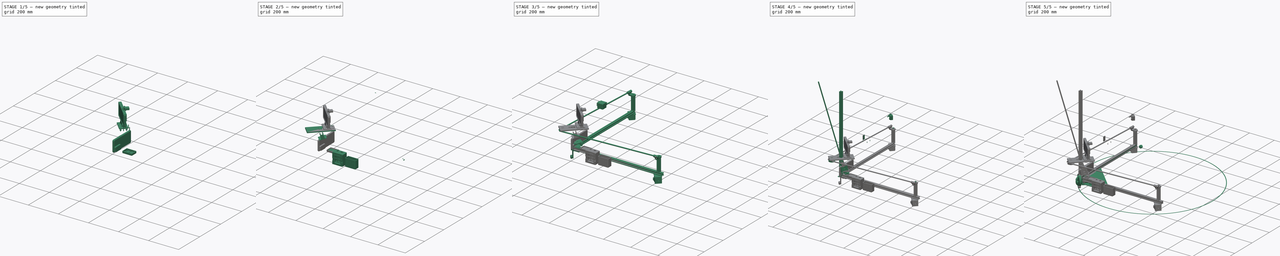
[diagram: build sequence overview — one tinted view per stage of 5, left to right]
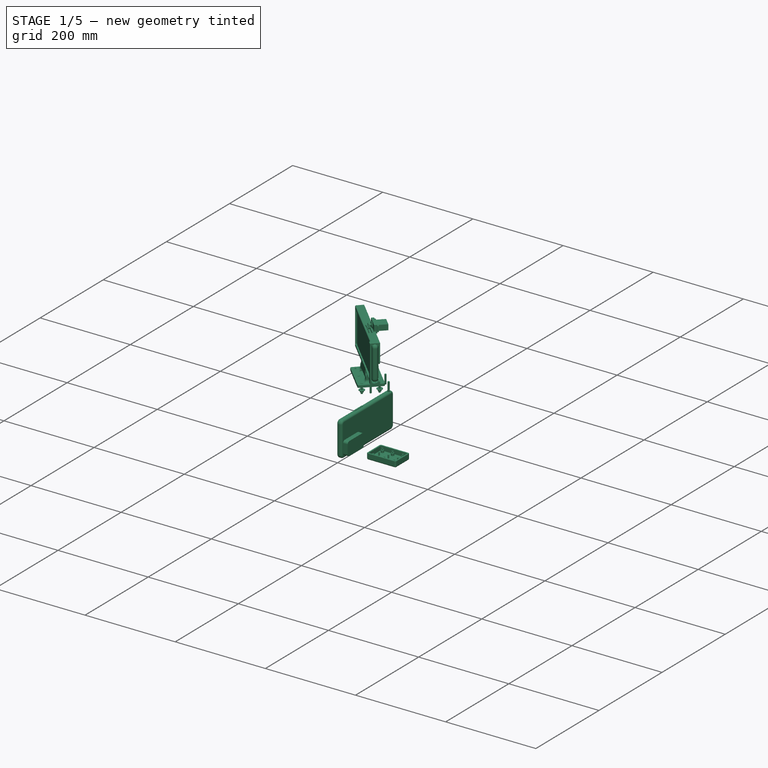
[diagram: stage 1 of 5 — iso view after this stage's code; geometry added in this stage tinted green]
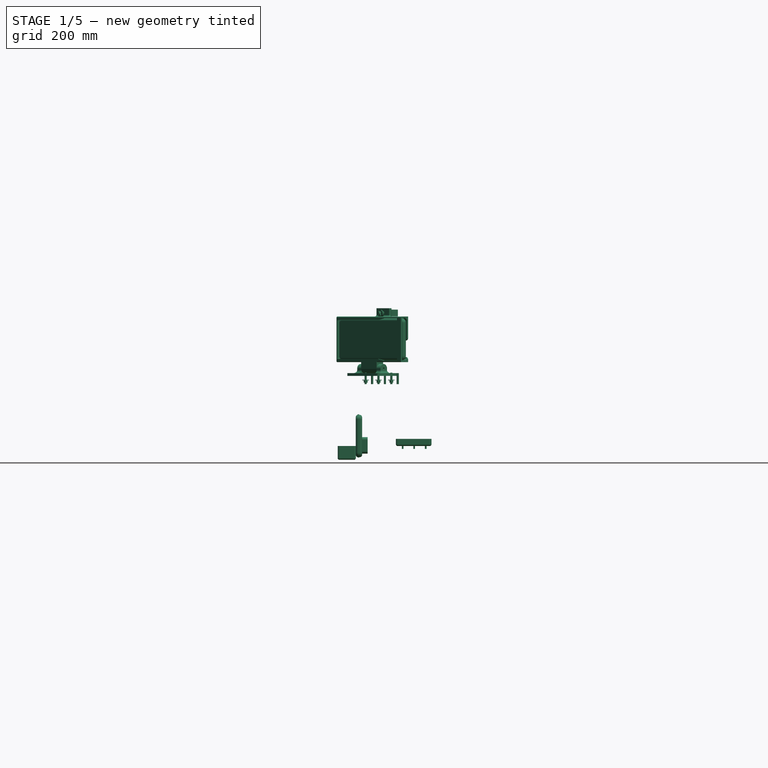
[diagram: stage 1 of 5 — front view after this stage's code; geometry added in this stage tinted green]
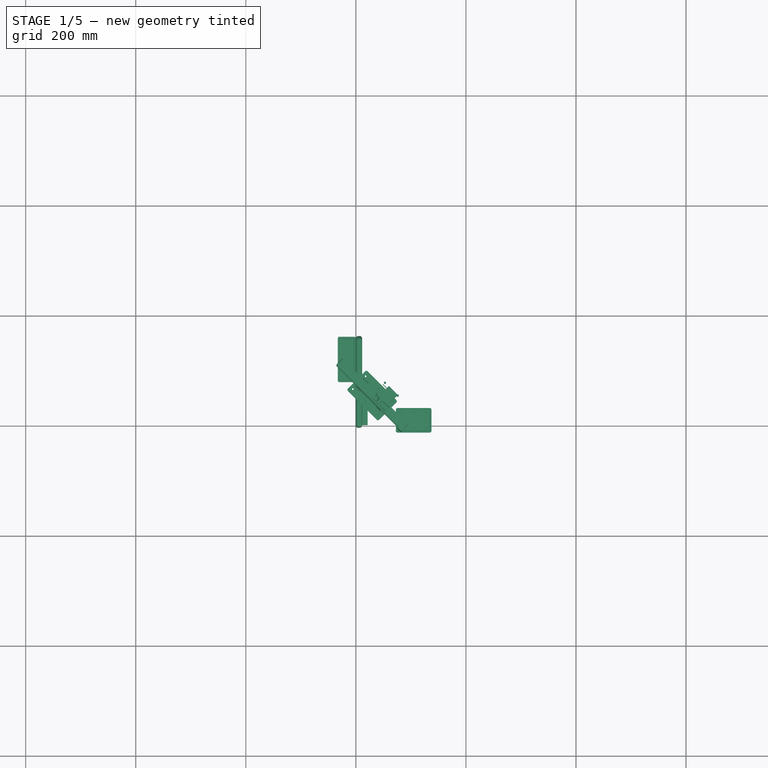
[diagram: stage 1 of 5 — top view after this stage's code; geometry added in this stage tinted green]
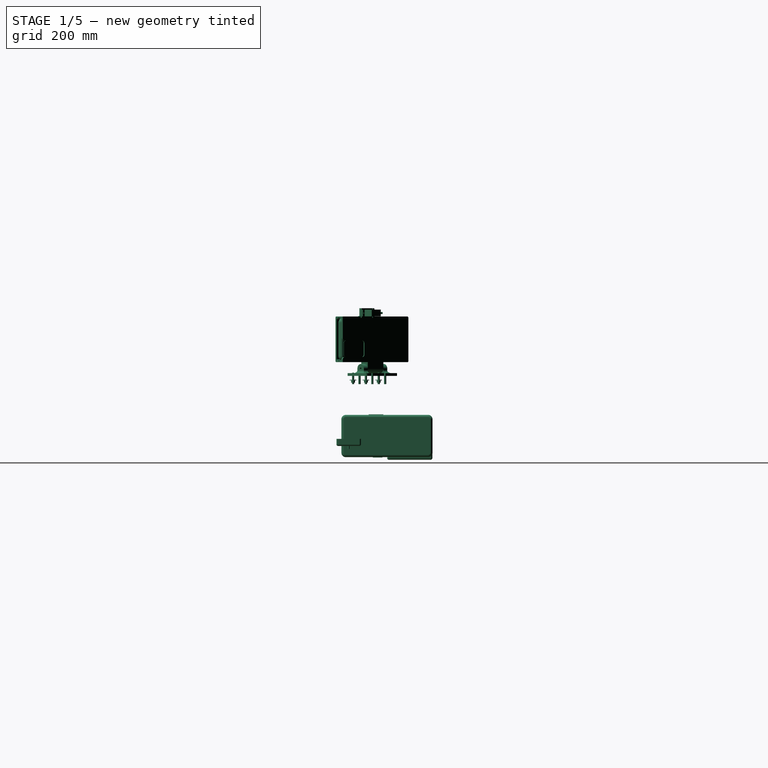
[diagram: stage 1 of 5 — right view after this stage's code; geometry added in this stage tinted green]
FCSTD DOCUMENT  (FreeCAD 0.21R)
Label: scanner-frame
License: All rights reserved
LicenseURL: http://en.wikipedia.org/wiki/All_rights_reserved
objects: Part::Cylinder×316, Part::MultiFuse×120, Part::FeaturePython×120, Part::Box×110, Part::Cut×75, Part::Fillet×70, Part::Feature×54, Part::Chamfer×47, Sketcher::SketchObject×25, Part::Extrusion×25, App::DocumentObjectGroup×17, Part::Thickness×11, Part::Sphere×3, Part::Prism×1, App::TextDocument×1, Part::Cone×1
note: 978 computed .brp shape members not serialized (recipe doc carries the construction recipe); baked Part::Feature solids carry a one-line shape summary decoded from their .brp

FEATURE [Part::Box] Box079  label="Cube079"
  AttacherType = Attacher::AttachEngine3D
  Height = 10
  Length = 58.7
  Placement = pos=(75.7,-9.2,23) rot=(0,0,1;0rad)
  Width = 38.4
FEATURE [Part::Cylinder] Cylinder280
  Angle = 360
  AttacherType = Attacher::AttachEngine3D
  FirstAngle = 0
  Height = 8
  Placement = pos=(105.15,24.2,20) rot=(0,0,1;0rad)
  Radius = 1
  SecondAngle = 0
FEATURE [Part::Cylinder] Cylinder281
  Angle = 360
  AttacherType = Attacher::AttachEngine3D
  FirstAngle = 0
  Height = 8
  Placement = pos=(82.7,24.2,20) rot=(0,0,1;0rad)
  Radius = 1
  SecondAngle = 0
FEATURE [Part::Cylinder] Cylinder282
  Angle = 360
  AttacherType = Attacher::AttachEngine3D
  FirstAngle = 0
  Height = 8
  Placement = pos=(82.7,-4.7,20) rot=(0,0,1;0rad)
  Radius = 1
  SecondAngle = 0
FEATURE [Part::Cylinder] Cylinder283
  Angle = 360
  AttacherType = Attacher::AttachEngine3D
  FirstAngle = 0
  Height = 8
  Placement = pos=(106.4,-4.7,20) rot=(0,0,1;0rad)
  Radius = 1
  SecondAngle = 0
FEATURE [Part::Thickness] Thickness007
  Faces = -> Box079 [Face6]
  Intersection = false
  Join = 0
  Mode = 0
  SelfIntersection = false
  Value = 3
FEATURE [Part::Cylinder] Cylinder284
  Angle = 360
  AttacherType = Attacher::AttachEngine3D
  FirstAngle = 0
  Height = 5
  Placement = pos=(82.7,-4.7,23) rot=(0,0,1;0rad)
  Radius = 3
  SecondAngle = 0
FEATURE [Part::Cylinder] Cylinder285
  Angle = 360
  AttacherType = Attacher::AttachEngine3D
  FirstAngle = 0
  Height = 5
  Placement = pos=(106.4,-4.7,23) rot=(0,0,1;0rad)
  Radius = 3
  SecondAngle = 0
FEATURE [Part::Cylinder] Cylinder286
  Angle = 360
  AttacherType = Attacher::AttachEngine3D
  FirstAngle = 0
  Height = 5
  Placement = pos=(127.9,-4.7,23) rot=(0,0,1;0rad)
  Radius = 3
  SecondAngle = 0
FEATURE [Part::Cylinder] Cylinder287
  Angle = 360
  AttacherType = Attacher::AttachEngine3D
  FirstAngle = 0
  Height = 5
  Placement = pos=(127.9,24.2,23) rot=(0,0,1;0rad)
  Radius = 3
  SecondAngle = 0
FEATURE [Part::Cylinder] Cylinder288
  Angle = 360
  AttacherType = Attacher::AttachEngine3D
  FirstAngle = 0
  Height = 5
  Placement = pos=(105.15,24.2,23) rot=(0,0,1;0rad)
  Radius = 3
  SecondAngle = 0
FEATURE [Part::Cylinder] Cylinder289
  Angle = 360
  AttacherType = Attacher::AttachEngine3D
  FirstAngle = 0
  Height = 5
  Placement = pos=(82.7,24.2,23) rot=(0,0,1;0rad)
  Radius = 3
  SecondAngle = 0
FEATURE [Part::MultiFuse] Fusion016002006011016017003005003003006017003048
  Refine = true
  Shapes = -> [Cylinder284,Cylinder285,Cylinder286,Cylinder287,Cylinder288,Cylinder289]
FEATURE [Part::Fillet] Fillet044
  Base = -> Thickness007
  Edges = 8 edges r=1: [Edge1,Edge3,Edge4,Edge5,Edge7,Edge9,Edge10,Edge11]
FEATURE [Part::MultiFuse] Fusion016002006011016017003005003003006017003050
  Refine = true
  Shapes = -> [Fillet044,Fusion016002006011016017003005003003006017003048]
FEATURE [Part::Cylinder] Cylinder293
  Angle = 360
  AttacherType = Attacher::AttachEngine3D
  FirstAngle = 0
  Height = 10
  Placement = pos=(106,10,20) rot=(0,0,1;0rad)
  Radius = 1.5
  SecondAngle = 0
FEATURE [Part::Cylinder] Cylinder294
  Angle = 360
  AttacherType = Attacher::AttachEngine3D
  FirstAngle = 0
  Height = 10
  Placement = pos=(127,10,20) rot=(0,0,1;0rad)
  Radius = 1.5
  SecondAngle = 0
FEATURE [Part::Cylinder] Cylinder295
  Angle = 360
  AttacherType = Attacher::AttachEngine3D
  FirstAngle = 0
  Height = 10
  Placement = pos=(85,10,20) rot=(0,0,1;0rad)
  Radius = 1.5
  SecondAngle = 0
FEATURE [App::DocumentObjectGroup] Group014  label="microcontroller"
  Group = -> [Fillet045,Cut003009055,Cut003009053]
FEATURE [Part::FeaturePython] Screw030  label="M3x8-Screw034"  # Fasteners workbench fastener (typed FeaturePython)
  Placement = pos=(85,10,22.6328) rot=(0,0,1;0rad)
  diameter = 4
  invert = false
  leftHanded = false
  length = 3
  lengthCustom = 8
  matchOuter = false
  offset = 0
  thread = false
  type = 36
FEATURE [Part::FeaturePython] Screw031  label="M2x5-Screw038"  # Fasteners workbench fastener (typed FeaturePython)
  Placement = pos=(106.4,-4.7,29.65) rot=(0,0,1;0rad)
  diameter = 2
  invert = false
  leftHanded = false
  length = 2
  lengthCustom = 5
  matchOuter = false
  offset = 0
  thread = false
  type = 34
FEATURE [Part::FeaturePython] Screw032  label="M2x5-Screw039"  # Fasteners workbench fastener (typed FeaturePython)
  Placement = pos=(127.9,-4.7,29.65) rot=(0,0,1;0rad)
  diameter = 2
  invert = false
  leftHanded = false
  length = 2
  lengthCustom = 5
  matchOuter = false
  offset = 0
  thread = false
  type = 34
FEATURE [Part::FeaturePython] Screw033  label="M2x5-Screw041"  # Fasteners workbench fastener (typed FeaturePython)
  Placement = pos=(105.15,24.2,29.65) rot=(0,0,1;0rad)
  diameter = 2
  invert = false
  leftHanded = false
  length = 2
  lengthCustom = 5
  matchOuter = false
  offset = 0
  thread = false
  type = 34
FEATURE [Part::FeaturePython] Screw034  label="M2x5-Screw040"  # Fasteners workbench fastener (typed FeaturePython)
  Placement = pos=(127.9,24.2,29.65) rot=(0,0,1;0rad)
  diameter = 2
  invert = false
  leftHanded = false
  length = 2
  lengthCustom = 5
  matchOuter = false
  offset = 0
  thread = false
  type = 34
FEATURE [Part::FeaturePython] Screw035  label="M2x5-Screw042"  # Fasteners workbench fastener (typed FeaturePython)
  Placement = pos=(82.7,24.2,29.65) rot=(0,0,1;0rad)
  diameter = 2
  invert = false
  leftHanded = false
  length = 2
  lengthCustom = 5
  matchOuter = false
  offset = 0
  thread = false
  type = 34
FEATURE [Part::FeaturePython] Screw036  label="M2x5-Screw037"  # Fasteners workbench fastener (typed FeaturePython)
  Placement = pos=(82.7,-4.7,29.65) rot=(0,0,1;0rad)
  diameter = 2
  invert = false
  leftHanded = false
  length = 2
  lengthCustom = 5
  matchOuter = false
  offset = 0
  thread = false
  type = 34
FEATURE [Part::FeaturePython] Screw037  label="M3x8-Screw035"  # Fasteners workbench fastener (typed FeaturePython)
  Placement = pos=(127,10,22.6328) rot=(0,0,1;0rad)
  diameter = 4
  invert = false
  leftHanded = false
  length = 3
  lengthCustom = 8
  matchOuter = false
  offset = 0
  thread = false
  type = 36
FEATURE [Part::FeaturePython] Screw038  label="M3x8-Screw036"  # Fasteners workbench fastener (typed FeaturePython)
  Placement = pos=(106,10,22.6328) rot=(0,0,1;0rad)
  diameter = 4
  invert = false
  leftHanded = false
  length = 3
  lengthCustom = 8
  matchOuter = false
  offset = 0
  thread = false
  type = 36
FEATURE [Part::Cylinder] Cylinder296
  Angle = 360
  AttacherType = Attacher::AttachEngine3D
  FirstAngle = 0
  Height = 15
  Placement = pos=(116,11,10) rot=(0.57735,0.57735,-0.57735;2.0944rad)
  Radius = 1.2
  SecondAngle = 0
FEATURE [Part::Cylinder] Cylinder297
  Angle = 360
  AttacherType = Attacher::AttachEngine3D
  FirstAngle = 0
  Height = 15
  Placement = pos=(94,11,10) rot=(0.57735,0.57735,-0.57735;2.0944rad)
  Radius = 1.2
  SecondAngle = 0
FEATURE [Part::Cylinder] Cylinder298
  Angle = 360
  AttacherType = Attacher::AttachEngine3D
  FirstAngle = 0
  Height = 15
  Placement = pos=(138,11,10) rot=(0.57735,0.57735,-0.57735;2.0944rad)
  Radius = 1.2
  SecondAngle = 0
FEATURE [Part::MultiFuse] Fusion016002006011016017003005003003006017003052
  Refine = true
  Shapes = -> [Cylinder297,Cylinder296,Cylinder298]
FEATURE [Sketcher::SketchObject] Sketch026  label="20x20-inlay004"
  FullyConstrained = true
  sketch-geometry (42):
    g0: LineSegment StartX=0 StartY=0 StartZ=0 EndX=20 EndY=0 EndZ=0
    g1: LineSegment StartX=20 StartY=0 StartZ=0 EndX=20 EndY=20 EndZ=0
    g2: LineSegment StartX=20 StartY=20 StartZ=0 EndX=0 EndY=20 EndZ=0
    g3: LineSegment StartX=0 StartY=20 StartZ=0 EndX=0 EndY=0 EndZ=0
    g4: LineSegment StartX=0 StartY=20 StartZ=0 EndX=20 EndY=0 EndZ=0
    g5: LineSegment StartX=10 StartY=10 StartZ=0 EndX=20 EndY=20 EndZ=0
    g6: LineSegment StartX=0 StartY=0 StartZ=0 EndX=10 EndY=10 EndZ=0
    g7: Circle CenterX=10 CenterY=10 CenterZ=0 NormalX=0 NormalY=0 NormalZ=1 AngleXU=0 Radius=2.5
    g8: LineSegment StartX=1.8 StartY=18.2 StartZ=0 EndX=18.2 EndY=18.2 EndZ=0
    g9: LineSegment StartX=18.2 StartY=18.2 StartZ=0 EndX=18.2 EndY=1.8 EndZ=0
    g10: LineSegment StartX=18.2 StartY=1.8 StartZ=0 EndX=1.8 EndY=1.8 EndZ=0
    g11: LineSegment StartX=1.8 StartY=1.8 StartZ=0 EndX=1.8 EndY=18.2 EndZ=0
    g12: LineSegment StartX=9.46967 StartY=10.5303 StartZ=0 EndX=17.1393 EndY=18.2 EndZ=0
    g13: LineSegment StartX=9.46967 StartY=10.5303 StartZ=0 EndX=1.8 EndY=2.86066 EndZ=0
    g14: LineSegment StartX=10.5303 StartY=9.46967 StartZ=0 EndX=2.86066 EndY=1.8 EndZ=0
    g15: LineSegment StartX=10.5303 StartY=9.46967 StartZ=0 EndX=18.2 EndY=17.1393 EndZ=0
    g16: LineSegment StartX=1.8 StartY=17.1393 StartZ=0 EndX=9.46967 EndY=9.46967 EndZ=0
    g17: LineSegment StartX=9.46967 StartY=9.46967 StartZ=0 EndX=17.1393 EndY=1.8 EndZ=0
    g18: LineSegment StartX=18.2 StartY=2.86066 StartZ=0 EndX=10.5303 EndY=10.5303 EndZ=0
    g19: LineSegment StartX=10.5303 StartY=10.5303 StartZ=0 EndX=2.86066 EndY=18.2 EndZ=0
    g20: LineSegment StartX=7.06066 StartY=14 StartZ=0 EndX=12.9393 EndY=14 EndZ=0
    g21: LineSegment StartX=14 StartY=7.06066 StartZ=0 EndX=14 EndY=12.9393 EndZ=0
    g22: LineSegment StartX=12.9393 StartY=6 StartZ=0 EndX=7.06066 EndY=6 EndZ=0
    g23: LineSegment StartX=6 StartY=7.06066 StartZ=0 EndX=6 EndY=12.9393 EndZ=0
    g24: LineSegment StartX=15.4993 StartY=16.56 StartZ=0 EndX=15.4993 EndY=18.2 EndZ=0
    g25: LineSegment StartX=4.50066 StartY=16.56 StartZ=0 EndX=4.50066 EndY=18.2 EndZ=0
    g26: LineSegment StartX=1.8 StartY=15.4993 StartZ=0 EndX=3.44 EndY=15.4993 EndZ=0
    g27: LineSegment StartX=1.8 StartY=4.50066 StartZ=0 EndX=3.44 EndY=4.50066 EndZ=0
    g28: LineSegment StartX=4.50066 StartY=3.44 StartZ=0 EndX=4.50066 EndY=1.8 EndZ=0
    g29: LineSegment StartX=15.4993 StartY=1.8 StartZ=0 EndX=15.4993 EndY=3.44 EndZ=0
    g30: LineSegment StartX=16.56 StartY=4.50066 StartZ=0 EndX=18.2 EndY=4.50066 EndZ=0
    g31: LineSegment StartX=16.56 StartY=15.4993 StartZ=0 EndX=18.2 EndY=15.4993 EndZ=0
    g32: LineSegment StartX=7 StartY=1.8 StartZ=0 EndX=4.50066 EndY=1.8 EndZ=0
    g33: LineSegment StartX=4.50066 StartY=1.8 StartZ=0 EndX=4.50066 EndY=3.44 EndZ=0
    g34: LineSegment StartX=4.50066 StartY=3.44 StartZ=0 EndX=7.06066 EndY=6 EndZ=0
    g35: LineSegment StartX=7.06066 StartY=6 StartZ=0 EndX=12.9393 EndY=6 EndZ=0
    g36: LineSegment StartX=12.9393 StartY=6 StartZ=0 EndX=15.4993 EndY=3.44 EndZ=0
    g37: LineSegment StartX=15.4993 StartY=3.44 StartZ=0 EndX=15.4993 EndY=1.8 EndZ=0
    g38: LineSegment StartX=15.4993 StartY=1.8 StartZ=0 EndX=13 EndY=1.8 EndZ=0
    g39: LineSegment StartX=7 StartY=1.8 StartZ=0 EndX=7 EndY=0 EndZ=0
    g40: LineSegment StartX=13 StartY=1.8 StartZ=0 EndX=13 EndY=0 EndZ=0
    g41: LineSegment StartX=13 StartY=0 StartZ=0 EndX=7 EndY=0 EndZ=0
  constraints (132):
    c: Coincident(g0,g1)
    c: Coincident(g1,g2)
    c: Coincident(g2,g3)
    c: Coincident(g3,g0)
    c: Horizontal(g0)
    c: Horizontal(g2)
    c: Vertical(g1)
    c: Vertical(g3)
    c: Coincident(g0,g-1)
    c: DistanceY(g1,g1) = 20
    c: DistanceX(g2,g2) = 20
    c: Coincident(g4,g2)
    c: Coincident(g4,g0)
    c: PointOnObject(g5,g4)
    c: Coincident(g5,g1)
    c: Coincident(g6,g0)
    c: Coincident(g6,g5)
    c: Parallel(g6,g5)
    c: Coincident(g7,g5)
    c: Radius(g7) = 2.5
    c: PointOnObject(g8,g4)
    c: PointOnObject(g8,g5)
    c: Horizontal(g8)
    c: Coincident(g9,g8)
    c: PointOnObject(g9,g4)
    c: Vertical(g9)
    c: Coincident(g10,g9)
    c: PointOnObject(g10,g6)
    c: Horizontal(g10)
    c: Coincident(g11,g10)
    c: Coincident(g11,g8)
    c: DistanceY(g0,g9) = 1.8
    c: PointOnObject(g12,g4)
    c: PointOnObject(g12,g8)
    c: Coincident(g13,g12)
    c: PointOnObject(g13,g11)
    c: PointOnObject(g14,g4)
    c: PointOnObject(g14,g10)
    c: Coincident(g15,g14)
    c: PointOnObject(g15,g9)
    c: PointOnObject(g16,g11)
    c: PointOnObject(g16,g6)
    c: Coincident(g17,g16)
    c: PointOnObject(g17,g10)
    c: PointOnObject(g18,g9)
    c: PointOnObject(g18,g5)
    c: Coincident(g19,g18)
    c: PointOnObject(g19,g8)
    c: Parallel(g4,g19)
    c: Parallel(g19,g18)
    c: Parallel(g18,g17)
    c: Parallel(g17,g16)
    c: Parallel(g6,g13)
    c: Parallel(g13,g12)
    c: Parallel(g12,g15)
    c: Parallel(g15,g14)
    c: Distance(g7,g12) = 0.75
    c: Distance(g7,g14) = 0.75
    c: Distance(g7,g16) = 0.75
    c: Distance(g7,g18) = 0.75
    c: PointOnObject(g20,g19)
    c: PointOnObject(g20,g12)
    c: Horizontal(g20)
    c: PointOnObject(g21,g18)
    c: PointOnObject(g21,g15)
    c: Vertical(g21)
    c: PointOnObject(g22,g17)
    c: PointOnObject(g22,g14)
    c: Horizontal(g22)
    c: PointOnObject(g23,g13)
    c: PointOnObject(g23,g16)
    c: Vertical(g23)
    c: DistanceY(g22,g7) = 4
    c: DistanceY(g7,g20) = 4
    c: DistanceX(g23,g7) = 4
    c: DistanceX(g7,g21) = 4
    c: PointOnObject(g24,g12)
    c: PointOnObject(g24,g8)
    c: Vertical(g24)
    c: PointOnObject(g25,g19)
    c: PointOnObject(g25,g8)
    c: Vertical(g25)
    c: PointOnObject(g26,g11)
    c: PointOnObject(g26,g16)
    c: Horizontal(g26)
    c: PointOnObject(g27,g11)
    c: PointOnObject(g27,g13)
    c: Horizontal(g27)
    c: PointOnObject(g28,g14)
    c: PointOnObject(g28,g10)
    c: Vertical(g28)
    c: PointOnObject(g29,g10)
    c: PointOnObject(g29,g17)
    c: Vertical(g29)
    c: PointOnObject(g30,g18)
    c: PointOnObject(g30,g9)
    c: Horizontal(g30)
    c: PointOnObject(g31,g15)
    c: PointOnObject(g31,g9)
    c: Horizontal(g31)
    c: Equal(g24,g25)
    c: Equal(g25,g26)
    c: Equal(g26,g27)
    c: Equal(g27,g28)
    c: Equal(g28,g29)
    c: Equal(g29,g30)
    c: Equal(g30,g31)
    c: DistanceY(g24,g24) = 1.64
    c: PointOnObject(g32,g10)
    c: Coincident(g32,g28)
    c: Coincident(g32,g33)
    c: Coincident(g33,g28)
    c: Coincident(g33,g34)
    c: Coincident(g34,g22)
    c: Coincident(g34,g35)
    c: Coincident(g35,g22)
    c: Coincident(g35,g36)
    c: Coincident(g36,g29)
    c: Coincident(g36,g37)
    c: Coincident(g37,g29)
    c: Coincident(g37,g38)
    c: PointOnObject(g38,g10)
    c: DistanceX(g32,g38) = 6
    c: DistanceX(g32,g7) = 3
    c: Coincident(g39,g32)
    c: PointOnObject(g39,g0)
    c: Vertical(g39)
    c: Coincident(g40,g38)
    c: PointOnObject(g40,g0)
    c: Vertical(g40)
    c: Coincident(g41,g40)
    c: Coincident(g41,g39)
FEATURE [Part::Extrusion] Extrude026  label="20x20-inlay-004"
  Base = -> Sketch026
  Dir = (0,0,1)
  DirMode = 2
  FaceMakerClass = Part::FaceMakerBullseye
  LengthFwd = 60
  LengthRev = 0
  Placement = pos=(86,0,20) rot=(0,1,0;1.5708rad)
  Solid = true
  Symmetric = false
FEATURE [Part::Cut] Cut003009056  label="microcontroller-battery-pocket-inlay-20x20-"
  Base = -> Extrude026
  Placement = pos=(0,240,0) rot=(0,0,-1;1.5708rad)
  Refine = true
  Tool = -> Fusion016002006011016017003005003003006017003052
FEATURE [Part::Box] Box080  label="Cube080"
  AttacherType = Attacher::AttachEngine3D
  Height = 22
  Length = 76
  Placement = pos=(169,-40,-2) rot=(0,0,1;0rad)
  Width = 27
FEATURE [Part::Cylinder] Cylinder299
  Angle = 360
  AttacherType = Attacher::AttachEngine3D
  FirstAngle = 0
  Height = 40
  Placement = pos=(189,0,10) rot=(0.57735,0.57735,-0.57735;2.0944rad)
  Radius = 1.5
  SecondAngle = 0
FEATURE [Part::Cylinder] Cylinder300
  Angle = 360
  AttacherType = Attacher::AttachEngine3D
  FirstAngle = 0
  Height = 40
  Placement = pos=(233,0,10) rot=(0.57735,0.57735,-0.57735;2.0944rad)
  Radius = 1.5
  SecondAngle = 0
FEATURE [Part::Cylinder] Cylinder301
  Angle = 360
  AttacherType = Attacher::AttachEngine3D
  FirstAngle = 0
  Height = 40
  Placement = pos=(211,0,10) rot=(0.57735,0.57735,-0.57735;2.0944rad)
  Radius = 1.5
  SecondAngle = 0
FEATURE [Part::MultiFuse] Fusion016002006011016017003005003003006017003053
  Refine = true
  Shapes = -> [Cylinder299,Cylinder301,Cylinder300]
FEATURE [Part::Thickness] Thickness008
  Faces = -> Box080 [Face6]
  Intersection = false
  Join = 0
  Mode = 0
  Placement = pos=(7,8,0) rot=(0,0,1;0rad)
  SelfIntersection = false
  Value = 3
FEATURE [Part::Cut] Cut003009057
  Base = -> Thickness008
  Refine = true
  Tool = -> Fusion016002006011016017003005003003006017003053
FEATURE [Part::Chamfer] Chamfer043
  Base = -> Cut003009057
  Edges = 3 edges r=1.9: [Edge23,Edge24,Edge25]
FEATURE [Part::Fillet] Fillet046  label="microcontroller-battery-pocket-"
  Base = -> Chamfer043
  Edges = 8 edges r=1: [Edge2,Edge3,Edge5,Edge10,Edge11,Edge12,Edge13,Edge15]
  Placement = pos=(2,335,0) rot=(0,0,-1;1.5708rad)
FEATURE [App::DocumentObjectGroup] Group013  label="power-supply"
  Group = -> [Fillet041,Cut003009051,Fillet046,Cut003009056]
FEATURE [Part::FeaturePython] Screw039  label="M3x8-Screw040"  # Fasteners workbench fastener (typed FeaturePython)
  Placement = pos=(-2.63,124,10) rot=(0.57735,-0.57735,-0.57735;2.0944rad)
  diameter = 4
  invert = false
  leftHanded = false
  length = 3
  lengthCustom = 8
  matchOuter = false
  offset = 0
  thread = false
  type = 36
FEATURE [Part::FeaturePython] Screw040  label="M3x8-Screw041"  # Fasteners workbench fastener (typed FeaturePython)
  Placement = pos=(-2.63284,102,10) rot=(0.57735,-0.57735,-0.57735;2.0944rad)
  diameter = 4
  invert = false
  leftHanded = false
  length = 3
  lengthCustom = 8
  matchOuter = false
  offset = 0
  thread = false
  type = 36
FEATURE [Part::FeaturePython] Screw041  label="M3x8-Screw042"  # Fasteners workbench fastener (typed FeaturePython)
  Placement = pos=(-2.63,146,10) rot=(0.57735,-0.57735,-0.57735;2.0944rad)
  diameter = 4
  invert = false
  leftHanded = false
  length = 3
  lengthCustom = 8
  matchOuter = false
  offset = 0
  thread = false
  type = 36
FEATURE [Part::Box] Box081  label="Cube081"
  AttacherType = Attacher::AttachEngine3D
  Height = 76.45
  Length = 11.1
  Width = 165
FEATURE [Part::Box] Box082  label="Cube082"
  AttacherType = Attacher::AttachEngine3D
  Height = 30
  Length = 1
  Placement = pos=(11.1,4.5,6) rot=(0,0,1;0rad)
  Width = 51
FEATURE [Part::Fillet] Fillet047
  Base = -> Box082
  Edges = 4 edges r=5: [Edge9,Edge10,Edge11,Edge12]
FEATURE [Part::Fillet] Fillet048
  Base = -> Box081
  Edges = 4 edges r=8: [Edge9,Edge10,Edge11,Edge12]
FEATURE [Part::Fillet] Fillet049
  Base = -> Fillet048
  Edges = 16 edges r=4.5: [Edge1,Edge2,Edge3,Edge4,Edge5,Edge6,Edge7,Edge8,Edge9,Edge13,Edge15,Edge16,Edge18,Edge20,Edge22,Edge24]
FEATURE [Part::Box] Box083  label="Cube083"
  AttacherType = Attacher::AttachEngine3D
  Height = 0.5
  Length = 2
  Placement = pos=(3.55,63,76.45) rot=(0,0,1;0rad)
  Width = 9.5
FEATURE [Part::Box] Box084  label="Cube084"
  AttacherType = Attacher::AttachEngine3D
  Height = 0.5
  Length = 2
  Placement = pos=(3.55,59,-0.5) rot=(0,0,1;0rad)
  Width = 13
FEATURE [Part::Box] Box085  label="Cube085"
  AttacherType = Attacher::AttachEngine3D
  Height = 0.5
  Length = 2
  Placement = pos=(3.55,52.5,76.45) rot=(0,0,1;0rad)
  Width = 9.5
FEATURE [Part::Fillet] Fillet050
  Base = -> Box085
  Edges = 4 edges r=0.9: [Edge1,Edge3,Edge5,Edge7]
FEATURE [Part::Fillet] Fillet051
  Base = -> Box083
  Edges = 4 edges r=0.9: [Edge1,Edge3,Edge5,Edge7]
FEATURE [Part::Fillet] Fillet052
  Base = -> Box084
  Edges = 4 edges r=0.9: [Edge1,Edge3,Edge5,Edge7]
FEATURE [Part::MultiFuse] Fusion016002006011016017003005003003006017003054  label="oneplus9pro-inclusive-sleeve"
  Placement = pos=(84.8067,-10.5746,175.65) rot=(0,0,1;0.785398rad)
  Refine = true
  Shapes = -> [Fillet049,Fillet047,Fillet050,Fillet051,Fillet052]
FEATURE [Part::Box] Box035  label="Cube035"
  AttacherType = Attacher::AttachEngine3D
  Height = 5
  Length = 2
  Placement = pos=(20.23,-6.71,71.15) rot=(0,0,1;0rad)
  Width = 8
FEATURE [Part::Box] Box093  label="Cube086"
  AttacherType = Attacher::AttachEngine3D
  Height = 12.1
  Length = 2.5
  Placement = pos=(0,-5.25,0) rot=(0,0,1;0rad)
  Width = 32.5
FEATURE [Part::Box] Box094  label="Cube087"
  AttacherType = Attacher::AttachEngine3D
  Height = 12.1
  Length = 22.6
  Placement = pos=(-1.8,0,0) rot=(0,0,1;0rad)
  Width = 23
FEATURE [Part::Chamfer] Chamfer044
  Base = -> Box035
  Edges = 2 edges: [Edge9 r1=0.5 r2=5,Edge10 r1=0.5 r2=5]
FEATURE [Part::Cylinder] Cylinder302
  Angle = 360
  AttacherType = Attacher::AttachEngine3D
  FirstAngle = 0
  Height = 2
  Placement = pos=(-18.7,-1.55,25.05) rot=(0,-1,0;1.5708rad)
  Radius = 2
  SecondAngle = 0
FEATURE [Part::Cylinder] Cylinder303
  Angle = 360
  AttacherType = Attacher::AttachEngine3D
  FirstAngle = 0
  Height = 10
  Placement = pos=(15.2,0,4.95) rot=(1,0,0;1.5708rad)
  Radius = 0.6
  SecondAngle = 0
FEATURE [Part::Cylinder] Cylinder304
  Angle = 360
  AttacherType = Attacher::AttachEngine3D
  FirstAngle = 0
  Height = 10
  Placement = pos=(15.2,0,6.15) rot=(1,0,0;1.5708rad)
  Radius = 0.6
  SecondAngle = 0
FEATURE [Part::Cylinder] Cylinder305
  Angle = 360
  AttacherType = Attacher::AttachEngine3D
  FirstAngle = 0
  Height = 6
  Placement = pos=(-1.8,6.1,6.05) rot=(0,-1,0;1.5708rad)
  Radius = 6
  SecondAngle = 0
FEATURE [Part::Cylinder] Cylinder306
  Angle = 360
  AttacherType = Attacher::AttachEngine3D
  FirstAngle = 0
  Height = 4
  Placement = pos=(-7.8,6.1,6.05) rot=(0,-1,0;1.5708rad)
  Radius = 2.1
  SecondAngle = 0
FEATURE [Part::Cylinder] Cylinder307
  Angle = 360
  AttacherType = Attacher::AttachEngine3D
  FirstAngle = 0
  Height = 10
  Placement = pos=(5,-3,6.05) rot=(0,-1,0;1.5708rad)
  Radius = 1
  SecondAngle = 0
FEATURE [Part::Cylinder] Cylinder308
  Angle = 360
  AttacherType = Attacher::AttachEngine3D
  FirstAngle = 0
  Height = 10
  Placement = pos=(5,25,6.05) rot=(0,-1,0;1.5708rad)
  Radius = 1
  SecondAngle = 0
FEATURE [Part::Cylinder] Cylinder309
  Angle = 360
  AttacherType = Attacher::AttachEngine3D
  FirstAngle = 0
  Height = 10
  Placement = pos=(15.2,0,7.35) rot=(1,0,0;1.5708rad)
  Radius = 0.6
  SecondAngle = 0
FEATURE [Part::Fillet] Fillet004003009
  Base = -> Chamfer044
  Edges = 2 edges r=2: [Edge8,Edge9]
  Placement = pos=(-40.9286,-2.84349,-48.5957) rot=(0,0,1;0rad)
FEATURE [Part::MultiFuse] Fusion005013017020003004003023043008
  Refine = true
  Shapes = -> [Cylinder307,Cylinder308]
FEATURE [Part::Cut] Cut042
  Base = -> Box093
  Placement = pos=(0,0.5,0) rot=(0,0,1;0rad)
  Refine = true
  Tool = -> Fusion005013017020003004003023043008
FEATURE [Part::MultiFuse] Fusion005013017020003004003023043009
  Placement = pos=(0,0,-0.1) rot=(0,0,1;0rad)
  Shapes = -> [Cylinder309,Cylinder304,Cylinder303]
FEATURE [Part::MultiFuse] Fusion005013017020003004003023043007  label="servo004"
  Placement = pos=(45.2936,53.5459,267.71) rot=(0.92388,0.382683,0;3.14159rad)
  Shapes = -> [Box094,Cut042,Cylinder305,Cylinder306,Fusion005013017020003004003023043009]
FEATURE [Part::FeaturePython] Tube020007004050  # WARN: FeaturePython — macro-defined, semantics opaque (R4)
  AttacherType = Attacher::AttachEngine3D
  Height = 5
  InnerRadius = 2
  OuterRadius = 3.25
  Placement = pos=(-15.7,-1.55,25.05) rot=(0,-1,0;1.5708rad)
FEATURE [Part::MultiFuse] Fusion005009  label="servo-lever"
  Placement = pos=(41.186,67.4116,245.043) rot=(0.678598,0.281085,0.678598;1.09606rad)
  Refine = true
  Shapes = -> [Tube020007004050,Cylinder302,Fillet004003009]
FEATURE [Part::Box] Box158  label="Cube091"
  AttacherType = Attacher::AttachEngine3D
  Height = 76.95
  Length = 11.6
  Placement = pos=(-0.25,-0.25,-0.35) rot=(0,0,1;0rad)
  Width = 165.5
FEATURE [Part::Box] Box159  label="Cube092"
  AttacherType = Attacher::AttachEngine3D
  Height = 30
  Length = 10
  Placement = pos=(11.35,4.5,6) rot=(0,0,1;0rad)
  Width = 51
FEATURE [Part::Box] Box160  label="Cube093"
  AttacherType = Attacher::AttachEngine3D
  Height = 1.5
  Length = 3
  Placement = pos=(3.05,49.25,75.95) rot=(0,0,1;0rad)
  Width = 26.5
FEATURE [Part::Box] Box161  label="Cube094"
  AttacherType = Attacher::AttachEngine3D
  Height = 1.5
  Length = 3
  Placement = pos=(3.05,57,-1) rot=(0,0,1;0rad)
  Width = 17
FEATURE [Part::Fillet] Fillet004003010
  Base = -> Box159
  Edges = 4 edges r=5: [Edge9,Edge10,Edge11,Edge12]
FEATURE [Part::Fillet] Fillet004003011
  Base = -> Box158
  Edges = 4 edges r=8: [Edge9,Edge10,Edge11,Edge12]
FEATURE [Part::Fillet] Fillet004003012
  Base = -> Fillet004003011
  Edges = 16 edges r=4.5: [Edge1,Edge2,Edge3,Edge4,Edge5,Edge6,Edge7,Edge8,Edge9,Edge13,Edge15,Edge16,Edge18,Edge20,Edge22,Edge24]
FEATURE [Part::Fillet] Fillet004003014
  Base = -> Box160
  Edges = 4 edges r=0.9: [Edge1,Edge3,Edge5,Edge7]
FEATURE [Part::Fillet] Fillet004003015
  Base = -> Box161
  Edges = 4 edges r=0.9: [Edge1,Edge3,Edge5,Edge7]
FEATURE [Part::MultiFuse] Fusion016002006011016017003005003003006017003055  label="oneous9pro-inclusive-sleeve-cutout"
  Placement = pos=(0,-3,0) rot=(0,0,1;0rad)
  Refine = true
  Shapes = -> [Fillet004003012,Fillet004003010,Fillet004003014,Fillet004003015]
FEATURE [App::DocumentObjectGroup] Group  label="prototypes"
  Group = -> [Fusion001,Cut003,Fusion006,Cut005,Fusion016002,Fusion016002006,Fusion016002006011,Fusion016002006011014,Cut003009,Tube020,Fusion016002006011016017,Fusion016002006011016017003,Tube020007,Fusion016002006011016017003005,Fusion016002006011016017003005003,Fusion016002006011016017003005003003,Fusion016002006011016017003005003003006,Tube020007004,Cut003009008,Fusion016002006011016017003005003003006017,+4 more]
FEATURE [Part::Box] Box162  label="Cube095"
  AttacherType = Attacher::AttachEngine3D
  Height = 82.95
  Length = 16.6
  Placement = pos=(-2.25,-3.25,-3.35) rot=(0,0,1;0rad)
  Width = 168.5
FEATURE [Part::Thickness] Thickness010
  Faces = -> Box162 [Face1,Face3]
  Intersection = false
  Join = 0
  Mode = 0
  SelfIntersection = false
  Value = -3
FEATURE [Part::Box] Box164  label="Cube097"
  AttacherType = Attacher::AttachEngine3D
  Height = 1
  Length = 4
  Placement = pos=(2.55,-33,-1) rot=(0,0,1;0rad)
  Width = 112
FEATURE [Part::Fillet] Fillet004003016
  Base = -> Box164
  Edges = 4 edges r=0.9: [Edge1,Edge3,Edge5,Edge7]
FEATURE [Part::Box] Box165  label="Cube098"
  AttacherType = Attacher::AttachEngine3D
  Height = 1
  Length = 4
  Placement = pos=(2.55,-24.5,76.45) rot=(0,0,1;0rad)
  Width = 114.5
FEATURE [Part::Fillet] Fillet004003017
  Base = -> Box165
  Edges = 4 edges r=0.9: [Edge1,Edge3,Edge5,Edge7]
FEATURE [Part::Box] Box166  label="Cube099"
  AttacherType = Attacher::AttachEngine3D
  Height = 30
  Length = 10
  Placement = pos=(11.35,-14.5,6) rot=(0,0,1;0rad)
  Width = 67
FEATURE [Part::Fillet] Fillet004003018
  Base = -> Box166
  Edges = 4 edges r=5: [Edge9,Edge10,Edge11,Edge12]
FEATURE [Part::Box] Box167  label="Cube100"
  AttacherType = Attacher::AttachEngine3D
  Height = 82.95
  Length = 6.25
  Placement = pos=(-4.25,-3.25,-3.35) rot=(0,0,1;0rad)
  Width = 10
FEATURE [Part::Thickness] Thickness012
  Faces = -> Box167 [Face2,Face3,Face4]
  Intersection = false
  Join = 0
  Mode = 0
  SelfIntersection = false
  Value = -3
FEATURE [Part::Box] Box168  label="Cube101"
  AttacherType = Attacher::AttachEngine3D
  Height = 10
  Length = 4
  Placement = pos=(2.55,59,72) rot=(0,0,1;0rad)
  Width = 1
FEATURE [Part::Box] Box169  label="Cube102"
  AttacherType = Attacher::AttachEngine3D
  Height = 10
  Length = 1.5
  Placement = pos=(1.05,41.5,72) rot=(0,0,1;0rad)
  Width = 36
FEATURE [Part::Box] Box170  label="Cube103"
  AttacherType = Attacher::AttachEngine3D
  Height = 10
  Length = 1.5
  Placement = pos=(6.55,41.5,72) rot=(0,0,1;0rad)
  Width = 36
FEATURE [Part::MultiFuse] Fusion016002006011016017003005003003006017003058
  Refine = true
  Shapes = -> [Box170,Box169,Box168]
FEATURE [Part::Box] Box171  label="Cube104"
  AttacherType = Attacher::AttachEngine3D
  Height = 6
  Length = 3
  Placement = pos=(-2.25,43.25,73.65) rot=(0,0,1;0rad)
  Width = 122
FEATURE [Part::Box] Box172  label="Cube105"
  AttacherType = Attacher::AttachEngine3D
  Height = 6
  Length = 3
  Placement = pos=(-2.25,43.25,-3.35) rot=(0,0,1;0rad)
  Width = 122
FEATURE [Part::Chamfer] Chamfer045
  Base = -> Box171
  Edges = 1 edges: [Edge9 r1=3 r2=15]
  Placement = pos=(0,0,-0.05) rot=(0,0,1;0rad)
FEATURE [Part::Chamfer] Chamfer046
  Base = -> Box172
  Edges = 1 edges: [Edge10 r1=3 r2=15]
FEATURE [Part::Fillet] Fillet004003019
  Base = -> Thickness010
  Edges = 5 edges r=5: [Edge20,Edge21,Edge22,Edge23,Edge24]
FEATURE [Part::Fillet] Fillet004003022
  Base = -> Fusion016002006011016017003005003003006017003058
  Edges = 8 edges r=1.4: [Edge2,Edge4,Edge7,Edge15,Edge17,Edge22,Edge25,Edge33]
FEATURE [Part::MultiFuse] Fusion016002006011016017003005003003006017003056
  Refine = true
  Shapes = -> [Fillet004003017,Fillet004003016,Fillet004003018,Fillet004003022]
FEATURE [Part::Box] Box173  label="Cube106"
  AttacherType = Attacher::AttachEngine3D
  Height = 1
  Length = 6
  Placement = pos=(8.35,70.53,78.6) rot=(0,0,1;0rad)
  Width = 4.5
FEATURE [Part::Cylinder] Cylinder316
  Angle = 360
  AttacherType = Attacher::AttachEngine3D
  FirstAngle = 0
  Height = 10
  Placement = pos=(19.55,58.18,86.01) rot=(0,-1,0;1.5708rad)
  Radius = 3.25
  SecondAngle = 0
FEATURE [Part::Cylinder] Cylinder317
  Angle = 360
  AttacherType = Attacher::AttachEngine3D
  FirstAngle = 0
  Height = 10
  Placement = pos=(19.55,64.18,86.01) rot=(0,-1,0;1.5708rad)
  Radius = 6.25
  SecondAngle = 0
FEATURE [Part::Cylinder] Cylinder318
  Angle = 360
  AttacherType = Attacher::AttachEngine3D
  FirstAngle = 0
  Height = 10
  Placement = pos=(19.85,72.78,86.01) rot=(0,-1,0;1.5708rad)
  Radius = 0.5
  SecondAngle = 0
FEATURE [Part::Cylinder] Cylinder319
  Angle = 360
  AttacherType = Attacher::AttachEngine3D
  FirstAngle = 0
  Height = 10
  Placement = pos=(19.85,44.78,86.01) rot=(0,-1,0;1.5708rad)
  Radius = 0.5
  SecondAngle = 0
FEATURE [Part::MultiFuse] Fusion016002006011016017003005003003006017003059
  Refine = true
  Shapes = -> [Cylinder318,Cylinder317,Cylinder316,Cylinder319]
FEATURE [Part::Box] Box174  label="Cube107"
  AttacherType = Attacher::AttachEngine3D
  Height = 15
  Length = 3
  Placement = pos=(11.35,42.53,79.6) rot=(0,0,1;0rad)
  Width = 32.5
FEATURE [Part::Box] Box175  label="Cube108"
  AttacherType = Attacher::AttachEngine3D
  Height = 5
  Length = 3
  Placement = pos=(11.35,42.53,79.6) rot=(0,0,1;0rad)
  Width = 13.5
FEATURE [Part::Box] Box176  label="Cube109"
  AttacherType = Attacher::AttachEngine3D
  Height = 1
  Length = 6
  Placement = pos=(8.35,42.53,78.6) rot=(0,0,1;0rad)
  Width = 13.5
FEATURE [Part::Box] Box177  label="Cube110"
  AttacherType = Attacher::AttachEngine3D
  Height = 5
  Length = 3
  Placement = pos=(11.35,70.53,79.6) rot=(0,0,1;0rad)
  Width = 4.5
FEATURE [Part::MultiFuse] Fusion016002006011016017003005003003006017003060
  Refine = true
  Shapes = -> [Box177,Box173]
FEATURE [Part::MultiFuse] Fusion016002006011016017003005003003006017003061
  Refine = true
  Shapes = -> [Box176,Box175]
FEATURE [Part::Fillet] Fillet004003024
  Base = -> Fusion016002006011016017003005003003006017003061
  Edges = 1 edges r=2.9: [Edge6]
FEATURE [Part::Fillet] Fillet004003025
  Base = -> Fusion016002006011016017003005003003006017003060
  Edges = 1 edges r=2.9: [Edge4]
FEATURE [Part::MultiFuse] Fusion016002006011016017003005003003006017003062
  Refine = true
  Shapes = -> [Box174,Fillet004003024,Fillet004003025]
FEATURE [Part::Cut] Cut043002011
  Base = -> Fusion016002006011016017003005003003006017003062
  Refine = true
  Tool = -> Fusion016002006011016017003005003003006017003059
FEATURE [Part::Box] Box178  label="Cube111"
  AttacherType = Attacher::AttachEngine3D
  Height = 20
  Length = 16.6
  Placement = pos=(-2.25,61,-23.35) rot=(0,0,1;0rad)
  Width = 40
FEATURE [Part::Fillet] Fillet004003026
  Base = -> Box178
  Edges = 2 edges r=8.2: [Edge4,Edge8]
FEATURE [Part::Cylinder] Cylinder320
  Angle = 360
  AttacherType = Attacher::AttachEngine3D
  FirstAngle = 0
  Height = 60
  Placement = pos=(6.05,51,-14.95) rot=(-1,0,0;1.5708rad)
  Radius = 2
  SecondAngle = 0
FEATURE [Part::Cut] Cut043002012
  Base = -> Fillet004003026
  Refine = true
  Tool = -> Cylinder320
FEATURE [Part::MultiFuse] Fusion016002006011016017003005003003006017003057
  Refine = true
  Shapes = -> [Thickness012,Chamfer045,Chamfer046,Fillet004003019,Cut043002012]
FEATURE [Part::Fillet] Fillet004003020
  Base = -> Fusion016002006011016017003005003003006017003057
  Edges = 4 edges r=2.9: [Edge13,Edge14,Edge27,Edge44]
FEATURE [Part::Fillet] Fillet004003021
  Base = -> Fillet004003020
  Edges = 8 edges r=1.9: [Edge34,Edge42,Edge43,Edge44,Edge51,Edge52,Edge55,Edge90]
FEATURE [Part::Cut] Cut043002010
  Base = -> Fillet004003021
  Refine = true
  Tool = -> Fusion016002006011016017003005003003006017003056
FEATURE [Part::Fillet] Fillet004003027
  Base = -> Cut043002010
  Edges = 2 edges r=5: [Edge147,Edge158]
FEATURE [Part::MultiFuse] Fusion016002006011016017003005003003006017003063
  Refine = true
  Shapes = -> [Fillet004003027,Cut043002011]
FEATURE [Part::Fillet] Fillet004003028  label="camrea-bracket"
  Base = -> Fusion016002006011016017003005003003006017003063
  Edges = 4 edges: [Edge288 r=2.9,Edge292 r=1,Edge295 r=1,Edge304 r=2.9]
  Placement = pos=(82.5086,-8.63003,175.65) rot=(0,0,1;0.785398rad)
FEATURE [Part::Box] Box179  label="Cube112"
  AttacherType = Attacher::AttachEngine3D
  Height = 16.6
  Length = 16.6
  Placement = pos=(-2.25,51,-23.35) rot=(0,0,1;0rad)
  Width = 10
FEATURE [Part::Cylinder] Cylinder321
  Angle = 360
  AttacherType = Attacher::AttachEngine3D
  FirstAngle = 0
  Height = 60
  Placement = pos=(6.05,17,-14.95) rot=(-1,0,0;1.5708rad)
  Radius = 2
  SecondAngle = 0
FEATURE [Part::Fillet] Fillet004003029
  Base = -> Box179
  Edges = 2 edges r=8.2: [Edge2,Edge6]
FEATURE [Part::Box] Box180  label="Cube113"
  AttacherType = Attacher::AttachEngine3D
  Height = 5
  Length = 50.6
  Placement = pos=(-19.25,41,-28.35) rot=(0,0,1;0rad)
  Width = 80
FEATURE [Part::Box] Box181  label="Cube114"
  AttacherType = Attacher::AttachEngine3D
  Height = 16.6
  Length = 16.6
  Placement = pos=(-2.25,101,-23.35) rot=(0,0,1;0rad)
  Width = 10
FEATURE [Part::Fillet] Fillet004003030
  Base = -> Box181
  Edges = 2 edges r=8.2: [Edge2,Edge6]
FEATURE [Part::Cylinder] Cylinder322
  Angle = 360
  AttacherType = Attacher::AttachEngine3D
  FirstAngle = 0
  Height = 60
  Placement = pos=(6.05,78,-14.95) rot=(-1,0,0;1.5708rad)
  Radius = 2
  SecondAngle = 0
FEATURE [Part::Cut] Cut043002013
  Base = -> Fillet004003029
  Refine = true
  Tool = -> Cylinder321
FEATURE [Part::Cut] Cut043002014
  Base = -> Fillet004003030
  Refine = true
  Tool = -> Cylinder322
FEATURE [Part::Cylinder] Cylinder323
  Angle = 360
  AttacherType = Attacher::AttachEngine3D
  FirstAngle = 0
  Height = 10
  Placement = pos=(-10.45,81,-33.35) rot=(0,0,1;0rad)
  Radius = 1.6
  SecondAngle = 0
FEATURE [Part::Cylinder] Cylinder324
  Angle = 360
  AttacherType = Attacher::AttachEngine3D
  FirstAngle = 0
  Height = 10
  Placement = pos=(22.55,48,-33.35) rot=(0,0,1;0rad)
  Radius = 1.6
  SecondAngle = 0
FEATURE [Part::Cylinder] Cylinder325
  Angle = 360
  AttacherType = Attacher::AttachEngine3D
  FirstAngle = 0
  Height = 10
  Placement = pos=(-10.45,114,-33.35) rot=(0,0,1;0rad)
  Radius = 1.6
  SecondAngle = 0
FEATURE [Part::Cylinder] Cylinder326
  Angle = 360
  AttacherType = Attacher::AttachEngine3D
  FirstAngle = 0
  Height = 10
  Placement = pos=(-10.45,48,-33.35) rot=(0,0,1;0rad)
  Radius = 1.6
  SecondAngle = 0
FEATURE [Part::Cylinder] Cylinder327
  Angle = 360
  AttacherType = Attacher::AttachEngine3D
  FirstAngle = 0
  Height = 10
  Placement = pos=(22.55,114,-33.35) rot=(0,0,1;0rad)
  Radius = 1.6
  SecondAngle = 0
FEATURE [Part::Cylinder] Cylinder328
  Angle = 360
  AttacherType = Attacher::AttachEngine3D
  FirstAngle = 0
  Height = 10
  Placement = pos=(22.55,81,-33.35) rot=(0,0,1;0rad)
  Radius = 1.6
  SecondAngle = 0
FEATURE [Part::Fillet] Fillet004003031
  Base = -> Box180
  Edges = 4 edges r=3: [Edge1,Edge3,Edge5,Edge7]
FEATURE [Part::MultiFuse] Fusion016002006011016017003005003003006017003064
  Refine = true
  Shapes = -> [Cylinder323,Cylinder324,Cylinder325,Cylinder326,Cylinder327,Cylinder328]
FEATURE [Part::Cut] Cut043002015
  Base = -> Fillet004003031
  Refine = true
  Tool = -> Fusion016002006011016017003005003003006017003064
FEATURE [Part::MultiFuse] Fusion016002006011016017003005003003006017003065
  Refine = true
  Shapes = -> [Cut043002015,Cut043002014,Cut043002013]
FEATURE [Part::Fillet] Fillet004003032  label="camera-hinge"
  Base = -> Fusion016002006011016017003005003003006017003065
  Edges = 6 edges r=5.5: [Edge13,Edge14,Edge15,Edge21,Edge23,Edge24]
  Placement = pos=(82.5086,-8.63003,175.65) rot=(0,0,1;0.785398rad)
FEATURE [Part::Box] Box183  label="Cube116"
  AttacherType = Attacher::AttachEngine3D
  Height = 17.2
  Length = 1.5
  Placement = pos=(11.35,42.53,77.4) rot=(0,0,1;0rad)
  Width = 32.5
FEATURE [Part::Cylinder] Cylinder329
  Angle = 360
  AttacherType = Attacher::AttachEngine3D
  FirstAngle = 0
  Height = 10
  Placement = pos=(19.55,58.18,86.01) rot=(0,-1,0;1.5708rad)
  Radius = 3.25
  SecondAngle = 0
FEATURE [Part::Cylinder] Cylinder330
  Angle = 360
  AttacherType = Attacher::AttachEngine3D
  FirstAngle = 0
  Height = 10
  Placement = pos=(19.55,64.18,86.01) rot=(0,-1,0;1.5708rad)
  Radius = 6.25
  SecondAngle = 0
FEATURE [Part::Cylinder] Cylinder331
  Angle = 360
  AttacherType = Attacher::AttachEngine3D
  FirstAngle = 0
  Height = 10
  Placement = pos=(19.85,72.78,86.01) rot=(0,-1,0;1.5708rad)
  Radius = 0.5
  SecondAngle = 0
FEATURE [Part::Cylinder] Cylinder332
  Angle = 360
  AttacherType = Attacher::AttachEngine3D
  FirstAngle = 0
  Height = 10
  Placement = pos=(19.85,44.78,86.01) rot=(0,-1,0;1.5708rad)
  Radius = 0.5
  SecondAngle = 0
FEATURE [Part::MultiFuse] Fusion016002006011016017003005003003006017003066
  Refine = true
  Shapes = -> [Cylinder331,Cylinder330,Cylinder329,Cylinder332]
FEATURE [Part::Box] Box184  label="Cube117"
  AttacherType = Attacher::AttachEngine3D
  Height = 17.2
  Length = 1.5
  Placement = pos=(12.85,42.53,77.4) rot=(0,0,1;0rad)
  Width = 4
FEATURE [Part::Box] Box185  label="Cube118"
  AttacherType = Attacher::AttachEngine3D
  Height = 17.2
  Length = 1.5
  Placement = pos=(12.85,71.03,77.4) rot=(0,0,1;0rad)
  Width = 4
FEATURE [Part::MultiFuse] Fusion016002006011016017003005003003006017003067
  Refine = true
  Shapes = -> [Box183,Box184,Box185]
FEATURE [Part::Cut] Cut043002016  label="servo-spacer"
  Base = -> Fusion016002006011016017003005003003006017003067
  Placement = pos=(84.6299,-6.50871,175.65) rot=(0,0,1;0.785398rad)
  Refine = true
  Tool = -> Fusion016002006011016017003005003003006017003066
FEATURE [App::DocumentObjectGroup] Group017  label="servo"
  Group = -> [Fusion005009,Fusion005013017020003004003023043007,Cut043002016]
FEATURE [Part::Cylinder] Cylinder333
  Angle = 360
  AttacherType = Attacher::AttachEngine3D
  FirstAngle = 0
  Height = 20
  Placement = pos=(17.8437,41.2563,132.3) rot=(0,0,1;0rad)
  Radius = 2
  SecondAngle = 0
FEATURE [Part::Cylinder] Cylinder334
  Angle = 360
  AttacherType = Attacher::AttachEngine3D
  FirstAngle = 0
  Height = 20
  Placement = pos=(41.1782,17.9218,132.3) rot=(0,0,1;0rad)
  Radius = 2
  SecondAngle = 0
FEATURE [Part::Cylinder] Cylinder335
  Angle = 360
  AttacherType = Attacher::AttachEngine3D
  FirstAngle = 0
  Height = 20
  Placement = pos=(64.5128,41.2563,132.3) rot=(0,0,1;0rad)
  Radius = 2
  SecondAngle = 0
FEATURE [Part::Cylinder] Cylinder336
  Angle = 360
  AttacherType = Attacher::AttachEngine3D
  FirstAngle = 0
  Height = 20
  Placement = pos=(41.1782,64.5909,132.3) rot=(0,0,1;0rad)
  Radius = 2
  SecondAngle = 0
FEATURE [Part::Cylinder] Cylinder337
  Angle = 360
  AttacherType = Attacher::AttachEngine3D
  FirstAngle = 0
  Height = 20
  Placement = pos=(52.8455,76.2581,132.3) rot=(0,0,1;0rad)
  Radius = 2
  SecondAngle = 0
FEATURE [Part::Cylinder] Cylinder338
  Angle = 360
  AttacherType = Attacher::AttachEngine3D
  FirstAngle = 0
  Height = 20
  Placement = pos=(76.18,52.9236,132.3) rot=(0,0,1;0rad)
  Radius = 2
  SecondAngle = 0
FEATURE [Part::Cylinder] Cylinder339
  Angle = 360
  AttacherType = Attacher::AttachEngine3D
  FirstAngle = 0
  Height = 20
  Placement = pos=(52.8455,29.5891,132.3) rot=(0,0,1;0rad)
  Radius = 2
  SecondAngle = 0
FEATURE [Part::Cylinder] Cylinder340
  Angle = 360
  AttacherType = Attacher::AttachEngine3D
  FirstAngle = 0
  Height = 20
  Placement = pos=(29.511,52.9236,132.3) rot=(0,0,1;0rad)
  Radius = 2
  SecondAngle = 0
FEATURE [App::DocumentObjectGroup] Group005  label="base"
  Group = -> [Cut003009032,Cut003009031,Tube020007004038,Tube020007004039,Cut003009040,Cut003009041,Screw008,Screw009,Cut003009043,Cut003009042]
FEATURE [App::DocumentObjectGroup] Group018  label="camera"
  Group = -> [Fusion016002006011016017003005003003006017003054,Fillet004003028,Fillet004003032]
FEATURE [App::DocumentObjectGroup] Group004  label="thing"
  Group = -> [Cut003009006,ThreadedRod,Group005,Group006,Group008,Group009,Group010,Group011,Group012,Group013,Group014,Group017,Group018]
FEATURE [Part::FeaturePython] Screw042  label="M4x14-Screw"  # Fasteners workbench fastener (typed FeaturePython)
  Placement = pos=(17.8437,41.2563,139.2) rot=(1,0,0;3.14159rad)
  diameter = 5
  invert = false
  leftHanded = false
  length = 4
  lengthCustom = 14
  matchOuter = false
  offset = 0
  thread = false
  type = 34
FEATURE [Part::FeaturePython] Washer  label="M4-Washer"  # Fasteners workbench fastener (typed FeaturePython)
  Placement = pos=(41.1782,64.5909,139.2) rot=(0,0,1;0rad)
  diameter = 3
  invert = false
  leftHanded = false
  matchOuter = false
  offset = 0
  type = 6
FEATURE [Part::FeaturePython] Washer009  label="M4-Washer007"  # Fasteners workbench fastener (typed FeaturePython)
  Placement = pos=(17.8437,41.2563,139.2) rot=(0,0,1;0rad)
  diameter = 3
  invert = false
  leftHanded = false
  matchOuter = false
  offset = 0
  type = 6
FEATURE [Part::FeaturePython] Washer010  label="M4-Washer008"  # Fasteners workbench fastener (typed FeaturePython)
  Placement = pos=(64.5128,41.2563,139.2) rot=(0,0,1;0rad)
  diameter = 3
  invert = false
  leftHanded = false
  matchOuter = false
  offset = 0
  type = 6
FEATURE [Part::FeaturePython] Washer011  label="M4-Washer006"  # Fasteners workbench fastener (typed FeaturePython)
  Placement = pos=(41.1782,17.9218,139.2) rot=(0,0,1;0rad)
  diameter = 3
  invert = false
  leftHanded = false
  matchOuter = false
  offset = 0
  type = 6
FEATURE [Part::FeaturePython] Screw043  label="M4x14-Screw006"  # Fasteners workbench fastener (typed FeaturePython)
  Placement = pos=(64.5128,41.2563,139.2) rot=(1,0,0;3.14159rad)
  diameter = 5
  invert = false
  leftHanded = false
  length = 4
  lengthCustom = 14
  matchOuter = false
  offset = 0
  thread = false
  type = 34
FEATURE [Part::FeaturePython] Screw044  label="M4x14-Screw005"  # Fasteners workbench fastener (typed FeaturePython)
  Placement = pos=(41.1782,64.5909,139.2) rot=(1,0,0;3.14159rad)
  diameter = 5
  invert = false
  leftHanded = false
  length = 4
  lengthCustom = 14
  matchOuter = false
  offset = 0
  thread = false
  type = 34
FEATURE [Part::FeaturePython] Screw045  label="M4x14-Screw003"  # Fasteners workbench fastener (typed FeaturePython)
  Placement = pos=(41.1782,17.9218,139.2) rot=(1,0,0;3.14159rad)
  diameter = 5
  invert = false
  leftHanded = false
  length = 4
  lengthCustom = 14
  matchOuter = false
  offset = 0
  thread = false
  type = 34
FEATURE [App::DocumentObjectGroup] Group003  label="screws"
  Group = -> [Fusion016002006011008,Fusion016002006011010,Fusion016002006011011,Fusion016002005,Fusion016002006005,Fusion016002006006,Fusion016002003,Fusion016002002,Fusion016002001,Fusion016002006011001,Tube017,Tube016,Fusion016,Tube011,Tube020001,Tube020005,Tube020004,Tube020003,Fusion016002006011016013,Cut003009009,Tube020007001,Tube020007002,Fusion016002006011016017003002,+68 more]
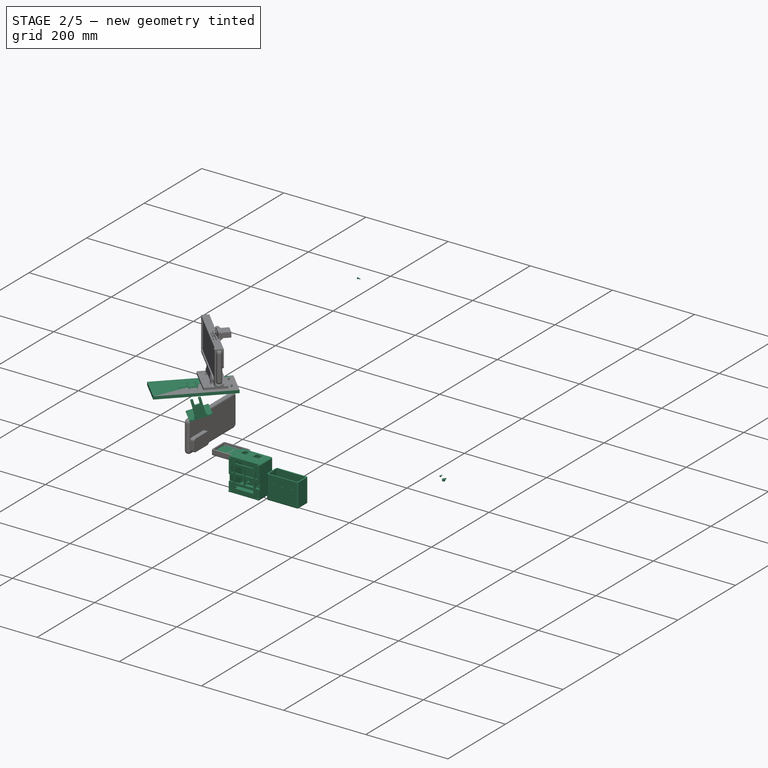
[diagram: stage 2 of 5 — iso view after this stage's code; geometry added in this stage tinted green]
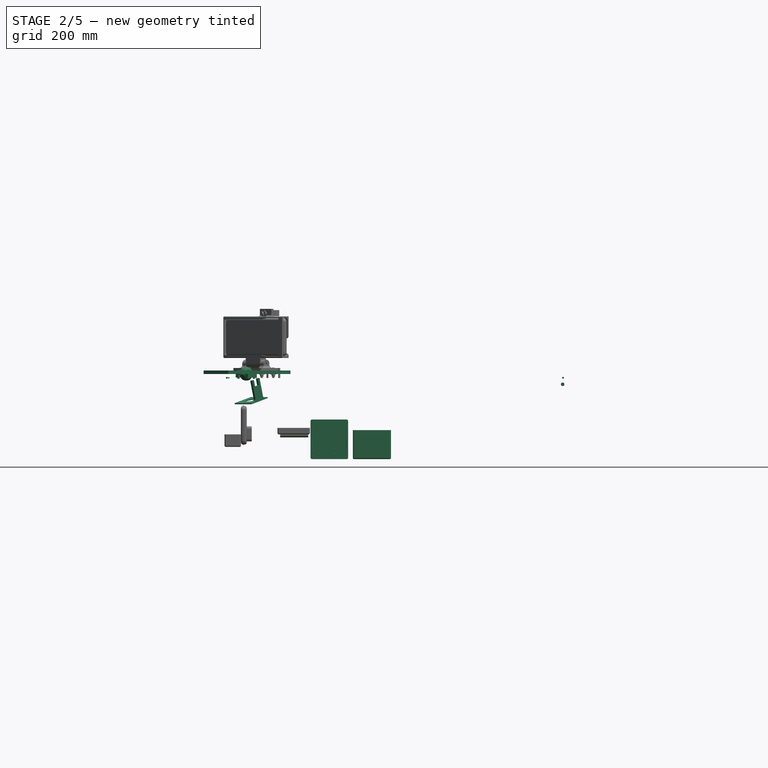
[diagram: stage 2 of 5 — front view after this stage's code; geometry added in this stage tinted green]
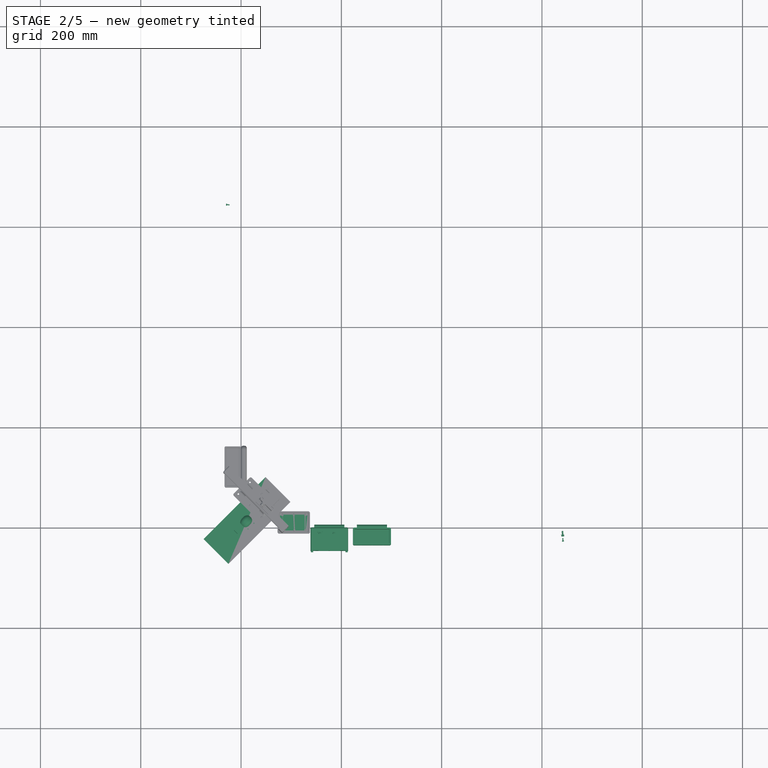
[diagram: stage 2 of 5 — top view after this stage's code; geometry added in this stage tinted green]
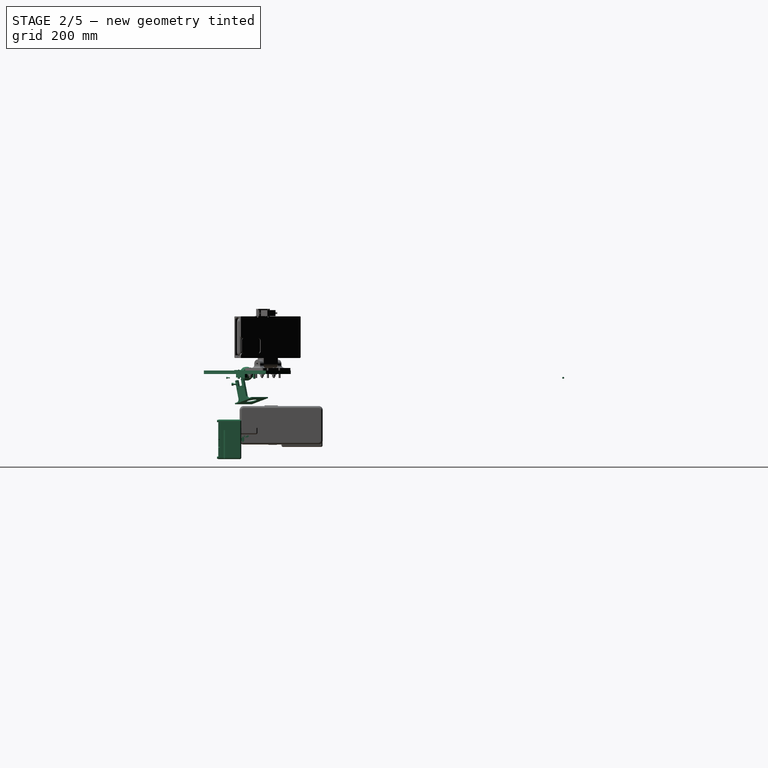
[diagram: stage 2 of 5 — right view after this stage's code; geometry added in this stage tinted green]
FEATURE [Part::Cylinder] Cylinder141
  Angle = 360
  AttacherType = Attacher::AttachEngine3D
  FirstAngle = 0
  Height = 20
  Placement = pos=(89.12,146.66,257.76) rot=(0,0,1;0rad)
  Radius = 1.5
  SecondAngle = 0
FEATURE [Part::Cylinder] Cylinder142
  Angle = 360
  AttacherType = Attacher::AttachEngine3D
  FirstAngle = 0
  Height = 20
  Placement = pos=(131.62,189.16,257.76) rot=(0,0,1;0rad)
  Radius = 1.5
  SecondAngle = 0
FEATURE [Part::Cylinder] Cylinder143
  Angle = 360
  AttacherType = Attacher::AttachEngine3D
  FirstAngle = 0
  Height = 20
  Placement = pos=(89.12,189.16,257.76) rot=(0,0,1;0rad)
  Radius = 1.5
  SecondAngle = 0
FEATURE [Part::Cylinder] Cylinder144
  Angle = 360
  AttacherType = Attacher::AttachEngine3D
  FirstAngle = 0
  Height = 20
  Placement = pos=(131.62,146.66,257.76) rot=(0,0,1;0rad)
  Radius = 1.5
  SecondAngle = 0
FEATURE [Part::Box] Box036  label="Cube036"
  AttacherType = Attacher::AttachEngine3D
  Height = 2
  Length = 48.5
  Placement = pos=(86.12,143.66,274.76) rot=(0,0,1;0rad)
  Width = 48.5
FEATURE [Part::Cylinder] Cylinder145
  Angle = 360
  AttacherType = Attacher::AttachEngine3D
  FirstAngle = 0
  Height = 10
  Placement = pos=(110.37,167.91,272.76) rot=(0,0,1;0rad)
  Radius = 11.25
  SecondAngle = 0
FEATURE [Part::MultiFuse] Fusion016002006011016017003005003003006016
  Refine = true
  Shapes = -> [Cylinder144,Cylinder141,Cylinder143,Cylinder142,Cylinder145]
FEATURE [Part::Box] Box045  label="Cube045"
  AttacherType = Attacher::AttachEngine3D
  Height = 7
  Length = 175
  Placement = pos=(-25.25,-74.75,140.3) rot=(0,0,1;0.785398rad)
  Width = 70
FEATURE [App::DocumentObjectGroup] Group011  label="stabilizer"
  Group = -> [Cut003009029,Cut003009027,Tube020007004014,Tube020007004025,Fusion016002006011016017003005003003006017003010,Fusion016002006011016017003005003003006017003018,Fusion016002006011016017003005003003006017003019,Fusion016002006011016017003005003003006017003011,Tube020007004013,Tube020007004012,Cut003009035,Chamfer035,Chamfer038,Cut003009039]
FEATURE [Part::Cylinder] Cylinder205
  Angle = 360
  AttacherType = Attacher::AttachEngine3D
  FirstAngle = 0
  Height = 2
  Placement = pos=(-36.02,-36.08,145.3) rot=(0,0,1;0rad)
  Radius = 7.75
  SecondAngle = 0
FEATURE [Part::Cylinder] Cylinder206
  Angle = 360
  AttacherType = Attacher::AttachEngine3D
  FirstAngle = 0
  Height = 7
  Placement = pos=(-36.0201,-36.0751,140.3) rot=(0,0,1;0rad)
  Radius = 2.5
  SecondAngle = 0
FEATURE [Part::FeaturePython] Tube020007004049  # WARN: FeaturePython — macro-defined, semantics opaque (R4)
  AttacherType = Attacher::AttachEngine3D
  Height = 12
  InnerRadius = 3.2
  OuterRadius = 10
  Placement = pos=(10,10,130) rot=(0,0,1;0rad)
FEATURE [Part::Cylinder] Cylinder208
  Angle = 360
  AttacherType = Attacher::AttachEngine3D
  FirstAngle = 0
  Height = 20
  Placement = pos=(0,10,135.97) rot=(0,1,0;1.5708rad)
  Radius = 1.6
  SecondAngle = 0
FEATURE [Part::Cylinder] Cylinder210
  Angle = 360
  AttacherType = Attacher::AttachEngine3D
  FirstAngle = 0
  Height = 0.2
  Placement = pos=(19.8,10,135.97) rot=(0,1,0;1.5708rad)
  Radius = 3.5
  SecondAngle = 0
FEATURE [Part::Cylinder] Cylinder211
  Angle = 360
  AttacherType = Attacher::AttachEngine3D
  FirstAngle = 0
  Height = 0.2
  Placement = pos=(0.2,10,135.97) rot=(0,-1,0;1.5708rad)
  Radius = 3.5
  SecondAngle = 0
FEATURE [Part::MultiFuse] Fusion016002006011016017003005003003006017003035
  Refine = true
  Shapes = -> [Cylinder208,Cylinder211,Cylinder210]
FEATURE [Part::Cut] Cut003009041  label="lead-nut"
  Base = -> Tube020007004049
  Placement = pos=(-14.8511,-0.696763,273.823) rot=(0.922709,-0.382199,0.050317;3.38336rad)
  Refine = true
  Tool = -> Fusion016002006011016017003005003003006017003035
FEATURE [Part::Cylinder] Cylinder212
  Angle = 360
  AttacherType = Attacher::AttachEngine3D
  FirstAngle = 0
  Height = 4.2
  Placement = pos=(20.1736,0.386784,139.898) rot=(0.816497,0,-0.57735;4.18879rad)
  Radius = 3.55
  SecondAngle = 0
FEATURE [Part::Cylinder] Cylinder213
  Angle = 360
  AttacherType = Attacher::AttachEngine3D
  FirstAngle = 0
  Height = 4.2
  Placement = pos=(3.34444,17.2159,139.898) rot=(0.816497,0,-0.57735;4.18879rad)
  Radius = 3.55
  SecondAngle = 0
FEATURE [Part::Cylinder] Cylinder214
  Angle = 360
  AttacherType = Attacher::AttachEngine3D
  FirstAngle = 0
  Height = 20.1
  Placement = pos=(3.17,17.39,140.9) rot=(0.816416,0,0.577465;2.0944rad)
  Radius = 13.6
  SecondAngle = 0
FEATURE [Part::Fillet] Fillet032
  Base = -> Cylinder214
  Edges = 2 edges r=8.5: [Edge2,Edge3]
FEATURE [Part::Box] Box056  label="Cube056"
  AttacherType = Attacher::AttachEngine3D
  Height = 9
  Length = 23
  Placement = pos=(-7.3,-14.37,139.3) rot=(0,0,1;0.785398rad)
  Width = 10
FEATURE [Part::Chamfer] Chamfer039
  Base = -> Box056
  Edges = 1 edges r=8.5: [Edge4]
FEATURE [Part::FeaturePython] Screw008  label="M4x6-Screw"  # Fasteners workbench fastener (typed FeaturePython)
  Placement = pos=(17.2037,3.35663,139.898) rot=(0.707107,0.707107,0;1.5708rad)
  baseObject = -> Cut003009041 [Edge19]
  diameter = 5
  invert = true
  leftHanded = false
  length = 0
  lengthCustom = 6
  matchOuter = false
  offset = 0
  thread = false
  type = 34
FEATURE [Part::FeaturePython] Screw009  label="M4x6-Screw001"  # Fasteners workbench fastener (typed FeaturePython)
  Placement = pos=(3.34444,17.2159,139.898) rot=(-0.707107,-0.707107,0;1.5708rad)
  baseObject = -> Cut003009041 [Edge25]
  diameter = 5
  invert = false
  leftHanded = false
  length = 0
  lengthCustom = 6
  matchOuter = false
  offset = 0
  thread = false
  type = 34
FEATURE [Part::Cylinder] Cylinder216
  Angle = 360
  AttacherType = Attacher::AttachEngine3D
  FirstAngle = 0
  Height = 4.2
  Placement = pos=(20.1736,0.386784,139.898) rot=(0.816497,0,-0.57735;4.18879rad)
  Radius = 3.55
  SecondAngle = 0
FEATURE [Part::Cylinder] Cylinder217
  Angle = 360
  AttacherType = Attacher::AttachEngine3D
  FirstAngle = 0
  Height = 4.2
  Placement = pos=(3.34444,17.2159,139.898) rot=(0.816497,0,-0.57735;4.18879rad)
  Radius = 3.55
  SecondAngle = 0
FEATURE [Part::Box] Box057  label="Cube057"
  AttacherType = Attacher::AttachEngine3D
  Height = 7
  Length = 25
  Placement = pos=(13.4955,-10.609,133.3) rot=(0,0,1;0.785398rad)
  Width = 7
FEATURE [Part::Box] Box058  label="Cube058"
  AttacherType = Attacher::AttachEngine3D
  Height = 7
  Length = 25
  Placement = pos=(-5.66928,8.55141,133.3) rot=(0,0,1;0.785398rad)
  Width = 7
FEATURE [Part::FeaturePython] Screw010  label="M2.5x12-Screw"  # Fasteners workbench fastener (typed FeaturePython)
  Placement = pos=(25.7,6.54,133.3) rot=(1,0,0;3.14159rad)
  diameter = 3
  invert = false
  leftHanded = false
  length = 5
  lengthCustom = 12
  matchOuter = false
  offset = 0
  thread = false
  type = 34
FEATURE [Part::FeaturePython] Screw011  label="M2.5x12-Screw008"  # Fasteners workbench fastener (typed FeaturePython)
  Placement = pos=(-5.14,14.03,133.3) rot=(1,0,0;3.14159rad)
  diameter = 3
  invert = false
  leftHanded = false
  length = 5
  lengthCustom = 12
  matchOuter = false
  offset = 0
  thread = false
  type = 34
FEATURE [Part::FeaturePython] Screw012  label="M2.5x12-Screw007"  # Fasteners workbench fastener (typed FeaturePython)
  Placement = pos=(6.53,25.7,133.3) rot=(1,0,0;3.14159rad)
  diameter = 3
  invert = false
  leftHanded = false
  length = 5
  lengthCustom = 12
  matchOuter = false
  offset = 0
  thread = false
  type = 34
FEATURE [Part::FeaturePython] Screw013  label="M2.5x12-Screw009"  # Fasteners workbench fastener (typed FeaturePython)
  Placement = pos=(14.02,-5.13,133.3) rot=(1,0,0;3.14159rad)
  diameter = 3
  invert = false
  leftHanded = false
  length = 5
  lengthCustom = 12
  matchOuter = false
  offset = 0
  thread = false
  type = 34
FEATURE [Part::Cylinder] Cylinder220
  Angle = 360
  AttacherType = Attacher::AttachEngine3D
  FirstAngle = 0
  Height = 16
  Placement = pos=(14.02,-5.13,133.3) rot=(0,0,1;0rad)
  Radius = 0.88
  SecondAngle = 0
FEATURE [Part::Cylinder] Cylinder221
  Angle = 360
  AttacherType = Attacher::AttachEngine3D
  FirstAngle = 0
  Height = 16
  Placement = pos=(6.53,25.7,133.3) rot=(0,0,1;0rad)
  Radius = 0.88
  SecondAngle = 0
FEATURE [Part::Cylinder] Cylinder222
  Angle = 360
  AttacherType = Attacher::AttachEngine3D
  FirstAngle = 0
  Height = 16
  Placement = pos=(-5.14,14.03,133.3) rot=(0,0,1;0rad)
  Radius = 0.88
  SecondAngle = 0
FEATURE [Part::Cylinder] Cylinder223
  Angle = 360
  AttacherType = Attacher::AttachEngine3D
  FirstAngle = 0
  Height = 16
  Placement = pos=(14.02,-5.13,133.3) rot=(0,0,1;0rad)
  Radius = 1.25
  SecondAngle = 0
FEATURE [Part::Cylinder] Cylinder224
  Angle = 360
  AttacherType = Attacher::AttachEngine3D
  FirstAngle = 0
  Height = 16
  Placement = pos=(25.7,6.54,133.3) rot=(0,0,1;0rad)
  Radius = 0.88
  SecondAngle = 0
FEATURE [Part::Cylinder] Cylinder225
  Angle = 360
  AttacherType = Attacher::AttachEngine3D
  FirstAngle = 0
  Height = 16
  Placement = pos=(25.7,6.54,133.3) rot=(0,0,1;0rad)
  Radius = 1.25
  SecondAngle = 0
FEATURE [Part::Cylinder] Cylinder226
  Angle = 360
  AttacherType = Attacher::AttachEngine3D
  FirstAngle = 0
  Height = 16
  Placement = pos=(6.53,25.7,133.3) rot=(0,0,1;0rad)
  Radius = 1.25
  SecondAngle = 0
FEATURE [Part::Cylinder] Cylinder227
  Angle = 360
  AttacherType = Attacher::AttachEngine3D
  FirstAngle = 0
  Height = 16
  Placement = pos=(-5.14,14.03,133.3) rot=(0,0,1;0rad)
  Radius = 1.25
  SecondAngle = 0
FEATURE [Part::MultiFuse] Fusion016002006011016017003005003003006017003036
  Refine = true
  Shapes = -> [Cylinder217,Cylinder227,Cylinder226]
FEATURE [Part::Cut] Cut003009042
  Base = -> Box058
  Refine = true
  Tool = -> Fusion016002006011016017003005003003006017003036
FEATURE [Part::MultiFuse] Fusion016002006011016017003005003003006017003037
  Refine = true
  Shapes = -> [Cylinder216,Cylinder223,Cylinder225]
FEATURE [Part::Cut] Cut003009043
  Base = -> Box057
  Refine = true
  Tool = -> Fusion016002006011016017003005003003006017003037
FEATURE [Part::Box] Box059  label="Cube059"
  AttacherType = Attacher::AttachEngine3D
  Height = 14
  Length = 5
  Placement = pos=(129.62,162.41,305.76) rot=(0,0,1;0rad)
  Width = 11
FEATURE [Part::Box] Box060  label="Cube060"
  AttacherType = Attacher::AttachEngine3D
  Height = 43
  Length = 5
  Placement = pos=(129.62,156.91,276.76) rot=(0,0,1;0rad)
  Width = 22
FEATURE [Part::Cut] Cut003009045
  Base = -> Box036
  Refine = true
  Tool = -> Fusion016002006011016017003005003003006016
FEATURE [Part::Cylinder] Cylinder228
  Angle = 360
  AttacherType = Attacher::AttachEngine3D
  FirstAngle = 0
  Height = 5
  Placement = pos=(129.62,175.66,317.26) rot=(0,1,0;1.5708rad)
  Radius = 1
  SecondAngle = 0
FEATURE [Part::Cylinder] Cylinder229
  Angle = 360
  AttacherType = Attacher::AttachEngine3D
  FirstAngle = 0
  Height = 5
  Placement = pos=(129.62,160.16,317.26) rot=(0,1,0;1.5708rad)
  Radius = 1
  SecondAngle = 0
FEATURE [Part::Cylinder] Cylinder230
  Angle = 360
  AttacherType = Attacher::AttachEngine3D
  FirstAngle = 0
  Height = 5
  Placement = pos=(129.62,160.16,301.76) rot=(0,1,0;1.5708rad)
  Radius = 1
  SecondAngle = 0
FEATURE [Part::Cylinder] Cylinder231
  Angle = 360
  AttacherType = Attacher::AttachEngine3D
  FirstAngle = 0
  Height = 5
  Placement = pos=(129.62,175.66,301.76) rot=(0,1,0;1.5708rad)
  Radius = 1
  SecondAngle = 0
FEATURE [Part::MultiFuse] Fusion016002006011016017003005003003006017003038
  Refine = true
  Shapes = -> [Cylinder228,Box059,Cylinder229,Cylinder230,Cylinder231]
FEATURE [Part::Cut] Cut003009046
  Base = -> Box060
  Refine = true
  Tool = -> Fusion016002006011016017003005003003006017003038
FEATURE [Part::Fillet] Fillet033
  Base = -> Cut003009046
  Edges = 6 edges r=1: [Edge13,Edge15,Edge16,Edge18,Edge21,Edge22]
FEATURE [Part::Fillet] Fillet034
  Base = -> Cut003009045
  Edges = 4 edges r=2: [Edge1,Edge3,Edge6,Edge16]
FEATURE [Part::MultiFuse] Fusion016002006011016017003005003003006017003039
  Refine = true
  Shapes = -> [Fillet034,Fillet033]
FEATURE [Part::Fillet] Fillet035  label="stepper-z-cup-cover-with-end-stop-"
  Base = -> Fusion016002006011016017003005003003006017003039
  Edges = 3 edges r=6: [Edge9,Edge10,Edge11]
  Placement = pos=(-122.061,34.2981,-222.568) rot=(0.300219,-0.124133,-0.945759;0.82692rad)
FEATURE [App::DocumentObjectGroup] Group006  label="stepper-z"
  Group = -> [Cut003009037,Fillet007,Fillet009,Fusion016002006011016015,Fillet035]
FEATURE [Part::Box] Box061  label="Cube061"
  AttacherType = Attacher::AttachEngine3D
  Height = 2
  Length = 48.5
  Placement = pos=(86.12,143.66,274.76) rot=(0,0,1;0rad)
  Width = 48.5
FEATURE [Part::Cylinder] Cylinder232
  Angle = 360
  AttacherType = Attacher::AttachEngine3D
  FirstAngle = 0
  Height = 20
  Placement = pos=(89.12,146.66,257.76) rot=(0,0,1;0rad)
  Radius = 1.5
  SecondAngle = 0
FEATURE [Part::Cylinder] Cylinder233
  Angle = 360
  AttacherType = Attacher::AttachEngine3D
  FirstAngle = 0
  Height = 20
  Placement = pos=(131.62,189.16,257.76) rot=(0,0,1;0rad)
  Radius = 1.5
  SecondAngle = 0
FEATURE [Part::Cylinder] Cylinder234
  Angle = 360
  AttacherType = Attacher::AttachEngine3D
  FirstAngle = 0
  Height = 20
  Placement = pos=(89.12,189.16,257.76) rot=(0,0,1;0rad)
  Radius = 1.5
  SecondAngle = 0
FEATURE [Part::Cylinder] Cylinder235
  Angle = 360
  AttacherType = Attacher::AttachEngine3D
  FirstAngle = 0
  Height = 20
  Placement = pos=(131.62,146.66,257.76) rot=(0,0,1;0rad)
  Radius = 1.5
  SecondAngle = 0
FEATURE [Part::Cylinder] Cylinder236
  Angle = 360
  AttacherType = Attacher::AttachEngine3D
  FirstAngle = 0
  Height = 10
  Placement = pos=(110.37,167.91,272.76) rot=(0,0,1;0rad)
  Radius = 11.25
  SecondAngle = 0
FEATURE [Part::MultiFuse] Fusion016002006011016017003005003003006017003040
  Refine = true
  Shapes = -> [Cylinder235,Cylinder232,Cylinder234,Cylinder233,Cylinder236]
FEATURE [Part::Cut] Cut003009047
  Base = -> Box061
  Refine = true
  Tool = -> Fusion016002006011016017003005003003006017003040
FEATURE [Part::Fillet] Fillet036  label="stepper-z-cup-cover"
  Base = -> Cut003009047
  Edges = 4 edges r=2: [Edge1,Edge3,Edge6,Edge16]
  Placement = pos=(113.825,-123.466,-207.766) rot=(0.124851,-0.30088,0.945454;0.824535rad)
FEATURE [App::DocumentObjectGroup] Group007  label="optionals"
  Group = -> [Cut003009018,Fillet036]
FEATURE [Part::Feature] Compound001  label="cnc-shield-"
  Placement = pos=(158.99,-54.03,-14.36) rot=(0,0,1;3.14159rad)
  shape: bbox 52.97 x 28.45 x 68.2 mm, 14340 faces, 743 solids (baked)
FEATURE [Part::Feature] Compound002  label="arduino-uno-"
  Placement = pos=(149.33,-5.45,52.06) rot=(0.57735,0.57735,-0.57735;2.0944rad)
  shape: large baked B-rep (32 MB .brp); summary skipped
FEATURE [Part::Box] Box062  label="Cube062"
  AttacherType = Attacher::AttachEngine3D
  Height = 73
  Length = 69
  Placement = pos=(81.5,-15,-19.31) rot=(0,0,1;0rad)
  Width = 40
FEATURE [Part::Thickness] Thickness005
  Faces = -> Box062 [Face3]
  Intersection = false
  Join = 0
  Mode = 0
  Placement = pos=(0,-28,-7.19) rot=(0,0,1;0rad)
  SelfIntersection = false
  Value = 3
FEATURE [Part::Box] Box063  label="Cube063"
  AttacherType = Attacher::AttachEngine3D
  Height = 79
  Length = 75
  Placement = pos=(78.5,-47,-22.31) rot=(0,0,1;0rad)
  Width = 3
FEATURE [Part::Fillet] Fillet037
  Base = -> Box063
  Edges = 4 edges r=3: [Edge2,Edge4,Edge6,Edge8]
  Placement = pos=(0,1,-7.19) rot=(0,0,1;0rad)
FEATURE [Part::Cylinder] Cylinder237
  Angle = 360
  AttacherType = Attacher::AttachEngine3D
  FirstAngle = 0
  Height = 40
  Placement = pos=(150.5,-3,46.5) rot=(1,0,0;1.5708rad)
  Radius = 1.2
  SecondAngle = 0
FEATURE [Part::Cylinder] Cylinder238
  Angle = 360
  AttacherType = Attacher::AttachEngine3D
  FirstAngle = 0
  Height = 40
  Placement = pos=(150.5,-3,-26.5) rot=(1,0,0;1.5708rad)
  Radius = 1.2
  SecondAngle = 0
FEATURE [Part::Cylinder] Cylinder239
  Angle = 360
  AttacherType = Attacher::AttachEngine3D
  FirstAngle = 0
  Height = 40
  Placement = pos=(81.5,-3,-26.5) rot=(1,0,0;1.5708rad)
  Radius = 1.2
  SecondAngle = 0
FEATURE [Part::Cylinder] Cylinder240
  Angle = 360
  AttacherType = Attacher::AttachEngine3D
  FirstAngle = 0
  Height = 40
  Placement = pos=(81.5,-3,46.5) rot=(1,0,0;1.5708rad)
  Radius = 1.2
  SecondAngle = 0
FEATURE [Part::Cylinder] Cylinder241
  Angle = 360
  AttacherType = Attacher::AttachEngine3D
  FirstAngle = 0
  Height = 40
  Placement = pos=(81.5,-3,46.5) rot=(1,0,0;1.5708rad)
  Radius = 3
  SecondAngle = 0
FEATURE [Part::Cylinder] Cylinder242
  Angle = 360
  AttacherType = Attacher::AttachEngine3D
  FirstAngle = 0
  Height = 1
  Placement = pos=(138,-3,10) rot=(0.57735,0.57735,-0.57735;2.0944rad)
  Radius = 2.25
  SecondAngle = 0
FEATURE [Part::Cylinder] Cylinder243
  Angle = 360
  AttacherType = Attacher::AttachEngine3D
  FirstAngle = 0
  Height = 40
  Placement = pos=(150.5,-3,-26.5) rot=(1,0,0;1.5708rad)
  Radius = 3
  SecondAngle = 0
FEATURE [Part::Cylinder] Cylinder244
  Angle = 360
  AttacherType = Attacher::AttachEngine3D
  FirstAngle = 0
  Height = 40
  Placement = pos=(81.5,-3,-26.5) rot=(1,0,0;1.5708rad)
  Radius = 3
  SecondAngle = 0
FEATURE [Part::Cylinder] Cylinder245
  Angle = 360
  AttacherType = Attacher::AttachEngine3D
  FirstAngle = 0
  Height = 40
  Placement = pos=(150.5,-3,46.5) rot=(1,0,0;1.5708rad)
  Radius = 3
  SecondAngle = 0
FEATURE [Part::Cylinder] Cylinder246
  Angle = 360
  AttacherType = Attacher::AttachEngine3D
  FirstAngle = 0
  Height = 5
  Placement = pos=(140.13,-3,30.5) rot=(0.57735,0.57735,-0.57735;2.0944rad)
  Radius = 2.25
  SecondAngle = 0
FEATURE [Part::Cylinder] Cylinder247
  Angle = 360
  AttacherType = Attacher::AttachEngine3D
  FirstAngle = 0
  Height = 5
  Placement = pos=(124.89,-3,-20.3) rot=(0.57735,0.57735,-0.57735;2.0944rad)
  Radius = 2.25
  SecondAngle = 0
FEATURE [Part::Cylinder] Cylinder248
  Angle = 360
  AttacherType = Attacher::AttachEngine3D
  FirstAngle = 0
  Height = 5
  Placement = pos=(96.95,-3,-20.3) rot=(0.57735,0.57735,-0.57735;2.0944rad)
  Radius = 2.25
  SecondAngle = 0
FEATURE [Part::Cylinder] Cylinder249
  Angle = 360
  AttacherType = Attacher::AttachEngine3D
  FirstAngle = 0
  Height = 8
  Placement = pos=(140.13,0,30.5) rot=(0.57735,0.57735,-0.57735;2.0944rad)
  Radius = 1
  SecondAngle = 0
FEATURE [Part::Cylinder] Cylinder250
  Angle = 360
  AttacherType = Attacher::AttachEngine3D
  FirstAngle = 0
  Height = 15
  Placement = pos=(94,11,10) rot=(0.57735,0.57735,-0.57735;2.0944rad)
  Radius = 1.5
  SecondAngle = 0
FEATURE [Part::Cylinder] Cylinder251
  Angle = 360
  AttacherType = Attacher::AttachEngine3D
  FirstAngle = 0
  Height = 8
  Placement = pos=(124.89,0,-20.3) rot=(0.57735,0.57735,-0.57735;2.0944rad)
  Radius = 1
  SecondAngle = 0
FEATURE [Part::Cylinder] Cylinder252
  Angle = 360
  AttacherType = Attacher::AttachEngine3D
  FirstAngle = 0
  Height = 8
  Placement = pos=(96.95,2e-15,-20.3) rot=(0.57735,0.57735,-0.57735;2.0944rad)
  Radius = 1
  SecondAngle = 0
FEATURE [Sketcher::SketchObject] Sketch023  label="20x20-inlay001"
  FullyConstrained = true
  sketch-geometry (42):
    g0: LineSegment StartX=0 StartY=0 StartZ=0 EndX=20 EndY=0 EndZ=0
    g1: LineSegment StartX=20 StartY=0 StartZ=0 EndX=20 EndY=20 EndZ=0
    g2: LineSegment StartX=20 StartY=20 StartZ=0 EndX=0 EndY=20 EndZ=0
    g3: LineSegment StartX=0 StartY=20 StartZ=0 EndX=0 EndY=0 EndZ=0
    g4: LineSegment StartX=0 StartY=20 StartZ=0 EndX=20 EndY=0 EndZ=0
    g5: LineSegment StartX=10 StartY=10 StartZ=0 EndX=20 EndY=20 EndZ=0
    g6: LineSegment StartX=0 StartY=0 StartZ=0 EndX=10 EndY=10 EndZ=0
    g7: Circle CenterX=10 CenterY=10 CenterZ=0 NormalX=0 NormalY=0 NormalZ=1 AngleXU=0 Radius=2.5
    g8: LineSegment StartX=1.8 StartY=18.2 StartZ=0 EndX=18.2 EndY=18.2 EndZ=0
    g9: LineSegment StartX=18.2 StartY=18.2 StartZ=0 EndX=18.2 EndY=1.8 EndZ=0
    g10: LineSegment StartX=18.2 StartY=1.8 StartZ=0 EndX=1.8 EndY=1.8 EndZ=0
    g11: LineSegment StartX=1.8 StartY=1.8 StartZ=0 EndX=1.8 EndY=18.2 EndZ=0
    g12: LineSegment StartX=9.46967 StartY=10.5303 StartZ=0 EndX=17.1393 EndY=18.2 EndZ=0
    g13: LineSegment StartX=9.46967 StartY=10.5303 StartZ=0 EndX=1.8 EndY=2.86066 EndZ=0
    g14: LineSegment StartX=10.5303 StartY=9.46967 StartZ=0 EndX=2.86066 EndY=1.8 EndZ=0
    g15: LineSegment StartX=10.5303 StartY=9.46967 StartZ=0 EndX=18.2 EndY=17.1393 EndZ=0
    g16: LineSegment StartX=1.8 StartY=17.1393 StartZ=0 EndX=9.46967 EndY=9.46967 EndZ=0
    g17: LineSegment StartX=9.46967 StartY=9.46967 StartZ=0 EndX=17.1393 EndY=1.8 EndZ=0
    g18: LineSegment StartX=18.2 StartY=2.86066 StartZ=0 EndX=10.5303 EndY=10.5303 EndZ=0
    g19: LineSegment StartX=10.5303 StartY=10.5303 StartZ=0 EndX=2.86066 EndY=18.2 EndZ=0
    g20: LineSegment StartX=7.06066 StartY=14 StartZ=0 EndX=12.9393 EndY=14 EndZ=0
    g21: LineSegment StartX=14 StartY=7.06066 StartZ=0 EndX=14 EndY=12.9393 EndZ=0
    g22: LineSegment StartX=12.9393 StartY=6 StartZ=0 EndX=7.06066 EndY=6 EndZ=0
    g23: LineSegment StartX=6 StartY=7.06066 StartZ=0 EndX=6 EndY=12.9393 EndZ=0
    g24: LineSegment StartX=15.4993 StartY=16.56 StartZ=0 EndX=15.4993 EndY=18.2 EndZ=0
    g25: LineSegment StartX=4.50066 StartY=16.56 StartZ=0 EndX=4.50066 EndY=18.2 EndZ=0
    g26: LineSegment StartX=1.8 StartY=15.4993 StartZ=0 EndX=3.44 EndY=15.4993 EndZ=0
    g27: LineSegment StartX=1.8 StartY=4.50066 StartZ=0 EndX=3.44 EndY=4.50066 EndZ=0
    g28: LineSegment StartX=4.50066 StartY=3.44 StartZ=0 EndX=4.50066 EndY=1.8 EndZ=0
    g29: LineSegment StartX=15.4993 StartY=1.8 StartZ=0 EndX=15.4993 EndY=3.44 EndZ=0
    g30: LineSegment StartX=16.56 StartY=4.50066 StartZ=0 EndX=18.2 EndY=4.50066 EndZ=0
    g31: LineSegment StartX=16.56 StartY=15.4993 StartZ=0 EndX=18.2 EndY=15.4993 EndZ=0
    g32: LineSegment StartX=7 StartY=1.8 StartZ=0 EndX=4.50066 EndY=1.8 EndZ=0
    g33: LineSegment StartX=4.50066 StartY=1.8 StartZ=0 EndX=4.50066 EndY=3.44 EndZ=0
    g34: LineSegment StartX=4.50066 StartY=3.44 StartZ=0 EndX=7.06066 EndY=6 EndZ=0
    g35: LineSegment StartX=7.06066 StartY=6 StartZ=0 EndX=12.9393 EndY=6 EndZ=0
    g36: LineSegment StartX=12.9393 StartY=6 StartZ=0 EndX=15.4993 EndY=3.44 EndZ=0
    g37: LineSegment StartX=15.4993 StartY=3.44 StartZ=0 EndX=15.4993 EndY=1.8 EndZ=0
    g38: LineSegment StartX=15.4993 StartY=1.8 StartZ=0 EndX=13 EndY=1.8 EndZ=0
    g39: LineSegment StartX=7 StartY=1.8 StartZ=0 EndX=7 EndY=0 EndZ=0
    g40: LineSegment StartX=13 StartY=1.8 StartZ=0 EndX=13 EndY=0 EndZ=0
    g41: LineSegment StartX=13 StartY=0 StartZ=0 EndX=7 EndY=0 EndZ=0
  constraints (132):
    c: Coincident(g0,g1)
    c: Coincident(g1,g2)
    c: Coincident(g2,g3)
    c: Coincident(g3,g0)
    c: Horizontal(g0)
    c: Horizontal(g2)
    c: Vertical(g1)
    c: Vertical(g3)
    c: Coincident(g0,g-1)
    c: DistanceY(g1,g1) = 20
    c: DistanceX(g2,g2) = 20
    c: Coincident(g4,g2)
    c: Coincident(g4,g0)
    c: PointOnObject(g5,g4)
    c: Coincident(g5,g1)
    c: Coincident(g6,g0)
    c: Coincident(g6,g5)
    c: Parallel(g6,g5)
    c: Coincident(g7,g5)
    c: Radius(g7) = 2.5
    c: PointOnObject(g8,g4)
    c: PointOnObject(g8,g5)
    c: Horizontal(g8)
    c: Coincident(g9,g8)
    c: PointOnObject(g9,g4)
    c: Vertical(g9)
    c: Coincident(g10,g9)
    c: PointOnObject(g10,g6)
    c: Horizontal(g10)
    c: Coincident(g11,g10)
    c: Coincident(g11,g8)
    c: DistanceY(g0,g9) = 1.8
    c: PointOnObject(g12,g4)
    c: PointOnObject(g12,g8)
    c: Coincident(g13,g12)
    c: PointOnObject(g13,g11)
    c: PointOnObject(g14,g4)
    c: PointOnObject(g14,g10)
    c: Coincident(g15,g14)
    c: PointOnObject(g15,g9)
    c: PointOnObject(g16,g11)
    c: PointOnObject(g16,g6)
    c: Coincident(g17,g16)
    c: PointOnObject(g17,g10)
    c: PointOnObject(g18,g9)
    c: PointOnObject(g18,g5)
    c: Coincident(g19,g18)
    c: PointOnObject(g19,g8)
    c: Parallel(g4,g19)
    c: Parallel(g19,g18)
    c: Parallel(g18,g17)
    c: Parallel(g17,g16)
    c: Parallel(g6,g13)
    c: Parallel(g13,g12)
    c: Parallel(g12,g15)
    c: Parallel(g15,g14)
    c: Distance(g7,g12) = 0.75
    c: Distance(g7,g14) = 0.75
    c: Distance(g7,g16) = 0.75
    c: Distance(g7,g18) = 0.75
    c: PointOnObject(g20,g19)
    c: PointOnObject(g20,g12)
    c: Horizontal(g20)
    c: PointOnObject(g21,g18)
    c: PointOnObject(g21,g15)
    c: Vertical(g21)
    c: PointOnObject(g22,g17)
    c: PointOnObject(g22,g14)
    c: Horizontal(g22)
    c: PointOnObject(g23,g13)
    c: PointOnObject(g23,g16)
    c: Vertical(g23)
    c: DistanceY(g22,g7) = 4
    c: DistanceY(g7,g20) = 4
    c: DistanceX(g23,g7) = 4
    c: DistanceX(g7,g21) = 4
    c: PointOnObject(g24,g12)
    c: PointOnObject(g24,g8)
    c: Vertical(g24)
    c: PointOnObject(g25,g19)
    c: PointOnObject(g25,g8)
    c: Vertical(g25)
    c: PointOnObject(g26,g11)
    c: PointOnObject(g26,g16)
    c: Horizontal(g26)
    c: PointOnObject(g27,g11)
    c: PointOnObject(g27,g13)
    c: Horizontal(g27)
    c: PointOnObject(g28,g14)
    c: PointOnObject(g28,g10)
    c: Vertical(g28)
    c: PointOnObject(g29,g10)
    c: PointOnObject(g29,g17)
    c: Vertical(g29)
    c: PointOnObject(g30,g18)
    c: PointOnObject(g30,g9)
    c: Horizontal(g30)
    c: PointOnObject(g31,g15)
    c: PointOnObject(g31,g9)
    c: Horizontal(g31)
    c: Equal(g24,g25)
    c: Equal(g25,g26)
    c: Equal(g26,g27)
    c: Equal(g27,g28)
    c: Equal(g28,g29)
    c: Equal(g29,g30)
    c: Equal(g30,g31)
    c: DistanceY(g24,g24) = 1.64
    c: PointOnObject(g32,g10)
    c: Coincident(g32,g28)
    c: Coincident(g32,g33)
    c: Coincident(g33,g28)
    c: Coincident(g33,g34)
    c: Coincident(g34,g22)
    c: Coincident(g34,g35)
    c: Coincident(g35,g22)
    c: Coincident(g35,g36)
    c: Coincident(g36,g29)
    c: Coincident(g36,g37)
    c: Coincident(g37,g29)
    c: Coincident(g37,g38)
    c: PointOnObject(g38,g10)
    c: DistanceX(g32,g38) = 6
    c: DistanceX(g32,g7) = 3
    c: Coincident(g39,g32)
    c: PointOnObject(g39,g0)
    c: Vertical(g39)
    c: Coincident(g40,g38)
    c: PointOnObject(g40,g0)
    c: Vertical(g40)
    c: Coincident(g41,g40)
    c: Coincident(g41,g39)
FEATURE [Part::Extrusion] Extrude023  label="20x20-inlay-001"
  Base = -> Sketch023
  Dir = (0,0,1)
  DirMode = 2
  FaceMakerClass = Part::FaceMakerBullseye
  LengthFwd = 60
  LengthRev = 0
  Placement = pos=(86,0,20) rot=(0,1,0;1.5708rad)
  Solid = true
  Symmetric = false
FEATURE [Part::Cylinder] Cylinder253
  Angle = 360
  AttacherType = Attacher::AttachEngine3D
  FirstAngle = 0
  Height = 8
  Placement = pos=(91.87,0,31.75) rot=(0.57735,0.57735,-0.57735;2.0944rad)
  Radius = 1
  SecondAngle = 0
FEATURE [Part::Cylinder] Cylinder254
  Angle = 360
  AttacherType = Attacher::AttachEngine3D
  FirstAngle = 0
  Height = 5
  Placement = pos=(91.87,-3,31.75) rot=(0.57735,0.57735,-0.57735;2.0944rad)
  Radius = 2.25
  SecondAngle = 0
FEATURE [Part::Cylinder] Cylinder255
  Angle = 360
  AttacherType = Attacher::AttachEngine3D
  FirstAngle = 0
  Height = 15
  Placement = pos=(138,11,10) rot=(0.57735,0.57735,-0.57735;2.0944rad)
  Radius = 1.5
  SecondAngle = 0
FEATURE [Part::Cylinder] Cylinder256
  Angle = 360
  AttacherType = Attacher::AttachEngine3D
  FirstAngle = 0
  Height = 1
  Placement = pos=(116,-3,10) rot=(0.57735,0.57735,-0.57735;2.0944rad)
  Radius = 2.25
  SecondAngle = 0
FEATURE [Part::Cylinder] Cylinder257
  Angle = 360
  AttacherType = Attacher::AttachEngine3D
  FirstAngle = 0
  Height = 1
  Placement = pos=(94,-3,10) rot=(0.57735,0.57735,-0.57735;2.0944rad)
  Radius = 2.25
  SecondAngle = 0
FEATURE [Part::Cylinder] Cylinder258
  Angle = 360
  AttacherType = Attacher::AttachEngine3D
  FirstAngle = 0
  Height = 15
  Placement = pos=(116,11,10) rot=(0.57735,0.57735,-0.57735;2.0944rad)
  Radius = 1.5
  SecondAngle = 0
FEATURE [Part::MultiFuse] Fusion016002006011016017003005003003006017003041
  Refine = true
  Shapes = -> [Thickness005,Cylinder241,Cylinder245,Cylinder243,Cylinder244,Cylinder254,Cylinder246,Cylinder247,Cylinder248,Cylinder257,Cylinder256,Cylinder242]
FEATURE [Part::Cylinder] Cylinder259
  Angle = 360
  AttacherType = Attacher::AttachEngine3D
  FirstAngle = 0
  Height = 15
  Placement = pos=(116,11,10) rot=(0.57735,0.57735,-0.57735;2.0944rad)
  Radius = 1.2
  SecondAngle = 0
FEATURE [Part::Cylinder] Cylinder260
  Angle = 360
  AttacherType = Attacher::AttachEngine3D
  FirstAngle = 0
  Height = 15
  Placement = pos=(94,11,10) rot=(0.57735,0.57735,-0.57735;2.0944rad)
  Radius = 1.2
  SecondAngle = 0
FEATURE [Part::Cylinder] Cylinder261
  Angle = 360
  AttacherType = Attacher::AttachEngine3D
  FirstAngle = 0
  Height = 15
  Placement = pos=(138,11,10) rot=(0.57735,0.57735,-0.57735;2.0944rad)
  Radius = 1.2
  SecondAngle = 0
FEATURE [Part::Cylinder] Cylinder262
  Angle = 360
  AttacherType = Attacher::AttachEngine3D
  FirstAngle = 0
  Height = 40
  Placement = pos=(150.5,-8,-26.5) rot=(1,0,0;1.5708rad)
  Radius = 1.5
  SecondAngle = 0
FEATURE [Part::Cylinder] Cylinder263
  Angle = 360
  AttacherType = Attacher::AttachEngine3D
  FirstAngle = 0
  Height = 40
  Placement = pos=(150.5,-8,46.5) rot=(1,0,0;1.5708rad)
  Radius = 1.5
  SecondAngle = 0
FEATURE [Part::Cylinder] Cylinder264
  Angle = 360
  AttacherType = Attacher::AttachEngine3D
  FirstAngle = 0
  Height = 40
  Placement = pos=(81.5,-8,46.5) rot=(1,0,0;1.5708rad)
  Radius = 1.5
  SecondAngle = 0
FEATURE [Part::Cylinder] Cylinder265
  Angle = 360
  AttacherType = Attacher::AttachEngine3D
  FirstAngle = 0
  Height = 40
  Placement = pos=(81.5,-8,-26.5) rot=(1,0,0;1.5708rad)
  Radius = 1.5
  SecondAngle = 0
FEATURE [Part::MultiFuse] Fusion016002006011016017003005003003006017003043
  Refine = true
  Shapes = -> [Cylinder260,Cylinder259,Cylinder261]
FEATURE [Part::Cut] Cut003009049  label="inlay-20x20-"
  Base = -> Extrude023
  Placement = pos=(60,0,0) rot=(0,0,1;0rad)
  Refine = true
  Tool = -> Fusion016002006011016017003005003003006017003043
FEATURE [Part::Box] Box064  label="Cube064"
  AttacherType = Attacher::AttachEngine3D
  Height = 15.5
  Length = 20.5
  Placement = pos=(94.2451,-46,-5.688) rot=(0,0,1;0rad)
  Width = 3
FEATURE [Part::Box] Box065  label="Cube065"
  AttacherType = Attacher::AttachEngine3D
  Height = 15.5
  Length = 20.5
  Placement = pos=(117.635,-46,-5.688) rot=(0,0,1;0rad)
  Width = 3
FEATURE [Part::Box] Box066  label="Cube066"
  AttacherType = Attacher::AttachEngine3D
  Height = 15.5
  Length = 20.5
  Placement = pos=(117.64,-46,15.17) rot=(0,0,1;0rad)
  Width = 3
FEATURE [Part::Box] Box067  label="Cube067"
  AttacherType = Attacher::AttachEngine3D
  Height = 15.5
  Length = 20.5
  Placement = pos=(94.2451,-46,15.169) rot=(0,0,1;0rad)
  Width = 3
FEATURE [Part::Box] Box068  label="Cube068"
  AttacherType = Attacher::AttachEngine3D
  Height = 7
  Length = 43.9
  Placement = pos=(94.25,-46,36.5) rot=(0,0,1;0rad)
  Width = 3
FEATURE [Part::Box] Box069  label="Cube069"
  AttacherType = Attacher::AttachEngine3D
  Height = 7
  Length = 43.9
  Placement = pos=(94.25,-46,-18.5) rot=(0,0,1;0rad)
  Width = 3
FEATURE [Part::Box] Box070  label="Cube070"
  AttacherType = Attacher::AttachEngine3D
  Height = 15.5
  Length = 5
  Placement = pos=(143.14,-46,15.17) rot=(0,0,1;0rad)
  Width = 3
FEATURE [Part::Box] Box071  label="Cube071"
  AttacherType = Attacher::AttachEngine3D
  Height = 15.5
  Length = 11
  Placement = pos=(143.14,-46,-5.69) rot=(0,0,1;0rad)
  Width = 3
FEATURE [Part::Box] Box072  label="Cube072"
  AttacherType = Attacher::AttachEngine3D
  Height = 15.5
  Length = 5
  Placement = pos=(84.25,-46,15.17) rot=(0,0,1;0rad)
  Width = 3
FEATURE [Part::Box] Box073  label="Cube073"
  AttacherType = Attacher::AttachEngine3D
  Height = 15.5
  Length = 11
  Placement = pos=(78.25,-46,-5.69) rot=(0,0,1;0rad)
  Width = 3
FEATURE [Part::MultiFuse] Fusion016002006011016017003005003003006017003044
  Refine = true
  Shapes = -> [Box064,Box067,Box066,Box065,Cylinder262,Cylinder265,Cylinder264,Cylinder263,Box070,Box071,Box073,Box072,Box069,Box068]
FEATURE [Part::Cut] Cut003009050
  Base = -> Fillet037
  Refine = true
  Tool = -> Fusion016002006011016017003005003003006017003044
FEATURE [Part::Box] Box074  label="Cube074"
  AttacherType = Attacher::AttachEngine3D
  Height = 3
  Length = 14
  Placement = pos=(120.35,-21.915,46.5) rot=(0,0,1;0rad)
  Width = 13.1
FEATURE [Part::Box] Box075  label="Cube075"
  AttacherType = Attacher::AttachEngine3D
  Height = 3
  Length = 11
  Placement = pos=(91.51,-21.65,46.5) rot=(0,0,1;0rad)
  Width = 13
FEATURE [Part::MultiFuse] Fusion016002006011016017003005003003006017003042
  Refine = true
  Shapes = -> [Cylinder240,Cylinder237,Cylinder238,Cylinder239,Cylinder253,Cylinder249,Cylinder251,Cylinder252,Cylinder250,Cylinder258,Cylinder255,Box075,Box074]
FEATURE [Part::Cut] Cut003009048
  Base = -> Fusion016002006011016017003005003003006017003041
  Refine = true
  Tool = -> Fusion016002006011016017003005003003006017003042
FEATURE [Part::Fillet] Fillet039
  Base = -> Cut003009048
  Edges = 31 edges r=0.9: [Edge53,Edge54,Edge55,Edge56,Edge57,Edge58,Edge59,Edge60,Edge61,Edge62,Edge63,Edge64,Edge65,Edge74,Edge75,Edge76,Edge95,Edge96,Edge97,Edge98,Edge99,Edge100,Edge101,Edge102,Edge104,Edge105,Edge106,Edge107,Edge108,Edge109,Edge110]
FEATURE [Part::Chamfer] Chamfer040  label="cnc-box-"
  Base = -> Fillet039
  Edges = 3 edges r=0.6: [Edge208,Edge214,Edge216]
  Placement = pos=(60,0,0) rot=(0,0,1;0rad)
FEATURE [Part::Fillet] Fillet040  label="cnc-box-cover"
  Base = -> Cut003009050
  Edges = 40 edges r=1: [Edge2,Edge57,Edge111,Edge112,Edge113,Edge114,Edge119,Edge120,Edge122,Edge123,Edge124,Edge125,Edge126,Edge127,Edge128,Edge129,Edge131,Edge132,Edge133,Edge134,Edge135,Edge136,Edge137,Edge138,Edge139,Edge140,Edge141,Edge142,Edge144,Edge145,Edge146,Edge147,Edge148,Edge149,Edge150,Edge151,Edge152,+3 more]
  Placement = pos=(60,0,0) rot=(0,0,1;0rad)
FEATURE [App::DocumentObjectGroup] Group012  label="cnc-controller"
  Group = -> [Compound001,Compound002,Cut003009049,Chamfer040,Fillet040]
FEATURE [Part::Box] Box076  label="Cube076"
  AttacherType = Attacher::AttachEngine3D
  Height = 55
  Length = 70
  Placement = pos=(169,-40,-26.5) rot=(0,0,1;0rad)
  Width = 29
FEATURE [Part::Thickness] Thickness006
  Faces = -> Box076 [Face6]
  Intersection = false
  Join = 0
  Mode = 0
  Placement = pos=(7,8,0) rot=(0,0,1;0rad)
  SelfIntersection = false
  Value = 3
FEATURE [Part::Cylinder] Cylinder266
  Angle = 360
  AttacherType = Attacher::AttachEngine3D
  FirstAngle = 0
  Height = 15
  Placement = pos=(116,11,10) rot=(0.57735,0.57735,-0.57735;2.0944rad)
  Radius = 1.2
  SecondAngle = 0
FEATURE [Part::Cylinder] Cylinder267
  Angle = 360
  AttacherType = Attacher::AttachEngine3D
  FirstAngle = 0
  Height = 15
  Placement = pos=(94,11,10) rot=(0.57735,0.57735,-0.57735;2.0944rad)
  Radius = 1.2
  SecondAngle = 0
FEATURE [Part::Cylinder] Cylinder268
  Angle = 360
  AttacherType = Attacher::AttachEngine3D
  FirstAngle = 0
  Height = 15
  Placement = pos=(138,11,10) rot=(0.57735,0.57735,-0.57735;2.0944rad)
  Radius = 1.2
  SecondAngle = 0
FEATURE [Part::MultiFuse] Fusion016002006011016017003005003003006017003045
  Refine = true
  Shapes = -> [Cylinder267,Cylinder266,Cylinder268]
FEATURE [Sketcher::SketchObject] Sketch024  label="20x20-inlay002"
  FullyConstrained = true
  sketch-geometry (42):
    g0: LineSegment StartX=0 StartY=0 StartZ=0 EndX=20 EndY=0 EndZ=0
    g1: LineSegment StartX=20 StartY=0 StartZ=0 EndX=20 EndY=20 EndZ=0
    g2: LineSegment StartX=20 StartY=20 StartZ=0 EndX=0 EndY=20 EndZ=0
    g3: LineSegment StartX=0 StartY=20 StartZ=0 EndX=0 EndY=0 EndZ=0
    g4: LineSegment StartX=0 StartY=20 StartZ=0 EndX=20 EndY=0 EndZ=0
    g5: LineSegment StartX=10 StartY=10 StartZ=0 EndX=20 EndY=20 EndZ=0
    g6: LineSegment StartX=0 StartY=0 StartZ=0 EndX=10 EndY=10 EndZ=0
    g7: Circle CenterX=10 CenterY=10 CenterZ=0 NormalX=0 NormalY=0 NormalZ=1 AngleXU=0 Radius=2.5
    g8: LineSegment StartX=1.8 StartY=18.2 StartZ=0 EndX=18.2 EndY=18.2 EndZ=0
    g9: LineSegment StartX=18.2 StartY=18.2 StartZ=0 EndX=18.2 EndY=1.8 EndZ=0
    g10: LineSegment StartX=18.2 StartY=1.8 StartZ=0 EndX=1.8 EndY=1.8 EndZ=0
    g11: LineSegment StartX=1.8 StartY=1.8 StartZ=0 EndX=1.8 EndY=18.2 EndZ=0
    g12: LineSegment StartX=9.46967 StartY=10.5303 StartZ=0 EndX=17.1393 EndY=18.2 EndZ=0
    g13: LineSegment StartX=9.46967 StartY=10.5303 StartZ=0 EndX=1.8 EndY=2.86066 EndZ=0
    g14: LineSegment StartX=10.5303 StartY=9.46967 StartZ=0 EndX=2.86066 EndY=1.8 EndZ=0
    g15: LineSegment StartX=10.5303 StartY=9.46967 StartZ=0 EndX=18.2 EndY=17.1393 EndZ=0
    g16: LineSegment StartX=1.8 StartY=17.1393 StartZ=0 EndX=9.46967 EndY=9.46967 EndZ=0
    g17: LineSegment StartX=9.46967 StartY=9.46967 StartZ=0 EndX=17.1393 EndY=1.8 EndZ=0
    g18: LineSegment StartX=18.2 StartY=2.86066 StartZ=0 EndX=10.5303 EndY=10.5303 EndZ=0
    g19: LineSegment StartX=10.5303 StartY=10.5303 StartZ=0 EndX=2.86066 EndY=18.2 EndZ=0
    g20: LineSegment StartX=7.06066 StartY=14 StartZ=0 EndX=12.9393 EndY=14 EndZ=0
    g21: LineSegment StartX=14 StartY=7.06066 StartZ=0 EndX=14 EndY=12.9393 EndZ=0
    g22: LineSegment StartX=12.9393 StartY=6 StartZ=0 EndX=7.06066 EndY=6 EndZ=0
    g23: LineSegment StartX=6 StartY=7.06066 StartZ=0 EndX=6 EndY=12.9393 EndZ=0
    g24: LineSegment StartX=15.4993 StartY=16.56 StartZ=0 EndX=15.4993 EndY=18.2 EndZ=0
    g25: LineSegment StartX=4.50066 StartY=16.56 StartZ=0 EndX=4.50066 EndY=18.2 EndZ=0
    g26: LineSegment StartX=1.8 StartY=15.4993 StartZ=0 EndX=3.44 EndY=15.4993 EndZ=0
    g27: LineSegment StartX=1.8 StartY=4.50066 StartZ=0 EndX=3.44 EndY=4.50066 EndZ=0
    g28: LineSegment StartX=4.50066 StartY=3.44 StartZ=0 EndX=4.50066 EndY=1.8 EndZ=0
    g29: LineSegment StartX=15.4993 StartY=1.8 StartZ=0 EndX=15.4993 EndY=3.44 EndZ=0
    g30: LineSegment StartX=16.56 StartY=4.50066 StartZ=0 EndX=18.2 EndY=4.50066 EndZ=0
    g31: LineSegment StartX=16.56 StartY=15.4993 StartZ=0 EndX=18.2 EndY=15.4993 EndZ=0
    g32: LineSegment StartX=7 StartY=1.8 StartZ=0 EndX=4.50066 EndY=1.8 EndZ=0
    g33: LineSegment StartX=4.50066 StartY=1.8 StartZ=0 EndX=4.50066 EndY=3.44 EndZ=0
    g34: LineSegment StartX=4.50066 StartY=3.44 StartZ=0 EndX=7.06066 EndY=6 EndZ=0
    g35: LineSegment StartX=7.06066 StartY=6 StartZ=0 EndX=12.9393 EndY=6 EndZ=0
    g36: LineSegment StartX=12.9393 StartY=6 StartZ=0 EndX=15.4993 EndY=3.44 EndZ=0
    g37: LineSegment StartX=15.4993 StartY=3.44 StartZ=0 EndX=15.4993 EndY=1.8 EndZ=0
    g38: LineSegment StartX=15.4993 StartY=1.8 StartZ=0 EndX=13 EndY=1.8 EndZ=0
    g39: LineSegment StartX=7 StartY=1.8 StartZ=0 EndX=7 EndY=0 EndZ=0
    g40: LineSegment StartX=13 StartY=1.8 StartZ=0 EndX=13 EndY=0 EndZ=0
    g41: LineSegment StartX=13 StartY=0 StartZ=0 EndX=7 EndY=0 EndZ=0
  constraints (132):
    c: Coincident(g0,g1)
    c: Coincident(g1,g2)
    c: Coincident(g2,g3)
    c: Coincident(g3,g0)
    c: Horizontal(g0)
    c: Horizontal(g2)
    c: Vertical(g1)
    c: Vertical(g3)
    c: Coincident(g0,g-1)
    c: DistanceY(g1,g1) = 20
    c: DistanceX(g2,g2) = 20
    c: Coincident(g4,g2)
    c: Coincident(g4,g0)
    c: PointOnObject(g5,g4)
    c: Coincident(g5,g1)
    c: Coincident(g6,g0)
    c: Coincident(g6,g5)
    c: Parallel(g6,g5)
    c: Coincident(g7,g5)
    c: Radius(g7) = 2.5
    c: PointOnObject(g8,g4)
    c: PointOnObject(g8,g5)
    c: Horizontal(g8)
    c: Coincident(g9,g8)
    c: PointOnObject(g9,g4)
    c: Vertical(g9)
    c: Coincident(g10,g9)
    c: PointOnObject(g10,g6)
    c: Horizontal(g10)
    c: Coincident(g11,g10)
    c: Coincident(g11,g8)
    c: DistanceY(g0,g9) = 1.8
    c: PointOnObject(g12,g4)
    c: PointOnObject(g12,g8)
    c: Coincident(g13,g12)
    c: PointOnObject(g13,g11)
    c: PointOnObject(g14,g4)
    c: PointOnObject(g14,g10)
    c: Coincident(g15,g14)
    c: PointOnObject(g15,g9)
    c: PointOnObject(g16,g11)
    c: PointOnObject(g16,g6)
    c: Coincident(g17,g16)
    c: PointOnObject(g17,g10)
    c: PointOnObject(g18,g9)
    c: PointOnObject(g18,g5)
    c: Coincident(g19,g18)
    c: PointOnObject(g19,g8)
    c: Parallel(g4,g19)
    c: Parallel(g19,g18)
    c: Parallel(g18,g17)
    c: Parallel(g17,g16)
    c: Parallel(g6,g13)
    c: Parallel(g13,g12)
    c: Parallel(g12,g15)
    c: Parallel(g15,g14)
    c: Distance(g7,g12) = 0.75
    c: Distance(g7,g14) = 0.75
    c: Distance(g7,g16) = 0.75
    c: Distance(g7,g18) = 0.75
    c: PointOnObject(g20,g19)
    c: PointOnObject(g20,g12)
    c: Horizontal(g20)
    c: PointOnObject(g21,g18)
    c: PointOnObject(g21,g15)
    c: Vertical(g21)
    c: PointOnObject(g22,g17)
    c: PointOnObject(g22,g14)
    c: Horizontal(g22)
    c: PointOnObject(g23,g13)
    c: PointOnObject(g23,g16)
    c: Vertical(g23)
    c: DistanceY(g22,g7) = 4
    c: DistanceY(g7,g20) = 4
    c: DistanceX(g23,g7) = 4
    c: DistanceX(g7,g21) = 4
    c: PointOnObject(g24,g12)
    c: PointOnObject(g24,g8)
    c: Vertical(g24)
    c: PointOnObject(g25,g19)
    c: PointOnObject(g25,g8)
    c: Vertical(g25)
    c: PointOnObject(g26,g11)
    c: PointOnObject(g26,g16)
    c: Horizontal(g26)
    c: PointOnObject(g27,g11)
    c: PointOnObject(g27,g13)
    c: Horizontal(g27)
    c: PointOnObject(g28,g14)
    c: PointOnObject(g28,g10)
    c: Vertical(g28)
    c: PointOnObject(g29,g10)
    c: PointOnObject(g29,g17)
    c: Vertical(g29)
    c: PointOnObject(g30,g18)
    c: PointOnObject(g30,g9)
    c: Horizontal(g30)
    c: PointOnObject(g31,g15)
    c: PointOnObject(g31,g9)
    c: Horizontal(g31)
    c: Equal(g24,g25)
    c: Equal(g25,g26)
    c: Equal(g26,g27)
    c: Equal(g27,g28)
    c: Equal(g28,g29)
    c: Equal(g29,g30)
    c: Equal(g30,g31)
    c: DistanceY(g24,g24) = 1.64
    c: PointOnObject(g32,g10)
    c: Coincident(g32,g28)
    c: Coincident(g32,g33)
    c: Coincident(g33,g28)
    c: Coincident(g33,g34)
    c: Coincident(g34,g22)
    c: Coincident(g34,g35)
    c: Coincident(g35,g22)
    c: Coincident(g35,g36)
    c: Coincident(g36,g29)
    c: Coincident(g36,g37)
    c: Coincident(g37,g29)
    c: Coincident(g37,g38)
    c: PointOnObject(g38,g10)
    c: DistanceX(g32,g38) = 6
    c: DistanceX(g32,g7) = 3
    c: Coincident(g39,g32)
    c: PointOnObject(g39,g0)
    c: Vertical(g39)
    c: Coincident(g40,g38)
    c: PointOnObject(g40,g0)
    c: Vertical(g40)
    c: Coincident(g41,g40)
    c: Coincident(g41,g39)
FEATURE [Part::Extrusion] Extrude024  label="20x20-inlay-002"
  Base = -> Sketch024
  Dir = (0,0,1)
  DirMode = 2
  FaceMakerClass = Part::FaceMakerBullseye
  LengthFwd = 60
  LengthRev = 0
  Placement = pos=(86,0,20) rot=(0,1,0;1.5708rad)
  Solid = true
  Symmetric = false
FEATURE [Part::Cut] Cut003009051  label="battery-pocket-inlay-20x20-"
  Base = -> Extrude024
  Placement = pos=(145,0,0) rot=(0,0,1;0rad)
  Refine = true
  Tool = -> Fusion016002006011016017003005003003006017003045
FEATURE [Part::Cylinder] Cylinder269
  Angle = 360
  AttacherType = Attacher::AttachEngine3D
  FirstAngle = 0
  Height = 40
  Placement = pos=(189,0,10) rot=(0.57735,0.57735,-0.57735;2.0944rad)
  Radius = 1.5
  SecondAngle = 0
FEATURE [Part::Cylinder] Cylinder270
  Angle = 360
  AttacherType = Attacher::AttachEngine3D
  FirstAngle = 0
  Height = 40
  Placement = pos=(233,0,10) rot=(0.57735,0.57735,-0.57735;2.0944rad)
  Radius = 1.5
  SecondAngle = 0
FEATURE [Part::Cylinder] Cylinder271
  Angle = 360
  AttacherType = Attacher::AttachEngine3D
  FirstAngle = 0
  Height = 40
  Placement = pos=(211,0,10) rot=(0.57735,0.57735,-0.57735;2.0944rad)
  Radius = 1.5
  SecondAngle = 0
FEATURE [Part::MultiFuse] Fusion016002006011016017003005003003006017003046
  Refine = true
  Shapes = -> [Cylinder269,Cylinder271,Cylinder270]
FEATURE [Part::Cut] Cut003009052
  Base = -> Thickness006
  Refine = true
  Tool = -> Fusion016002006011016017003005003003006017003046
FEATURE [Part::Chamfer] Chamfer041
  Base = -> Cut003009052
  Edges = 3 edges r=1.7: [Edge23,Edge24,Edge25]
FEATURE [Part::Fillet] Fillet041  label="stepper-battery"
  Base = -> Chamfer041
  Edges = 8 edges r=1: [Edge2,Edge3,Edge5,Edge10,Edge11,Edge12,Edge13,Edge15]
  Placement = pos=(50,0,0) rot=(0,0,1;0rad)
FEATURE [Part::FeaturePython] Screw014  label="M3x8-Screw019"  # Fasteners workbench fastener (typed FeaturePython)
  Placement = pos=(283,-2.83,10) rot=(1,0,0;1.5708rad)
  diameter = 4
  invert = false
  leftHanded = false
  length = 3
  lengthCustom = 8
  matchOuter = false
  offset = 0
  thread = false
  type = 36
FEATURE [Part::FeaturePython] Screw015  label="M3x8-Screw028"  # Fasteners workbench fastener (typed FeaturePython)
  Placement = pos=(176,-4.93,10) rot=(1,0,0;1.5708rad)
  diameter = 4
  invert = false
  leftHanded = false
  length = 3
  lengthCustom = 8
  matchOuter = false
  offset = 0
  thread = false
  type = 36
FEATURE [Part::FeaturePython] Screw016  label="M3x8-Screw020"  # Fasteners workbench fastener (typed FeaturePython)
  Placement = pos=(261,-2.83,10) rot=(1,0,0;1.5708rad)
  diameter = 4
  invert = false
  leftHanded = false
  length = 3
  lengthCustom = 8
  matchOuter = false
  offset = 0
  thread = false
  type = 36
FEATURE [Part::FeaturePython] Screw017  label="M3x8-Screw021"  # Fasteners workbench fastener (typed FeaturePython)
  Placement = pos=(239,-2.83,10) rot=(1,0,0;1.5708rad)
  diameter = 4
  invert = false
  leftHanded = false
  length = 3
  lengthCustom = 8
  matchOuter = false
  offset = 0
  thread = false
  type = 36
FEATURE [Part::FeaturePython] Screw018  label="M3x8-Screw029"  # Fasteners workbench fastener (typed FeaturePython)
  Placement = pos=(154,-4.93,10) rot=(1,0,0;1.5708rad)
  diameter = 4
  invert = false
  leftHanded = false
  length = 3
  lengthCustom = 8
  matchOuter = false
  offset = 0
  thread = false
  type = 36
FEATURE [Part::FeaturePython] Screw019  label="M3x8-Screw030"  # Fasteners workbench fastener (typed FeaturePython)
  Placement = pos=(198,-4.93,10) rot=(1,0,0;1.5708rad)
  diameter = 4
  invert = false
  leftHanded = false
  length = 3
  lengthCustom = 8
  matchOuter = false
  offset = 0
  thread = false
  type = 36
FEATURE [Part::FeaturePython] Screw020  label="M2.5x6-Screw"  # Fasteners workbench fastener (typed FeaturePython)
  Placement = pos=(141.5,-46,46.5) rot=(1,0,0;1.5708rad)
  diameter = 3
  invert = false
  leftHanded = false
  length = 2
  lengthCustom = 6
  matchOuter = false
  offset = 0
  thread = false
  type = 34
FEATURE [Part::FeaturePython] Screw021  label="M2.5x6-Screw007"  # Fasteners workbench fastener (typed FeaturePython)
  Placement = pos=(210.5,-46,46.5) rot=(1,0,0;1.5708rad)
  diameter = 3
  invert = false
  leftHanded = false
  length = 2
  lengthCustom = 6
  matchOuter = false
  offset = 0
  thread = false
  type = 34
FEATURE [Part::FeaturePython] Screw022  label="M2.5x6-Screw008"  # Fasteners workbench fastener (typed FeaturePython)
  Placement = pos=(210.5,-46,-26.5) rot=(1,0,0;1.5708rad)
  diameter = 3
  invert = false
  leftHanded = false
  length = 2
  lengthCustom = 6
  matchOuter = false
  offset = 0
  thread = false
  type = 34
FEATURE [Part::FeaturePython] Screw023  label="M2.5x6-Screw009"  # Fasteners workbench fastener (typed FeaturePython)
  Placement = pos=(141.5,-46,-26.5) rot=(1,0,0;1.5708rad)
  diameter = 3
  invert = false
  leftHanded = false
  length = 2
  lengthCustom = 6
  matchOuter = false
  offset = 0
  thread = false
  type = 34
FEATURE [Part::FeaturePython] Screw024  label="M2x5-Screw"  # Fasteners workbench fastener (typed FeaturePython)
  Placement = pos=(200.13,-9.49,30.5) rot=(1,0,0;1.5708rad)
  diameter = 2
  invert = false
  leftHanded = false
  length = 2
  lengthCustom = 5
  matchOuter = false
  offset = 0
  thread = false
  type = 34
FEATURE [Part::FeaturePython] Screw025  label="M2x5-Screw024"  # Fasteners workbench fastener (typed FeaturePython)
  Placement = pos=(151.87,-9.49,31.75) rot=(1,0,0;1.5708rad)
  diameter = 2
  invert = false
  leftHanded = false
  length = 2
  lengthCustom = 5
  matchOuter = false
  offset = 0
  thread = false
  type = 34
FEATURE [Part::FeaturePython] Screw026  label="M2x5-Screw023"  # Fasteners workbench fastener (typed FeaturePython)
  Placement = pos=(156.95,-9.49,-20.3) rot=(1,0,0;1.5708rad)
  diameter = 2
  invert = false
  leftHanded = false
  length = 2
  lengthCustom = 5
  matchOuter = false
  offset = 0
  thread = false
  type = 34
FEATURE [Part::FeaturePython] Screw027  label="M2x5-Screw022"  # Fasteners workbench fastener (typed FeaturePython)
  Placement = pos=(184.89,-9.49,-20.3) rot=(1,0,0;1.5708rad)
  diameter = 2
  invert = false
  leftHanded = false
  length = 2
  lengthCustom = 5
  matchOuter = false
  offset = 0
  thread = false
  type = 34
FEATURE [Part::FeaturePython] Screw028  label="M3x8-Screw015"  # Fasteners workbench fastener (typed FeaturePython)
  Placement = pos=(641.393,-16.5123,119.8) rot=(0.587166,-0.5572,0.587166;2.12488rad)
  diameter = 4
  invert = false
  leftHanded = false
  length = 2
  lengthCustom = 8
  matchOuter = false
  offset = 0
  thread = false
  type = 34
FEATURE [Part::FeaturePython] Washer008  label="M3-Washer001"  # Fasteners workbench fastener (typed FeaturePython)
  Placement = pos=(641.364,-15.9631,119.8) rot=(0.587166,-0.5572,0.587166;2.12488rad)
  diameter = 4
  invert = false
  leftHanded = false
  matchOuter = false
  offset = 0
  type = 3
FEATURE [Part::FeaturePython] Screw  label="M2x5-Screw012"  # Fasteners workbench fastener (typed FeaturePython)
  Placement = pos=(-27.89,641.88,132.8) rot=(-0.58713,-0.58713,0.557276;2.03645rad)
  diameter = 2
  invert = false
  leftHanded = false
  length = 2
  lengthCustom = 5
  matchOuter = false
  offset = 0
  thread = false
  type = 34
FEATURE [Part::FeaturePython] Screw029  label="M2x5-Screw011"  # Fasteners workbench fastener (typed FeaturePython)
  Placement = pos=(641.94,-27.89,132.8) rot=(0.998752,0.049938,0;1.5708rad)
  diameter = 2
  invert = false
  leftHanded = false
  length = 2
  lengthCustom = 5
  matchOuter = false
  offset = 0
  thread = false
  type = 34
FEATURE [Part::Box] Box077  label="Cube077"
  AttacherType = Attacher::AttachEngine3D
  Height = 1.65
  Length = 2.7
  Placement = pos=(110.647,24.3959,139.432) rot=(0,0,1;0rad)
  Width = 6.25
FEATURE [Part::Cylinder] Cylinder272
  Angle = 360
  AttacherType = Attacher::AttachEngine3D
  FirstAngle = 0
  Height = 1.65
  Placement = pos=(96.4,4.87,20) rot=(0,0,1;0rad)
  Radius = 1.63
  SecondAngle = 0
FEATURE [Part::Cylinder] Cylinder273
  Angle = 360
  AttacherType = Attacher::AttachEngine3D
  FirstAngle = 0
  Height = 1.65
  Placement = pos=(117.9,4.87,20) rot=(0,0,1;0rad)
  Radius = 1.63
  SecondAngle = 0
FEATURE [Part::Cylinder] Cylinder274
  Angle = 360
  AttacherType = Attacher::AttachEngine3D
  FirstAngle = 0
  Height = 1.65
  Placement = pos=(95.15,33.77,20) rot=(0,0,1;0rad)
  Radius = 1.63
  SecondAngle = 0
FEATURE [Part::Cylinder] Cylinder275
  Angle = 360
  AttacherType = Attacher::AttachEngine3D
  FirstAngle = 0
  Height = 1.65
  Placement = pos=(72.7,33.77,20) rot=(0,0,1;0rad)
  Radius = 1.63
  SecondAngle = 0
FEATURE [Part::Cylinder] Cylinder276
  Angle = 360
  AttacherType = Attacher::AttachEngine3D
  FirstAngle = 0
  Height = 1.65
  Placement = pos=(117.9,33.77,20) rot=(0,0,1;0rad)
  Radius = 1.63
  SecondAngle = 0
FEATURE [Part::Cylinder] Cylinder277
  Angle = 360
  AttacherType = Attacher::AttachEngine3D
  FirstAngle = 0
  Height = 1.65
  Placement = pos=(72.7,4.87,20) rot=(0,0,1;0rad)
  Radius = 1.63
  SecondAngle = 0
FEATURE [Part::Box] Box078  label="Cube078"
  AttacherType = Attacher::AttachEngine3D
  Height = 1.65
  Length = 54.7
  Placement = pos=(67.7,2.37,20) rot=(0,0,1;0rad)
  Width = 34.4
FEATURE [Part::Fillet] Fillet042
  Base = -> Box077
  Edges = 1 edges r=1.34: [Edge7]
  Placement = pos=(-42.9466,-22.0259,-119.432) rot=(0,0,1;0rad)
FEATURE [Part::Fillet] Fillet043
  Base = -> Box078
  Edges = 2 edges r=2.7: [Edge3,Edge7]
FEATURE [Part::MultiFuse] Fusion016002006011016017003005003003006017003047
  Refine = true
  Shapes = -> [Cylinder275,Cylinder274,Cylinder276,Cylinder273,Cylinder272,Cylinder277,Fillet042]
FEATURE [Part::Cut] Cut003009053  label="wemos-dual-board"
  Base = -> Fillet043
  Placement = pos=(10,-9.57,8) rot=(0,0,1;0rad)
  Refine = true
  Tool = -> Fusion016002006011016017003005003003006017003047
FEATURE [Part::Cylinder] Cylinder278
  Angle = 360
  AttacherType = Attacher::AttachEngine3D
  FirstAngle = 0
  Height = 8
  Placement = pos=(127.9,24.2,20) rot=(0,0,1;0rad)
  Radius = 1
  SecondAngle = 0
FEATURE [Part::Cylinder] Cylinder279
  Angle = 360
  AttacherType = Attacher::AttachEngine3D
  FirstAngle = 0
  Height = 8
  Placement = pos=(127.9,-4.7,20) rot=(0,0,1;0rad)
  Radius = 1
  SecondAngle = 0
FEATURE [Part::Cylinder] Cylinder290
  Angle = 360
  AttacherType = Attacher::AttachEngine3D
  FirstAngle = 0
  Height = 15
  Placement = pos=(114,11,10) rot=(0.57735,0.57735,-0.57735;2.0944rad)
  Radius = 1.2
  SecondAngle = 0
FEATURE [Part::Cylinder] Cylinder291
  Angle = 360
  AttacherType = Attacher::AttachEngine3D
  FirstAngle = 0
  Height = 15
  Placement = pos=(93,11,10) rot=(0.57735,0.57735,-0.57735;2.0944rad)
  Radius = 1.2
  SecondAngle = 0
FEATURE [Part::Cylinder] Cylinder292
  Angle = 360
  AttacherType = Attacher::AttachEngine3D
  FirstAngle = 0
  Height = 15
  Placement = pos=(135,11,10) rot=(0.57735,0.57735,-0.57735;2.0944rad)
  Radius = 1.2
  SecondAngle = 0
FEATURE [Part::MultiFuse] Fusion016002006011016017003005003003006017003051
  Refine = true
  Shapes = -> [Cylinder291,Cylinder290,Cylinder292]
FEATURE [Sketcher::SketchObject] Sketch025  label="20x20-inlay003"
  FullyConstrained = true
  sketch-geometry (42):
    g0: LineSegment StartX=0 StartY=0 StartZ=0 EndX=20 EndY=0 EndZ=0
    g1: LineSegment StartX=20 StartY=0 StartZ=0 EndX=20 EndY=20 EndZ=0
    g2: LineSegment StartX=20 StartY=20 StartZ=0 EndX=0 EndY=20 EndZ=0
    g3: LineSegment StartX=0 StartY=20 StartZ=0 EndX=0 EndY=0 EndZ=0
    g4: LineSegment StartX=0 StartY=20 StartZ=0 EndX=20 EndY=0 EndZ=0
    g5: LineSegment StartX=10 StartY=10 StartZ=0 EndX=20 EndY=20 EndZ=0
    g6: LineSegment StartX=0 StartY=0 StartZ=0 EndX=10 EndY=10 EndZ=0
    g7: Circle CenterX=10 CenterY=10 CenterZ=0 NormalX=0 NormalY=0 NormalZ=1 AngleXU=0 Radius=2.5
    g8: LineSegment StartX=1.8 StartY=18.2 StartZ=0 EndX=18.2 EndY=18.2 EndZ=0
    g9: LineSegment StartX=18.2 StartY=18.2 StartZ=0 EndX=18.2 EndY=1.8 EndZ=0
    g10: LineSegment StartX=18.2 StartY=1.8 StartZ=0 EndX=1.8 EndY=1.8 EndZ=0
    g11: LineSegment StartX=1.8 StartY=1.8 StartZ=0 EndX=1.8 EndY=18.2 EndZ=0
    g12: LineSegment StartX=9.46967 StartY=10.5303 StartZ=0 EndX=17.1393 EndY=18.2 EndZ=0
    g13: LineSegment StartX=9.46967 StartY=10.5303 StartZ=0 EndX=1.8 EndY=2.86066 EndZ=0
    g14: LineSegment StartX=10.5303 StartY=9.46967 StartZ=0 EndX=2.86066 EndY=1.8 EndZ=0
    g15: LineSegment StartX=10.5303 StartY=9.46967 StartZ=0 EndX=18.2 EndY=17.1393 EndZ=0
    g16: LineSegment StartX=1.8 StartY=17.1393 StartZ=0 EndX=9.46967 EndY=9.46967 EndZ=0
    g17: LineSegment StartX=9.46967 StartY=9.46967 StartZ=0 EndX=17.1393 EndY=1.8 EndZ=0
    g18: LineSegment StartX=18.2 StartY=2.86066 StartZ=0 EndX=10.5303 EndY=10.5303 EndZ=0
    g19: LineSegment StartX=10.5303 StartY=10.5303 StartZ=0 EndX=2.86066 EndY=18.2 EndZ=0
    g20: LineSegment StartX=7.06066 StartY=14 StartZ=0 EndX=12.9393 EndY=14 EndZ=0
    g21: LineSegment StartX=14 StartY=7.06066 StartZ=0 EndX=14 EndY=12.9393 EndZ=0
    g22: LineSegment StartX=12.9393 StartY=6 StartZ=0 EndX=7.06066 EndY=6 EndZ=0
    g23: LineSegment StartX=6 StartY=7.06066 StartZ=0 EndX=6 EndY=12.9393 EndZ=0
    g24: LineSegment StartX=15.4993 StartY=16.56 StartZ=0 EndX=15.4993 EndY=18.2 EndZ=0
    g25: LineSegment StartX=4.50066 StartY=16.56 StartZ=0 EndX=4.50066 EndY=18.2 EndZ=0
    g26: LineSegment StartX=1.8 StartY=15.4993 StartZ=0 EndX=3.44 EndY=15.4993 EndZ=0
    g27: LineSegment StartX=1.8 StartY=4.50066 StartZ=0 EndX=3.44 EndY=4.50066 EndZ=0
    g28: LineSegment StartX=4.50066 StartY=3.44 StartZ=0 EndX=4.50066 EndY=1.8 EndZ=0
    g29: LineSegment StartX=15.4993 StartY=1.8 StartZ=0 EndX=15.4993 EndY=3.44 EndZ=0
    g30: LineSegment StartX=16.56 StartY=4.50066 StartZ=0 EndX=18.2 EndY=4.50066 EndZ=0
    g31: LineSegment StartX=16.56 StartY=15.4993 StartZ=0 EndX=18.2 EndY=15.4993 EndZ=0
    g32: LineSegment StartX=7 StartY=1.8 StartZ=0 EndX=4.50066 EndY=1.8 EndZ=0
    g33: LineSegment StartX=4.50066 StartY=1.8 StartZ=0 EndX=4.50066 EndY=3.44 EndZ=0
    g34: LineSegment StartX=4.50066 StartY=3.44 StartZ=0 EndX=7.06066 EndY=6 EndZ=0
    g35: LineSegment StartX=7.06066 StartY=6 StartZ=0 EndX=12.9393 EndY=6 EndZ=0
    g36: LineSegment StartX=12.9393 StartY=6 StartZ=0 EndX=15.4993 EndY=3.44 EndZ=0
    g37: LineSegment StartX=15.4993 StartY=3.44 StartZ=0 EndX=15.4993 EndY=1.8 EndZ=0
    g38: LineSegment StartX=15.4993 StartY=1.8 StartZ=0 EndX=13 EndY=1.8 EndZ=0
    g39: LineSegment StartX=7 StartY=1.8 StartZ=0 EndX=7 EndY=0 EndZ=0
    g40: LineSegment StartX=13 StartY=1.8 StartZ=0 EndX=13 EndY=0 EndZ=0
    g41: LineSegment StartX=13 StartY=0 StartZ=0 EndX=7 EndY=0 EndZ=0
  constraints (132):
    c: Coincident(g0,g1)
    c: Coincident(g1,g2)
    c: Coincident(g2,g3)
    c: Coincident(g3,g0)
    c: Horizontal(g0)
    c: Horizontal(g2)
    c: Vertical(g1)
    c: Vertical(g3)
    c: Coincident(g0,g-1)
    c: DistanceY(g1,g1) = 20
    c: DistanceX(g2,g2) = 20
    c: Coincident(g4,g2)
    c: Coincident(g4,g0)
    c: PointOnObject(g5,g4)
    c: Coincident(g5,g1)
    c: Coincident(g6,g0)
    c: Coincident(g6,g5)
    c: Parallel(g6,g5)
    c: Coincident(g7,g5)
    c: Radius(g7) = 2.5
    c: PointOnObject(g8,g4)
    c: PointOnObject(g8,g5)
    c: Horizontal(g8)
    c: Coincident(g9,g8)
    c: PointOnObject(g9,g4)
    c: Vertical(g9)
    c: Coincident(g10,g9)
    c: PointOnObject(g10,g6)
    c: Horizontal(g10)
    c: Coincident(g11,g10)
    c: Coincident(g11,g8)
    c: DistanceY(g0,g9) = 1.8
    c: PointOnObject(g12,g4)
    c: PointOnObject(g12,g8)
    c: Coincident(g13,g12)
    c: PointOnObject(g13,g11)
    c: PointOnObject(g14,g4)
    c: PointOnObject(g14,g10)
    c: Coincident(g15,g14)
    c: PointOnObject(g15,g9)
    c: PointOnObject(g16,g11)
    c: PointOnObject(g16,g6)
    c: Coincident(g17,g16)
    c: PointOnObject(g17,g10)
    c: PointOnObject(g18,g9)
    c: PointOnObject(g18,g5)
    c: Coincident(g19,g18)
    c: PointOnObject(g19,g8)
    c: Parallel(g4,g19)
    c: Parallel(g19,g18)
    c: Parallel(g18,g17)
    c: Parallel(g17,g16)
    c: Parallel(g6,g13)
    c: Parallel(g13,g12)
    c: Parallel(g12,g15)
    c: Parallel(g15,g14)
    c: Distance(g7,g12) = 0.75
    c: Distance(g7,g14) = 0.75
    c: Distance(g7,g16) = 0.75
    c: Distance(g7,g18) = 0.75
    c: PointOnObject(g20,g19)
    c: PointOnObject(g20,g12)
    c: Horizontal(g20)
    c: PointOnObject(g21,g18)
    c: PointOnObject(g21,g15)
    c: Vertical(g21)
    c: PointOnObject(g22,g17)
    c: PointOnObject(g22,g14)
    c: Horizontal(g22)
    c: PointOnObject(g23,g13)
    c: PointOnObject(g23,g16)
    c: Vertical(g23)
    c: DistanceY(g22,g7) = 4
    c: DistanceY(g7,g20) = 4
    c: DistanceX(g23,g7) = 4
    c: DistanceX(g7,g21) = 4
    c: PointOnObject(g24,g12)
    c: PointOnObject(g24,g8)
    c: Vertical(g24)
    c: PointOnObject(g25,g19)
    c: PointOnObject(g25,g8)
    c: Vertical(g25)
    c: PointOnObject(g26,g11)
    c: PointOnObject(g26,g16)
    c: Horizontal(g26)
    c: PointOnObject(g27,g11)
    c: PointOnObject(g27,g13)
    c: Horizontal(g27)
    c: PointOnObject(g28,g14)
    c: PointOnObject(g28,g10)
    c: Vertical(g28)
    c: PointOnObject(g29,g10)
    c: PointOnObject(g29,g17)
    c: Vertical(g29)
    c: PointOnObject(g30,g18)
    c: PointOnObject(g30,g9)
    c: Horizontal(g30)
    c: PointOnObject(g31,g15)
    c: PointOnObject(g31,g9)
    c: Horizontal(g31)
    c: Equal(g24,g25)
    c: Equal(g25,g26)
    c: Equal(g26,g27)
    c: Equal(g27,g28)
    c: Equal(g28,g29)
    c: Equal(g29,g30)
    c: Equal(g30,g31)
    c: DistanceY(g24,g24) = 1.64
    c: PointOnObject(g32,g10)
    c: Coincident(g32,g28)
    c: Coincident(g32,g33)
    c: Coincident(g33,g28)
    c: Coincident(g33,g34)
    c: Coincident(g34,g22)
    c: Coincident(g34,g35)
    c: Coincident(g35,g22)
    c: Coincident(g35,g36)
    c: Coincident(g36,g29)
    c: Coincident(g36,g37)
    c: Coincident(g37,g29)
    c: Coincident(g37,g38)
    c: PointOnObject(g38,g10)
    c: DistanceX(g32,g38) = 6
    c: DistanceX(g32,g7) = 3
    c: Coincident(g39,g32)
    c: PointOnObject(g39,g0)
    c: Vertical(g39)
    c: Coincident(g40,g38)
    c: PointOnObject(g40,g0)
    c: Vertical(g40)
    c: Coincident(g41,g40)
    c: Coincident(g41,g39)
FEATURE [Part::Extrusion] Extrude025  label="20x20-inlay-003"
  Base = -> Sketch025
  Dir = (0,0,1)
  DirMode = 2
  FaceMakerClass = Part::FaceMakerBullseye
  LengthFwd = 56
  LengthRev = 0
  Placement = pos=(86,0,20) rot=(0,1,0;1.5708rad)
  Solid = true
  Symmetric = false
FEATURE [Part::Cut] Cut003009055  label="microcontroller-inlay-20x20-001"
  Base = -> Extrude025
  Placement = pos=(-8,0,20) rot=(-1,0,0;1.5708rad)
  Refine = true
  Tool = -> Fusion016002006011016017003005003003006017003051
FEATURE [Part::MultiFuse] Fusion016002006011016017003005003003006017003049
  Refine = true
  Shapes = -> [Cylinder280,Cylinder281,Cylinder278,Cylinder279,Cylinder283,Cylinder282,Cylinder294,Cylinder293,Cylinder295]
FEATURE [Part::Cut] Cut003009054
  Base = -> Fusion016002006011016017003005003003006017003050
  Refine = true
  Tool = -> Fusion016002006011016017003005003003006017003049
FEATURE [Part::Chamfer] Chamfer042
  Base = -> Cut003009054
  Edges = 3 edges r=1.9: [Edge60,Edge63,Edge64]
FEATURE [Part::Fillet] Fillet045  label="microcontroller-box"
  Base = -> Chamfer042
  Edges = 6 edges r=0.7: [Edge6,Edge7,Edge8,Edge9,Edge10,Edge11]
FEATURE [Part::MultiFuse] Fusion016002006011016017003005003003006017003034
  Refine = true
  Shapes = -> [Cylinder206,Cylinder205,Fillet032,Cylinder212,Cylinder213,Chamfer039,Cylinder224,Cylinder221,Cylinder222,Cylinder220,Cylinder336,Cylinder335,Cylinder333,Cylinder334,Cylinder340,Cylinder339,Cylinder338,Cylinder337]
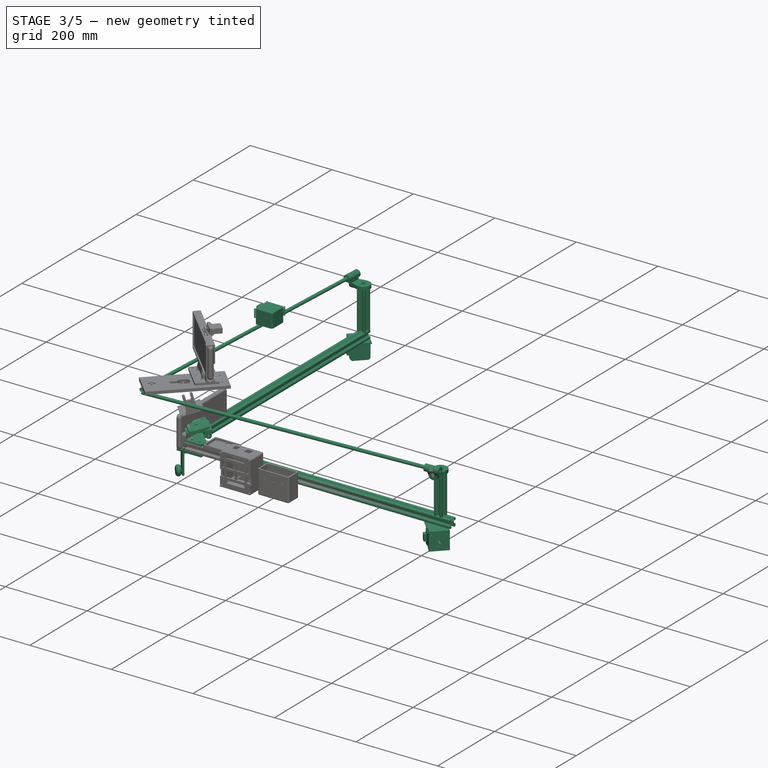
[diagram: stage 3 of 5 — iso view after this stage's code; geometry added in this stage tinted green]
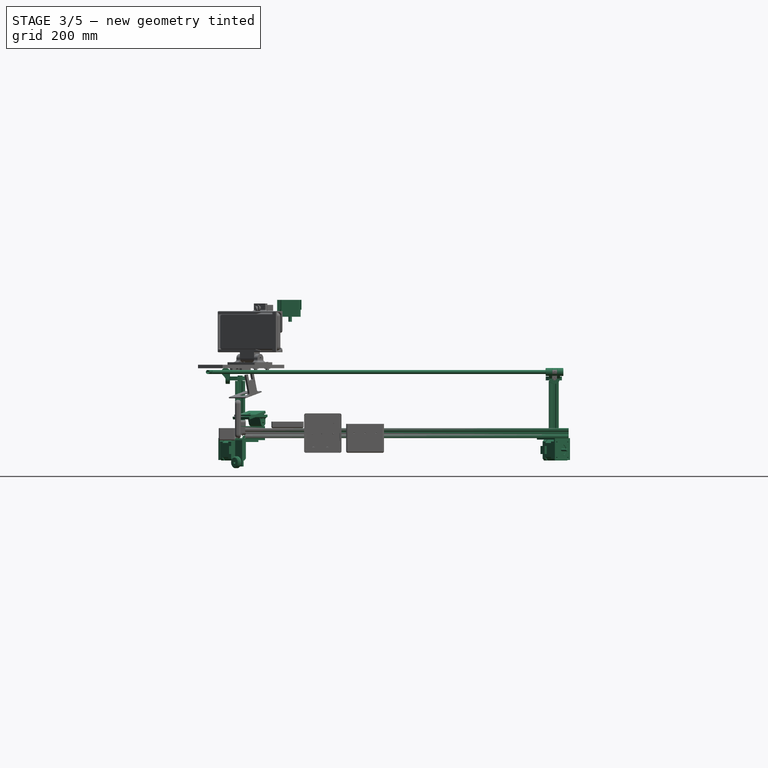
[diagram: stage 3 of 5 — front view after this stage's code; geometry added in this stage tinted green]
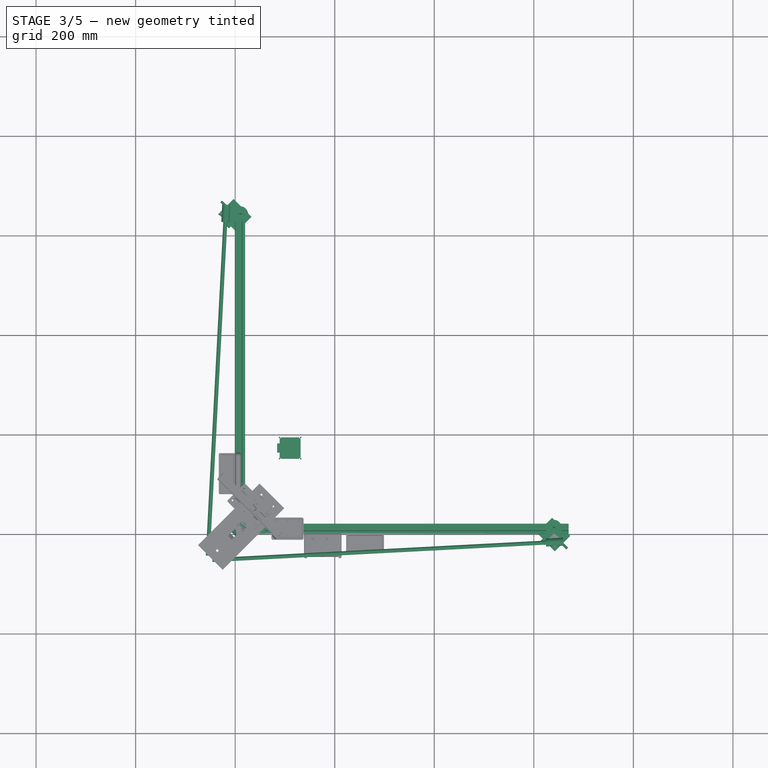
[diagram: stage 3 of 5 — top view after this stage's code; geometry added in this stage tinted green]
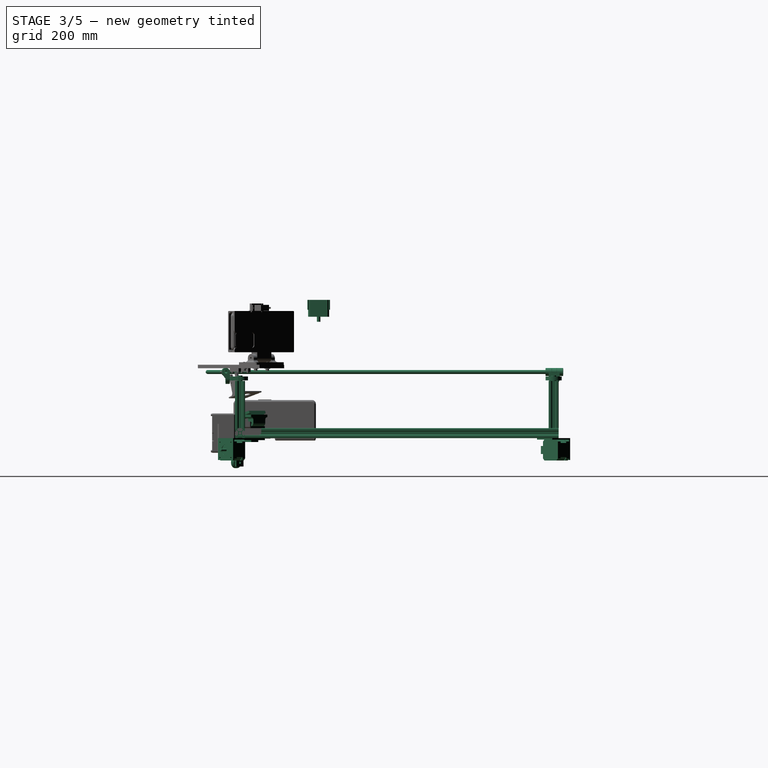
[diagram: stage 3 of 5 — right view after this stage's code; geometry added in this stage tinted green]
FEATURE [Sketcher::SketchObject] Sketch008
  FullyConstrained = true
  sketch-geometry (12):
    g0: LineSegment StartX=0 StartY=0 StartZ=0 EndX=60 EndY=0 EndZ=0
    g1: LineSegment StartX=60 StartY=0 StartZ=0 EndX=60 EndY=19 EndZ=0
    g2: LineSegment StartX=60 StartY=19 StartZ=0 EndX=19 EndY=60 EndZ=0
    g3: LineSegment StartX=19 StartY=60 StartZ=0 EndX=0 EndY=60 EndZ=0
    g4: LineSegment StartX=0 StartY=60 StartZ=0 EndX=0 EndY=0 EndZ=0
    g5: LineSegment StartX=10 StartY=0 StartZ=0 EndX=10 EndY=60 EndZ=0
    g6: LineSegment StartX=0 StartY=10 StartZ=0 EndX=60 EndY=10 EndZ=0
    g7: Circle CenterX=10 CenterY=10 CenterZ=0 NormalX=0 NormalY=0 NormalZ=1 AngleXU=0 Radius=2.75
    g8: Circle CenterX=30 CenterY=10 CenterZ=0 NormalX=0 NormalY=0 NormalZ=1 AngleXU=0 Radius=2.75
    g9: Circle CenterX=50 CenterY=10 CenterZ=0 NormalX=0 NormalY=0 NormalZ=1 AngleXU=0 Radius=2.75
    g10: Circle CenterX=10 CenterY=30 CenterZ=0 NormalX=0 NormalY=0 NormalZ=1 AngleXU=0 Radius=2.75
    g11: Circle CenterX=10 CenterY=50 CenterZ=0 NormalX=0 NormalY=0 NormalZ=1 AngleXU=0 Radius=2.75
  constraints (37):
    c: Coincident(g-1,g0)
    c: PointOnObject(g0,g-1)
    c: Coincident(g0,g1)
    c: Vertical(g1)
    c: Coincident(g1,g2)
    c: Coincident(g2,g3)
    c: PointOnObject(g3,g-2)
    c: Horizontal(g3)
    c: Coincident(g3,g4)
    c: Coincident(g4,g0)
    c: DistanceY(g4,g4) = 60
    c: DistanceX(g0,g0) = 60
    c: DistanceY(g1,g1) = 19
    c: DistanceX(g3,g3) = 19
    c: PointOnObject(g5,g0)
    c: PointOnObject(g5,g3)
    c: Vertical(g5)
    c: PointOnObject(g6,g4)
    c: PointOnObject(g6,g1)
    c: Horizontal(g6)
    c: DistanceY(g0,g6) = 10
    c: DistanceX(g3,g5) = 10
    c: PointOnObject(g7,g5)
    c: Radius(g7) = 2.75
    c: DistanceY(g0,g7) = 10
    c: PointOnObject(g8,g6)
    c: PointOnObject(g9,g6)
    c: PointOnObject(g10,g5)
    c: PointOnObject(g11,g5)
    c: Radius(g11) = 2.75
    c: Radius(g10) = 2.75
    c: Radius(g8) = 2.75
    c: Radius(g9) = 2.75
    c: DistanceX(g7,g8) = 20
    c: DistanceX(g8,g9) = 20
    c: DistanceY(g7,g10) = 20
    c: DistanceY(g10,g11) = 20
FEATURE [Part::Extrusion] Extrude008  label="corner-bottom-"
  Base = -> Sketch008
  Dir = (0,0,1)
  DirMode = 2
  FaceMakerClass = Part::FaceMakerBullseye
  LengthFwd = 4
  LengthRev = 0
  Placement = pos=(0,0,-4) rot=(0,0,1;0rad)
  Solid = true
  Symmetric = false
FEATURE [Sketcher::SketchObject] Sketch009
  FullyConstrained = true
  sketch-geometry (12):
    g0: LineSegment StartX=0 StartY=0 StartZ=0 EndX=60 EndY=0 EndZ=0
    g1: LineSegment StartX=60 StartY=0 StartZ=0 EndX=60 EndY=19 EndZ=0
    g2: LineSegment StartX=60 StartY=19 StartZ=0 EndX=19 EndY=60 EndZ=0
    g3: LineSegment StartX=19 StartY=60 StartZ=0 EndX=0 EndY=60 EndZ=0
    g4: LineSegment StartX=0 StartY=60 StartZ=0 EndX=0 EndY=0 EndZ=0
    g5: LineSegment StartX=10 StartY=0 StartZ=0 EndX=10 EndY=60 EndZ=0
    g6: LineSegment StartX=0 StartY=10 StartZ=0 EndX=60 EndY=10 EndZ=0
    g7: Circle CenterX=10 CenterY=10 CenterZ=0 NormalX=0 NormalY=0 NormalZ=1 AngleXU=0 Radius=2.75
    g8: Circle CenterX=30 CenterY=10 CenterZ=0 NormalX=0 NormalY=0 NormalZ=1 AngleXU=0 Radius=2.75
    g9: Circle CenterX=50 CenterY=10 CenterZ=0 NormalX=0 NormalY=0 NormalZ=1 AngleXU=0 Radius=2.75
    g10: Circle CenterX=10 CenterY=30 CenterZ=0 NormalX=0 NormalY=0 NormalZ=1 AngleXU=0 Radius=2.75
    g11: Circle CenterX=10 CenterY=50 CenterZ=0 NormalX=0 NormalY=0 NormalZ=1 AngleXU=0 Radius=2.75
  constraints (37):
    c: Coincident(g-1,g0)
    c: PointOnObject(g0,g-1)
    c: Coincident(g0,g1)
    c: Vertical(g1)
    c: Coincident(g1,g2)
    c: Coincident(g2,g3)
    c: PointOnObject(g3,g-2)
    c: Horizontal(g3)
    c: Coincident(g3,g4)
    c: Coincident(g4,g0)
    c: DistanceY(g4,g4) = 60
    c: DistanceX(g0,g0) = 60
    c: DistanceY(g1,g1) = 19
    c: DistanceX(g3,g3) = 19
    c: PointOnObject(g5,g0)
    c: PointOnObject(g5,g3)
    c: Vertical(g5)
    c: PointOnObject(g6,g4)
    c: PointOnObject(g6,g1)
    c: Horizontal(g6)
    c: DistanceY(g0,g6) = 10
    c: DistanceX(g3,g5) = 10
    c: PointOnObject(g7,g5)
    c: Radius(g7) = 2.75
    c: DistanceY(g0,g7) = 10
    c: PointOnObject(g8,g6)
    c: PointOnObject(g9,g6)
    c: PointOnObject(g10,g5)
    c: PointOnObject(g11,g5)
    c: Radius(g11) = 2.75
    c: Radius(g10) = 2.75
    c: Radius(g8) = 2.75
    c: Radius(g9) = 2.75
    c: DistanceX(g7,g8) = 20
    c: DistanceX(g8,g9) = 20
    c: DistanceY(g7,g10) = 20
    c: DistanceY(g10,g11) = 20
FEATURE [Part::Extrusion] Extrude009  label="corner-top-"
  Base = -> Sketch009
  Dir = (0,0,1)
  DirMode = 2
  FaceMakerClass = Part::FaceMakerBullseye
  LengthFwd = 4
  LengthRev = 0
  Placement = pos=(0,0,20) rot=(0,0,1;0rad)
  Solid = true
  Symmetric = false
FEATURE [Part::Feature] Fusion016002001  label="m6x9-037"
  Placement = pos=(10,50,16.5) rot=(0,0,1;0rad)
  shape: bbox 10 x 10 x 15 mm, 5 faces (baked)
FEATURE [Part::Feature] Fusion016002002  label="m6x9-038"
  Placement = pos=(30,10,16.5) rot=(0,0,1;0rad)
  shape: bbox 10 x 10 x 15 mm, 5 faces (baked)
FEATURE [Part::Feature] Fusion016002003  label="m6x9-039"
  Placement = pos=(30,10,1) rot=(1,0,0;3.14159rad)
  shape: bbox 10 x 10 x 15 mm, 5 faces (baked)
FEATURE [Part::Feature] Fusion016002004  label="m6x9-040"
  Placement = pos=(648.5,10,6) rot=(1,0,0;3.14159rad)
  shape: bbox 10 x 10 x 15 mm, 5 faces (baked)
FEATURE [Part::Feature] Fusion016002005  label="m6x9-041"
  Placement = pos=(10,50,3.5) rot=(1,0,0;3.14159rad)
  shape: bbox 10 x 10 x 15 mm, 5 faces (baked)
FEATURE [Part::Box] Box011  label="Cube011"
  AttacherType = Attacher::AttachEngine3D
  Height = 53
  Length = 46
  Width = 20
FEATURE [Part::Thickness] Thickness004
  Faces = -> Box011 [Face5,Face4,Face2,Face3]
  Intersection = false
  Join = 0
  Mode = 0
  Placement = pos=(14.0442,-0.0979797,-57) rot=(0,0,1;0.785398rad)
  SelfIntersection = false
  Value = -4
FEATURE [Part::Feature] Fusion016002006003  label="m5x7-003"
  Placement = pos=(14.5,14.5,1) rot=(1,0,0;3.14159rad)
  shape: bbox 8.5 x 8.5 x 13 mm, 5 faces (baked)
FEATURE [Part::Feature] Fusion016002006004  label="m5x7-004"
  Placement = pos=(32.5,32.5,1) rot=(1,0,0;3.14159rad)
  shape: bbox 8.5 x 8.5 x 13 mm, 5 faces (baked)
FEATURE [Part::Feature] Fusion016002006005  label="m5x7-005"
  Placement = pos=(32.5,32.5,1) rot=(1,0,0;3.14159rad)
  shape: bbox 8.5 x 8.5 x 13 mm, 5 faces (baked)
FEATURE [Part::Feature] Fusion016002006006  label="m5x7-006"
  Placement = pos=(14.5,14.5,1) rot=(1,0,0;3.14159rad)
  shape: bbox 8.5 x 8.5 x 13 mm, 5 faces (baked)
FEATURE [Part::Feature] Fusion016002006009  label="m5x7-008"
  Placement = pos=(32.5,32.5,1) rot=(1,0,0;3.14159rad)
  shape: bbox 8.5 x 8.5 x 13 mm, 5 faces (baked)
FEATURE [Part::Cut] Cut016  label="corner-bottom-001"
  Base = -> Extrude008
  Refine = true
  Tool = -> Fusion016002006009
FEATURE [Part::Feature] Fusion016002006011001  label="m5x20-lense-001"
  Placement = pos=(12.6299,12.6299,-49) rot=(0.707107,-0.707107,0;1.5708rad)
  shape: bbox 19.77 x 19.77 x 9.2 mm, 6 faces (baked)
FEATURE [Part::FeaturePython] Tube012  # WARN: FeaturePython — macro-defined, semantics opaque (R4)
  AttacherType = Attacher::AttachEngine3D
  Height = 11
  InnerRadius = 2.5
  OuterRadius = 4.5
  Placement = pos=(0,0,0) rot=(0,1,0;1.5708rad)
FEATURE [Part::FeaturePython] Tube013  # WARN: FeaturePython — macro-defined, semantics opaque (R4)
  AttacherType = Attacher::AttachEngine3D
  Height = 11
  InnerRadius = 6.5
  OuterRadius = 8
  Placement = pos=(0,0,0) rot=(0,1,0;1.5708rad)
FEATURE [Part::FeaturePython] Tube014  # WARN: FeaturePython — macro-defined, semantics opaque (R4)
  AttacherType = Attacher::AttachEngine3D
  Height = 10
  InnerRadius = 8
  OuterRadius = 12
  Placement = pos=(0,0,0) rot=(0,1,0;1.5708rad)
FEATURE [Part::Chamfer] Chamfer012
  Base = -> Tube014
  Edges = 2 edges r=2.5: [Edge1,Edge3]
  Placement = pos=(0,0,0.5) rot=(0,0,1;0rad)
FEATURE [Part::FeaturePython] Tube015  # WARN: FeaturePython — macro-defined, semantics opaque (R4)
  AttacherType = Attacher::AttachEngine3D
  Height = 11
  InnerRadius = 4.5
  OuterRadius = 6.5
  Placement = pos=(0,0,0) rot=(0,1,0;1.5708rad)
FEATURE [Part::MultiFuse] Fusion016002006011002  label="pu-wheel-center"
  Placement = pos=(-1.51219,-1.51219,-49) rot=(0,0,1;0.785398rad)
  Shapes = -> [Tube012,Tube013,Tube015,Chamfer012]
FEATURE [Part::Feature] Fusion016002006011003  label="m5x20-lense-002"
  Placement = pos=(11.68,11.68,-49) rot=(0.707107,-0.707107,0;1.5708rad)
  shape: bbox 19.77 x 19.77 x 9.2 mm, 6 faces (baked)
FEATURE [Part::MultiFuse] Fusion016002006007
  Refine = true
  Shapes = -> [Fusion016002006004,Fusion016002006003,Fusion016002006011003]
FEATURE [Part::Cut] Cut015  label="center-wheel-corner"
  Base = -> Thickness004
  Refine = true
  Tool = -> Fusion016002006007
FEATURE [Part::Box] Box012  label="Cube012"
  AttacherType = Attacher::AttachEngine3D
  Height = 42
  Length = 8
  Width = 42
FEATURE [Part::Box] Box013  label="Cube013"
  AttacherType = Attacher::AttachEngine3D
  Height = 42
  Length = 16
  Placement = pos=(8,0,0) rot=(0,0,1;0rad)
  Width = 42
FEATURE [Part::Box] Box014  label="Cube014"
  AttacherType = Attacher::AttachEngine3D
  Height = 42
  Length = 8
  Placement = pos=(24,0,0) rot=(0,0,1;0rad)
  Width = 42
FEATURE [Part::Box] Box015  label="Cube015"
  AttacherType = Attacher::AttachEngine3D
  Height = 6
  Length = 12
  Placement = pos=(20,13,42) rot=(0,0,1;0rad)
  Width = 16
FEATURE [Part::Chamfer] Chamfer014
  Base = -> Box012
  Edges = 4 edges r=4: [Edge9,Edge10,Edge11,Edge12]
FEATURE [Part::Chamfer] Chamfer015
  Base = -> Box014
  Edges = 4 edges r=4: [Edge9,Edge10,Edge11,Edge12]
FEATURE [Part::Chamfer] Chamfer016
  Base = -> Box013
  Edges = 4 edges r=7: [Edge9,Edge10,Edge11,Edge12]
FEATURE [Part::Cylinder] Cylinder071
  Angle = 360
  AttacherType = Attacher::AttachEngine3D
  FirstAngle = 0
  Height = 2
  Placement = pos=(0,21,21) rot=(0,-1,0;1.5708rad)
  Radius = 11
  SecondAngle = 0
FEATURE [Part::Chamfer] Chamfer017
  Base = -> Cylinder071
  Edges = 1 edges r=0.2: [Edge3]
FEATURE [Part::Cylinder] Cylinder072
  Angle = 360
  AttacherType = Attacher::AttachEngine3D
  FirstAngle = 0
  Height = 17
  Placement = pos=(0,21,21) rot=(0,-1,0;1.5708rad)
  Radius = 2.5
  SecondAngle = 0
FEATURE [Part::Chamfer] Chamfer013
  Base = -> Cylinder072
  Edges = 1 edges r=0.5: [Edge3]
FEATURE [Part::Cylinder] Cylinder073
  Angle = 360
  AttacherType = Attacher::AttachEngine3D
  FirstAngle = 0
  Height = 8
  Placement = pos=(8,36.5,5.5) rot=(0,-1,0;1.5708rad)
  Radius = 1.5
  SecondAngle = 0
FEATURE [Part::Cylinder] Cylinder074
  Angle = 360
  AttacherType = Attacher::AttachEngine3D
  FirstAngle = 0
  Height = 8
  Placement = pos=(8,5.5,5.5) rot=(0,-1,0;1.5708rad)
  Radius = 1.5
  SecondAngle = 0
FEATURE [Part::Cylinder] Cylinder075
  Angle = 360
  AttacherType = Attacher::AttachEngine3D
  FirstAngle = 0
  Height = 8
  Placement = pos=(8,36.5,36.5) rot=(0,-1,0;1.5708rad)
  Radius = 1.5
  SecondAngle = 0
FEATURE [Part::Cylinder] Cylinder076
  Angle = 360
  AttacherType = Attacher::AttachEngine3D
  FirstAngle = 0
  Height = 8
  Placement = pos=(8,5.5,36.5) rot=(0,-1,0;1.5708rad)
  Radius = 1.5
  SecondAngle = 0
FEATURE [Part::MultiFuse] Fusion016002006011004
  Refine = true
  Shapes = -> [Cylinder073,Cylinder075,Cylinder076,Cylinder074]
FEATURE [Part::Cut] Cut003002
  Base = -> Chamfer014
  Refine = true
  Tool = -> Fusion016002006011004
FEATURE [Part::MultiFuse] Fusion016002006011005  label="stepper-x-leg-1-"
  Placement = pos=(669.866,-2.37437,-3) rot=(0.281085,0.678598,-0.678598;3.68962rad)
  Shapes = -> [Chamfer013,Chamfer015,Chamfer016,Cut003002,Chamfer017,Box015]
FEATURE [Part::Box] Box016  label="Cube016"
  AttacherType = Attacher::AttachEngine3D
  Height = 42
  Length = 8
  Width = 42
FEATURE [Part::Box] Box017  label="Cube017"
  AttacherType = Attacher::AttachEngine3D
  Height = 42
  Length = 16
  Placement = pos=(8,0,0) rot=(0,0,1;0rad)
  Width = 42
FEATURE [Part::Box] Box018  label="Cube018"
  AttacherType = Attacher::AttachEngine3D
  Height = 42
  Length = 8
  Placement = pos=(24,0,0) rot=(0,0,1;0rad)
  Width = 42
FEATURE [Part::Box] Box019  label="Cube019"
  AttacherType = Attacher::AttachEngine3D
  Height = 6
  Length = 12
  Placement = pos=(20,13,42) rot=(0,0,1;0rad)
  Width = 16
FEATURE [Part::Chamfer] Chamfer019
  Base = -> Box016
  Edges = 4 edges r=4: [Edge9,Edge10,Edge11,Edge12]
FEATURE [Part::Chamfer] Chamfer020
  Base = -> Box018
  Edges = 4 edges r=4: [Edge9,Edge10,Edge11,Edge12]
FEATURE [Part::Chamfer] Chamfer021
  Base = -> Box017
  Edges = 4 edges r=7: [Edge9,Edge10,Edge11,Edge12]
FEATURE [Part::Cylinder] Cylinder077
  Angle = 360
  AttacherType = Attacher::AttachEngine3D
  FirstAngle = 0
  Height = 2
  Placement = pos=(0,21,21) rot=(0,-1,0;1.5708rad)
  Radius = 11
  SecondAngle = 0
FEATURE [Part::Chamfer] Chamfer022
  Base = -> Cylinder077
  Edges = 1 edges r=0.2: [Edge3]
FEATURE [Part::Cylinder] Cylinder078
  Angle = 360
  AttacherType = Attacher::AttachEngine3D
  FirstAngle = 0
  Height = 17
  Placement = pos=(0,21,21) rot=(0,-1,0;1.5708rad)
  Radius = 2.5
  SecondAngle = 0
FEATURE [Part::Chamfer] Chamfer018
  Base = -> Cylinder078
  Edges = 1 edges r=0.5: [Edge3]
FEATURE [Part::Cylinder] Cylinder079
  Angle = 360
  AttacherType = Attacher::AttachEngine3D
  FirstAngle = 0
  Height = 8
  Placement = pos=(8,36.5,5.5) rot=(0,-1,0;1.5708rad)
  Radius = 1.5
  SecondAngle = 0
FEATURE [Part::Cylinder] Cylinder080
  Angle = 360
  AttacherType = Attacher::AttachEngine3D
  FirstAngle = 0
  Height = 8
  Placement = pos=(8,5.5,5.5) rot=(0,-1,0;1.5708rad)
  Radius = 1.5
  SecondAngle = 0
FEATURE [Part::Cylinder] Cylinder081
  Angle = 360
  AttacherType = Attacher::AttachEngine3D
  FirstAngle = 0
  Height = 8
  Placement = pos=(8,36.5,36.5) rot=(0,-1,0;1.5708rad)
  Radius = 1.5
  SecondAngle = 0
FEATURE [Part::Cylinder] Cylinder082
  Angle = 360
  AttacherType = Attacher::AttachEngine3D
  FirstAngle = 0
  Height = 8
  Placement = pos=(8,5.5,36.5) rot=(0,-1,0;1.5708rad)
  Radius = 1.5
  SecondAngle = 0
FEATURE [Part::MultiFuse] Fusion016002006011006
  Refine = true
  Shapes = -> [Cylinder079,Cylinder081,Cylinder082,Cylinder080]
FEATURE [Part::Cut] Cut003003
  Base = -> Chamfer019
  Refine = true
  Tool = -> Fusion016002006011006
FEATURE [Part::MultiFuse] Fusion016002006011007  label="stepper-x-leg-2-"
  Placement = pos=(-1.16726,671.073,-45) rot=(0.862856,-0.357407,-0.357407;1.71777rad)
  Shapes = -> [Chamfer018,Chamfer020,Chamfer021,Cut003003,Chamfer022,Box019]
FEATURE [Part::Feature] Cut003005  label="stepper-bracket004"
  Placement = pos=(627,-28,-3) rot=(0.707107,0.707107,0;3.14159rad)
  shape: bbox 43 x 51 x 44 mm, 13 faces (baked)
FEATURE [Part::Feature] Cut003006  label="stepper-bracket005"
  Placement = pos=(-27.5,650.5,-3) rot=(1,0,0;3.14159rad)
  shape: bbox 51 x 43 x 44 mm, 13 faces (baked)
FEATURE [Part::Feature] Fusion016002006011008  label="m6x9-042"
  Placement = pos=(50,10,3.5) rot=(1,0,0;3.14159rad)
  shape: bbox 10 x 10 x 15 mm, 5 faces (baked)
FEATURE [Part::Feature] Fusion016002006011009  label="m6x9-043"
  Placement = pos=(10.5,629,6) rot=(1,0,0;3.14159rad)
  shape: bbox 10 x 10 x 15 mm, 5 faces (baked)
FEATURE [Part::Feature] Fusion016002006011010  label="m6x9-044"
  Placement = pos=(628.5,10,6) rot=(1,0,0;3.14159rad)
  shape: bbox 10 x 10 x 15 mm, 5 faces (baked)
FEATURE [Part::Feature] Fusion016002006011011  label="m6x9-045"
  Placement = pos=(10.5,629,6) rot=(1,0,0;3.14159rad)
  shape: bbox 10 x 10 x 15 mm, 5 faces (baked)
FEATURE [Part::Cut] Cut003007  label="stepper-bracket-leg-2-"
  Base = -> Cut003006
  Placement = pos=(-441.695,191.654,0) rot=(0,0,-1;0.785398rad)
  Refine = true
  Tool = -> Fusion016002006011009
FEATURE [Part::Cut] Cut003008  label="stepper-bracket-leg-1-"
  Base = -> Cut003005
  Placement = pos=(177.012,-455.63,0) rot=(0,0,1;0.785398rad)
  Refine = true
  Tool = -> Fusion016002004
FEATURE [Part::Box] Box029  label="Cube029"
  AttacherType = Attacher::AttachEngine3D
  Height = 18
  Length = 13
  Placement = pos=(51.5147,27.4853,24) rot=(0,0,1;0.785398rad)
  Width = 34
FEATURE [Part::Fillet] Fillet005
  Base = -> Box029
  Edges = 2 edges r=6.4: [Edge4,Edge8]
FEATURE [Part::Cylinder] Cylinder115
  Angle = 360
  AttacherType = Attacher::AttachEngine3D
  FirstAngle = 0
  Height = 58
  Placement = pos=(64.61,23.58,30) rot=(-0.707107,-0.707107,0;1.5708rad)
  Radius = 2
  SecondAngle = 0
FEATURE [Part::Cut] Cut003009013
  Base = -> Fillet005
  Refine = true
  Tool = -> Cylinder115
FEATURE [Part::Box] Box031  label="Cube031"
  AttacherType = Attacher::AttachEngine3D
  Height = 34
  Length = 42.25
  Placement = pos=(89.2432,146.782,243.756) rot=(0,0,1;0rad)
  Width = 42.25
FEATURE [Part::Box] Box032  label="Cube032"
  AttacherType = Attacher::AttachEngine3D
  Height = 5
  Length = 48.5
  Placement = pos=(65.8336,31.5511,42) rot=(0,0,1;2.35619rad)
  Width = 48.5
FEATURE [Part::Box] Box033  label="Cube033"
  AttacherType = Attacher::AttachEngine3D
  Height = 34
  Length = 5
  Placement = pos=(84.2432,158.907,243.756) rot=(0,0,1;0rad)
  Width = 18
FEATURE [Part::MultiFuse] Fusion016002006011016017003005003003005
  Refine = true
  Shapes = -> [Cut003009013,Box032]
FEATURE [Part::Fillet] Fillet008
  Base = -> Fusion016002006011016017003005003003005
  Edges = 7 edges: [Edge1 r=2,Edge3 r=2,Edge9 r=2,Edge12 r=5,Edge13 r=6.2,Edge14 r=5,Edge16 r=2]
FEATURE [Part::Feature] Fusion016002006011016017003005003003006006  label="m3x7-countersunk-005"
  Placement = pos=(16.6646,4.45387,38.5152) rot=(0.707107,-0.707107,0;0.261799rad)
  shape: bbox 5.734 x 5.734 x 9.31 mm, 4 faces (baked)
FEATURE [Part::Feature] Fusion016002006011016017003005003003006007  label="m3x7-countersunk-006"
  Placement = pos=(-7.73058,28.8491,38.5152) rot=(0.707107,-0.707107,0;0.261799rad)
  shape: bbox 5.734 x 5.734 x 9.31 mm, 4 faces (baked)
FEATURE [Part::Feature] Fusion016002006011016017003005003003006008  label="m3x7-countersunk-007"
  Placement = pos=(15.8334,52.413,47.4445) rot=(0.707107,-0.707107,0;0.261799rad)
  shape: bbox 5.734 x 5.734 x 9.31 mm, 4 faces (baked)
FEATURE [Part::Feature] Fusion016002006011016017003005003003006009  label="m3x7-countersunk-008"
  Placement = pos=(40.2285,28.0178,47.4445) rot=(0.707107,-0.707107,0;0.261799rad)
  shape: bbox 5.734 x 5.734 x 9.31 mm, 4 faces (baked)
FEATURE [Part::Cylinder] Cylinder131
  Angle = 360
  AttacherType = Attacher::AttachEngine3D
  FirstAngle = 0
  Height = 10
  Placement = pos=(31.5425,7.15496,38.5) rot=(0,0,1;0rad)
  Radius = 1.2
  SecondAngle = 0
FEATURE [Part::Cylinder] Cylinder132
  Angle = 360
  AttacherType = Attacher::AttachEngine3D
  FirstAngle = 0
  Height = 10
  Placement = pos=(55.94,31.55,38.5) rot=(0,0,1;0rad)
  Radius = 1.2
  SecondAngle = 0
FEATURE [Part::Cylinder] Cylinder133
  Angle = 360
  AttacherType = Attacher::AttachEngine3D
  FirstAngle = 0
  Height = 10
  Placement = pos=(31.5425,55.9453,38.5) rot=(0,0,1;0rad)
  Radius = 1.2
  SecondAngle = 0
FEATURE [Part::Cylinder] Cylinder134
  Angle = 360
  AttacherType = Attacher::AttachEngine3D
  FirstAngle = 0
  Height = 10
  Placement = pos=(7.14729,31.5501,38.5) rot=(0,0,1;0rad)
  Radius = 1.2
  SecondAngle = 0
FEATURE [Part::Chamfer] Chamfer028
  Base = -> Box031
  Edges = 4 edges r=3.3: [Edge1,Edge3,Edge5,Edge7]
FEATURE [Part::Feature] Tube020007004001  label="washer-m3-001"
  Placement = pos=(-9.46928,20.5949,82.6917) rot=(0.707107,-0.707107,0;0.261799rad)
  shape: bbox 7.065 x 7.065 x 2.778 mm, 4 faces (baked)
FEATURE [Part::Feature] Tube020007004002  label="washer-m3-002"
  Placement = pos=(20.5828,-9.45709,82.6917) rot=(0.707107,-0.707107,0;0.261799rad)
  shape: bbox 7.065 x 7.065 x 2.778 mm, 4 faces (baked)
FEATURE [Part::Feature] Tube020007004003  label="washer-m3-003"
  Placement = pos=(49.6108,19.5709,93.6915) rot=(0.707107,-0.707107,0;0.261799rad)
  shape: bbox 7.065 x 7.065 x 2.778 mm, 4 faces (baked)
FEATURE [Part::Feature] Tube020007004004  label="washer-m3-004"
  Placement = pos=(19.5588,49.623,93.6915) rot=(0.707107,-0.707107,0;0.261799rad)
  shape: bbox 7.065 x 7.065 x 2.778 mm, 4 faces (baked)
FEATURE [Part::Cylinder] Cylinder135
  Angle = 360
  AttacherType = Attacher::AttachEngine3D
  FirstAngle = 0
  Height = 20
  Placement = pos=(89.12,146.66,257.76) rot=(0,0,1;0rad)
  Radius = 1.5
  SecondAngle = 0
FEATURE [Part::Cylinder] Cylinder136
  Angle = 360
  AttacherType = Attacher::AttachEngine3D
  FirstAngle = 0
  Height = 20
  Placement = pos=(131.62,189.16,257.76) rot=(0,0,1;0rad)
  Radius = 1.5
  SecondAngle = 0
FEATURE [Part::Cylinder] Cylinder138
  Angle = 360
  AttacherType = Attacher::AttachEngine3D
  FirstAngle = 0
  Height = 20
  Placement = pos=(89.12,189.16,257.76) rot=(0,0,1;0rad)
  Radius = 1.5
  SecondAngle = 0
FEATURE [Part::Cylinder] Cylinder139
  Angle = 360
  AttacherType = Attacher::AttachEngine3D
  FirstAngle = 0
  Height = 20
  Placement = pos=(131.62,146.66,257.76) rot=(0,0,1;0rad)
  Radius = 1.5
  SecondAngle = 0
FEATURE [Part::Cylinder] Cylinder140
  Angle = 360
  AttacherType = Attacher::AttachEngine3D
  FirstAngle = 0
  Height = 10
  Placement = pos=(110.367,167.905,233.756) rot=(0,0,1;0rad)
  Radius = 3.5
  SecondAngle = 0
FEATURE [Part::Feature] Fusion016002006011016017003005003003006017003001  label="m8x9-001"
  Placement = pos=(10,10,20) rot=(0,0,1;0rad)
  shape: bbox 12.5 x 12.5 x 17 mm, 5 faces (baked)
FEATURE [Part::Feature] Fusion016002006011016017003005003003006017003002  label="m8x9-002"
  Placement = pos=(10,30,20) rot=(0,0,1;0rad)
  shape: bbox 12.5 x 12.5 x 17 mm, 5 faces (baked)
FEATURE [Part::Cylinder] Cylinder150
  Angle = 360
  AttacherType = Attacher::AttachEngine3D
  FirstAngle = 0
  Height = 5
  Placement = pos=(31.54,31.55,42) rot=(0,0,1;0rad)
  Radius = 3.5
  SecondAngle = 0
FEATURE [Part::MultiFuse] Fusion016002006011016017003005003003006010
  Refine = true
  Shapes = -> [Cylinder131,Cylinder132,Cylinder134,Cylinder133,Cylinder150]
FEATURE [Part::Cut] Cut003009018  label="stepper-z-hinge-small-top"
  Base = -> Fillet008
  Refine = true
  Tool = -> Fusion016002006011016017003005003003006010
FEATURE [Part::FeaturePython] Tube020007004012  # WARN: FeaturePython — macro-defined, semantics opaque (R4)
  AttacherType = Attacher::AttachEngine3D
  Height = 706
  InnerRadius = 3
  OuterRadius = 4
  Placement = pos=(658.997,-18.0431,132.8) rot=(0.597431,-0.567158,-0.566929;2.06422rad)
FEATURE [Part::FeaturePython] Tube020007004013  # WARN: FeaturePython — macro-defined, semantics opaque (R4)
  AttacherType = Attacher::AttachEngine3D
  Height = 706
  InnerRadius = 3
  OuterRadius = 4
  Placement = pos=(-18.0414,658.936,132.8) rot=(0.999315,-0.026168,-0.026168;1.57148rad)
FEATURE [Sketcher::SketchObject] Sketch018
  FullyConstrained = true
  sketch-geometry (76):
    g0: LineSegment StartX=0 StartY=0 StartZ=0 EndX=20 EndY=0 EndZ=0
    g1: LineSegment StartX=20 StartY=0 StartZ=0 EndX=20 EndY=20 EndZ=0
    g2: LineSegment StartX=20 StartY=20 StartZ=0 EndX=0 EndY=20 EndZ=0
    g3: LineSegment StartX=0 StartY=20 StartZ=0 EndX=0 EndY=0 EndZ=0
    g4: LineSegment StartX=0 StartY=20 StartZ=0 EndX=20 EndY=0 EndZ=0
    g5: LineSegment StartX=10 StartY=10 StartZ=0 EndX=20 EndY=20 EndZ=0
    g6: LineSegment StartX=0 StartY=0 StartZ=0 EndX=10 EndY=10 EndZ=0
    g7: Circle CenterX=10 CenterY=10 CenterZ=0 NormalX=0 NormalY=0 NormalZ=1 AngleXU=0 Radius=2.5
    g8: LineSegment StartX=1.8 StartY=18.2 StartZ=0 EndX=18.2 EndY=18.2 EndZ=0
    g9: LineSegment StartX=18.2 StartY=18.2 StartZ=0 EndX=18.2 EndY=1.8 EndZ=0
    g10: LineSegment StartX=18.2 StartY=1.8 StartZ=0 EndX=1.8 EndY=1.8 EndZ=0
    g11: LineSegment StartX=1.8 StartY=1.8 StartZ=0 EndX=1.8 EndY=18.2 EndZ=0
    g12: LineSegment StartX=9.46967 StartY=10.5303 StartZ=0 EndX=17.1393 EndY=18.2 EndZ=0
    g13: LineSegment StartX=9.46967 StartY=10.5303 StartZ=0 EndX=1.8 EndY=2.86066 EndZ=0
    g14: LineSegment StartX=10.5303 StartY=9.46967 StartZ=0 EndX=2.86066 EndY=1.8 EndZ=0
    g15: LineSegment StartX=10.5303 StartY=9.46967 StartZ=0 EndX=18.2 EndY=17.1393 EndZ=0
    g16: LineSegment StartX=1.8 StartY=17.1393 StartZ=0 EndX=9.46967 EndY=9.46967 EndZ=0
    g17: LineSegment StartX=9.46967 StartY=9.46967 StartZ=0 EndX=17.1393 EndY=1.8 EndZ=0
    g18: LineSegment StartX=18.2 StartY=2.86066 StartZ=0 EndX=10.5303 EndY=10.5303 EndZ=0
    g19: LineSegment StartX=10.5303 StartY=10.5303 StartZ=0 EndX=2.86066 EndY=18.2 EndZ=0
    g20: LineSegment StartX=7.06066 StartY=14 StartZ=0 EndX=12.9393 EndY=14 EndZ=0
    g21: LineSegment StartX=14 StartY=7.06066 StartZ=0 EndX=14 EndY=12.9393 EndZ=0
    g22: LineSegment StartX=12.9393 StartY=6 StartZ=0 EndX=7.06066 EndY=6 EndZ=0
    g23: LineSegment StartX=6 StartY=7.06066 StartZ=0 EndX=6 EndY=12.9393 EndZ=0
    g24: LineSegment StartX=15.4993 StartY=16.56 StartZ=0 EndX=15.4993 EndY=18.2 EndZ=0
    g25: LineSegment StartX=4.50066 StartY=16.56 StartZ=0 EndX=4.50066 EndY=18.2 EndZ=0
    g26: LineSegment StartX=1.8 StartY=15.4993 StartZ=0 EndX=3.44 EndY=15.4993 EndZ=0
    g27: LineSegment StartX=1.8 StartY=4.50066 StartZ=0 EndX=3.44 EndY=4.50066 EndZ=0
    g28: LineSegment StartX=4.50066 StartY=3.44 StartZ=0 EndX=4.50066 EndY=1.8 EndZ=0
    g29: LineSegment StartX=15.4993 StartY=1.8 StartZ=0 EndX=15.4993 EndY=3.44 EndZ=0
    g30: LineSegment StartX=16.56 StartY=4.50066 StartZ=0 EndX=18.2 EndY=4.50066 EndZ=0
    g31: LineSegment StartX=16.56 StartY=15.4993 StartZ=0 EndX=18.2 EndY=15.4993 EndZ=0
    g32: LineSegment StartX=15.4993 StartY=18.2 StartZ=0 EndX=15.4993 EndY=16.56 EndZ=0
    g33: LineSegment StartX=15.4993 StartY=16.56 StartZ=0 EndX=12.9393 EndY=14 EndZ=0
    g34: LineSegment StartX=12.9393 StartY=14 StartZ=0 EndX=7.06066 EndY=14 EndZ=0
    g35: LineSegment StartX=7.06066 StartY=14 StartZ=0 EndX=4.50066 EndY=16.56 EndZ=0
    g36: LineSegment StartX=4.50066 StartY=16.56 StartZ=0 EndX=4.50066 EndY=18.2 EndZ=0
    g37: LineSegment StartX=4.50066 StartY=18.2 StartZ=0 EndX=7 EndY=18.2 EndZ=0
    g38: LineSegment StartX=7 StartY=18.2 StartZ=0 EndX=5.2 EndY=20 EndZ=0
    g39: LineSegment StartX=5.2 StartY=20 StartZ=0 EndX=0 EndY=20 EndZ=0
    g40: LineSegment StartX=0 StartY=20 StartZ=0 EndX=0 EndY=14.8 EndZ=0
    g41: LineSegment StartX=0 StartY=14.8 StartZ=0 EndX=1.8 EndY=13 EndZ=0
    g42: LineSegment StartX=1.8 StartY=13 StartZ=0 EndX=1.8 EndY=15.4993 EndZ=0
    g43: LineSegment StartX=1.8 StartY=15.4993 StartZ=0 EndX=3.44 EndY=15.4993 EndZ=0
    g44: LineSegment StartX=3.44 StartY=15.4993 StartZ=0 EndX=6 EndY=12.9393 EndZ=0
    g45: LineSegment StartX=6 StartY=12.9393 StartZ=0 EndX=6 EndY=7.06066 EndZ=0
    g46: LineSegment StartX=6 StartY=7.06066 StartZ=0 EndX=3.44 EndY=4.50066 EndZ=0
    g47: LineSegment StartX=3.44 StartY=4.50066 StartZ=0 EndX=1.8 EndY=4.50066 EndZ=0
    g48: LineSegment StartX=1.8 StartY=4.50066 StartZ=0 EndX=1.8 EndY=7 EndZ=0
    g49: LineSegment StartX=1.8 StartY=7 StartZ=0 EndX=0 EndY=5.2 EndZ=0
    g50: LineSegment StartX=0 StartY=5.2 StartZ=0 EndX=0 EndY=0 EndZ=0
    g51: LineSegment StartX=0 StartY=0 StartZ=0 EndX=5.2 EndY=0 EndZ=0
    g52: LineSegment StartX=5.2 StartY=0 StartZ=0 EndX=7 EndY=1.8 EndZ=0
    g53: LineSegment StartX=7 StartY=1.8 StartZ=0 EndX=4.50066 EndY=1.8 EndZ=0
    g54: LineSegment StartX=4.50066 StartY=1.8 StartZ=0 EndX=4.50066 EndY=3.44 EndZ=0
    g55: LineSegment StartX=4.50066 StartY=3.44 StartZ=0 EndX=7.06066 EndY=6 EndZ=0
    g56: LineSegment StartX=7.06066 StartY=6 StartZ=0 EndX=12.9393 EndY=6 EndZ=0
    g57: LineSegment StartX=12.9393 StartY=6 StartZ=0 EndX=15.4993 EndY=3.44 EndZ=0
    g58: LineSegment StartX=15.4993 StartY=3.44 StartZ=0 EndX=15.4993 EndY=1.8 EndZ=0
    g59: LineSegment StartX=15.4993 StartY=1.8 StartZ=0 EndX=13 EndY=1.8 EndZ=0
    g60: LineSegment StartX=13 StartY=1.8 StartZ=0 EndX=14.8 EndY=-2e-16 EndZ=0
    g61: LineSegment StartX=14.8 StartY=-2e-16 StartZ=0 EndX=20 EndY=0 EndZ=0
    g62: LineSegment StartX=20 StartY=0 StartZ=0 EndX=20 EndY=5.2 EndZ=0
    g63: LineSegment StartX=20 StartY=5.2 StartZ=0 EndX=18.2 EndY=7 EndZ=0
    g64: LineSegment StartX=18.2 StartY=7 StartZ=0 EndX=18.2 EndY=4.50066 EndZ=0
    g65: LineSegment StartX=18.2 StartY=4.50066 StartZ=0 EndX=16.56 EndY=4.50066 EndZ=0
    g66: LineSegment StartX=16.56 StartY=4.50066 StartZ=0 EndX=14 EndY=7.06066 EndZ=0
    g67: LineSegment StartX=14 StartY=7.06066 StartZ=0 EndX=14 EndY=12.9393 EndZ=0
    g68: LineSegment StartX=14 StartY=12.9393 StartZ=0 EndX=16.56 EndY=15.4993 EndZ=0
    g69: LineSegment StartX=16.56 StartY=15.4993 StartZ=0 EndX=18.2 EndY=15.4993 EndZ=0
    g70: LineSegment StartX=18.2 StartY=15.4993 StartZ=0 EndX=18.2 EndY=13 EndZ=0
    g71: LineSegment StartX=18.2 StartY=13 StartZ=0 EndX=20 EndY=14.8 EndZ=0
    g72: LineSegment StartX=20 StartY=14.8 StartZ=0 EndX=20 EndY=20 EndZ=0
    g73: LineSegment StartX=20 StartY=20 StartZ=0 EndX=14.8 EndY=20 EndZ=0
    g74: LineSegment StartX=14.8 StartY=20 StartZ=0 EndX=13 EndY=18.2 EndZ=0
    g75: LineSegment StartX=13 StartY=18.2 StartZ=0 EndX=15.4993 EndY=18.2 EndZ=0
  constraints (212):
    c: Coincident(g0,g1)
    c: Coincident(g1,g2)
    c: Coincident(g2,g3)
    c: Coincident(g3,g0)
    c: Horizontal(g0)
    c: Horizontal(g2)
    c: Vertical(g1)
    c: Vertical(g3)
    c: Coincident(g0,g-1)
    c: DistanceY(g1,g1) = 20
    c: DistanceX(g2,g2) = 20
    c: Coincident(g4,g2)
    c: Coincident(g4,g0)
    c: PointOnObject(g5,g4)
    c: Coincident(g5,g1)
    c: Coincident(g6,g0)
    c: Coincident(g6,g5)
    c: Parallel(g6,g5)
    c: Coincident(g7,g5)
    c: Radius(g7) = 2.5
    c: PointOnObject(g8,g4)
    c: PointOnObject(g8,g5)
    c: Horizontal(g8)
    c: Coincident(g9,g8)
    c: PointOnObject(g9,g4)
    c: Vertical(g9)
    c: Coincident(g10,g9)
    c: PointOnObject(g10,g6)
    c: Horizontal(g10)
    c: Coincident(g11,g10)
    c: Coincident(g11,g8)
    c: DistanceY(g0,g9) = 1.8
    c: PointOnObject(g12,g4)
    c: PointOnObject(g12,g8)
    c: Coincident(g13,g12)
    c: PointOnObject(g13,g11)
    c: PointOnObject(g14,g4)
    c: PointOnObject(g14,g10)
    c: Coincident(g15,g14)
    c: PointOnObject(g15,g9)
    c: PointOnObject(g16,g11)
    c: PointOnObject(g16,g6)
    c: Coincident(g17,g16)
    c: PointOnObject(g17,g10)
    c: PointOnObject(g18,g9)
    c: PointOnObject(g18,g5)
    c: Coincident(g19,g18)
    c: PointOnObject(g19,g8)
    c: Parallel(g4,g19)
    c: Parallel(g19,g18)
    c: Parallel(g18,g17)
    c: Parallel(g17,g16)
    c: Parallel(g6,g13)
    c: Parallel(g13,g12)
    c: Parallel(g12,g15)
    c: Parallel(g15,g14)
    c: Distance(g7,g12) = 0.75
    c: Distance(g7,g14) = 0.75
    c: Distance(g7,g16) = 0.75
    c: Distance(g7,g18) = 0.75
    c: PointOnObject(g20,g19)
    c: PointOnObject(g20,g12)
    c: Horizontal(g20)
    c: PointOnObject(g21,g18)
    c: PointOnObject(g21,g15)
    c: Vertical(g21)
    c: PointOnObject(g22,g17)
    c: PointOnObject(g22,g14)
    c: Horizontal(g22)
    c: PointOnObject(g23,g13)
    c: PointOnObject(g23,g16)
    c: Vertical(g23)
    c: DistanceY(g22,g7) = 4
    c: DistanceY(g7,g20) = 4
    c: DistanceX(g23,g7) = 4
    c: DistanceX(g7,g21) = 4
    c: PointOnObject(g24,g12)
    c: PointOnObject(g24,g8)
    c: Vertical(g24)
    c: PointOnObject(g25,g19)
    c: PointOnObject(g25,g8)
    c: Vertical(g25)
    c: PointOnObject(g26,g11)
    c: PointOnObject(g26,g16)
    c: Horizontal(g26)
    c: PointOnObject(g27,g11)
    c: PointOnObject(g27,g13)
    c: Horizontal(g27)
    c: PointOnObject(g28,g14)
    c: PointOnObject(g28,g10)
    c: Vertical(g28)
    c: PointOnObject(g29,g10)
    c: PointOnObject(g29,g17)
    c: Vertical(g29)
    c: PointOnObject(g30,g18)
    c: PointOnObject(g30,g9)
    c: Horizontal(g30)
    c: PointOnObject(g31,g15)
    c: PointOnObject(g31,g9)
    c: Horizontal(g31)
    c: Equal(g24,g25)
    c: Equal(g25,g26)
    c: Equal(g26,g27)
    c: Equal(g27,g28)
    c: Equal(g28,g29)
    c: Equal(g29,g30)
    c: Equal(g30,g31)
    c: DistanceY(g24,g24) = 1.64
    c: Coincident(g24,g32)
    c: Coincident(g32,g24)
    c: Coincident(g32,g33)
    c: Coincident(g33,g20)
    c: Coincident(g33,g34)
    c: Coincident(g34,g20)
    c: Coincident(g34,g35)
    c: Coincident(g35,g25)
    c: Coincident(g35,g36)
    c: Coincident(g36,g25)
    c: Coincident(g36,g37)
    c: PointOnObject(g37,g8)
    c: Coincident(g37,g38)
    c: PointOnObject(g38,g2)
    c: Coincident(g38,g39)
    c: Coincident(g39,g2)
    c: Coincident(g39,g40)
    c: PointOnObject(g40,g3)
    c: Coincident(g40,g41)
    c: PointOnObject(g41,g11)
    c: Coincident(g41,g42)
    c: Coincident(g42,g26)
    c: Coincident(g42,g43)
    c: Coincident(g43,g26)
    c: Coincident(g43,g44)
    c: Coincident(g44,g23)
    c: Coincident(g44,g45)
    c: Coincident(g45,g23)
    c: Coincident(g45,g46)
    c: Coincident(g46,g27)
    c: Coincident(g46,g47)
    c: Coincident(g47,g27)
    c: Coincident(g47,g48)
    c: PointOnObject(g48,g11)
    c: Coincident(g48,g49)
    c: PointOnObject(g49,g3)
    c: Coincident(g49,g50)
    c: Coincident(g50,g0)
    c: Coincident(g50,g51)
    c: PointOnObject(g51,g0)
    c: Coincident(g51,g52)
    c: PointOnObject(g52,g10)
    c: Coincident(g52,g53)
    c: Coincident(g53,g28)
    c: Coincident(g53,g54)
    c: Coincident(g54,g28)
    c: Coincident(g54,g55)
    c: Coincident(g55,g22)
    c: Coincident(g55,g56)
    c: Coincident(g56,g22)
    c: Coincident(g56,g57)
    c: Coincident(g57,g29)
    c: Coincident(g57,g58)
    c: Coincident(g58,g29)
    c: Coincident(g58,g59)
    c: PointOnObject(g59,g10)
    c: Coincident(g59,g60)
    c: PointOnObject(g60,g0)
    c: Coincident(g60,g61)
    c: Coincident(g61,g0)
    c: Coincident(g61,g62)
    c: PointOnObject(g62,g1)
    c: Coincident(g62,g63)
    c: PointOnObject(g63,g9)
    c: Coincident(g63,g64)
    c: Coincident(g64,g30)
    c: Coincident(g64,g65)
    c: Coincident(g65,g30)
    c: Coincident(g65,g66)
    c: Coincident(g66,g21)
    c: Coincident(g66,g67)
    c: Coincident(g67,g21)
    c: Coincident(g67,g68)
    c: Coincident(g68,g31)
    c: Coincident(g68,g69)
    c: Coincident(g69,g31)
    c: Coincident(g69,g70)
    c: PointOnObject(g70,g9)
    c: Coincident(g70,g71)
    c: PointOnObject(g71,g1)
    c: Coincident(g71,g72)
    c: Coincident(g72,g1)
    c: Coincident(g72,g73)
    c: PointOnObject(g73,g2)
    c: Coincident(g73,g74)
    c: PointOnObject(g74,g8)
    c: Coincident(g74,g75)
    c: Coincident(g75,g32)
    c: Angle(g38,g37) = 0.785398
    c: Angle(g75,g74) = 0.785398
    c: Angle(g64,g63) = 0.785398
    c: Angle(g71,g70) = 0.785398
    c: Angle(g60,g59) = 0.785398
    c: Angle(g53,g52) = 0.785398
    c: Angle(g49,g48) = 0.785398
    c: Angle(g42,g41) = 0.785398
    c: DistanceY(g63,g70) = 6
    c: DistanceX(g52,g59) = 6
    c: DistanceY(g48,g41) = 6
    c: DistanceX(g37,g74) = 6
    c: DistanceY(g7,g70) = 3
    c: DistanceY(g7,g41) = 3
    c: DistanceX(g37,g7) = 3
    c: DistanceX(g52,g7) = 3
FEATURE [Part::Extrusion] Extrude018
  Base = -> Sketch018
  Dir = (0,0,1)
  DirMode = 2
  FaceMakerClass = Part::FaceMakerBullseye
  LengthFwd = 650
  LengthRev = 0
  Solid = true
  Symmetric = false
FEATURE [Part::Fillet] Fillet015
  Base = -> Extrude018
  Edges = 4 edges r=1.5: [Edge23,Edge56,Edge89,Edge122]
FEATURE [Part::Fillet] Fillet016  label="leg-1-20x20-"
  Base = -> Fillet015
  Edges = <same value as first occurrence — deduplicated (x5 in doc)>
  Placement = pos=(20,0,20) rot=(0,1,0;1.5708rad)
FEATURE [Sketcher::SketchObject] Sketch019
  FullyConstrained = true
  sketch-geometry (76):
    g0: LineSegment StartX=0 StartY=0 StartZ=0 EndX=20 EndY=0 EndZ=0
    g1: LineSegment StartX=20 StartY=0 StartZ=0 EndX=20 EndY=20 EndZ=0
    g2: LineSegment StartX=20 StartY=20 StartZ=0 EndX=0 EndY=20 EndZ=0
    g3: LineSegment StartX=0 StartY=20 StartZ=0 EndX=0 EndY=0 EndZ=0
    g4: LineSegment StartX=0 StartY=20 StartZ=0 EndX=20 EndY=0 EndZ=0
    g5: LineSegment StartX=10 StartY=10 StartZ=0 EndX=20 EndY=20 EndZ=0
    g6: LineSegment StartX=0 StartY=0 StartZ=0 EndX=10 EndY=10 EndZ=0
    g7: Circle CenterX=10 CenterY=10 CenterZ=0 NormalX=0 NormalY=0 NormalZ=1 AngleXU=0 Radius=2.5
    g8: LineSegment StartX=1.8 StartY=18.2 StartZ=0 EndX=18.2 EndY=18.2 EndZ=0
    g9: LineSegment StartX=18.2 StartY=18.2 StartZ=0 EndX=18.2 EndY=1.8 EndZ=0
    g10: LineSegment StartX=18.2 StartY=1.8 StartZ=0 EndX=1.8 EndY=1.8 EndZ=0
    g11: LineSegment StartX=1.8 StartY=1.8 StartZ=0 EndX=1.8 EndY=18.2 EndZ=0
    g12: LineSegment StartX=9.46967 StartY=10.5303 StartZ=0 EndX=17.1393 EndY=18.2 EndZ=0
    g13: LineSegment StartX=9.46967 StartY=10.5303 StartZ=0 EndX=1.8 EndY=2.86066 EndZ=0
    g14: LineSegment StartX=10.5303 StartY=9.46967 StartZ=0 EndX=2.86066 EndY=1.8 EndZ=0
    g15: LineSegment StartX=10.5303 StartY=9.46967 StartZ=0 EndX=18.2 EndY=17.1393 EndZ=0
    g16: LineSegment StartX=1.8 StartY=17.1393 StartZ=0 EndX=9.46967 EndY=9.46967 EndZ=0
    g17: LineSegment StartX=9.46967 StartY=9.46967 StartZ=0 EndX=17.1393 EndY=1.8 EndZ=0
    g18: LineSegment StartX=18.2 StartY=2.86066 StartZ=0 EndX=10.5303 EndY=10.5303 EndZ=0
    g19: LineSegment StartX=10.5303 StartY=10.5303 StartZ=0 EndX=2.86066 EndY=18.2 EndZ=0
    g20: LineSegment StartX=7.06066 StartY=14 StartZ=0 EndX=12.9393 EndY=14 EndZ=0
    g21: LineSegment StartX=14 StartY=7.06066 StartZ=0 EndX=14 EndY=12.9393 EndZ=0
    g22: LineSegment StartX=12.9393 StartY=6 StartZ=0 EndX=7.06066 EndY=6 EndZ=0
    g23: LineSegment StartX=6 StartY=7.06066 StartZ=0 EndX=6 EndY=12.9393 EndZ=0
    g24: LineSegment StartX=15.4993 StartY=16.56 StartZ=0 EndX=15.4993 EndY=18.2 EndZ=0
    g25: LineSegment StartX=4.50066 StartY=16.56 StartZ=0 EndX=4.50066 EndY=18.2 EndZ=0
    g26: LineSegment StartX=1.8 StartY=15.4993 StartZ=0 EndX=3.44 EndY=15.4993 EndZ=0
    g27: LineSegment StartX=1.8 StartY=4.50066 StartZ=0 EndX=3.44 EndY=4.50066 EndZ=0
    g28: LineSegment StartX=4.50066 StartY=3.44 StartZ=0 EndX=4.50066 EndY=1.8 EndZ=0
    g29: LineSegment StartX=15.4993 StartY=1.8 StartZ=0 EndX=15.4993 EndY=3.44 EndZ=0
    g30: LineSegment StartX=16.56 StartY=4.50066 StartZ=0 EndX=18.2 EndY=4.50066 EndZ=0
    g31: LineSegment StartX=16.56 StartY=15.4993 StartZ=0 EndX=18.2 EndY=15.4993 EndZ=0
    g32: LineSegment StartX=15.4993 StartY=18.2 StartZ=0 EndX=15.4993 EndY=16.56 EndZ=0
    g33: LineSegment StartX=15.4993 StartY=16.56 StartZ=0 EndX=12.9393 EndY=14 EndZ=0
    g34: LineSegment StartX=12.9393 StartY=14 StartZ=0 EndX=7.06066 EndY=14 EndZ=0
    g35: LineSegment StartX=7.06066 StartY=14 StartZ=0 EndX=4.50066 EndY=16.56 EndZ=0
    g36: LineSegment StartX=4.50066 StartY=16.56 StartZ=0 EndX=4.50066 EndY=18.2 EndZ=0
    g37: LineSegment StartX=4.50066 StartY=18.2 StartZ=0 EndX=7 EndY=18.2 EndZ=0
    g38: LineSegment StartX=7 StartY=18.2 StartZ=0 EndX=5.2 EndY=20 EndZ=0
    g39: LineSegment StartX=5.2 StartY=20 StartZ=0 EndX=0 EndY=20 EndZ=0
    g40: LineSegment StartX=0 StartY=20 StartZ=0 EndX=0 EndY=14.8 EndZ=0
    g41: LineSegment StartX=0 StartY=14.8 StartZ=0 EndX=1.8 EndY=13 EndZ=0
    g42: LineSegment StartX=1.8 StartY=13 StartZ=0 EndX=1.8 EndY=15.4993 EndZ=0
    g43: LineSegment StartX=1.8 StartY=15.4993 StartZ=0 EndX=3.44 EndY=15.4993 EndZ=0
    g44: LineSegment StartX=3.44 StartY=15.4993 StartZ=0 EndX=6 EndY=12.9393 EndZ=0
    g45: LineSegment StartX=6 StartY=12.9393 StartZ=0 EndX=6 EndY=7.06066 EndZ=0
    g46: LineSegment StartX=6 StartY=7.06066 StartZ=0 EndX=3.44 EndY=4.50066 EndZ=0
    g47: LineSegment StartX=3.44 StartY=4.50066 StartZ=0 EndX=1.8 EndY=4.50066 EndZ=0
    g48: LineSegment StartX=1.8 StartY=4.50066 StartZ=0 EndX=1.8 EndY=7 EndZ=0
    g49: LineSegment StartX=1.8 StartY=7 StartZ=0 EndX=0 EndY=5.2 EndZ=0
    g50: LineSegment StartX=0 StartY=5.2 StartZ=0 EndX=0 EndY=0 EndZ=0
    g51: LineSegment StartX=0 StartY=0 StartZ=0 EndX=5.2 EndY=0 EndZ=0
    g52: LineSegment StartX=5.2 StartY=0 StartZ=0 EndX=7 EndY=1.8 EndZ=0
    g53: LineSegment StartX=7 StartY=1.8 StartZ=0 EndX=4.50066 EndY=1.8 EndZ=0
    g54: LineSegment StartX=4.50066 StartY=1.8 StartZ=0 EndX=4.50066 EndY=3.44 EndZ=0
    g55: LineSegment StartX=4.50066 StartY=3.44 StartZ=0 EndX=7.06066 EndY=6 EndZ=0
    g56: LineSegment StartX=7.06066 StartY=6 StartZ=0 EndX=12.9393 EndY=6 EndZ=0
    g57: LineSegment StartX=12.9393 StartY=6 StartZ=0 EndX=15.4993 EndY=3.44 EndZ=0
    g58: LineSegment StartX=15.4993 StartY=3.44 StartZ=0 EndX=15.4993 EndY=1.8 EndZ=0
    g59: LineSegment StartX=15.4993 StartY=1.8 StartZ=0 EndX=13 EndY=1.8 EndZ=0
    g60: LineSegment StartX=13 StartY=1.8 StartZ=0 EndX=14.8 EndY=-2e-16 EndZ=0
    g61: LineSegment StartX=14.8 StartY=-2e-16 StartZ=0 EndX=20 EndY=0 EndZ=0
    g62: LineSegment StartX=20 StartY=0 StartZ=0 EndX=20 EndY=5.2 EndZ=0
    g63: LineSegment StartX=20 StartY=5.2 StartZ=0 EndX=18.2 EndY=7 EndZ=0
    g64: LineSegment StartX=18.2 StartY=7 StartZ=0 EndX=18.2 EndY=4.50066 EndZ=0
    g65: LineSegment StartX=18.2 StartY=4.50066 StartZ=0 EndX=16.56 EndY=4.50066 EndZ=0
    g66: LineSegment StartX=16.56 StartY=4.50066 StartZ=0 EndX=14 EndY=7.06066 EndZ=0
    g67: LineSegment StartX=14 StartY=7.06066 StartZ=0 EndX=14 EndY=12.9393 EndZ=0
    g68: LineSegment StartX=14 StartY=12.9393 StartZ=0 EndX=16.56 EndY=15.4993 EndZ=0
    g69: LineSegment StartX=16.56 StartY=15.4993 StartZ=0 EndX=18.2 EndY=15.4993 EndZ=0
    g70: LineSegment StartX=18.2 StartY=15.4993 StartZ=0 EndX=18.2 EndY=13 EndZ=0
    g71: LineSegment StartX=18.2 StartY=13 StartZ=0 EndX=20 EndY=14.8 EndZ=0
    g72: LineSegment StartX=20 StartY=14.8 StartZ=0 EndX=20 EndY=20 EndZ=0
    g73: LineSegment StartX=20 StartY=20 StartZ=0 EndX=14.8 EndY=20 EndZ=0
    g74: LineSegment StartX=14.8 StartY=20 StartZ=0 EndX=13 EndY=18.2 EndZ=0
    g75: LineSegment StartX=13 StartY=18.2 StartZ=0 EndX=15.4993 EndY=18.2 EndZ=0
  constraints (212):
    c: Coincident(g0,g1)
    c: Coincident(g1,g2)
    c: Coincident(g2,g3)
    c: Coincident(g3,g0)
    c: Horizontal(g0)
    c: Horizontal(g2)
    c: Vertical(g1)
    c: Vertical(g3)
    c: Coincident(g0,g-1)
    c: DistanceY(g1,g1) = 20
    c: DistanceX(g2,g2) = 20
    c: Coincident(g4,g2)
    c: Coincident(g4,g0)
    c: PointOnObject(g5,g4)
    c: Coincident(g5,g1)
    c: Coincident(g6,g0)
    c: Coincident(g6,g5)
    c: Parallel(g6,g5)
    c: Coincident(g7,g5)
    c: Radius(g7) = 2.5
    c: PointOnObject(g8,g4)
    c: PointOnObject(g8,g5)
    c: Horizontal(g8)
    c: Coincident(g9,g8)
    c: PointOnObject(g9,g4)
    c: Vertical(g9)
    c: Coincident(g10,g9)
    c: PointOnObject(g10,g6)
    c: Horizontal(g10)
    c: Coincident(g11,g10)
    c: Coincident(g11,g8)
    c: DistanceY(g0,g9) = 1.8
    c: PointOnObject(g12,g4)
    c: PointOnObject(g12,g8)
    c: Coincident(g13,g12)
    c: PointOnObject(g13,g11)
    c: PointOnObject(g14,g4)
    c: PointOnObject(g14,g10)
    c: Coincident(g15,g14)
    c: PointOnObject(g15,g9)
    c: PointOnObject(g16,g11)
    c: PointOnObject(g16,g6)
    c: Coincident(g17,g16)
    c: PointOnObject(g17,g10)
    c: PointOnObject(g18,g9)
    c: PointOnObject(g18,g5)
    c: Coincident(g19,g18)
    c: PointOnObject(g19,g8)
    c: Parallel(g4,g19)
    c: Parallel(g19,g18)
    c: Parallel(g18,g17)
    c: Parallel(g17,g16)
    c: Parallel(g6,g13)
    c: Parallel(g13,g12)
    c: Parallel(g12,g15)
    c: Parallel(g15,g14)
    c: Distance(g7,g12) = 0.75
    c: Distance(g7,g14) = 0.75
    c: Distance(g7,g16) = 0.75
    c: Distance(g7,g18) = 0.75
    c: PointOnObject(g20,g19)
    c: PointOnObject(g20,g12)
    c: Horizontal(g20)
    c: PointOnObject(g21,g18)
    c: PointOnObject(g21,g15)
    c: Vertical(g21)
    c: PointOnObject(g22,g17)
    c: PointOnObject(g22,g14)
    c: Horizontal(g22)
    c: PointOnObject(g23,g13)
    c: PointOnObject(g23,g16)
    c: Vertical(g23)
    c: DistanceY(g22,g7) = 4
    c: DistanceY(g7,g20) = 4
    c: DistanceX(g23,g7) = 4
    c: DistanceX(g7,g21) = 4
    c: PointOnObject(g24,g12)
    c: PointOnObject(g24,g8)
    c: Vertical(g24)
    c: PointOnObject(g25,g19)
    c: PointOnObject(g25,g8)
    c: Vertical(g25)
    c: PointOnObject(g26,g11)
    c: PointOnObject(g26,g16)
    c: Horizontal(g26)
    c: PointOnObject(g27,g11)
    c: PointOnObject(g27,g13)
    c: Horizontal(g27)
    c: PointOnObject(g28,g14)
    c: PointOnObject(g28,g10)
    c: Vertical(g28)
    c: PointOnObject(g29,g10)
    c: PointOnObject(g29,g17)
    c: Vertical(g29)
    c: PointOnObject(g30,g18)
    c: PointOnObject(g30,g9)
    c: Horizontal(g30)
    c: PointOnObject(g31,g15)
    c: PointOnObject(g31,g9)
    c: Horizontal(g31)
    c: Equal(g24,g25)
    c: Equal(g25,g26)
    c: Equal(g26,g27)
    c: Equal(g27,g28)
    c: Equal(g28,g29)
    c: Equal(g29,g30)
    c: Equal(g30,g31)
    c: DistanceY(g24,g24) = 1.64
    c: Coincident(g24,g32)
    c: Coincident(g32,g24)
    c: Coincident(g32,g33)
    c: Coincident(g33,g20)
    c: Coincident(g33,g34)
    c: Coincident(g34,g20)
    c: Coincident(g34,g35)
    c: Coincident(g35,g25)
    c: Coincident(g35,g36)
    c: Coincident(g36,g25)
    c: Coincident(g36,g37)
    c: PointOnObject(g37,g8)
    c: Coincident(g37,g38)
    c: PointOnObject(g38,g2)
    c: Coincident(g38,g39)
    c: Coincident(g39,g2)
    c: Coincident(g39,g40)
    c: PointOnObject(g40,g3)
    c: Coincident(g40,g41)
    c: PointOnObject(g41,g11)
    c: Coincident(g41,g42)
    c: Coincident(g42,g26)
    c: Coincident(g42,g43)
    c: Coincident(g43,g26)
    c: Coincident(g43,g44)
    c: Coincident(g44,g23)
    c: Coincident(g44,g45)
    c: Coincident(g45,g23)
    c: Coincident(g45,g46)
    c: Coincident(g46,g27)
    c: Coincident(g46,g47)
    c: Coincident(g47,g27)
    c: Coincident(g47,g48)
    c: PointOnObject(g48,g11)
    c: Coincident(g48,g49)
    c: PointOnObject(g49,g3)
    c: Coincident(g49,g50)
    c: Coincident(g50,g0)
    c: Coincident(g50,g51)
    c: PointOnObject(g51,g0)
    c: Coincident(g51,g52)
    c: PointOnObject(g52,g10)
    c: Coincident(g52,g53)
    c: Coincident(g53,g28)
    c: Coincident(g53,g54)
    c: Coincident(g54,g28)
    c: Coincident(g54,g55)
    c: Coincident(g55,g22)
    c: Coincident(g55,g56)
    c: Coincident(g56,g22)
    c: Coincident(g56,g57)
    c: Coincident(g57,g29)
    c: Coincident(g57,g58)
    c: Coincident(g58,g29)
    c: Coincident(g58,g59)
    c: PointOnObject(g59,g10)
    c: Coincident(g59,g60)
    c: PointOnObject(g60,g0)
    c: Coincident(g60,g61)
    c: Coincident(g61,g0)
    c: Coincident(g61,g62)
    c: PointOnObject(g62,g1)
    c: Coincident(g62,g63)
    c: PointOnObject(g63,g9)
    c: Coincident(g63,g64)
    c: Coincident(g64,g30)
    c: Coincident(g64,g65)
    c: Coincident(g65,g30)
    c: Coincident(g65,g66)
    c: Coincident(g66,g21)
    c: Coincident(g66,g67)
    c: Coincident(g67,g21)
    c: Coincident(g67,g68)
    c: Coincident(g68,g31)
    c: Coincident(g68,g69)
    c: Coincident(g69,g31)
    c: Coincident(g69,g70)
    c: PointOnObject(g70,g9)
    c: Coincident(g70,g71)
    c: PointOnObject(g71,g1)
    c: Coincident(g71,g72)
    c: Coincident(g72,g1)
    c: Coincident(g72,g73)
    c: PointOnObject(g73,g2)
    c: Coincident(g73,g74)
    c: PointOnObject(g74,g8)
    c: Coincident(g74,g75)
    c: Coincident(g75,g32)
    c: Angle(g38,g37) = 0.785398
    c: Angle(g75,g74) = 0.785398
    c: Angle(g64,g63) = 0.785398
    c: Angle(g71,g70) = 0.785398
    c: Angle(g60,g59) = 0.785398
    c: Angle(g53,g52) = 0.785398
    c: Angle(g49,g48) = 0.785398
    c: Angle(g42,g41) = 0.785398
    c: DistanceY(g63,g70) = 6
    c: DistanceX(g52,g59) = 6
    c: DistanceY(g48,g41) = 6
    c: DistanceX(g37,g74) = 6
    c: DistanceY(g7,g70) = 3
    c: DistanceY(g7,g41) = 3
    c: DistanceX(g37,g7) = 3
    c: DistanceX(g52,g7) = 3
FEATURE [Part::Extrusion] Extrude019
  Base = -> Sketch019
  Dir = (0,0,1)
  DirMode = 2
  FaceMakerClass = Part::FaceMakerBullseye
  LengthFwd = 650
  LengthRev = 0
  Solid = true
  Symmetric = false
FEATURE [Part::Fillet] Fillet017
  Base = -> Extrude019
  Edges = 4 edges r=1.5: [Edge23,Edge56,Edge89,Edge122]
FEATURE [Part::Fillet] Fillet018  label="leg-2-20x20-"
  Base = -> Fillet017
  Edges = <same value as first occurrence — deduplicated (x5 in doc)>
  Placement = pos=(0,0,20) rot=(-1,0,0;1.5708rad)
FEATURE [Part::Feature] Fusion016002006011016017003005003003006017003005  label="m6x039"
  Placement = pos=(-13,1.08e-13,20) rot=(0,0,1;0rad)
  shape: bbox 41 x 10 x 10 mm, 5 faces (baked)
FEATURE [Part::Cut] Cut003009023  label="leg-2-20x20-001"
  Base = -> Fillet018
  Refine = true
  Tool = -> Fusion016002006011016017003005003003006017003005
FEATURE [Sketcher::SketchObject] Sketch020
  FullyConstrained = true
  sketch-geometry (76):
    g0: LineSegment StartX=0 StartY=0 StartZ=0 EndX=20 EndY=0 EndZ=0
    g1: LineSegment StartX=20 StartY=0 StartZ=0 EndX=20 EndY=20 EndZ=0
    g2: LineSegment StartX=20 StartY=20 StartZ=0 EndX=0 EndY=20 EndZ=0
    g3: LineSegment StartX=0 StartY=20 StartZ=0 EndX=0 EndY=0 EndZ=0
    g4: LineSegment StartX=0 StartY=20 StartZ=0 EndX=20 EndY=0 EndZ=0
    g5: LineSegment StartX=10 StartY=10 StartZ=0 EndX=20 EndY=20 EndZ=0
    g6: LineSegment StartX=0 StartY=0 StartZ=0 EndX=10 EndY=10 EndZ=0
    g7: Circle CenterX=10 CenterY=10 CenterZ=0 NormalX=0 NormalY=0 NormalZ=1 AngleXU=0 Radius=2.5
    g8: LineSegment StartX=1.8 StartY=18.2 StartZ=0 EndX=18.2 EndY=18.2 EndZ=0
    g9: LineSegment StartX=18.2 StartY=18.2 StartZ=0 EndX=18.2 EndY=1.8 EndZ=0
    g10: LineSegment StartX=18.2 StartY=1.8 StartZ=0 EndX=1.8 EndY=1.8 EndZ=0
    g11: LineSegment StartX=1.8 StartY=1.8 StartZ=0 EndX=1.8 EndY=18.2 EndZ=0
    g12: LineSegment StartX=9.46967 StartY=10.5303 StartZ=0 EndX=17.1393 EndY=18.2 EndZ=0
    g13: LineSegment StartX=9.46967 StartY=10.5303 StartZ=0 EndX=1.8 EndY=2.86066 EndZ=0
    g14: LineSegment StartX=10.5303 StartY=9.46967 StartZ=0 EndX=2.86066 EndY=1.8 EndZ=0
    g15: LineSegment StartX=10.5303 StartY=9.46967 StartZ=0 EndX=18.2 EndY=17.1393 EndZ=0
    g16: LineSegment StartX=1.8 StartY=17.1393 StartZ=0 EndX=9.46967 EndY=9.46967 EndZ=0
    g17: LineSegment StartX=9.46967 StartY=9.46967 StartZ=0 EndX=17.1393 EndY=1.8 EndZ=0
    g18: LineSegment StartX=18.2 StartY=2.86066 StartZ=0 EndX=10.5303 EndY=10.5303 EndZ=0
    g19: LineSegment StartX=10.5303 StartY=10.5303 StartZ=0 EndX=2.86066 EndY=18.2 EndZ=0
    g20: LineSegment StartX=7.06066 StartY=14 StartZ=0 EndX=12.9393 EndY=14 EndZ=0
    g21: LineSegment StartX=14 StartY=7.06066 StartZ=0 EndX=14 EndY=12.9393 EndZ=0
    g22: LineSegment StartX=12.9393 StartY=6 StartZ=0 EndX=7.06066 EndY=6 EndZ=0
    g23: LineSegment StartX=6 StartY=7.06066 StartZ=0 EndX=6 EndY=12.9393 EndZ=0
    g24: LineSegment StartX=15.4993 StartY=16.56 StartZ=0 EndX=15.4993 EndY=18.2 EndZ=0
    g25: LineSegment StartX=4.50066 StartY=16.56 StartZ=0 EndX=4.50066 EndY=18.2 EndZ=0
    g26: LineSegment StartX=1.8 StartY=15.4993 StartZ=0 EndX=3.44 EndY=15.4993 EndZ=0
    g27: LineSegment StartX=1.8 StartY=4.50066 StartZ=0 EndX=3.44 EndY=4.50066 EndZ=0
    g28: LineSegment StartX=4.50066 StartY=3.44 StartZ=0 EndX=4.50066 EndY=1.8 EndZ=0
    g29: LineSegment StartX=15.4993 StartY=1.8 StartZ=0 EndX=15.4993 EndY=3.44 EndZ=0
    g30: LineSegment StartX=16.56 StartY=4.50066 StartZ=0 EndX=18.2 EndY=4.50066 EndZ=0
    g31: LineSegment StartX=16.56 StartY=15.4993 StartZ=0 EndX=18.2 EndY=15.4993 EndZ=0
    g32: LineSegment StartX=15.4993 StartY=18.2 StartZ=0 EndX=15.4993 EndY=16.56 EndZ=0
    g33: LineSegment StartX=15.4993 StartY=16.56 StartZ=0 EndX=12.9393 EndY=14 EndZ=0
    g34: LineSegment StartX=12.9393 StartY=14 StartZ=0 EndX=7.06066 EndY=14 EndZ=0
    g35: LineSegment StartX=7.06066 StartY=14 StartZ=0 EndX=4.50066 EndY=16.56 EndZ=0
    g36: LineSegment StartX=4.50066 StartY=16.56 StartZ=0 EndX=4.50066 EndY=18.2 EndZ=0
    g37: LineSegment StartX=4.50066 StartY=18.2 StartZ=0 EndX=7 EndY=18.2 EndZ=0
    g38: LineSegment StartX=7 StartY=18.2 StartZ=0 EndX=5.2 EndY=20 EndZ=0
    g39: LineSegment StartX=5.2 StartY=20 StartZ=0 EndX=0 EndY=20 EndZ=0
    g40: LineSegment StartX=0 StartY=20 StartZ=0 EndX=0 EndY=14.8 EndZ=0
    g41: LineSegment StartX=0 StartY=14.8 StartZ=0 EndX=1.8 EndY=13 EndZ=0
    g42: LineSegment StartX=1.8 StartY=13 StartZ=0 EndX=1.8 EndY=15.4993 EndZ=0
    g43: LineSegment StartX=1.8 StartY=15.4993 StartZ=0 EndX=3.44 EndY=15.4993 EndZ=0
    g44: LineSegment StartX=3.44 StartY=15.4993 StartZ=0 EndX=6 EndY=12.9393 EndZ=0
    g45: LineSegment StartX=6 StartY=12.9393 StartZ=0 EndX=6 EndY=7.06066 EndZ=0
    g46: LineSegment StartX=6 StartY=7.06066 StartZ=0 EndX=3.44 EndY=4.50066 EndZ=0
    g47: LineSegment StartX=3.44 StartY=4.50066 StartZ=0 EndX=1.8 EndY=4.50066 EndZ=0
    g48: LineSegment StartX=1.8 StartY=4.50066 StartZ=0 EndX=1.8 EndY=7 EndZ=0
    g49: LineSegment StartX=1.8 StartY=7 StartZ=0 EndX=0 EndY=5.2 EndZ=0
    g50: LineSegment StartX=0 StartY=5.2 StartZ=0 EndX=0 EndY=0 EndZ=0
    g51: LineSegment StartX=0 StartY=0 StartZ=0 EndX=5.2 EndY=0 EndZ=0
    g52: LineSegment StartX=5.2 StartY=0 StartZ=0 EndX=7 EndY=1.8 EndZ=0
    g53: LineSegment StartX=7 StartY=1.8 StartZ=0 EndX=4.50066 EndY=1.8 EndZ=0
    g54: LineSegment StartX=4.50066 StartY=1.8 StartZ=0 EndX=4.50066 EndY=3.44 EndZ=0
    g55: LineSegment StartX=4.50066 StartY=3.44 StartZ=0 EndX=7.06066 EndY=6 EndZ=0
    g56: LineSegment StartX=7.06066 StartY=6 StartZ=0 EndX=12.9393 EndY=6 EndZ=0
    g57: LineSegment StartX=12.9393 StartY=6 StartZ=0 EndX=15.4993 EndY=3.44 EndZ=0
    g58: LineSegment StartX=15.4993 StartY=3.44 StartZ=0 EndX=15.4993 EndY=1.8 EndZ=0
    g59: LineSegment StartX=15.4993 StartY=1.8 StartZ=0 EndX=13 EndY=1.8 EndZ=0
    g60: LineSegment StartX=13 StartY=1.8 StartZ=0 EndX=14.8 EndY=-2e-16 EndZ=0
    g61: LineSegment StartX=14.8 StartY=-2e-16 StartZ=0 EndX=20 EndY=0 EndZ=0
    g62: LineSegment StartX=20 StartY=0 StartZ=0 EndX=20 EndY=5.2 EndZ=0
    g63: LineSegment StartX=20 StartY=5.2 StartZ=0 EndX=18.2 EndY=7 EndZ=0
    g64: LineSegment StartX=18.2 StartY=7 StartZ=0 EndX=18.2 EndY=4.50066 EndZ=0
    g65: LineSegment StartX=18.2 StartY=4.50066 StartZ=0 EndX=16.56 EndY=4.50066 EndZ=0
    g66: LineSegment StartX=16.56 StartY=4.50066 StartZ=0 EndX=14 EndY=7.06066 EndZ=0
    g67: LineSegment StartX=14 StartY=7.06066 StartZ=0 EndX=14 EndY=12.9393 EndZ=0
    g68: LineSegment StartX=14 StartY=12.9393 StartZ=0 EndX=16.56 EndY=15.4993 EndZ=0
    g69: LineSegment StartX=16.56 StartY=15.4993 StartZ=0 EndX=18.2 EndY=15.4993 EndZ=0
    g70: LineSegment StartX=18.2 StartY=15.4993 StartZ=0 EndX=18.2 EndY=13 EndZ=0
    g71: LineSegment StartX=18.2 StartY=13 StartZ=0 EndX=20 EndY=14.8 EndZ=0
    g72: LineSegment StartX=20 StartY=14.8 StartZ=0 EndX=20 EndY=20 EndZ=0
    g73: LineSegment StartX=20 StartY=20 StartZ=0 EndX=14.8 EndY=20 EndZ=0
    g74: LineSegment StartX=14.8 StartY=20 StartZ=0 EndX=13 EndY=18.2 EndZ=0
    g75: LineSegment StartX=13 StartY=18.2 StartZ=0 EndX=15.4993 EndY=18.2 EndZ=0
  constraints (212):
    c: Coincident(g0,g1)
    c: Coincident(g1,g2)
    c: Coincident(g2,g3)
    c: Coincident(g3,g0)
    c: Horizontal(g0)
    c: Horizontal(g2)
    c: Vertical(g1)
    c: Vertical(g3)
    c: Coincident(g0,g-1)
    c: DistanceY(g1,g1) = 20
    c: DistanceX(g2,g2) = 20
    c: Coincident(g4,g2)
    c: Coincident(g4,g0)
    c: PointOnObject(g5,g4)
    c: Coincident(g5,g1)
    c: Coincident(g6,g0)
    c: Coincident(g6,g5)
    c: Parallel(g6,g5)
    c: Coincident(g7,g5)
    c: Radius(g7) = 2.5
    c: PointOnObject(g8,g4)
    c: PointOnObject(g8,g5)
    c: Horizontal(g8)
    c: Coincident(g9,g8)
    c: PointOnObject(g9,g4)
    c: Vertical(g9)
    c: Coincident(g10,g9)
    c: PointOnObject(g10,g6)
    c: Horizontal(g10)
    c: Coincident(g11,g10)
    c: Coincident(g11,g8)
    c: DistanceY(g0,g9) = 1.8
    c: PointOnObject(g12,g4)
    c: PointOnObject(g12,g8)
    c: Coincident(g13,g12)
    c: PointOnObject(g13,g11)
    c: PointOnObject(g14,g4)
    c: PointOnObject(g14,g10)
    c: Coincident(g15,g14)
    c: PointOnObject(g15,g9)
    c: PointOnObject(g16,g11)
    c: PointOnObject(g16,g6)
    c: Coincident(g17,g16)
    c: PointOnObject(g17,g10)
    c: PointOnObject(g18,g9)
    c: PointOnObject(g18,g5)
    c: Coincident(g19,g18)
    c: PointOnObject(g19,g8)
    c: Parallel(g4,g19)
    c: Parallel(g19,g18)
    c: Parallel(g18,g17)
    c: Parallel(g17,g16)
    c: Parallel(g6,g13)
    c: Parallel(g13,g12)
    c: Parallel(g12,g15)
    c: Parallel(g15,g14)
    c: Distance(g7,g12) = 0.75
    c: Distance(g7,g14) = 0.75
    c: Distance(g7,g16) = 0.75
    c: Distance(g7,g18) = 0.75
    c: PointOnObject(g20,g19)
    c: PointOnObject(g20,g12)
    c: Horizontal(g20)
    c: PointOnObject(g21,g18)
    c: PointOnObject(g21,g15)
    c: Vertical(g21)
    c: PointOnObject(g22,g17)
    c: PointOnObject(g22,g14)
    c: Horizontal(g22)
    c: PointOnObject(g23,g13)
    c: PointOnObject(g23,g16)
    c: Vertical(g23)
    c: DistanceY(g22,g7) = 4
    c: DistanceY(g7,g20) = 4
    c: DistanceX(g23,g7) = 4
    c: DistanceX(g7,g21) = 4
    c: PointOnObject(g24,g12)
    c: PointOnObject(g24,g8)
    c: Vertical(g24)
    c: PointOnObject(g25,g19)
    c: PointOnObject(g25,g8)
    c: Vertical(g25)
    c: PointOnObject(g26,g11)
    c: PointOnObject(g26,g16)
    c: Horizontal(g26)
    c: PointOnObject(g27,g11)
    c: PointOnObject(g27,g13)
    c: Horizontal(g27)
    c: PointOnObject(g28,g14)
    c: PointOnObject(g28,g10)
    c: Vertical(g28)
    c: PointOnObject(g29,g10)
    c: PointOnObject(g29,g17)
    c: Vertical(g29)
    c: PointOnObject(g30,g18)
    c: PointOnObject(g30,g9)
    c: Horizontal(g30)
    c: PointOnObject(g31,g15)
    c: PointOnObject(g31,g9)
    c: Horizontal(g31)
    c: Equal(g24,g25)
    c: Equal(g25,g26)
    c: Equal(g26,g27)
    c: Equal(g27,g28)
    c: Equal(g28,g29)
    c: Equal(g29,g30)
    c: Equal(g30,g31)
    c: DistanceY(g24,g24) = 1.64
    c: Coincident(g24,g32)
    c: Coincident(g32,g24)
    c: Coincident(g32,g33)
    c: Coincident(g33,g20)
    c: Coincident(g33,g34)
    c: Coincident(g34,g20)
    c: Coincident(g34,g35)
    c: Coincident(g35,g25)
    c: Coincident(g35,g36)
    c: Coincident(g36,g25)
    c: Coincident(g36,g37)
    c: PointOnObject(g37,g8)
    c: Coincident(g37,g38)
    c: PointOnObject(g38,g2)
    c: Coincident(g38,g39)
    c: Coincident(g39,g2)
    c: Coincident(g39,g40)
    c: PointOnObject(g40,g3)
    c: Coincident(g40,g41)
    c: PointOnObject(g41,g11)
    c: Coincident(g41,g42)
    c: Coincident(g42,g26)
    c: Coincident(g42,g43)
    c: Coincident(g43,g26)
    c: Coincident(g43,g44)
    c: Coincident(g44,g23)
    c: Coincident(g44,g45)
    c: Coincident(g45,g23)
    c: Coincident(g45,g46)
    c: Coincident(g46,g27)
    c: Coincident(g46,g47)
    c: Coincident(g47,g27)
    c: Coincident(g47,g48)
    c: PointOnObject(g48,g11)
    c: Coincident(g48,g49)
    c: PointOnObject(g49,g3)
    c: Coincident(g49,g50)
    c: Coincident(g50,g0)
    c: Coincident(g50,g51)
    c: PointOnObject(g51,g0)
    c: Coincident(g51,g52)
    c: PointOnObject(g52,g10)
    c: Coincident(g52,g53)
    c: Coincident(g53,g28)
    c: Coincident(g53,g54)
    c: Coincident(g54,g28)
    c: Coincident(g54,g55)
    c: Coincident(g55,g22)
    c: Coincident(g55,g56)
    c: Coincident(g56,g22)
    c: Coincident(g56,g57)
    c: Coincident(g57,g29)
    c: Coincident(g57,g58)
    c: Coincident(g58,g29)
    c: Coincident(g58,g59)
    c: PointOnObject(g59,g10)
    c: Coincident(g59,g60)
    c: PointOnObject(g60,g0)
    c: Coincident(g60,g61)
    c: Coincident(g61,g0)
    c: Coincident(g61,g62)
    c: PointOnObject(g62,g1)
    c: Coincident(g62,g63)
    c: PointOnObject(g63,g9)
    c: Coincident(g63,g64)
    c: Coincident(g64,g30)
    c: Coincident(g64,g65)
    c: Coincident(g65,g30)
    c: Coincident(g65,g66)
    c: Coincident(g66,g21)
    c: Coincident(g66,g67)
    c: Coincident(g67,g21)
    c: Coincident(g67,g68)
    c: Coincident(g68,g31)
    c: Coincident(g68,g69)
    c: Coincident(g69,g31)
    c: Coincident(g69,g70)
    c: PointOnObject(g70,g9)
    c: Coincident(g70,g71)
    c: PointOnObject(g71,g1)
    c: Coincident(g71,g72)
    c: Coincident(g72,g1)
    c: Coincident(g72,g73)
    c: PointOnObject(g73,g2)
    c: Coincident(g73,g74)
    c: PointOnObject(g74,g8)
    c: Coincident(g74,g75)
    c: Coincident(g75,g32)
    c: Angle(g38,g37) = 0.785398
    c: Angle(g75,g74) = 0.785398
    c: Angle(g64,g63) = 0.785398
    c: Angle(g71,g70) = 0.785398
    c: Angle(g60,g59) = 0.785398
    c: Angle(g53,g52) = 0.785398
    c: Angle(g49,g48) = 0.785398
    c: Angle(g42,g41) = 0.785398
    c: DistanceY(g63,g70) = 6
    c: DistanceX(g52,g59) = 6
    c: DistanceY(g48,g41) = 6
    c: DistanceX(g37,g74) = 6
    c: DistanceY(g7,g70) = 3
    c: DistanceY(g7,g41) = 3
    c: DistanceX(g37,g7) = 3
    c: DistanceX(g52,g7) = 3
FEATURE [Part::Extrusion] Extrude020
  Base = -> Sketch020
  Dir = (0,0,1)
  DirMode = 2
  FaceMakerClass = Part::FaceMakerBullseye
  LengthFwd = 95
  LengthRev = 0
  Solid = true
  Symmetric = false
FEATURE [Part::Fillet] Fillet019
  Base = -> Extrude020
  Edges = 4 edges r=1.5: [Edge23,Edge56,Edge89,Edge122]
FEATURE [Part::Fillet] Fillet020  label="pillar-leg-2-20x20-"
  Base = -> Fillet019
  Edges = <same value as first occurrence — deduplicated (x5 in doc)>
  Placement = pos=(0,630,20) rot=(0,0,1;0rad)
FEATURE [Sketcher::SketchObject] Sketch021
  FullyConstrained = true
  sketch-geometry (76):
    g0: LineSegment StartX=0 StartY=0 StartZ=0 EndX=20 EndY=0 EndZ=0
    g1: LineSegment StartX=20 StartY=0 StartZ=0 EndX=20 EndY=20 EndZ=0
    g2: LineSegment StartX=20 StartY=20 StartZ=0 EndX=0 EndY=20 EndZ=0
    g3: LineSegment StartX=0 StartY=20 StartZ=0 EndX=0 EndY=0 EndZ=0
    g4: LineSegment StartX=0 StartY=20 StartZ=0 EndX=20 EndY=0 EndZ=0
    g5: LineSegment StartX=10 StartY=10 StartZ=0 EndX=20 EndY=20 EndZ=0
    g6: LineSegment StartX=0 StartY=0 StartZ=0 EndX=10 EndY=10 EndZ=0
    g7: Circle CenterX=10 CenterY=10 CenterZ=0 NormalX=0 NormalY=0 NormalZ=1 AngleXU=0 Radius=2.5
    g8: LineSegment StartX=1.8 StartY=18.2 StartZ=0 EndX=18.2 EndY=18.2 EndZ=0
    g9: LineSegment StartX=18.2 StartY=18.2 StartZ=0 EndX=18.2 EndY=1.8 EndZ=0
    g10: LineSegment StartX=18.2 StartY=1.8 StartZ=0 EndX=1.8 EndY=1.8 EndZ=0
    g11: LineSegment StartX=1.8 StartY=1.8 StartZ=0 EndX=1.8 EndY=18.2 EndZ=0
    g12: LineSegment StartX=9.46967 StartY=10.5303 StartZ=0 EndX=17.1393 EndY=18.2 EndZ=0
    g13: LineSegment StartX=9.46967 StartY=10.5303 StartZ=0 EndX=1.8 EndY=2.86066 EndZ=0
    g14: LineSegment StartX=10.5303 StartY=9.46967 StartZ=0 EndX=2.86066 EndY=1.8 EndZ=0
    g15: LineSegment StartX=10.5303 StartY=9.46967 StartZ=0 EndX=18.2 EndY=17.1393 EndZ=0
    g16: LineSegment StartX=1.8 StartY=17.1393 StartZ=0 EndX=9.46967 EndY=9.46967 EndZ=0
    g17: LineSegment StartX=9.46967 StartY=9.46967 StartZ=0 EndX=17.1393 EndY=1.8 EndZ=0
    g18: LineSegment StartX=18.2 StartY=2.86066 StartZ=0 EndX=10.5303 EndY=10.5303 EndZ=0
    g19: LineSegment StartX=10.5303 StartY=10.5303 StartZ=0 EndX=2.86066 EndY=18.2 EndZ=0
    g20: LineSegment StartX=7.06066 StartY=14 StartZ=0 EndX=12.9393 EndY=14 EndZ=0
    g21: LineSegment StartX=14 StartY=7.06066 StartZ=0 EndX=14 EndY=12.9393 EndZ=0
    g22: LineSegment StartX=12.9393 StartY=6 StartZ=0 EndX=7.06066 EndY=6 EndZ=0
    g23: LineSegment StartX=6 StartY=7.06066 StartZ=0 EndX=6 EndY=12.9393 EndZ=0
    g24: LineSegment StartX=15.4993 StartY=16.56 StartZ=0 EndX=15.4993 EndY=18.2 EndZ=0
    g25: LineSegment StartX=4.50066 StartY=16.56 StartZ=0 EndX=4.50066 EndY=18.2 EndZ=0
    g26: LineSegment StartX=1.8 StartY=15.4993 StartZ=0 EndX=3.44 EndY=15.4993 EndZ=0
    g27: LineSegment StartX=1.8 StartY=4.50066 StartZ=0 EndX=3.44 EndY=4.50066 EndZ=0
    g28: LineSegment StartX=4.50066 StartY=3.44 StartZ=0 EndX=4.50066 EndY=1.8 EndZ=0
    g29: LineSegment StartX=15.4993 StartY=1.8 StartZ=0 EndX=15.4993 EndY=3.44 EndZ=0
    g30: LineSegment StartX=16.56 StartY=4.50066 StartZ=0 EndX=18.2 EndY=4.50066 EndZ=0
    g31: LineSegment StartX=16.56 StartY=15.4993 StartZ=0 EndX=18.2 EndY=15.4993 EndZ=0
    g32: LineSegment StartX=15.4993 StartY=18.2 StartZ=0 EndX=15.4993 EndY=16.56 EndZ=0
    g33: LineSegment StartX=15.4993 StartY=16.56 StartZ=0 EndX=12.9393 EndY=14 EndZ=0
    g34: LineSegment StartX=12.9393 StartY=14 StartZ=0 EndX=7.06066 EndY=14 EndZ=0
    g35: LineSegment StartX=7.06066 StartY=14 StartZ=0 EndX=4.50066 EndY=16.56 EndZ=0
    g36: LineSegment StartX=4.50066 StartY=16.56 StartZ=0 EndX=4.50066 EndY=18.2 EndZ=0
    g37: LineSegment StartX=4.50066 StartY=18.2 StartZ=0 EndX=7 EndY=18.2 EndZ=0
    g38: LineSegment StartX=7 StartY=18.2 StartZ=0 EndX=5.2 EndY=20 EndZ=0
    g39: LineSegment StartX=5.2 StartY=20 StartZ=0 EndX=0 EndY=20 EndZ=0
    g40: LineSegment StartX=0 StartY=20 StartZ=0 EndX=0 EndY=14.8 EndZ=0
    g41: LineSegment StartX=0 StartY=14.8 StartZ=0 EndX=1.8 EndY=13 EndZ=0
    g42: LineSegment StartX=1.8 StartY=13 StartZ=0 EndX=1.8 EndY=15.4993 EndZ=0
    g43: LineSegment StartX=1.8 StartY=15.4993 StartZ=0 EndX=3.44 EndY=15.4993 EndZ=0
    g44: LineSegment StartX=3.44 StartY=15.4993 StartZ=0 EndX=6 EndY=12.9393 EndZ=0
    g45: LineSegment StartX=6 StartY=12.9393 StartZ=0 EndX=6 EndY=7.06066 EndZ=0
    g46: LineSegment StartX=6 StartY=7.06066 StartZ=0 EndX=3.44 EndY=4.50066 EndZ=0
    g47: LineSegment StartX=3.44 StartY=4.50066 StartZ=0 EndX=1.8 EndY=4.50066 EndZ=0
    g48: LineSegment StartX=1.8 StartY=4.50066 StartZ=0 EndX=1.8 EndY=7 EndZ=0
    g49: LineSegment StartX=1.8 StartY=7 StartZ=0 EndX=0 EndY=5.2 EndZ=0
    g50: LineSegment StartX=0 StartY=5.2 StartZ=0 EndX=0 EndY=0 EndZ=0
    g51: LineSegment StartX=0 StartY=0 StartZ=0 EndX=5.2 EndY=0 EndZ=0
    g52: LineSegment StartX=5.2 StartY=0 StartZ=0 EndX=7 EndY=1.8 EndZ=0
    g53: LineSegment StartX=7 StartY=1.8 StartZ=0 EndX=4.50066 EndY=1.8 EndZ=0
    g54: LineSegment StartX=4.50066 StartY=1.8 StartZ=0 EndX=4.50066 EndY=3.44 EndZ=0
    g55: LineSegment StartX=4.50066 StartY=3.44 StartZ=0 EndX=7.06066 EndY=6 EndZ=0
    g56: LineSegment StartX=7.06066 StartY=6 StartZ=0 EndX=12.9393 EndY=6 EndZ=0
    g57: LineSegment StartX=12.9393 StartY=6 StartZ=0 EndX=15.4993 EndY=3.44 EndZ=0
    g58: LineSegment StartX=15.4993 StartY=3.44 StartZ=0 EndX=15.4993 EndY=1.8 EndZ=0
    g59: LineSegment StartX=15.4993 StartY=1.8 StartZ=0 EndX=13 EndY=1.8 EndZ=0
    g60: LineSegment StartX=13 StartY=1.8 StartZ=0 EndX=14.8 EndY=-2e-16 EndZ=0
    g61: LineSegment StartX=14.8 StartY=-2e-16 StartZ=0 EndX=20 EndY=0 EndZ=0
    g62: LineSegment StartX=20 StartY=0 StartZ=0 EndX=20 EndY=5.2 EndZ=0
    g63: LineSegment StartX=20 StartY=5.2 StartZ=0 EndX=18.2 EndY=7 EndZ=0
    g64: LineSegment StartX=18.2 StartY=7 StartZ=0 EndX=18.2 EndY=4.50066 EndZ=0
    g65: LineSegment StartX=18.2 StartY=4.50066 StartZ=0 EndX=16.56 EndY=4.50066 EndZ=0
    g66: LineSegment StartX=16.56 StartY=4.50066 StartZ=0 EndX=14 EndY=7.06066 EndZ=0
    g67: LineSegment StartX=14 StartY=7.06066 StartZ=0 EndX=14 EndY=12.9393 EndZ=0
    g68: LineSegment StartX=14 StartY=12.9393 StartZ=0 EndX=16.56 EndY=15.4993 EndZ=0
    g69: LineSegment StartX=16.56 StartY=15.4993 StartZ=0 EndX=18.2 EndY=15.4993 EndZ=0
    g70: LineSegment StartX=18.2 StartY=15.4993 StartZ=0 EndX=18.2 EndY=13 EndZ=0
    g71: LineSegment StartX=18.2 StartY=13 StartZ=0 EndX=20 EndY=14.8 EndZ=0
    g72: LineSegment StartX=20 StartY=14.8 StartZ=0 EndX=20 EndY=20 EndZ=0
    g73: LineSegment StartX=20 StartY=20 StartZ=0 EndX=14.8 EndY=20 EndZ=0
    g74: LineSegment StartX=14.8 StartY=20 StartZ=0 EndX=13 EndY=18.2 EndZ=0
    g75: LineSegment StartX=13 StartY=18.2 StartZ=0 EndX=15.4993 EndY=18.2 EndZ=0
  constraints (212):
    c: Coincident(g0,g1)
    c: Coincident(g1,g2)
    c: Coincident(g2,g3)
    c: Coincident(g3,g0)
    c: Horizontal(g0)
    c: Horizontal(g2)
    c: Vertical(g1)
    c: Vertical(g3)
    c: Coincident(g0,g-1)
    c: DistanceY(g1,g1) = 20
    c: DistanceX(g2,g2) = 20
    c: Coincident(g4,g2)
    c: Coincident(g4,g0)
    c: PointOnObject(g5,g4)
    c: Coincident(g5,g1)
    c: Coincident(g6,g0)
    c: Coincident(g6,g5)
    c: Parallel(g6,g5)
    c: Coincident(g7,g5)
    c: Radius(g7) = 2.5
    c: PointOnObject(g8,g4)
    c: PointOnObject(g8,g5)
    c: Horizontal(g8)
    c: Coincident(g9,g8)
    c: PointOnObject(g9,g4)
    c: Vertical(g9)
    c: Coincident(g10,g9)
    c: PointOnObject(g10,g6)
    c: Horizontal(g10)
    c: Coincident(g11,g10)
    c: Coincident(g11,g8)
    c: DistanceY(g0,g9) = 1.8
    c: PointOnObject(g12,g4)
    c: PointOnObject(g12,g8)
    c: Coincident(g13,g12)
    c: PointOnObject(g13,g11)
    c: PointOnObject(g14,g4)
    c: PointOnObject(g14,g10)
    c: Coincident(g15,g14)
    c: PointOnObject(g15,g9)
    c: PointOnObject(g16,g11)
    c: PointOnObject(g16,g6)
    c: Coincident(g17,g16)
    c: PointOnObject(g17,g10)
    c: PointOnObject(g18,g9)
    c: PointOnObject(g18,g5)
    c: Coincident(g19,g18)
    c: PointOnObject(g19,g8)
    c: Parallel(g4,g19)
    c: Parallel(g19,g18)
    c: Parallel(g18,g17)
    c: Parallel(g17,g16)
    c: Parallel(g6,g13)
    c: Parallel(g13,g12)
    c: Parallel(g12,g15)
    c: Parallel(g15,g14)
    c: Distance(g7,g12) = 0.75
    c: Distance(g7,g14) = 0.75
    c: Distance(g7,g16) = 0.75
    c: Distance(g7,g18) = 0.75
    c: PointOnObject(g20,g19)
    c: PointOnObject(g20,g12)
    c: Horizontal(g20)
    c: PointOnObject(g21,g18)
    c: PointOnObject(g21,g15)
    c: Vertical(g21)
    c: PointOnObject(g22,g17)
    c: PointOnObject(g22,g14)
    c: Horizontal(g22)
    c: PointOnObject(g23,g13)
    c: PointOnObject(g23,g16)
    c: Vertical(g23)
    c: DistanceY(g22,g7) = 4
    c: DistanceY(g7,g20) = 4
    c: DistanceX(g23,g7) = 4
    c: DistanceX(g7,g21) = 4
    c: PointOnObject(g24,g12)
    c: PointOnObject(g24,g8)
    c: Vertical(g24)
    c: PointOnObject(g25,g19)
    c: PointOnObject(g25,g8)
    c: Vertical(g25)
    c: PointOnObject(g26,g11)
    c: PointOnObject(g26,g16)
    c: Horizontal(g26)
    c: PointOnObject(g27,g11)
    c: PointOnObject(g27,g13)
    c: Horizontal(g27)
    c: PointOnObject(g28,g14)
    c: PointOnObject(g28,g10)
    c: Vertical(g28)
    c: PointOnObject(g29,g10)
    c: PointOnObject(g29,g17)
    c: Vertical(g29)
    c: PointOnObject(g30,g18)
    c: PointOnObject(g30,g9)
    c: Horizontal(g30)
    c: PointOnObject(g31,g15)
    c: PointOnObject(g31,g9)
    c: Horizontal(g31)
    c: Equal(g24,g25)
    c: Equal(g25,g26)
    c: Equal(g26,g27)
    c: Equal(g27,g28)
    c: Equal(g28,g29)
    c: Equal(g29,g30)
    c: Equal(g30,g31)
    c: DistanceY(g24,g24) = 1.64
    c: Coincident(g24,g32)
    c: Coincident(g32,g24)
    c: Coincident(g32,g33)
    c: Coincident(g33,g20)
    c: Coincident(g33,g34)
    c: Coincident(g34,g20)
    c: Coincident(g34,g35)
    c: Coincident(g35,g25)
    c: Coincident(g35,g36)
    c: Coincident(g36,g25)
    c: Coincident(g36,g37)
    c: PointOnObject(g37,g8)
    c: Coincident(g37,g38)
    c: PointOnObject(g38,g2)
    c: Coincident(g38,g39)
    c: Coincident(g39,g2)
    c: Coincident(g39,g40)
    c: PointOnObject(g40,g3)
    c: Coincident(g40,g41)
    c: PointOnObject(g41,g11)
    c: Coincident(g41,g42)
    c: Coincident(g42,g26)
    c: Coincident(g42,g43)
    c: Coincident(g43,g26)
    c: Coincident(g43,g44)
    c: Coincident(g44,g23)
    c: Coincident(g44,g45)
    c: Coincident(g45,g23)
    c: Coincident(g45,g46)
    c: Coincident(g46,g27)
    c: Coincident(g46,g47)
    c: Coincident(g47,g27)
    c: Coincident(g47,g48)
    c: PointOnObject(g48,g11)
    c: Coincident(g48,g49)
    c: PointOnObject(g49,g3)
    c: Coincident(g49,g50)
    c: Coincident(g50,g0)
    c: Coincident(g50,g51)
    c: PointOnObject(g51,g0)
    c: Coincident(g51,g52)
    c: PointOnObject(g52,g10)
    c: Coincident(g52,g53)
    c: Coincident(g53,g28)
    c: Coincident(g53,g54)
    c: Coincident(g54,g28)
    c: Coincident(g54,g55)
    c: Coincident(g55,g22)
    c: Coincident(g55,g56)
    c: Coincident(g56,g22)
    c: Coincident(g56,g57)
    c: Coincident(g57,g29)
    c: Coincident(g57,g58)
    c: Coincident(g58,g29)
    c: Coincident(g58,g59)
    c: PointOnObject(g59,g10)
    c: Coincident(g59,g60)
    c: PointOnObject(g60,g0)
    c: Coincident(g60,g61)
    c: Coincident(g61,g0)
    c: Coincident(g61,g62)
    c: PointOnObject(g62,g1)
    c: Coincident(g62,g63)
    c: PointOnObject(g63,g9)
    c: Coincident(g63,g64)
    c: Coincident(g64,g30)
    c: Coincident(g64,g65)
    c: Coincident(g65,g30)
    c: Coincident(g65,g66)
    c: Coincident(g66,g21)
    c: Coincident(g66,g67)
    c: Coincident(g67,g21)
    c: Coincident(g67,g68)
    c: Coincident(g68,g31)
    c: Coincident(g68,g69)
    c: Coincident(g69,g31)
    c: Coincident(g69,g70)
    c: PointOnObject(g70,g9)
    c: Coincident(g70,g71)
    c: PointOnObject(g71,g1)
    c: Coincident(g71,g72)
    c: Coincident(g72,g1)
    c: Coincident(g72,g73)
    c: PointOnObject(g73,g2)
    c: Coincident(g73,g74)
    c: PointOnObject(g74,g8)
    c: Coincident(g74,g75)
    c: Coincident(g75,g32)
    c: Angle(g38,g37) = 0.785398
    c: Angle(g75,g74) = 0.785398
    c: Angle(g64,g63) = 0.785398
    c: Angle(g71,g70) = 0.785398
    c: Angle(g60,g59) = 0.785398
    c: Angle(g53,g52) = 0.785398
    c: Angle(g49,g48) = 0.785398
    c: Angle(g42,g41) = 0.785398
    c: DistanceY(g63,g70) = 6
    c: DistanceX(g52,g59) = 6
    c: DistanceY(g48,g41) = 6
    c: DistanceX(g37,g74) = 6
    c: DistanceY(g7,g70) = 3
    c: DistanceY(g7,g41) = 3
    c: DistanceX(g37,g7) = 3
    c: DistanceX(g52,g7) = 3
FEATURE [Part::Extrusion] Extrude021
  Base = -> Sketch021
  Dir = (0,0,1)
  DirMode = 2
  FaceMakerClass = Part::FaceMakerBullseye
  LengthFwd = 95
  LengthRev = 0
  Solid = true
  Symmetric = false
FEATURE [Part::Fillet] Fillet021
  Base = -> Extrude021
  Edges = 4 edges r=1.5: [Edge23,Edge56,Edge89,Edge122]
FEATURE [Part::Fillet] Fillet022  label="pillar-leg-1-20x20-"
  Base = -> Fillet021
  Edges = <same value as first occurrence — deduplicated (x5 in doc)>
  Placement = pos=(630,0,20) rot=(0,0,1;0rad)
FEATURE [Part::FeaturePython] Tube020007004014  label="bearing-608"  # WARN: FeaturePython — macro-defined, semantics opaque (R4)
  AttacherType = Attacher::AttachEngine3D
  Height = 7
  InnerRadius = 4
  OuterRadius = 11
  Placement = pos=(10,640,116.8) rot=(0,0,1;0rad)
FEATURE [Part::FeaturePython] Tube020007004015  # WARN: FeaturePython — macro-defined, semantics opaque (R4)
  AttacherType = Attacher::AttachEngine3D
  Height = 2.2
  InnerRadius = 3.15
  OuterRadius = 3.9
  Placement = pos=(0,0,1.8) rot=(0,0,1;0rad)
FEATURE [Part::FeaturePython] Tube020007004016  # WARN: FeaturePython — macro-defined, semantics opaque (R4)
  AttacherType = Attacher::AttachEngine3D
  Height = 1.8
  InnerRadius = 3.15
  OuterRadius = 5
FEATURE [Part::MultiFuse] Fusion016002006011016017003005003003006017003010  label="spacer-608"
  Placement = pos=(10,640,125.6) rot=(1,0,0;3.14159rad)
  Refine = true
  Shapes = -> [Tube020007004016,Tube020007004015]
FEATURE [Part::FeaturePython] Tube020007004017  # WARN: FeaturePython — macro-defined, semantics opaque (R4)
  AttacherType = Attacher::AttachEngine3D
  Height = 2.2
  InnerRadius = 3.15
  OuterRadius = 3.9
  Placement = pos=(0,0,1.8) rot=(0,0,1;0rad)
FEATURE [Part::FeaturePython] Tube020007004018  # WARN: FeaturePython — macro-defined, semantics opaque (R4)
  AttacherType = Attacher::AttachEngine3D
  Height = 1.8
  InnerRadius = 3.15
  OuterRadius = 5
FEATURE [Part::MultiFuse] Fusion016002006011016017003005003003006017003011  label="spacer-609"
  Placement = pos=(10,640,115) rot=(0,0,1;0rad)
  Refine = true
  Shapes = -> [Tube020007004018,Tube020007004017]
FEATURE [Part::Box] Box040  label="Cube040"
  AttacherType = Attacher::AttachEngine3D
  Height = 8
  Length = 21
  Placement = pos=(-11,624,220.8) rot=(0,0,1;0rad)
  Width = 32
FEATURE [Part::Chamfer] Chamfer031
  Base = -> Box040
  Edges = 2 edges: [Edge1 r1=4 r2=16,Edge3 r1=4 r2=16]
FEATURE [Part::Cylinder] Cylinder160
  Angle = 360
  AttacherType = Attacher::AttachEngine3D
  FirstAngle = 0
  Height = 8
  Placement = pos=(10,640,220.8) rot=(0,0,1;0rad)
  Radius = 16
  SecondAngle = 0
FEATURE [Part::Cylinder] Cylinder162
  Angle = 360
  AttacherType = Attacher::AttachEngine3D
  FirstAngle = 0
  Height = 10
  Placement = pos=(10,652.5,219.35) rot=(0,0,1;0rad)
  Radius = 1
  SecondAngle = 0
FEATURE [Part::Cylinder] Cylinder163
  Angle = 360
  AttacherType = Attacher::AttachEngine3D
  FirstAngle = 0
  Height = 10
  Placement = pos=(-1,640,224.8) rot=(0,-1,0;1.5708rad)
  Radius = 1.2
  SecondAngle = 0
FEATURE [Part::Cylinder] Cylinder164
  Angle = 360
  AttacherType = Attacher::AttachEngine3D
  FirstAngle = 0
  Height = 10
  Placement = pos=(10,627.5,219.35) rot=(0,0,1;0rad)
  Radius = 1
  SecondAngle = 0
FEATURE [Part::Cylinder] Cylinder165
  Angle = 360
  AttacherType = Attacher::AttachEngine3D
  FirstAngle = 0
  Height = 1
  Placement = pos=(10,640,220.8) rot=(0,0,1;0rad)
  Radius = 6
  SecondAngle = 0
FEATURE [Part::MultiFuse] Fusion016002006011016017003005003003006017003012
  Refine = true
  Shapes = -> [Cylinder160,Chamfer031]
FEATURE [Part::Cylinder] Cylinder166
  Angle = 360
  AttacherType = Attacher::AttachEngine3D
  FirstAngle = 0
  Height = 7
  Placement = pos=(10,640,221.8) rot=(0,0,1;0rad)
  Radius = 11
  SecondAngle = 0
FEATURE [Part::MultiFuse] Fusion016002006011016017003005003003006017003013
  Refine = true
  Shapes = -> [Cylinder162,Cylinder163,Cylinder164,Cylinder165,Cylinder166]
FEATURE [Part::Fillet] Fillet025
  Base = -> Fusion016002006011016017003005003003006017003012
  Edges = 4 edges r=1.5: [Edge2,Edge6,Edge9,Edge13]
FEATURE [Part::Cut] Cut003009027
  Base = -> Fillet025
  Placement = pos=(-33.4813,1.40046,-105) rot=(0,0,-1;0.05236rad)
  Refine = true
  Tool = -> Fusion016002006011016017003005003003006017003013
FEATURE [Part::FeaturePython] Tube020007004019  # WARN: FeaturePython — macro-defined, semantics opaque (R4)
  AttacherType = Attacher::AttachEngine3D
  Height = 5
  InnerRadius = 1.5
  OuterRadius = 11
  Placement = pos=(-16,640,224.8) rot=(0,1,0;1.5708rad)
FEATURE [Part::FeaturePython] Tube020007004020  # WARN: FeaturePython — macro-defined, semantics opaque (R4)
  AttacherType = Attacher::AttachEngine3D
  Height = 35
  InnerRadius = 4.05
  OuterRadius = 8
  Placement = pos=(-19,657.5,237.8) rot=(1,0,0;1.5708rad)
FEATURE [Part::FeaturePython] Tube020007004024  # WARN: FeaturePython — macro-defined, semantics opaque (R4)
  AttacherType = Attacher::AttachEngine3D
  Height = 3
  InnerRadius = 4
  OuterRadius = 11
  Placement = pos=(-19,640,224.8) rot=(0,1,0;1.5708rad)
FEATURE [Part::Box] Box042  label="Cube042"
  AttacherType = Attacher::AttachEngine3D
  Height = 13
  Length = 8
  Placement = pos=(-19,629,224.8) rot=(0,0,1;0rad)
  Width = 22
FEATURE [Part::Cylinder] Cylinder172
  Angle = 360
  AttacherType = Attacher::AttachEngine3D
  FirstAngle = 0
  Height = 3
  Placement = pos=(-19,640,224.8) rot=(0.57735,-0.57735,0.57735;4.18879rad)
  Radius = 4
  SecondAngle = 0
FEATURE [Part::Cylinder] Cylinder173
  Angle = 360
  AttacherType = Attacher::AttachEngine3D
  FirstAngle = 0
  Height = 35
  Placement = pos=(-19,622.5,237.8) rot=(-1,0,0;1.5708rad)
  Radius = 4.05
  SecondAngle = 0
FEATURE [Part::Cylinder] Cylinder174
  Angle = 360
  AttacherType = Attacher::AttachEngine3D
  FirstAngle = 0
  Height = 5
  Placement = pos=(-16,640,224.8) rot=(0.57735,-0.57735,0.57735;4.18879rad)
  Radius = 1.5
  SecondAngle = 0
FEATURE [Part::FeaturePython] Tube020007004025  label="bearing-609"  # WARN: FeaturePython — macro-defined, semantics opaque (R4)
  AttacherType = Attacher::AttachEngine3D
  Height = 7
  InnerRadius = 4
  OuterRadius = 11
  Placement = pos=(640,10,116.8) rot=(0,0,1;0rad)
FEATURE [Part::FeaturePython] Tube020007004026  # WARN: FeaturePython — macro-defined, semantics opaque (R4)
  AttacherType = Attacher::AttachEngine3D
  Height = 2.2
  InnerRadius = 3.15
  OuterRadius = 3.9
  Placement = pos=(0,0,1.8) rot=(0,0,1;0rad)
FEATURE [Part::FeaturePython] Tube020007004027  # WARN: FeaturePython — macro-defined, semantics opaque (R4)
  AttacherType = Attacher::AttachEngine3D
  Height = 1.8
  InnerRadius = 3.15
  OuterRadius = 5
FEATURE [Part::MultiFuse] Fusion016002006011016017003005003003006017003018  label="spacer-610"
  Placement = pos=(640,10,115) rot=(0,0,1;0rad)
  Refine = true
  Shapes = -> [Tube020007004027,Tube020007004026]
FEATURE [Part::FeaturePython] Tube020007004028  # WARN: FeaturePython — macro-defined, semantics opaque (R4)
  AttacherType = Attacher::AttachEngine3D
  Height = 2.2
  InnerRadius = 3.15
  OuterRadius = 3.9
  Placement = pos=(0,0,1.8) rot=(0,0,1;0rad)
FEATURE [Part::FeaturePython] Tube020007004029  # WARN: FeaturePython — macro-defined, semantics opaque (R4)
  AttacherType = Attacher::AttachEngine3D
  Height = 1.8
  InnerRadius = 3.15
  OuterRadius = 5
FEATURE [Part::MultiFuse] Fusion016002006011016017003005003003006017003019  label="spacer-611"
  Placement = pos=(640,10,125.6) rot=(1,0,0;3.14159rad)
  Refine = true
  Shapes = -> [Tube020007004029,Tube020007004028]
FEATURE [Part::Box] Box043  label="Cube043"
  AttacherType = Attacher::AttachEngine3D
  Height = 8
  Length = 21
  Placement = pos=(-11,624,220.8) rot=(0,0,1;0rad)
  Width = 32
FEATURE [Part::Chamfer] Chamfer032
  Base = -> Box043
  Edges = 2 edges: [Edge1 r1=4 r2=16,Edge3 r1=4 r2=16]
FEATURE [Part::Cylinder] Cylinder175
  Angle = 360
  AttacherType = Attacher::AttachEngine3D
  FirstAngle = 0
  Height = 8
  Placement = pos=(10,640,220.8) rot=(0,0,1;0rad)
  Radius = 16
  SecondAngle = 0
FEATURE [Part::Cylinder] Cylinder176
  Angle = 360
  AttacherType = Attacher::AttachEngine3D
  FirstAngle = 0
  Height = 10
  Placement = pos=(10,652.5,219.35) rot=(0,0,1;0rad)
  Radius = 1
  SecondAngle = 0
FEATURE [Part::Cylinder] Cylinder177
  Angle = 360
  AttacherType = Attacher::AttachEngine3D
  FirstAngle = 0
  Height = 10
  Placement = pos=(-1,640,224.8) rot=(0,-1,0;1.5708rad)
  Radius = 1.2
  SecondAngle = 0
FEATURE [Part::Cylinder] Cylinder178
  Angle = 360
  AttacherType = Attacher::AttachEngine3D
  FirstAngle = 0
  Height = 10
  Placement = pos=(10,627.5,219.35) rot=(0,0,1;0rad)
  Radius = 1
  SecondAngle = 0
FEATURE [Part::Cylinder] Cylinder179
  Angle = 360
  AttacherType = Attacher::AttachEngine3D
  FirstAngle = 0
  Height = 1
  Placement = pos=(10,640,220.8) rot=(0,0,1;0rad)
  Radius = 6
  SecondAngle = 0
FEATURE [Part::Cylinder] Cylinder180
  Angle = 360
  AttacherType = Attacher::AttachEngine3D
  FirstAngle = 0
  Height = 7
  Placement = pos=(10,640,221.8) rot=(0,0,1;0rad)
  Radius = 11
  SecondAngle = 0
FEATURE [Part::MultiFuse] Fusion016002006011016017003005003003006017003020
  Refine = true
  Shapes = -> [Cylinder175,Chamfer032]
FEATURE [Part::Fillet] Fillet027
  Base = -> Fusion016002006011016017003005003003006017003020
  Edges = 4 edges r=1.5: [Edge2,Edge6,Edge9,Edge13]
FEATURE [Part::MultiFuse] Fusion016002006011016017003005003003006017003021
  Refine = true
  Shapes = -> [Cylinder176,Cylinder177,Cylinder178,Cylinder179,Cylinder180]
FEATURE [Part::Cut] Cut003009029
  Base = -> Fillet027
  Placement = pos=(1279.65,33.51,-105) rot=(0,0,1;1.62316rad)
  Refine = true
  Tool = -> Fusion016002006011016017003005003003006017003021
FEATURE [App::DocumentObjectGroup] Group001  label="trash"
  Group = -> [Cut013,Cut009,Cut008,Cut002,Fusion003,Fusion007,Cut004,Thickness002,Tube009,Tube010,Fusion008,Fusion009,Cut007,Cut006,Cylinder048,Cylinder049,Cylinder050,Cylinder051,Cut003009007,Cut003009005,Fusion016002006011016017003005003003006005,Extrude001,Cut014,Tube020007004007,Cut003009022,Cut003009026,Cut003009024,Cut003009025,Fusion016002006011016017003005003003006017003015,Fillet029,Fillet028]
FEATURE [Part::Cylinder] Cylinder192
  Angle = 360
  AttacherType = Attacher::AttachEngine3D
  FirstAngle = 0
  Height = 10
  Placement = pos=(-19,645,237.8) rot=(1,0,0;1.5708rad)
  Radius = 8
  SecondAngle = 0
FEATURE [Part::MultiFuse] Fusion016002006011016017003005003003006017003017
  Refine = true
  Shapes = -> [Cylinder173,Cylinder172,Cylinder174,Cylinder192]
FEATURE [Part::Box] Box049  label="Cube049"
  AttacherType = Attacher::AttachEngine3D
  Height = 8
  Length = 7
  Placement = pos=(-25,631,224.8) rot=(0,0,1;0rad)
  Width = 6
FEATURE [Part::Chamfer] Chamfer033
  Base = -> Box049
  Edges = 1 edges: [Edge4 r1=7.9 r2=6]
  Placement = pos=(0,-2,0) rot=(0,0,1;0rad)
FEATURE [Part::Box] Box050  label="Cube050"
  AttacherType = Attacher::AttachEngine3D
  Height = 8
  Length = 7
  Placement = pos=(-25,631,224.8) rot=(0,0,1;0rad)
  Width = 6
FEATURE [Part::Chamfer] Chamfer034
  Base = -> Box050
  Edges = 1 edges: [Edge4 r1=7.9 r2=6]
  Placement = pos=(0,14,0) rot=(0,0,1;0rad)
FEATURE [Part::MultiFuse] Fusion016002006011016017003005003003006017003016
  Refine = true
  Shapes = -> [Tube020007004019,Tube020007004024,Box042,Tube020007004020,Chamfer033,Chamfer034]
FEATURE [Part::Cut] Cut003009034
  Base = -> Fusion016002006011016017003005003003006017003016
  Refine = true
  Tool = -> Fusion016002006011016017003005003003006017003017
FEATURE [Part::Chamfer] Chamfer035
  Base = -> Cut003009034
  Edges = 1 edges r=1.5: [Edge14]
  Placement = pos=(-33.4783,1.34315,-105) rot=(0,0,-1;0.05236rad)
FEATURE [Part::FeaturePython] Tube020007004043  # WARN: FeaturePython — macro-defined, semantics opaque (R4)
  AttacherType = Attacher::AttachEngine3D
  Height = 9.5
  InnerRadius = 4
  OuterRadius = 7.95
  Placement = pos=(-19,644.75,237.8) rot=(1,0,0;1.5708rad)
FEATURE [Part::Cylinder] Cylinder193
  Angle = 360
  AttacherType = Attacher::AttachEngine3D
  FirstAngle = 0
  Height = 10
  Placement = pos=(-29,640,237.8) rot=(0,1,0;1.5708rad)
  Radius = 0.8
  SecondAngle = 0
FEATURE [Part::Cut] Cut003009035
  Base = -> Tube020007004043
  Placement = pos=(-33.4783,1.34315,-105) rot=(0,0,-1;0.05236rad)
  Refine = true
  Tool = -> Cylinder193
FEATURE [Part::Box] Box051  label="Cube051"
  AttacherType = Attacher::AttachEngine3D
  Height = 25
  Length = 13
  Placement = pos=(51.51,27.49,17) rot=(0,0,1;0.785398rad)
  Width = 34
FEATURE [Part::Box] Box052  label="Cube052"
  AttacherType = Attacher::AttachEngine3D
  Height = 5
  Length = 48.5
  Placement = pos=(65.8336,31.5511,42) rot=(0,0,1;2.35619rad)
  Width = 48.5
FEATURE [Part::Cylinder] Cylinder194
  Angle = 360
  AttacherType = Attacher::AttachEngine3D
  FirstAngle = 0
  Height = 58
  Placement = pos=(64.61,23.58,23) rot=(-0.707107,-0.707107,0;1.5708rad)
  Radius = 2
  SecondAngle = 0
FEATURE [Part::Cylinder] Cylinder195
  Angle = 360
  AttacherType = Attacher::AttachEngine3D
  FirstAngle = 0
  Height = 10
  Placement = pos=(31.5425,7.15496,38.5) rot=(0,0,1;0rad)
  Radius = 1.2
  SecondAngle = 0
FEATURE [Part::Cylinder] Cylinder196
  Angle = 360
  AttacherType = Attacher::AttachEngine3D
  FirstAngle = 0
  Height = 10
  Placement = pos=(55.94,31.55,38.5) rot=(0,0,1;0rad)
  Radius = 1.2
  SecondAngle = 0
FEATURE [Part::Cylinder] Cylinder197
  Angle = 360
  AttacherType = Attacher::AttachEngine3D
  FirstAngle = 0
  Height = 10
  Placement = pos=(31.5425,55.9453,38.5) rot=(0,0,1;0rad)
  Radius = 1.2
  SecondAngle = 0
FEATURE [Part::Cylinder] Cylinder198
  Angle = 360
  AttacherType = Attacher::AttachEngine3D
  FirstAngle = 0
  Height = 10
  Placement = pos=(7.14729,31.5501,38.5) rot=(0,0,1;0rad)
  Radius = 1.2
  SecondAngle = 0
FEATURE [Part::Cylinder] Cylinder199
  Angle = 360
  AttacherType = Attacher::AttachEngine3D
  FirstAngle = 0
  Height = 5
  Placement = pos=(31.54,31.55,42) rot=(0,0,1;0rad)
  Radius = 3.5
  SecondAngle = 0
FEATURE [Part::Fillet] Fillet030
  Base = -> Box051
  Edges = 2 edges r=6.4: [Edge4,Edge8]
FEATURE [Part::Cut] Cut003009036
  Base = -> Fillet030
  Refine = true
  Tool = -> Cylinder194
FEATURE [Part::MultiFuse] Fusion016002006011016017003005003003006017003030
  Refine = true
  Shapes = -> [Cut003009036,Box052]
FEATURE [Part::Fillet] Fillet031
  Base = -> Fusion016002006011016017003005003003006017003030
  Edges = 7 edges: [Edge1 r=2,Edge3 r=2,Edge9 r=2,Edge12 r=5,Edge13 r=6.2,Edge14 r=5,Edge16 r=2]
FEATURE [Part::MultiFuse] Fusion016002006011016017003005003003006017003031
  Refine = true
  Shapes = -> [Cylinder195,Cylinder196,Cylinder198,Cylinder197,Cylinder199]
FEATURE [Part::Cut] Cut003009037  label="stepper-z-hinge-large-top-"
  Base = -> Fillet031
  Placement = pos=(5.71179,5.71179,-8.35618) rot=(0.707107,-0.707107,0;0.261799rad)
  Refine = true
  Tool = -> Fusion016002006011016017003005003003006017003031
FEATURE [App::DocumentObjectGroup] Group008  label="stepper-x"
  Group = -> [Cut003009003,Cut003008,Fusion016002006011005,Fusion016002006011007,Cut003009004,Cut003007]
FEATURE [App::DocumentObjectGroup] Group009  label="center-wheel"
  Group = -> [Fusion016002006011002,Cut015]
FEATURE [App::DocumentObjectGroup] Group010  label="frame"
  Group = -> [Cut016,Extrude009,Fillet016,Cut003009023,Fillet022,Fillet020]
FEATURE [Part::Box] Box053  label="Cube053"
  AttacherType = Attacher::AttachEngine3D
  Height = 13
  Length = 8
  Placement = pos=(-19,629,224.8) rot=(0,0,1;0rad)
  Width = 22
FEATURE [Part::Box] Box054  label="Cube054"
  AttacherType = Attacher::AttachEngine3D
  Height = 8
  Length = 7
  Placement = pos=(-25,631,224.8) rot=(0,0,1;0rad)
  Width = 6
FEATURE [Part::Box] Box055  label="Cube055"
  AttacherType = Attacher::AttachEngine3D
  Height = 8
  Length = 7
  Placement = pos=(-25,631,224.8) rot=(0,0,1;0rad)
  Width = 6
FEATURE [Part::Chamfer] Chamfer036
  Base = -> Box054
  Edges = 1 edges: [Edge4 r1=7.9 r2=6]
  Placement = pos=(0,-2,0) rot=(0,0,1;0rad)
FEATURE [Part::Chamfer] Chamfer037
  Base = -> Box055
  Edges = 1 edges: [Edge4 r1=7.9 r2=6]
  Placement = pos=(0,14,0) rot=(0,0,1;0rad)
FEATURE [Part::Cylinder] Cylinder200
  Angle = 360
  AttacherType = Attacher::AttachEngine3D
  FirstAngle = 0
  Height = 3
  Placement = pos=(-19,640,224.8) rot=(0.57735,-0.57735,0.57735;4.18879rad)
  Radius = 4
  SecondAngle = 0
FEATURE [Part::Cylinder] Cylinder201
  Angle = 360
  AttacherType = Attacher::AttachEngine3D
  FirstAngle = 0
  Height = 35
  Placement = pos=(-19,622.5,237.8) rot=(-1,0,0;1.5708rad)
  Radius = 4.05
  SecondAngle = 0
FEATURE [Part::Cylinder] Cylinder202
  Angle = 360
  AttacherType = Attacher::AttachEngine3D
  FirstAngle = 0
  Height = 5
  Placement = pos=(-16,640,224.8) rot=(0.57735,-0.57735,0.57735;4.18879rad)
  Radius = 1.5
  SecondAngle = 0
FEATURE [Part::Cylinder] Cylinder203
  Angle = 360
  AttacherType = Attacher::AttachEngine3D
  FirstAngle = 0
  Height = 10
  Placement = pos=(-19,645,237.8) rot=(1,0,0;1.5708rad)
  Radius = 8
  SecondAngle = 0
FEATURE [Part::MultiFuse] Fusion016002006011016017003005003003006017003033
  Refine = true
  Shapes = -> [Cylinder201,Cylinder200,Cylinder202,Cylinder203]
FEATURE [Part::FeaturePython] Tube020007004045  # WARN: FeaturePython — macro-defined, semantics opaque (R4)
  AttacherType = Attacher::AttachEngine3D
  Height = 5
  InnerRadius = 1.5
  OuterRadius = 11
  Placement = pos=(-16,640,224.8) rot=(0,1,0;1.5708rad)
FEATURE [Part::FeaturePython] Tube020007004046  # WARN: FeaturePython — macro-defined, semantics opaque (R4)
  AttacherType = Attacher::AttachEngine3D
  Height = 35
  InnerRadius = 4.05
  OuterRadius = 8
  Placement = pos=(-19,657.5,237.8) rot=(1,0,0;1.5708rad)
FEATURE [Part::FeaturePython] Tube020007004047  # WARN: FeaturePython — macro-defined, semantics opaque (R4)
  AttacherType = Attacher::AttachEngine3D
  Height = 3
  InnerRadius = 4
  OuterRadius = 11
  Placement = pos=(-19,640,224.8) rot=(0,1,0;1.5708rad)
FEATURE [Part::MultiFuse] Fusion016002006011016017003005003003006017003032
  Refine = true
  Shapes = -> [Tube020007004045,Tube020007004047,Box053,Tube020007004046,Chamfer036,Chamfer037]
FEATURE [Part::Cut] Cut003009038
  Base = -> Fusion016002006011016017003005003003006017003032
  Refine = true
  Tool = -> Fusion016002006011016017003005003003006017003033
FEATURE [Part::Chamfer] Chamfer038
  Base = -> Cut003009038
  Edges = 1 edges r=1.5: [Edge14]
  Placement = pos=(1279.65,33.51,-105) rot=(0,0,1;1.62316rad)
FEATURE [Part::Cylinder] Cylinder204
  Angle = 360
  AttacherType = Attacher::AttachEngine3D
  FirstAngle = 0
  Height = 10
  Placement = pos=(-29,640,237.8) rot=(0,1,0;1.5708rad)
  Radius = 0.8
  SecondAngle = 0
FEATURE [Part::FeaturePython] Tube020007004048  # WARN: FeaturePython — macro-defined, semantics opaque (R4)
  AttacherType = Attacher::AttachEngine3D
  Height = 9.5
  InnerRadius = 4
  OuterRadius = 7.95
  Placement = pos=(-19,644.75,237.8) rot=(1,0,0;1.5708rad)
FEATURE [Part::Cut] Cut003009039
  Base = -> Tube020007004048
  Placement = pos=(1279.65,33.51,-105) rot=(0,0,1;1.62316rad)
  Refine = true
  Tool = -> Cylinder204
FEATURE [Part::Cut] Cut003009040
  Base = -> Box045
  Refine = true
  Tool = -> Fusion016002006011016017003005003003006017003034
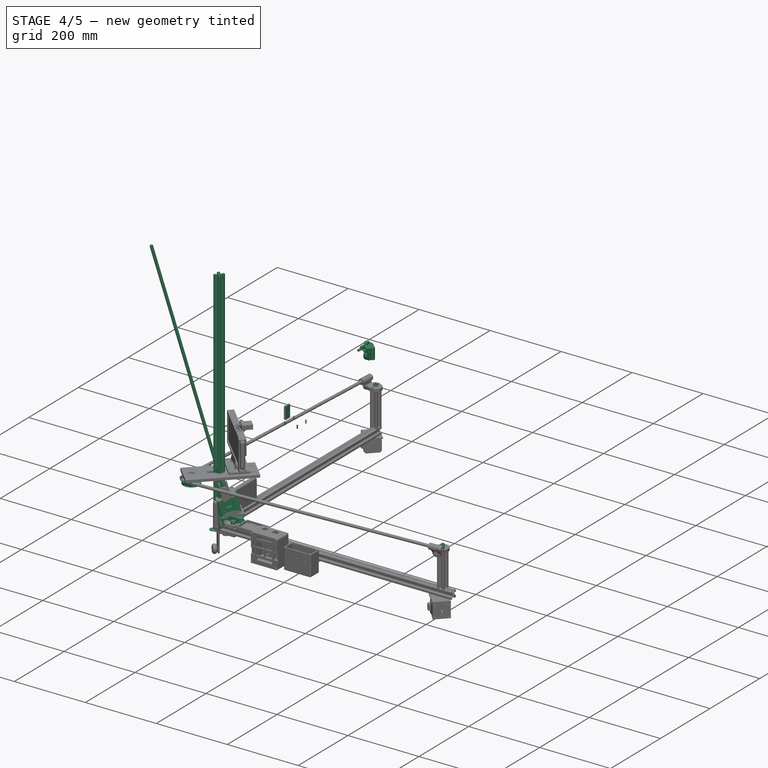
[diagram: stage 4 of 5 — iso view after this stage's code; geometry added in this stage tinted green]
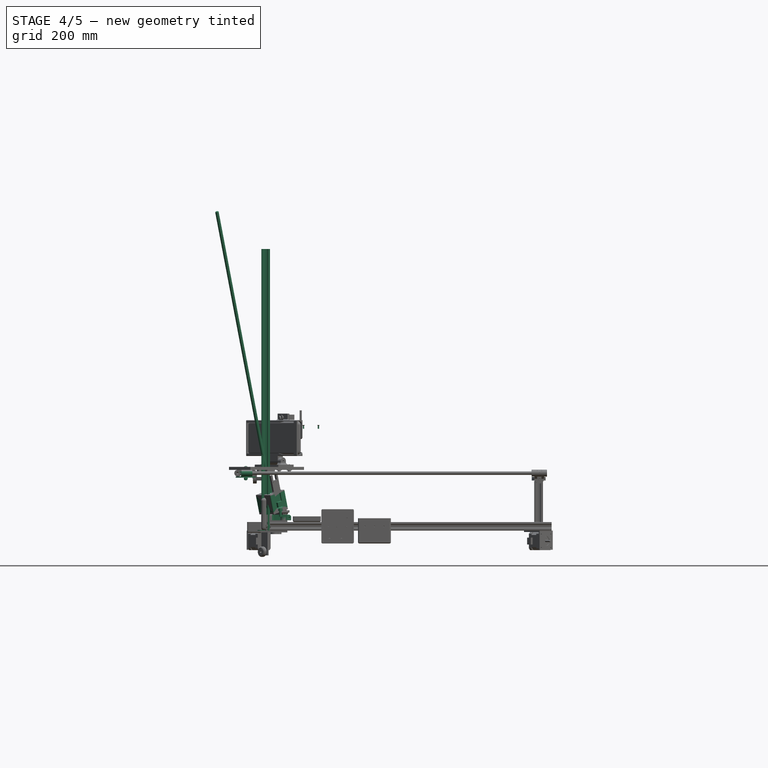
[diagram: stage 4 of 5 — front view after this stage's code; geometry added in this stage tinted green]
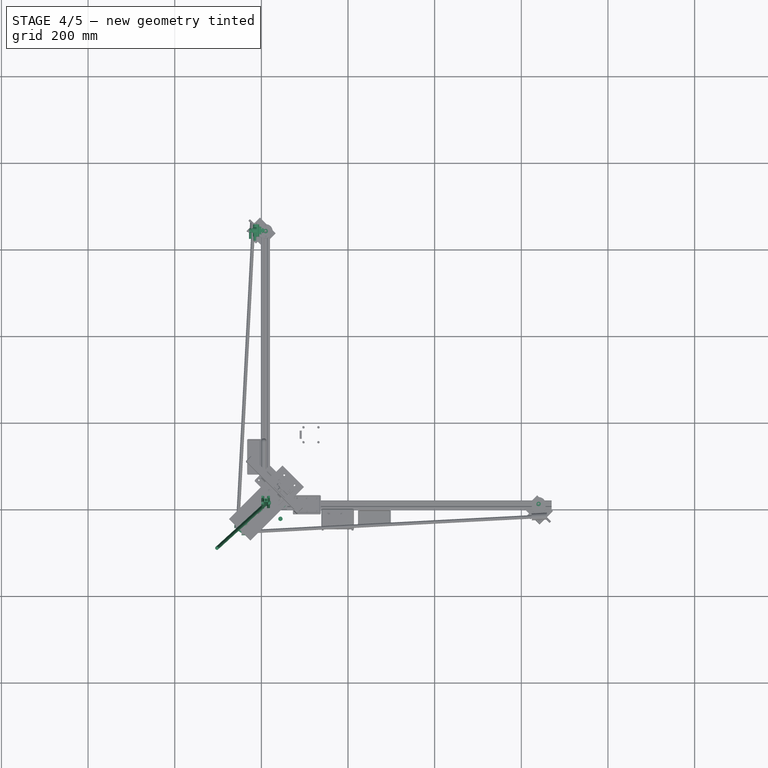
[diagram: stage 4 of 5 — top view after this stage's code; geometry added in this stage tinted green]
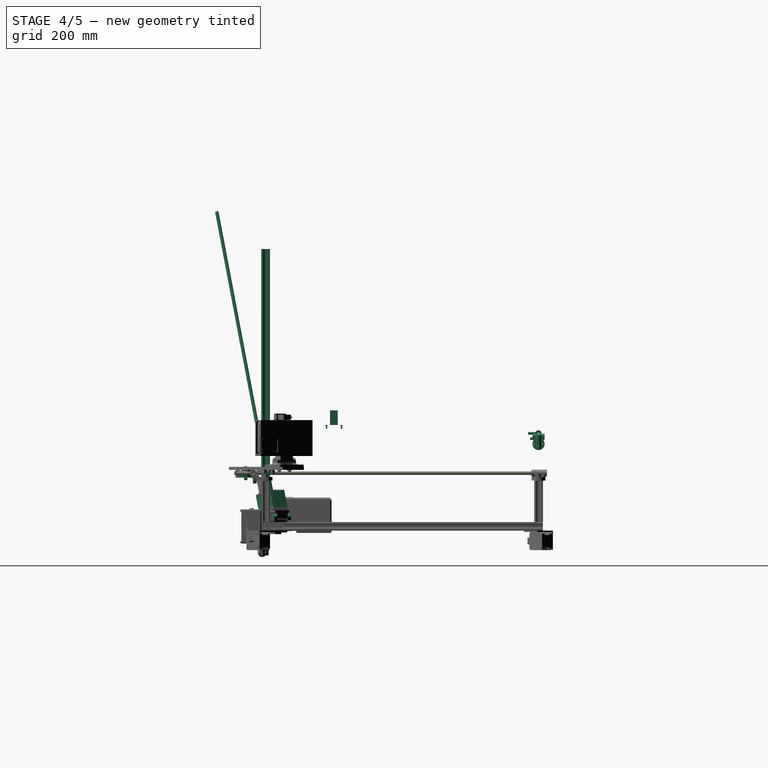
[diagram: stage 4 of 5 — right view after this stage's code; geometry added in this stage tinted green]
FEATURE [App::TextDocument] Text_document  label="notes"
  Text = Notes\n\n- wheel: \n  - up-scale the wheel to 102% to fit tightly onto the stepper axis. The increased outer radius is negligible.\n  - 4 walls, 4 top/bottom layer, infill 15%, infill type gyroid, 0.2 layer height, 0.4mm nozzle, wall speed inner 60mm/s, outer 30mm/s\n\n- z-stepper mount\n  - hinge (upper part): holes need tapering\n  - cup: M3 holes need tapering or use M2.5 without tapering\n  - cup cover: is optional, if stepper sits too tight, cup opens a bit, cover mitigates that effect\n\n- lead screw adapter\n  - needs tapering for M8 screw\n  - must be up-scaled for printing (see wheel)\n\n- camera mont\n - camera hinge/foot holes need tapering (or larger hole diameter for direct threading)\n - base plate M4 fastener holes need to be drilled to 4.0\n\n- TODO\n - make servo mount more stable since it bends a bit when aktuating the shutter
FEATURE [Part::Feature] Cut003009003  label="wheel-leg-2-"
  Placement = pos=(-29.8051,670.012,-24) rot=(0,0,-1;0.785398rad)
  shape: bbox 58.76 x 58.76 x 79.01 mm, 21 faces (baked)
FEATURE [Part::Feature] Cut003009004  label="wheel-leg-1-"
  Placement = pos=(668.805,-31.0122,-24) rot=(0,0,1;2.35619rad)
  shape: bbox 58.76 x 58.76 x 79.01 mm, 21 faces (baked)
FEATURE [Part::Feature] Fusion016002006011016001  label="wheel-2-fixateur-m2x8-003"
  Placement = pos=(-33.2491,661.456,-24) rot=(0,0,1;0rad)
  shape: bbox 4 x 4 x 10 mm, 5 faces (baked)
FEATURE [Part::Feature] Fusion016002006011016002  label="wheel-1-fixateur-m2x8-004"
  Placement = pos=(648.249,-22.4562,-24) rot=(0,0,1;0rad)
  shape: bbox 4 x 4 x 10 mm, 5 faces (baked)
FEATURE [Part::Cylinder] Cylinder094
  Angle = 360
  AttacherType = Attacher::AttachEngine3D
  FirstAngle = 0
  Height = 7
  Placement = pos=(12,0,10) rot=(0,0,1;0rad)
  Radius = 2
  SecondAngle = 0
FEATURE [Part::Cylinder] Cylinder095
  Angle = 360
  AttacherType = Attacher::AttachEngine3D
  FirstAngle = 0
  Height = 5
  Placement = pos=(12,0,5) rot=(0,0,1;0rad)
  Radius = 0.8
  SecondAngle = 0
FEATURE [Part::Feature] Fusion016002006011016003  label="m6x037"
  Placement = pos=(-13,1.08e-13,20) rot=(0,0,1;0rad)
  shape: bbox 41 x 10 x 10 mm, 5 faces (baked)
FEATURE [Part::MultiFuse] Fusion016002006011016004  label="m2x8-005"
  Placement = pos=(-22,0,-3) rot=(0,0,1;0rad)
  Refine = true
  Shapes = -> [Cylinder095,Cylinder094]
FEATURE [Sketcher::SketchObject] Sketch011
  FullyConstrained = true
  sketch-geometry (37):
    g0: LineSegment StartX=0 StartY=0 StartZ=0 EndX=10 EndY=10 EndZ=0
    g1: LineSegment StartX=10 StartY=10 StartZ=0 EndX=20 EndY=20 EndZ=0
    g2: LineSegment StartX=0 StartY=20 StartZ=0 EndX=10 EndY=10 EndZ=0
    g3: LineSegment StartX=10 StartY=10 StartZ=0 EndX=20 EndY=0 EndZ=0
    g4: Circle CenterX=10 CenterY=10 CenterZ=0 NormalX=0 NormalY=0 NormalZ=1 AngleXU=0 Radius=2.5
    g5: LineSegment StartX=0 StartY=20 StartZ=0 EndX=5.5 EndY=20 EndZ=0
    g6: LineSegment StartX=5.5 StartY=20 StartZ=0 EndX=7 EndY=18 EndZ=0
    g7: LineSegment StartX=7 StartY=18 StartZ=0 EndX=13 EndY=18 EndZ=0
    g8: LineSegment StartX=13 StartY=18 StartZ=0 EndX=14.5 EndY=20 EndZ=0
    g9: LineSegment StartX=14.5 StartY=20 StartZ=0 EndX=20 EndY=20 EndZ=0
    g10: LineSegment StartX=20 StartY=20 StartZ=0 EndX=20 EndY=14.5 EndZ=0
    g11: LineSegment StartX=20 StartY=14.5 StartZ=0 EndX=18 EndY=13 EndZ=0
    g12: LineSegment StartX=18 StartY=13 StartZ=0 EndX=18 EndY=7 EndZ=0
    g13: LineSegment StartX=18 StartY=7 StartZ=0 EndX=20 EndY=5.5 EndZ=0
    g14: LineSegment StartX=20 StartY=5.5 StartZ=0 EndX=20 EndY=0 EndZ=0
    g15: LineSegment StartX=20 StartY=0 StartZ=0 EndX=14.5 EndY=0 EndZ=0
    g16: LineSegment StartX=14.5 StartY=0 StartZ=0 EndX=13 EndY=2 EndZ=0
    g17: LineSegment StartX=13 StartY=2 StartZ=0 EndX=7 EndY=2 EndZ=0
    g18: LineSegment StartX=7 StartY=2 StartZ=0 EndX=5.5 EndY=0 EndZ=0
    g19: LineSegment StartX=5.5 StartY=0 StartZ=0 EndX=0 EndY=0 EndZ=0
    g20: LineSegment StartX=0 StartY=0 StartZ=0 EndX=0 EndY=5.5 EndZ=0
    g21: LineSegment StartX=0 StartY=5.5 StartZ=0 EndX=2 EndY=7 EndZ=0
    g22: LineSegment StartX=2 StartY=7 StartZ=0 EndX=2 EndY=13 EndZ=0
    g23: LineSegment StartX=2 StartY=13 StartZ=0 EndX=0 EndY=14.5 EndZ=0
    g24: LineSegment StartX=0 StartY=14.5 StartZ=0 EndX=0 EndY=20 EndZ=0
    g25: LineSegment StartX=5.5 StartY=20 StartZ=0 EndX=14.5 EndY=20 EndZ=0
    g26: LineSegment StartX=20 StartY=14.5 StartZ=0 EndX=20 EndY=5.5 EndZ=0
    g27: LineSegment StartX=14.5 StartY=0 StartZ=0 EndX=5.5 EndY=0 EndZ=0
    g28: LineSegment StartX=0 StartY=5.5 StartZ=0 EndX=0 EndY=14.5 EndZ=0
    g29: LineSegment StartX=2 StartY=13 StartZ=0 EndX=2 EndY=18 EndZ=0
    g30: LineSegment StartX=2 StartY=18 StartZ=0 EndX=7 EndY=18 EndZ=0
    g31: LineSegment StartX=13 StartY=18 StartZ=0 EndX=18 EndY=18 EndZ=0
    g32: LineSegment StartX=18 StartY=18 StartZ=0 EndX=18 EndY=13 EndZ=0
    g33: LineSegment StartX=18 StartY=7 StartZ=0 EndX=18 EndY=2 EndZ=0
    g34: LineSegment StartX=18 StartY=2 StartZ=0 EndX=13 EndY=2 EndZ=0
    g35: LineSegment StartX=7 StartY=2 StartZ=0 EndX=2 EndY=2 EndZ=0
    g36: LineSegment StartX=2 StartY=2 StartZ=0 EndX=2 EndY=7 EndZ=0
  constraints (98):
    c: Coincident(g-1,g0)
    c: Coincident(g0,g1)
    c: Coincident(g2,g0)
    c: Coincident(g2,g3)
    c: Parallel(g3,g2)
    c: Parallel(g0,g1)
    c: Coincident(g4,g0)
    c: Radius(g4) = 2.5
    c: Horizontal(g5)
    c: Coincident(g5,g6)
    c: Coincident(g6,g7)
    c: Horizontal(g7)
    c: Coincident(g7,g8)
    c: Coincident(g8,g9)
    c: Horizontal(g9)
    c: Coincident(g9,g10)
    c: Vertical(g10)
    c: Coincident(g10,g11)
    c: Coincident(g11,g12)
    c: Vertical(g12)
    c: Coincident(g12,g13)
    c: Coincident(g13,g14)
    c: Vertical(g14)
    c: Coincident(g14,g15)
    c: Horizontal(g15)
    c: Coincident(g15,g16)
    c: Coincident(g16,g17)
    c: Horizontal(g17)
    c: Coincident(g17,g18)
    c: Coincident(g18,g19)
    c: Coincident(g19,g-1)
    c: Horizontal(g19)
    c: Coincident(g19,g20)
    c: Vertical(g20)
    c: Coincident(g20,g21)
    c: Coincident(g21,g22)
    c: Vertical(g22)
    c: Coincident(g22,g23)
    c: Coincident(g23,g24)
    c: Coincident(g24,g5)
    c: Vertical(g24)
    c: Equal(g15,g14)
    c: Equal(g14,g19)
    c: Equal(g19,g20)
    c: Equal(g20,g24)
    c: Equal(g24,g5)
    c: Equal(g5,g9)
    c: Equal(g9,g10)
    c: Equal(g22,g17)
    c: Equal(g17,g12)
    c: Equal(g12,g7)
    c: Equal(g8,g6)
    c: Equal(g6,g23)
    c: Equal(g23,g21)
    c: Equal(g21,g18)
    c: Equal(g18,g16)
    c: Equal(g16,g13)
    c: Equal(g13,g11)
    c: DistanceX(g5,g5) = 5.5
    c: DistanceX(g7,g7) = 6
    c: Coincident(g25,g5)
    c: Coincident(g25,g8)
    c: Coincident(g26,g10)
    c: Coincident(g26,g13)
    c: Coincident(g27,g15)
    c: Coincident(g27,g18)
    c: Coincident(g28,g20)
    c: Coincident(g28,g23)
    c: Horizontal(g25)
    c: Horizontal(g27)
    c: Vertical(g28)
    c: Vertical(g26)
    c: Coincident(g29,g22)
    c: Vertical(g29)
    c: Coincident(g30,g29)
    c: Coincident(g30,g6)
    c: Horizontal(g30)
    c: Coincident(g31,g7)
    c: Horizontal(g31)
    c: Coincident(g32,g31)
    c: Coincident(g32,g11)
    c: Coincident(g33,g12)
    c: PointOnObject(g33,g3)
    c: Vertical(g33)
    c: Coincident(g34,g33)
    c: Coincident(g34,g16)
    c: Coincident(g35,g17)
    c: PointOnObject(g35,g0)
    c: Coincident(g36,g35)
    c: Coincident(g36,g21)
    c: Vertical(g36)
    c: PointOnObject(g29,g2)
    c: Coincident(g1,g9)
    c: Coincident(g2,g5)
    c: Coincident(g3,g14)
    c: PointOnObject(g31,g1)
    c: DistanceY(g14,g9) = 20
    c: DistanceY(g33,g31) = 16
FEATURE [Part::Extrusion] Extrude011  label="leg2-x001"
  Base = -> Sketch011
  Dir = (0,0,1)
  DirMode = 2
  FaceMakerClass = Part::FaceMakerBullseye
  LengthFwd = 650
  LengthRev = 0
  Placement = pos=(0,650,0) rot=(1,0,0;1.5708rad)
  Solid = true
  Symmetric = false
FEATURE [Part::Cut] Cut003009005  label="leg003"
  Base = -> Extrude011
  Refine = true
  Tool = -> Fusion016002006011016003
FEATURE [Sketcher::SketchObject] Sketch012
  FullyConstrained = true
  MapMode = 4
  Placement = pos=(0,0,0) rot=(0.57735,0.57735,0.57735;2.0944rad)
  Support = -> [Cut003009005]
  sketch-geometry (2):
    g0: LineSegment StartX=-1.5 StartY=2 StartZ=0 EndX=1.5 EndY=2 EndZ=0
    g1: ArcOfCircle CenterX=0 CenterY=0 CenterZ=0 NormalX=0 NormalY=0 NormalZ=1 AngleXU=0 Radius=2.5 StartAngle=2.2143 EndAngle=7.21048
  constraints (6):
    c: Horizontal(g0)
    c: Coincident(g1,g-1)
    c: Coincident(g1,g0)
    c: Coincident(g1,g0)
    c: Radius(g1) = 2.5
    c: DistanceY(g1,g0) = 2
FEATURE [Part::Extrusion] Extrude012  label="stepper-axis001"
  Base = -> Sketch012
  Dir = (1,0,0)
  DirMode = 2
  FaceMakerClass = Part::FaceMakerBullseye
  LengthFwd = 17
  LengthRev = 0
  Solid = true
  Symmetric = false
FEATURE [Part::Cylinder] Cylinder096
  Angle = 360
  AttacherType = Attacher::AttachEngine3D
  FirstAngle = 0
  Height = 3
  Placement = pos=(0,0,3.8e-15) rot=(0,-1,0;1.5708rad)
  Radius = 8
  SecondAngle = 0
FEATURE [Part::FeaturePython] Tube018  # WARN: FeaturePython — macro-defined, semantics opaque (R4)
  AttacherType = Attacher::AttachEngine3D
  Height = 15
  InnerRadius = 3.2
  OuterRadius = 8
  Placement = pos=(-18,0,4e-15) rot=(0,1,0;1.5708rad)
FEATURE [Part::Cylinder] Cylinder097
  Angle = 360
  AttacherType = Attacher::AttachEngine3D
  FirstAngle = 0
  Height = 17
  Placement = pos=(17,0,0) rot=(0,-1,0;1.5708rad)
  Radius = 8
  SecondAngle = 0
FEATURE [Part::Cylinder] Cylinder098
  Angle = 360
  AttacherType = Attacher::AttachEngine3D
  FirstAngle = 0
  Height = 7
  Placement = pos=(12,0,10) rot=(0,0,1;0rad)
  Radius = 2
  SecondAngle = 0
FEATURE [Part::Cylinder] Cylinder099
  Angle = 360
  AttacherType = Attacher::AttachEngine3D
  FirstAngle = 0
  Height = 5
  Placement = pos=(12,0,5) rot=(0,0,1;0rad)
  Radius = 0.8
  SecondAngle = 0
FEATURE [Part::MultiFuse] Fusion016002006011016005  label="m2x8-006"
  Placement = pos=(-4,0,-3) rot=(0,0,1;0rad)
  Refine = true
  Shapes = -> [Cylinder099,Cylinder098]
FEATURE [Part::MultiFuse] Fusion016002006011016006
  Refine = true
  Shapes = -> [Cylinder097,Cylinder096,Tube018]
FEATURE [Part::MultiFuse] Fusion016002006011016007
  Refine = true
  Shapes = -> [Extrude012,Fusion016002006011016005,Fusion016002006011016004]
FEATURE [Part::Cut] Cut003009006  label="stepper-to-rod-adapter"
  Base = -> Fusion016002006011016006
  Placement = pos=(16.868,16.8802,105.095) rot=(0.101583,0.989627,0.101583;1.3954rad)
  Refine = true
  Tool = -> Fusion016002006011016007
FEATURE [Part::FeaturePython] Tube020  label="washer-m6-"  # WARN: FeaturePython — macro-defined, semantics opaque (R4)
  AttacherType = Attacher::AttachEngine3D
  Height = 1.5
  InnerRadius = 3.25
  OuterRadius = 9
FEATURE [Part::Feature] Tube020001  label="washer-m6-001"
  Placement = pos=(50,10,24) rot=(0,0,1;0rad)
  shape: bbox 18 x 18 x 1.5 mm, 4 faces (baked)
FEATURE [Part::Feature] Tube020003  label="washer-m6-003"
  Placement = pos=(50,10,-5.5) rot=(0,0,1;0rad)
  shape: bbox 18 x 18 x 1.5 mm, 4 faces (baked)
FEATURE [Part::Feature] Tube020004  label="washer-m6-004"
  Placement = pos=(10,50,-5.5) rot=(0,0,1;0rad)
  shape: bbox 18 x 18 x 1.5 mm, 4 faces (baked)
FEATURE [Part::Feature] Fusion016002006011016013  label="m6x9-046"
  Placement = pos=(50,10,16.5) rot=(0,0,1;0rad)
  shape: bbox 10 x 10 x 15 mm, 5 faces (baked)
FEATURE [Part::Feature] Tube020005  label="washer-m6-005"
  Placement = pos=(30,10,24) rot=(0,0,1;0rad)
  shape: bbox 18 x 18 x 1.5 mm, 4 faces (baked)
FEATURE [Part::Box] Box020  label="Cube020"
  AttacherType = Attacher::AttachEngine3D
  Height = 53
  Length = 46
  Placement = pos=(14.0442,-0.0979797,-57) rot=(0,0,1;0.785398rad)
  Width = 20
FEATURE [Part::FeaturePython] Tube020006  label="washer-m6-006"  # WARN: FeaturePython — macro-defined, semantics opaque (R4)
  AttacherType = Attacher::AttachEngine3D
  Height = 4
  InnerRadius = 3.25
  OuterRadius = 9
  Placement = pos=(30,10,-8) rot=(0,0,1;0rad)
FEATURE [Part::Cut] Cut003009009  label="spacer-washer-m6-height-4-"
  Base = -> Tube020006
  Refine = true
  Tool = -> Box020
FEATURE [Part::Box] Box021  label="Cube021"
  AttacherType = Attacher::AttachEngine3D
  Height = 42
  Length = 8
  Width = 42
FEATURE [Part::Box] Box022  label="Cube022"
  AttacherType = Attacher::AttachEngine3D
  Height = 42
  Length = 16
  Placement = pos=(8,0,0) rot=(0,0,1;0rad)
  Width = 42
FEATURE [Part::Box] Box023  label="Cube023"
  AttacherType = Attacher::AttachEngine3D
  Height = 42
  Length = 8
  Placement = pos=(24,0,0) rot=(0,0,1;0rad)
  Width = 42
FEATURE [Part::Box] Box024  label="Cube024"
  AttacherType = Attacher::AttachEngine3D
  Height = 6
  Length = 12
  Placement = pos=(20,13,42) rot=(0,0,1;0rad)
  Width = 16
FEATURE [Part::Chamfer] Chamfer024
  Base = -> Box021
  Edges = 4 edges r=4: [Edge9,Edge10,Edge11,Edge12]
FEATURE [Part::Chamfer] Chamfer025
  Base = -> Box023
  Edges = 4 edges r=4: [Edge9,Edge10,Edge11,Edge12]
FEATURE [Part::Chamfer] Chamfer026
  Base = -> Box022
  Edges = 4 edges r=7: [Edge9,Edge10,Edge11,Edge12]
FEATURE [Part::Cylinder] Cylinder107
  Angle = 360
  AttacherType = Attacher::AttachEngine3D
  FirstAngle = 0
  Height = 2
  Placement = pos=(0,21,21) rot=(0,-1,0;1.5708rad)
  Radius = 11
  SecondAngle = 0
FEATURE [Part::Chamfer] Chamfer027
  Base = -> Cylinder107
  Edges = 1 edges r=0.2: [Edge3]
FEATURE [Part::Cylinder] Cylinder108
  Angle = 360
  AttacherType = Attacher::AttachEngine3D
  FirstAngle = 0
  Height = 17
  Placement = pos=(0,21,21) rot=(0,-1,0;1.5708rad)
  Radius = 2.5
  SecondAngle = 0
FEATURE [Part::Chamfer] Chamfer023
  Base = -> Cylinder108
  Edges = 1 edges r=0.5: [Edge3]
FEATURE [Part::Cylinder] Cylinder109
  Angle = 360
  AttacherType = Attacher::AttachEngine3D
  FirstAngle = 0
  Height = 8
  Placement = pos=(8,36.5,5.5) rot=(0,-1,0;1.5708rad)
  Radius = 1.5
  SecondAngle = 0
FEATURE [Part::Cylinder] Cylinder110
  Angle = 360
  AttacherType = Attacher::AttachEngine3D
  FirstAngle = 0
  Height = 8
  Placement = pos=(8,5.5,5.5) rot=(0,-1,0;1.5708rad)
  Radius = 1.5
  SecondAngle = 0
FEATURE [Part::Cylinder] Cylinder111
  Angle = 360
  AttacherType = Attacher::AttachEngine3D
  FirstAngle = 0
  Height = 8
  Placement = pos=(8,36.5,36.5) rot=(0,-1,0;1.5708rad)
  Radius = 1.5
  SecondAngle = 0
FEATURE [Part::Cylinder] Cylinder112
  Angle = 360
  AttacherType = Attacher::AttachEngine3D
  FirstAngle = 0
  Height = 8
  Placement = pos=(8,5.5,36.5) rot=(0,-1,0;1.5708rad)
  Radius = 1.5
  SecondAngle = 0
FEATURE [Part::MultiFuse] Fusion016002006011016014
  Refine = true
  Shapes = -> [Cylinder109,Cylinder111,Cylinder112,Cylinder110]
FEATURE [Part::Cut] Cut003009010
  Base = -> Chamfer024
  Refine = true
  Tool = -> Fusion016002006011016014
FEATURE [Part::MultiFuse] Fusion016002006011016015  label="stepper-z-"
  Placement = pos=(-8.75844,21.1487,80.8607) rot=(0.486419,0.836305,-0.252963;1.64105rad)
  Shapes = -> [Chamfer023,Chamfer025,Chamfer026,Cut003009010,Chamfer027,Box024]
FEATURE [Sketcher::SketchObject] Sketch014
  FullyConstrained = true
  sketch-geometry (30):
    g0: LineSegment StartX=0 StartY=0 StartZ=0 EndX=60 EndY=0 EndZ=0
    g1: LineSegment StartX=60 StartY=0 StartZ=0 EndX=60 EndY=19 EndZ=0
    g2: LineSegment StartX=60 StartY=19 StartZ=0 EndX=19 EndY=60 EndZ=0
    g3: LineSegment StartX=19 StartY=60 StartZ=0 EndX=0 EndY=60 EndZ=0
    g4: LineSegment StartX=0 StartY=60 StartZ=0 EndX=0 EndY=0 EndZ=0
    g5: LineSegment StartX=10 StartY=0 StartZ=0 EndX=10 EndY=60 EndZ=0
    g6: LineSegment StartX=0 StartY=10 StartZ=0 EndX=60 EndY=10 EndZ=0
    g7: Circle CenterX=10 CenterY=10 CenterZ=0 NormalX=0 NormalY=0 NormalZ=1 AngleXU=0 Radius=4
    g8: Circle CenterX=30 CenterY=10 CenterZ=0 NormalX=0 NormalY=0 NormalZ=1 AngleXU=0 Radius=2.75
    g9: Circle CenterX=50 CenterY=10 CenterZ=0 NormalX=0 NormalY=0 NormalZ=1 AngleXU=0 Radius=2.75
    g10: Circle CenterX=10 CenterY=30 CenterZ=0 NormalX=0 NormalY=0 NormalZ=1 AngleXU=0 Radius=4
    g11: Circle CenterX=10 CenterY=50 CenterZ=0 NormalX=0 NormalY=0 NormalZ=1 AngleXU=0 Radius=2.75
    g12: LineSegment StartX=19 StartY=60 StartZ=0 EndX=19 EndY=41 EndZ=0
    g13: LineSegment StartX=19 StartY=41 StartZ=0 EndX=0 EndY=41 EndZ=0
    g14: LineSegment StartX=0 StartY=41 StartZ=0 EndX=0 EndY=0 EndZ=0
    g15: LineSegment StartX=19 StartY=41 StartZ=0 EndX=19 EndY=19 EndZ=0
    g16: LineSegment StartX=19 StartY=48.6863 StartZ=0 EndX=48.6863 EndY=19 EndZ=0
    g17: Circle CenterX=33.8431 CenterY=33.8431 CenterZ=0 NormalX=0 NormalY=0 NormalZ=1 AngleXU=0 Radius=1.6
    g18: LineSegment StartX=19 StartY=60 StartZ=0 EndX=27.4853 EndY=51.5147 EndZ=0
    g19: LineSegment StartX=27.4853 StartY=51.5147 StartZ=0 EndX=51.5147 EndY=27.4853 EndZ=0
    g20: LineSegment StartX=51.5147 StartY=27.4853 StartZ=0 EndX=60 EndY=19 EndZ=0
    g21: LineSegment StartX=27.4853 StartY=51.5147 StartZ=0 EndX=21.8284 EndY=45.8579 EndZ=0
    g22: LineSegment StartX=51.5147 StartY=27.4853 StartZ=0 EndX=45.8579 EndY=21.8284 EndZ=0
    g23: LineSegment StartX=27.4853 StartY=51.5147 StartZ=0 EndX=26.0711 EndY=50.1005 EndZ=0
    g24: LineSegment StartX=26.0711 StartY=50.1005 StartZ=0 EndX=50.1005 EndY=26.0711 EndZ=0
    g25: LineSegment StartX=50.1005 StartY=26.0711 StartZ=0 EndX=51.5147 EndY=27.4853 EndZ=0
    g26: LineSegment StartX=0 StartY=0 StartZ=0 EndX=21 EndY=0 EndZ=0
    g27: LineSegment StartX=21 StartY=0 StartZ=0 EndX=21 EndY=19 EndZ=0
    g28: LineSegment StartX=21 StartY=19 StartZ=0 EndX=60 EndY=19 EndZ=0
    g29: LineSegment StartX=19 StartY=19 StartZ=0 EndX=21 EndY=19 EndZ=0
  constraints (88):
    c: Coincident(g-1,g0)
    c: PointOnObject(g0,g-1)
    c: Coincident(g0,g1)
    c: Vertical(g1)
    c: Coincident(g1,g2)
    c: Coincident(g2,g3)
    c: PointOnObject(g3,g-2)
    c: Horizontal(g3)
    c: Coincident(g3,g4)
    c: Coincident(g4,g0)
    c: DistanceY(g4,g4) = 60
    c: DistanceX(g0,g0) = 60
    c: DistanceY(g1,g1) = 19
    c: DistanceX(g3,g3) = 19
    c: PointOnObject(g5,g0)
    c: PointOnObject(g5,g3)
    c: Vertical(g5)
    c: PointOnObject(g6,g4)
    c: PointOnObject(g6,g1)
    c: Horizontal(g6)
    c: DistanceY(g0,g6) = 10
    c: DistanceX(g3,g5) = 10
    c: PointOnObject(g7,g5)
    c: Radius(g7) = 4
    c: DistanceY(g0,g7) = 10
    c: PointOnObject(g8,g6)
    c: PointOnObject(g9,g6)
    c: PointOnObject(g10,g5)
    c: PointOnObject(g11,g5)
    c: Radius(g11) = 2.75
    c: Radius(g10) = 4
    c: Radius(g8) = 2.75
    c: Radius(g9) = 2.75
    c: DistanceX(g7,g8) = 20
    c: DistanceX(g8,g9) = 20
    c: DistanceY(g7,g10) = 20
    c: DistanceY(g10,g11) = 20
    c: Coincident(g2,g12)
    c: Vertical(g12)
    c: Coincident(g12,g13)
    c: PointOnObject(g13,g4)
    c: Horizontal(g13)
    c: Coincident(g13,g14)
    c: Coincident(g14,g0)
    c: Coincident(g15,g12)
    c: Vertical(g15)
    c: DistanceY(g12,g12) = 19
    c: PointOnObject(g16,g12)
    c: Radius(g17) = 1.6
    c: Symmetric(g16,g16,g17)
    c: Coincident(g12,g18)
    c: PointOnObject(g18,g2)
    c: Coincident(g18,g19)
    c: PointOnObject(g19,g2)
    c: Coincident(g19,g20)
    c: Coincident(g21,g18)
    c: PointOnObject(g21,g16)
    c: Coincident(g22,g19)
    c: PointOnObject(g22,g16)
    c: Perpendicular(g22,g20)
    c: Perpendicular(g18,g21)
    c: Coincident(g18,g23)
    c: PointOnObject(g23,g21)
    c: Coincident(g23,g24)
    c: PointOnObject(g24,g22)
    c: Coincident(g24,g25)
    c: Coincident(g25,g20)
    c: Distance(g23) = 2
    c: Parallel(g24,g2)
    c: Distance(g18) = 12
    c: Distance(g20) = 12
    c: Parallel(g2,g16)
    c: Distance(g22) = 8
    c: DistanceY(g13,g11) = 9
    c: DistanceX(g7,g8) = 20
    c: Coincident(g14,g26)
    c: PointOnObject(g26,g0)
    c: Coincident(g26,g27)
    c: Vertical(g27)
    c: Coincident(g27,g28)
    c: Coincident(g29,g15)
    c: Coincident(g29,g27)
    c: Horizontal(g29)
    c: DistanceX(g28,g28) = 39
    c: Horizontal(g28)
    c: Coincident(g28,g20)
    c: Coincident(g20,g1)
    c: PointOnObject(g16,g28)
FEATURE [Part::Extrusion] Extrude014
  Base = -> Sketch014
  Dir = (0,0,1)
  DirMode = 2
  FaceMakerClass = Part::FaceMakerBullseye
  LengthFwd = 13
  LengthRev = 0
  Placement = pos=(0,0,24) rot=(0,0,1;0rad)
  Solid = true
  Symmetric = false
FEATURE [Part::Box] Box027  label="Cube027"
  AttacherType = Attacher::AttachEngine3D
  Height = 13
  Length = 13
  Placement = pos=(60,19,24) rot=(0,0,1;0.785398rad)
  Width = 12
FEATURE [Part::Box] Box030  label="Cube030"
  AttacherType = Attacher::AttachEngine3D
  Height = 13
  Length = 13
  Placement = pos=(27.4853,51.5147,24) rot=(0,0,1;0.785398rad)
  Width = 12
FEATURE [Part::Cylinder] Cylinder113
  Angle = 360
  AttacherType = Attacher::AttachEngine3D
  FirstAngle = 0
  Height = 59
  Placement = pos=(64.61,23.58,30) rot=(-0.707107,-0.707107,0;1.5708rad)
  Radius = 2
  SecondAngle = 0
FEATURE [Part::Cylinder] Cylinder114
  Angle = 360
  AttacherType = Attacher::AttachEngine3D
  FirstAngle = 0
  Height = 58
  Placement = pos=(64.61,23.58,30) rot=(-0.707107,-0.707107,0;1.5708rad)
  Radius = 2
  SecondAngle = 0
FEATURE [Part::Fillet] Fillet006
  Base = -> Extrude014
  Edges = 5 edges: [Edge5 r=9,Edge8 r=2,Edge11 r=2,Edge14 r=2,Edge17 r=9]
FEATURE [Part::Cylinder] Cylinder116
  Angle = 360
  AttacherType = Attacher::AttachEngine3D
  FirstAngle = 0
  Height = 6
  Placement = pos=(0,0,9) rot=(0,0,1;0rad)
  Radius = 5
  SecondAngle = 0
FEATURE [Part::Cylinder] Cylinder117
  Angle = 360
  AttacherType = Attacher::AttachEngine3D
  FirstAngle = 0
  Height = 15
  Placement = pos=(0,0,-6) rot=(0,0,1;0rad)
  Radius = 3
  SecondAngle = 0
FEATURE [Part::MultiFuse] Fusion016002006011016017  label="m6x15-"
  Placement = pos=(50,10,15) rot=(0,0,1;0rad)
  Refine = true
  Shapes = -> [Cylinder117,Cylinder116]
FEATURE [Part::Cylinder] Cylinder118
  Angle = 360
  AttacherType = Attacher::AttachEngine3D
  FirstAngle = 0
  Height = 3
  Placement = pos=(12,0,10) rot=(0,0,1;0rad)
  Radius = 2.75
  SecondAngle = 0
FEATURE [Part::Cylinder] Cylinder119
  Angle = 360
  AttacherType = Attacher::AttachEngine3D
  FirstAngle = 0
  Height = 10
  Placement = pos=(12,0,0) rot=(0,0,1;0rad)
  Radius = 1.5
  SecondAngle = 0
FEATURE [Part::MultiFuse] Fusion016002006011016017003  label="m3x10-"
  Refine = true
  Shapes = -> [Cylinder119,Cylinder118]
FEATURE [Part::Feature] Fusion016002006011016017003002  label="m3x10-002"
  Placement = pos=(21.8431,33.8431,24) rot=(0,0,1;0rad)
  shape: bbox 5.5 x 5.5 x 13 mm, 5 faces (baked)
FEATURE [Part::Cylinder] Cylinder120
  Angle = 360
  AttacherType = Attacher::AttachEngine3D
  FirstAngle = 0
  Height = 8
  Placement = pos=(10,10,29) rot=(0,0,1;0rad)
  Radius = 6.5
  SecondAngle = 0
FEATURE [Part::Cylinder] Cylinder121
  Angle = 360
  AttacherType = Attacher::AttachEngine3D
  FirstAngle = 0
  Height = 4
  Placement = pos=(33.8431,33.8431,33) rot=(0,0,1;0rad)
  Radius = 5.5
  SecondAngle = 0
FEATURE [Part::Cylinder] Cylinder122
  Angle = 360
  AttacherType = Attacher::AttachEngine3D
  FirstAngle = 0
  Height = 8
  Placement = pos=(10,30,29) rot=(0,0,1;0rad)
  Radius = 6.5
  SecondAngle = 0
FEATURE [Part::MultiFuse] Fusion016002006011016017003003
  Refine = true
  Shapes = -> [Cylinder122,Cylinder120,Cylinder121]
FEATURE [Part::Cut] Cut003009014
  Base = -> Box030
  Refine = true
  Tool = -> Cylinder113
FEATURE [Part::Cut] Cut003009015
  Base = -> Box027
  Refine = true
  Tool = -> Cylinder114
FEATURE [Part::MultiFuse] Fusion016002006011016017003004
  Refine = true
  Shapes = -> [Cut003009015,Fillet006,Cut003009014]
FEATURE [Part::Cut] Cut003009016
  Base = -> Fusion016002006011016017003004
  Refine = true
  Tool = -> Fusion016002006011016017003003
FEATURE [Part::Fillet] Fillet007  label="stepper-z-hinge-base"
  Base = -> Cut003009016
  Edges = 12 edges: [Edge2 r=1,Edge5 r=1,Edge6 r=1,Edge17 r=1,Edge18 r=1,Edge25 r=1,Edge26 r=1,Edge30 r=6.5,Edge32 r=1,Edge33 r=6.5,Edge48 r=1,Edge50 r=1]
FEATURE [Part::FeaturePython] Tube020007  label="washer-m3-large-"  # WARN: FeaturePython — macro-defined, semantics opaque (R4)
  AttacherType = Attacher::AttachEngine3D
  Height = 1
  InnerRadius = 1.75
  OuterRadius = 5.25
FEATURE [Part::Feature] Tube020007001  label="washer-m3-large-001"
  Placement = pos=(33.8431,33.8431,33) rot=(0,0,1;0rad)
  shape: bbox 10.5 x 10.5 x 1 mm, 4 faces (baked)
FEATURE [Part::Feature] Tube020007002  label="washer-m6-007"
  Placement = pos=(10,50,24) rot=(0,0,1;0rad)
  shape: bbox 18 x 18 x 1.5 mm, 4 faces (baked)
FEATURE [Part::Cylinder] Cylinder123
  Angle = 360
  AttacherType = Attacher::AttachEngine3D
  FirstAngle = 0
  Height = 6
  Placement = pos=(0,0,9) rot=(0,0,1;0rad)
  Radius = 5
  SecondAngle = 0
FEATURE [Part::Cylinder] Cylinder124
  Angle = 360
  AttacherType = Attacher::AttachEngine3D
  FirstAngle = 0
  Height = 10
  Placement = pos=(0,0,-1) rot=(0,0,1;0rad)
  Radius = 3
  SecondAngle = 0
FEATURE [Part::MultiFuse] Fusion016002006011016017003005  label="m6x10-"
  Placement = pos=(50,10,15) rot=(0,0,1;0rad)
  Refine = true
  Shapes = -> [Cylinder124,Cylinder123]
FEATURE [Part::Cylinder] Cylinder125
  Angle = 360
  AttacherType = Attacher::AttachEngine3D
  FirstAngle = 0
  Height = 6
  Placement = pos=(0,0,9) rot=(0,0,1;0rad)
  Radius = 5
  SecondAngle = 0
FEATURE [Part::Cylinder] Cylinder126
  Angle = 360
  AttacherType = Attacher::AttachEngine3D
  FirstAngle = 0
  Height = 12
  Placement = pos=(0,0,-3) rot=(0,0,1;0rad)
  Radius = 3
  SecondAngle = 0
FEATURE [Part::MultiFuse] Fusion016002006011016017003005003  label="m6x12-"
  Placement = pos=(50,10,15) rot=(0,0,1;0rad)
  Refine = true
  Shapes = -> [Cylinder126,Cylinder125]
FEATURE [Part::Cylinder] Cylinder127
  Angle = 360
  AttacherType = Attacher::AttachEngine3D
  FirstAngle = 0
  Height = 6
  Placement = pos=(0,0,9) rot=(0,0,1;0rad)
  Radius = 5
  SecondAngle = 0
FEATURE [Part::Cylinder] Cylinder128
  Angle = 360
  AttacherType = Attacher::AttachEngine3D
  FirstAngle = 0
  Height = 13
  Placement = pos=(0,0,-4) rot=(0,0,1;0rad)
  Radius = 3
  SecondAngle = 0
FEATURE [Part::MultiFuse] Fusion016002006011016017003005003003  label="m6x13-"
  Placement = pos=(44.055,-22.7386,36.4762) rot=(0,0,1;0rad)
  Refine = true
  Shapes = -> [Cylinder128,Cylinder127]
FEATURE [Part::Cylinder] Cylinder130
  Angle = 360
  AttacherType = Attacher::AttachEngine3D
  FirstAngle = 0
  Height = 7
  Placement = pos=(12,0,0) rot=(0,0,1;0rad)
  Radius = 1.5
  SecondAngle = 0
FEATURE [Part::Cone] Cone
  Angle = 360
  AttacherType = Attacher::AttachEngine3D
  Height = 1.5
  Placement = pos=(12,-1e-16,7) rot=(0,0,1;0rad)
  Radius1 = 1.5
  Radius2 = 2.75
FEATURE [Part::MultiFuse] Fusion016002006011016017003005003003006  label="m3x7-countersunk-"
  Refine = true
  Shapes = -> [Cylinder130,Cone]
FEATURE [Part::Feature] Fusion016002006011016017003005003003006001  label="m3x7-countersunk-001"
  Placement = pos=(81.24,150.78,235.256) rot=(0,0,1;0rad)
  shape: bbox 5.5 x 5.5 x 8.5 mm, 4 faces (baked)
FEATURE [Part::Feature] Fusion016002006011016017003005003003006002  label="m3x7-countersunk-002"
  Placement = pos=(115.74,150.78,235.256) rot=(0,0,1;0rad)
  shape: bbox 5.5 x 5.5 x 8.5 mm, 4 faces (baked)
FEATURE [Part::Feature] Fusion016002006011016017003005003003006003  label="m3x7-countersunk-003"
  Placement = pos=(115.74,185.28,235.256) rot=(0,0,1;0rad)
  shape: bbox 5.5 x 5.5 x 8.5 mm, 4 faces (baked)
FEATURE [Part::Feature] Fusion016002006011016017003005003003006004  label="m3x7-countersunk-004"
  Placement = pos=(81.24,185.28,235.256) rot=(0,0,1;0rad)
  shape: bbox 5.5 x 5.5 x 8.5 mm, 4 faces (baked)
FEATURE [Part::MultiFuse] Fusion016002006011016017003005003003006005
  Placement = pos=(4.00639,-0.246432,-0.00803711) rot=(0,0,1;0rad)
  Refine = true
  Shapes = -> [Box033,Fusion016002006011016017003005003003006004,Fusion016002006011016017003005003003006003,Fusion016002006011016017003005003003006002,Fusion016002006011016017003005003003006001]
FEATURE [Part::Box] Box034  label="Cube034"
  AttacherType = Attacher::AttachEngine3D
  Height = 39
  Length = 48.5
  Placement = pos=(86.1182,143.657,238.756) rot=(0,0,1;0rad)
  Width = 48.5
FEATURE [Part::Feature] Fusion016002006011016017003005003003006012  label="m2.5x10-003"
  Placement = pos=(9.41032,51.4745,82.802) rot=(0.707107,-0.707107,0;0.261799rad)
  shape: bbox 6.557 x 6.557 x 13.66 mm, 5 faces (baked)
FEATURE [Part::Feature] Fusion016002006011016017003005003003006013  label="m2.5x10-004"
  Placement = pos=(10.4343,-7.60553,71.8022) rot=(0.707107,-0.707107,0;0.261799rad)
  shape: bbox 6.557 x 6.557 x 13.66 mm, 5 faces (baked)
FEATURE [Part::Feature] Fusion016002006011016017003005003003006014  label="m2.5x10-005"
  Placement = pos=(39.4624,21.4225,82.802) rot=(0.707107,-0.707107,0;0.261799rad)
  shape: bbox 6.557 x 6.557 x 13.66 mm, 5 faces (baked)
FEATURE [Part::Feature] Fusion016002006011016017003005003003006015  label="m2.5x10-006"
  Placement = pos=(-19.6177,22.4465,71.8022) rot=(0.707107,-0.707107,0;0.261799rad)
  shape: bbox 6.557 x 6.557 x 13.66 mm, 5 faces (baked)
FEATURE [Part::FeaturePython] Tube020007004  label="washer-m3-"  # WARN: FeaturePython — macro-defined, semantics opaque (R4)
  AttacherType = Attacher::AttachEngine3D
  Height = 1
  InnerRadius = 1.7
  OuterRadius = 3.5
FEATURE [Part::FeaturePython] ThreadedRod  label="M8x650-ThreadedRod"  # Fasteners workbench fastener (typed FeaturePython)
  Placement = pos=(-102.822,-102.81,736.811) rot=(0.707107,-0.707107,0;0.261799rad)
  diameter = 9
  diameterCustom = 8
  invert = false
  leftHanded = false
  length = 650
  matchOuter = false
  offset = 0
  pitchCustom = 1
  thread = false
FEATURE [Part::MultiFuse] Fusion016002006011016017003005003003006011
  Refine = true
  Shapes = -> [Box033,Chamfer028,Fusion016002006011016017003005003003006001,Fusion016002006011016017003005003003006004,Fusion016002006011016017003005003003006003,Fusion016002006011016017003005003003006002,Cylinder139,Cylinder138,Cylinder136,Cylinder135,Cylinder140]
FEATURE [Part::Cut] Cut003009019
  Base = -> Box034
  Refine = true
  Tool = -> Fusion016002006011016017003005003003006011
FEATURE [Part::Fillet] Fillet009  label="stepper-z-cup"
  Base = -> Cut003009019
  Edges = 11 edges r=2: [Edge2,Edge3,Edge4,Edge6,Edge8,Edge9,Edge19,Edge27,Edge37,Edge46,Edge54]
  Placement = pos=(263.994,107.922,-138.574) rot=(-0.053987,-0.130336,0.989999;2.36328rad)
FEATURE [Part::Cylinder] Cylinder146
  Angle = 360
  AttacherType = Attacher::AttachEngine3D
  FirstAngle = 0
  Height = 8
  Placement = pos=(0,0,9) rot=(0,0,1;0rad)
  Radius = 6.25
  SecondAngle = 0
FEATURE [Part::Cylinder] Cylinder147
  Angle = 360
  AttacherType = Attacher::AttachEngine3D
  FirstAngle = 0
  Height = 7
  Placement = pos=(0,0,2) rot=(0,0,1;0rad)
  Radius = 4
  SecondAngle = 0
FEATURE [Part::MultiFuse] Fusion016002006011016017003005003003006017  label="m8x7-"
  Placement = pos=(50,10,15) rot=(0,0,1;0rad)
  Refine = true
  Shapes = -> [Cylinder147,Cylinder146]
FEATURE [Part::Cylinder] Cylinder148
  Angle = 360
  AttacherType = Attacher::AttachEngine3D
  FirstAngle = 0
  Height = 8
  Placement = pos=(0,0,9) rot=(0,0,1;0rad)
  Radius = 6.25
  SecondAngle = 0
FEATURE [Part::Cylinder] Cylinder149
  Angle = 360
  AttacherType = Attacher::AttachEngine3D
  FirstAngle = 0
  Height = 9
  Radius = 4
  SecondAngle = 0
FEATURE [Part::MultiFuse] Fusion016002006011016017003005003003006017003  label="m8x9-"
  Placement = pos=(50,10,15) rot=(0,0,1;0rad)
  Refine = true
  Shapes = -> [Cylinder149,Cylinder148]
FEATURE [Part::FeaturePython] Tube020007004007  label="spacer-leg-2-"  # WARN: FeaturePython — macro-defined, semantics opaque (R4)
  AttacherType = Attacher::AttachEngine3D
  Height = 8
  InnerRadius = 2.5
  OuterRadius = 4
  Placement = pos=(-10.3,640,200) rot=(0,1,0;1.5708rad)
FEATURE [Part::FeaturePython] Tube020007004008  # WARN: FeaturePython — macro-defined, semantics opaque (R4)
  AttacherType = Attacher::AttachEngine3D
  Height = 5
  InnerRadius = 4.25
  OuterRadius = 14
  Placement = pos=(-10.3,640,200) rot=(0,1,0;1.5708rad)
FEATURE [Part::FeaturePython] Tube020007004009  # WARN: FeaturePython — macro-defined, semantics opaque (R4)
  AttacherType = Attacher::AttachEngine3D
  Height = 5
  InnerRadius = 8
  OuterRadius = 14
  Placement = pos=(-15.3,640,200) rot=(0,1,0;1.5708rad)
FEATURE [Part::FeaturePython] Tube020007004010  label="bearing-625ZZ-001"  # WARN: FeaturePython — macro-defined, semantics opaque (R4)
  AttacherType = Attacher::AttachEngine3D
  Height = 5
  InnerRadius = 2.5
  OuterRadius = 8
  Placement = pos=(-15.3,640,200) rot=(0,1,0;1.5708rad)
FEATURE [Part::Box] Box037  label="Cube037"
  AttacherType = Attacher::AttachEngine3D
  Height = 14
  Length = 14
  Placement = pos=(-22.3,626,214.05) rot=(0,0,1;0rad)
  Width = 28
FEATURE [Part::Fillet] Fillet011
  Base = -> Box037
  Edges = 3 edges r=6.9: [Edge2,Edge4,Edge6]
FEATURE [Part::Cylinder] Cylinder151
  Angle = 360
  AttacherType = Attacher::AttachEngine3D
  FirstAngle = 0
  Height = 28
  Placement = pos=(-15.3,626,221.05) rot=(-1,0,0;1.5708rad)
  Radius = 4
  SecondAngle = 0
FEATURE [Part::Cut] Cut003009021
  Base = -> Fillet011
  Placement = pos=(3,0,-4) rot=(0,0,1;0rad)
  Refine = true
  Tool = -> Cylinder151
FEATURE [Part::FeaturePython] Tube020007004011  # WARN: FeaturePython — macro-defined, semantics opaque (R4)
  AttacherType = Attacher::AttachEngine3D
  Height = 5
  InnerRadius = 8
  OuterRadius = 14
  Placement = pos=(-15.3,640,200) rot=(0,1,0;1.5708rad)
FEATURE [Part::Cylinder] Cylinder152
  Angle = 360
  AttacherType = Attacher::AttachEngine3D
  FirstAngle = 0
  Height = 28
  Placement = pos=(-12.3,626,217.05) rot=(-1,0,0;1.5708rad)
  Radius = 4
  SecondAngle = 0
FEATURE [Part::Cylinder] Cylinder153
  Angle = 360
  AttacherType = Attacher::AttachEngine3D
  FirstAngle = 0
  Height = 16
  Placement = pos=(-4,650,200) rot=(0,-1,0;1.5708rad)
  Radius = 1
  SecondAngle = 0
FEATURE [Part::Cylinder] Cylinder154
  Angle = 360
  AttacherType = Attacher::AttachEngine3D
  FirstAngle = 0
  Height = 16
  Placement = pos=(-4,630,200) rot=(0,-1,0;1.5708rad)
  Radius = 1
  SecondAngle = 0
FEATURE [Part::MultiFuse] Fusion016002006011016017003005003003006017003003
  Refine = true
  Shapes = -> [Tube020007004009,Tube020007004008,Cut003009021,Tube020007004011]
FEATURE [Part::MultiFuse] Fusion016002006011016017003005003003006017003004
  Refine = true
  Shapes = -> [Cylinder152,Cylinder153,Cylinder154,Tube020007004010]
FEATURE [Part::Fillet] Fillet012
  Base = -> Fusion016002006011016017003005003003006017003003
  Edges = 5 edges r=2: [Edge2,Edge8,Edge9,Edge12,Edge17]
FEATURE [Part::Cut] Cut003009022  label="stabilizer-mount-leg-2"
  Base = -> Fillet012
  Refine = true
  Tool = -> Fusion016002006011016017003005003003006017003004
FEATURE [Sketcher::SketchObject] Sketch017
  FullyConstrained = true
  sketch-geometry (76):
    g0: LineSegment StartX=0 StartY=0 StartZ=0 EndX=20 EndY=0 EndZ=0
    g1: LineSegment StartX=20 StartY=0 StartZ=0 EndX=20 EndY=20 EndZ=0
    g2: LineSegment StartX=20 StartY=20 StartZ=0 EndX=0 EndY=20 EndZ=0
    g3: LineSegment StartX=0 StartY=20 StartZ=0 EndX=0 EndY=0 EndZ=0
    g4: LineSegment StartX=0 StartY=20 StartZ=0 EndX=20 EndY=0 EndZ=0
    g5: LineSegment StartX=10 StartY=10 StartZ=0 EndX=20 EndY=20 EndZ=0
    g6: LineSegment StartX=0 StartY=0 StartZ=0 EndX=10 EndY=10 EndZ=0
    g7: Circle CenterX=10 CenterY=10 CenterZ=0 NormalX=0 NormalY=0 NormalZ=1 AngleXU=0 Radius=2.5
    g8: LineSegment StartX=1.8 StartY=18.2 StartZ=0 EndX=18.2 EndY=18.2 EndZ=0
    g9: LineSegment StartX=18.2 StartY=18.2 StartZ=0 EndX=18.2 EndY=1.8 EndZ=0
    g10: LineSegment StartX=18.2 StartY=1.8 StartZ=0 EndX=1.8 EndY=1.8 EndZ=0
    g11: LineSegment StartX=1.8 StartY=1.8 StartZ=0 EndX=1.8 EndY=18.2 EndZ=0
    g12: LineSegment StartX=9.46967 StartY=10.5303 StartZ=0 EndX=17.1393 EndY=18.2 EndZ=0
    g13: LineSegment StartX=9.46967 StartY=10.5303 StartZ=0 EndX=1.8 EndY=2.86066 EndZ=0
    g14: LineSegment StartX=10.5303 StartY=9.46967 StartZ=0 EndX=2.86066 EndY=1.8 EndZ=0
    g15: LineSegment StartX=10.5303 StartY=9.46967 StartZ=0 EndX=18.2 EndY=17.1393 EndZ=0
    g16: LineSegment StartX=1.8 StartY=17.1393 StartZ=0 EndX=9.46967 EndY=9.46967 EndZ=0
    g17: LineSegment StartX=9.46967 StartY=9.46967 StartZ=0 EndX=17.1393 EndY=1.8 EndZ=0
    g18: LineSegment StartX=18.2 StartY=2.86066 StartZ=0 EndX=10.5303 EndY=10.5303 EndZ=0
    g19: LineSegment StartX=10.5303 StartY=10.5303 StartZ=0 EndX=2.86066 EndY=18.2 EndZ=0
    g20: LineSegment StartX=7.06066 StartY=14 StartZ=0 EndX=12.9393 EndY=14 EndZ=0
    g21: LineSegment StartX=14 StartY=7.06066 StartZ=0 EndX=14 EndY=12.9393 EndZ=0
    g22: LineSegment StartX=12.9393 StartY=6 StartZ=0 EndX=7.06066 EndY=6 EndZ=0
    g23: LineSegment StartX=6 StartY=7.06066 StartZ=0 EndX=6 EndY=12.9393 EndZ=0
    g24: LineSegment StartX=15.4993 StartY=16.56 StartZ=0 EndX=15.4993 EndY=18.2 EndZ=0
    g25: LineSegment StartX=4.50066 StartY=16.56 StartZ=0 EndX=4.50066 EndY=18.2 EndZ=0
    g26: LineSegment StartX=1.8 StartY=15.4993 StartZ=0 EndX=3.44 EndY=15.4993 EndZ=0
    g27: LineSegment StartX=1.8 StartY=4.50066 StartZ=0 EndX=3.44 EndY=4.50066 EndZ=0
    g28: LineSegment StartX=4.50066 StartY=3.44 StartZ=0 EndX=4.50066 EndY=1.8 EndZ=0
    g29: LineSegment StartX=15.4993 StartY=1.8 StartZ=0 EndX=15.4993 EndY=3.44 EndZ=0
    g30: LineSegment StartX=16.56 StartY=4.50066 StartZ=0 EndX=18.2 EndY=4.50066 EndZ=0
    g31: LineSegment StartX=16.56 StartY=15.4993 StartZ=0 EndX=18.2 EndY=15.4993 EndZ=0
    g32: LineSegment StartX=15.4993 StartY=18.2 StartZ=0 EndX=15.4993 EndY=16.56 EndZ=0
    g33: LineSegment StartX=15.4993 StartY=16.56 StartZ=0 EndX=12.9393 EndY=14 EndZ=0
    g34: LineSegment StartX=12.9393 StartY=14 StartZ=0 EndX=7.06066 EndY=14 EndZ=0
    g35: LineSegment StartX=7.06066 StartY=14 StartZ=0 EndX=4.50066 EndY=16.56 EndZ=0
    g36: LineSegment StartX=4.50066 StartY=16.56 StartZ=0 EndX=4.50066 EndY=18.2 EndZ=0
    g37: LineSegment StartX=4.50066 StartY=18.2 StartZ=0 EndX=7 EndY=18.2 EndZ=0
    g38: LineSegment StartX=7 StartY=18.2 StartZ=0 EndX=5.2 EndY=20 EndZ=0
    g39: LineSegment StartX=5.2 StartY=20 StartZ=0 EndX=0 EndY=20 EndZ=0
    g40: LineSegment StartX=0 StartY=20 StartZ=0 EndX=0 EndY=14.8 EndZ=0
    g41: LineSegment StartX=0 StartY=14.8 StartZ=0 EndX=1.8 EndY=13 EndZ=0
    g42: LineSegment StartX=1.8 StartY=13 StartZ=0 EndX=1.8 EndY=15.4993 EndZ=0
    g43: LineSegment StartX=1.8 StartY=15.4993 StartZ=0 EndX=3.44 EndY=15.4993 EndZ=0
    g44: LineSegment StartX=3.44 StartY=15.4993 StartZ=0 EndX=6 EndY=12.9393 EndZ=0
    g45: LineSegment StartX=6 StartY=12.9393 StartZ=0 EndX=6 EndY=7.06066 EndZ=0
    g46: LineSegment StartX=6 StartY=7.06066 StartZ=0 EndX=3.44 EndY=4.50066 EndZ=0
    g47: LineSegment StartX=3.44 StartY=4.50066 StartZ=0 EndX=1.8 EndY=4.50066 EndZ=0
    g48: LineSegment StartX=1.8 StartY=4.50066 StartZ=0 EndX=1.8 EndY=7 EndZ=0
    g49: LineSegment StartX=1.8 StartY=7 StartZ=0 EndX=0 EndY=5.2 EndZ=0
    g50: LineSegment StartX=0 StartY=5.2 StartZ=0 EndX=0 EndY=0 EndZ=0
    g51: LineSegment StartX=0 StartY=0 StartZ=0 EndX=5.2 EndY=0 EndZ=0
    g52: LineSegment StartX=5.2 StartY=0 StartZ=0 EndX=7 EndY=1.8 EndZ=0
    g53: LineSegment StartX=7 StartY=1.8 StartZ=0 EndX=4.50066 EndY=1.8 EndZ=0
    g54: LineSegment StartX=4.50066 StartY=1.8 StartZ=0 EndX=4.50066 EndY=3.44 EndZ=0
    g55: LineSegment StartX=4.50066 StartY=3.44 StartZ=0 EndX=7.06066 EndY=6 EndZ=0
    g56: LineSegment StartX=7.06066 StartY=6 StartZ=0 EndX=12.9393 EndY=6 EndZ=0
    g57: LineSegment StartX=12.9393 StartY=6 StartZ=0 EndX=15.4993 EndY=3.44 EndZ=0
    g58: LineSegment StartX=15.4993 StartY=3.44 StartZ=0 EndX=15.4993 EndY=1.8 EndZ=0
    g59: LineSegment StartX=15.4993 StartY=1.8 StartZ=0 EndX=13 EndY=1.8 EndZ=0
    g60: LineSegment StartX=13 StartY=1.8 StartZ=0 EndX=14.8 EndY=-2e-16 EndZ=0
    g61: LineSegment StartX=14.8 StartY=-2e-16 StartZ=0 EndX=20 EndY=0 EndZ=0
    g62: LineSegment StartX=20 StartY=0 StartZ=0 EndX=20 EndY=5.2 EndZ=0
    g63: LineSegment StartX=20 StartY=5.2 StartZ=0 EndX=18.2 EndY=7 EndZ=0
    g64: LineSegment StartX=18.2 StartY=7 StartZ=0 EndX=18.2 EndY=4.50066 EndZ=0
    g65: LineSegment StartX=18.2 StartY=4.50066 StartZ=0 EndX=16.56 EndY=4.50066 EndZ=0
    g66: LineSegment StartX=16.56 StartY=4.50066 StartZ=0 EndX=14 EndY=7.06066 EndZ=0
    g67: LineSegment StartX=14 StartY=7.06066 StartZ=0 EndX=14 EndY=12.9393 EndZ=0
    g68: LineSegment StartX=14 StartY=12.9393 StartZ=0 EndX=16.56 EndY=15.4993 EndZ=0
    g69: LineSegment StartX=16.56 StartY=15.4993 StartZ=0 EndX=18.2 EndY=15.4993 EndZ=0
    g70: LineSegment StartX=18.2 StartY=15.4993 StartZ=0 EndX=18.2 EndY=13 EndZ=0
    g71: LineSegment StartX=18.2 StartY=13 StartZ=0 EndX=20 EndY=14.8 EndZ=0
    g72: LineSegment StartX=20 StartY=14.8 StartZ=0 EndX=20 EndY=20 EndZ=0
    g73: LineSegment StartX=20 StartY=20 StartZ=0 EndX=14.8 EndY=20 EndZ=0
    g74: LineSegment StartX=14.8 StartY=20 StartZ=0 EndX=13 EndY=18.2 EndZ=0
    g75: LineSegment StartX=13 StartY=18.2 StartZ=0 EndX=15.4993 EndY=18.2 EndZ=0
  constraints (212):
    c: Coincident(g0,g1)
    c: Coincident(g1,g2)
    c: Coincident(g2,g3)
    c: Coincident(g3,g0)
    c: Horizontal(g0)
    c: Horizontal(g2)
    c: Vertical(g1)
    c: Vertical(g3)
    c: Coincident(g0,g-1)
    c: DistanceY(g1,g1) = 20
    c: DistanceX(g2,g2) = 20
    c: Coincident(g4,g2)
    c: Coincident(g4,g0)
    c: PointOnObject(g5,g4)
    c: Coincident(g5,g1)
    c: Coincident(g6,g0)
    c: Coincident(g6,g5)
    c: Parallel(g6,g5)
    c: Coincident(g7,g5)
    c: Radius(g7) = 2.5
    c: PointOnObject(g8,g4)
    c: PointOnObject(g8,g5)
    c: Horizontal(g8)
    c: Coincident(g9,g8)
    c: PointOnObject(g9,g4)
    c: Vertical(g9)
    c: Coincident(g10,g9)
    c: PointOnObject(g10,g6)
    c: Horizontal(g10)
    c: Coincident(g11,g10)
    c: Coincident(g11,g8)
    c: DistanceY(g0,g9) = 1.8
    c: PointOnObject(g12,g4)
    c: PointOnObject(g12,g8)
    c: Coincident(g13,g12)
    c: PointOnObject(g13,g11)
    c: PointOnObject(g14,g4)
    c: PointOnObject(g14,g10)
    c: Coincident(g15,g14)
    c: PointOnObject(g15,g9)
    c: PointOnObject(g16,g11)
    c: PointOnObject(g16,g6)
    c: Coincident(g17,g16)
    c: PointOnObject(g17,g10)
    c: PointOnObject(g18,g9)
    c: PointOnObject(g18,g5)
    c: Coincident(g19,g18)
    c: PointOnObject(g19,g8)
    c: Parallel(g4,g19)
    c: Parallel(g19,g18)
    c: Parallel(g18,g17)
    c: Parallel(g17,g16)
    c: Parallel(g6,g13)
    c: Parallel(g13,g12)
    c: Parallel(g12,g15)
    c: Parallel(g15,g14)
    c: Distance(g7,g12) = 0.75
    c: Distance(g7,g14) = 0.75
    c: Distance(g7,g16) = 0.75
    c: Distance(g7,g18) = 0.75
    c: PointOnObject(g20,g19)
    c: PointOnObject(g20,g12)
    c: Horizontal(g20)
    c: PointOnObject(g21,g18)
    c: PointOnObject(g21,g15)
    c: Vertical(g21)
    c: PointOnObject(g22,g17)
    c: PointOnObject(g22,g14)
    c: Horizontal(g22)
    c: PointOnObject(g23,g13)
    c: PointOnObject(g23,g16)
    c: Vertical(g23)
    c: DistanceY(g22,g7) = 4
    c: DistanceY(g7,g20) = 4
    c: DistanceX(g23,g7) = 4
    c: DistanceX(g7,g21) = 4
    c: PointOnObject(g24,g12)
    c: PointOnObject(g24,g8)
    c: Vertical(g24)
    c: PointOnObject(g25,g19)
    c: PointOnObject(g25,g8)
    c: Vertical(g25)
    c: PointOnObject(g26,g11)
    c: PointOnObject(g26,g16)
    c: Horizontal(g26)
    c: PointOnObject(g27,g11)
    c: PointOnObject(g27,g13)
    c: Horizontal(g27)
    c: PointOnObject(g28,g14)
    c: PointOnObject(g28,g10)
    c: Vertical(g28)
    c: PointOnObject(g29,g10)
    c: PointOnObject(g29,g17)
    c: Vertical(g29)
    c: PointOnObject(g30,g18)
    c: PointOnObject(g30,g9)
    c: Horizontal(g30)
    c: PointOnObject(g31,g15)
    c: PointOnObject(g31,g9)
    c: Horizontal(g31)
    c: Equal(g24,g25)
    c: Equal(g25,g26)
    c: Equal(g26,g27)
    c: Equal(g27,g28)
    c: Equal(g28,g29)
    c: Equal(g29,g30)
    c: Equal(g30,g31)
    c: DistanceY(g24,g24) = 1.64
    c: Coincident(g24,g32)
    c: Coincident(g32,g24)
    c: Coincident(g32,g33)
    c: Coincident(g33,g20)
    c: Coincident(g33,g34)
    c: Coincident(g34,g20)
    c: Coincident(g34,g35)
    c: Coincident(g35,g25)
    c: Coincident(g35,g36)
    c: Coincident(g36,g25)
    c: Coincident(g36,g37)
    c: PointOnObject(g37,g8)
    c: Coincident(g37,g38)
    c: PointOnObject(g38,g2)
    c: Coincident(g38,g39)
    c: Coincident(g39,g2)
    c: Coincident(g39,g40)
    c: PointOnObject(g40,g3)
    c: Coincident(g40,g41)
    c: PointOnObject(g41,g11)
    c: Coincident(g41,g42)
    c: Coincident(g42,g26)
    c: Coincident(g42,g43)
    c: Coincident(g43,g26)
    c: Coincident(g43,g44)
    c: Coincident(g44,g23)
    c: Coincident(g44,g45)
    c: Coincident(g45,g23)
    c: Coincident(g45,g46)
    c: Coincident(g46,g27)
    c: Coincident(g46,g47)
    c: Coincident(g47,g27)
    c: Coincident(g47,g48)
    c: PointOnObject(g48,g11)
    c: Coincident(g48,g49)
    c: PointOnObject(g49,g3)
    c: Coincident(g49,g50)
    c: Coincident(g50,g0)
    c: Coincident(g50,g51)
    c: PointOnObject(g51,g0)
    c: Coincident(g51,g52)
    c: PointOnObject(g52,g10)
    c: Coincident(g52,g53)
    c: Coincident(g53,g28)
    c: Coincident(g53,g54)
    c: Coincident(g54,g28)
    c: Coincident(g54,g55)
    c: Coincident(g55,g22)
    c: Coincident(g55,g56)
    c: Coincident(g56,g22)
    c: Coincident(g56,g57)
    c: Coincident(g57,g29)
    c: Coincident(g57,g58)
    c: Coincident(g58,g29)
    c: Coincident(g58,g59)
    c: PointOnObject(g59,g10)
    c: Coincident(g59,g60)
    c: PointOnObject(g60,g0)
    c: Coincident(g60,g61)
    c: Coincident(g61,g0)
    c: Coincident(g61,g62)
    c: PointOnObject(g62,g1)
    c: Coincident(g62,g63)
    c: PointOnObject(g63,g9)
    c: Coincident(g63,g64)
    c: Coincident(g64,g30)
    c: Coincident(g64,g65)
    c: Coincident(g65,g30)
    c: Coincident(g65,g66)
    c: Coincident(g66,g21)
    c: Coincident(g66,g67)
    c: Coincident(g67,g21)
    c: Coincident(g67,g68)
    c: Coincident(g68,g31)
    c: Coincident(g68,g69)
    c: Coincident(g69,g31)
    c: Coincident(g69,g70)
    c: PointOnObject(g70,g9)
    c: Coincident(g70,g71)
    c: PointOnObject(g71,g1)
    c: Coincident(g71,g72)
    c: Coincident(g72,g1)
    c: Coincident(g72,g73)
    c: PointOnObject(g73,g2)
    c: Coincident(g73,g74)
    c: PointOnObject(g74,g8)
    c: Coincident(g74,g75)
    c: Coincident(g75,g32)
    c: Angle(g38,g37) = 0.785398
    c: Angle(g75,g74) = 0.785398
    c: Angle(g64,g63) = 0.785398
    c: Angle(g71,g70) = 0.785398
    c: Angle(g60,g59) = 0.785398
    c: Angle(g53,g52) = 0.785398
    c: Angle(g49,g48) = 0.785398
    c: Angle(g42,g41) = 0.785398
    c: DistanceY(g63,g70) = 6
    c: DistanceX(g52,g59) = 6
    c: DistanceY(g48,g41) = 6
    c: DistanceX(g37,g74) = 6
    c: DistanceY(g7,g70) = 3
    c: DistanceY(g7,g41) = 3
    c: DistanceX(g37,g7) = 3
    c: DistanceX(g52,g7) = 3
FEATURE [Part::Extrusion] Extrude017
  Base = -> Sketch017
  Dir = (0,0,1)
  DirMode = 2
  FaceMakerClass = Part::FaceMakerBullseye
  LengthFwd = 650
  LengthRev = 0
  Solid = true
  Symmetric = false
FEATURE [Part::Fillet] Fillet013
  Base = -> Extrude017
  Edges = 4 edges r=1.5: [Edge23,Edge56,Edge89,Edge122]
FEATURE [Part::Fillet] Fillet014  label="20x20-"
  Base = -> Fillet013
  Edges = 40 edges r=0.2: [Edge2,Edge55,Edge103,Edge104,Edge105,Edge106,Edge107,Edge108,Edge109,Edge110,Edge111,Edge112,Edge113,Edge114,Edge115,Edge116,Edge117,Edge118,Edge119,Edge121,Edge124,Edge126,Edge127,Edge128,Edge129,Edge130,Edge131,Edge132,Edge133,Edge134,Edge135,Edge136,Edge137,Edge138,Edge139,Edge140,Edge141,+3 more]
FEATURE [Sketcher::SketchObject] Sketch022  label="20x20-inlay"
  FullyConstrained = true
  sketch-geometry (42):
    g0: LineSegment StartX=0 StartY=0 StartZ=0 EndX=20 EndY=0 EndZ=0
    g1: LineSegment StartX=20 StartY=0 StartZ=0 EndX=20 EndY=20 EndZ=0
    g2: LineSegment StartX=20 StartY=20 StartZ=0 EndX=0 EndY=20 EndZ=0
    g3: LineSegment StartX=0 StartY=20 StartZ=0 EndX=0 EndY=0 EndZ=0
    g4: LineSegment StartX=0 StartY=20 StartZ=0 EndX=20 EndY=0 EndZ=0
    g5: LineSegment StartX=10 StartY=10 StartZ=0 EndX=20 EndY=20 EndZ=0
    g6: LineSegment StartX=0 StartY=0 StartZ=0 EndX=10 EndY=10 EndZ=0
    g7: Circle CenterX=10 CenterY=10 CenterZ=0 NormalX=0 NormalY=0 NormalZ=1 AngleXU=0 Radius=2.5
    g8: LineSegment StartX=1.8 StartY=18.2 StartZ=0 EndX=18.2 EndY=18.2 EndZ=0
    g9: LineSegment StartX=18.2 StartY=18.2 StartZ=0 EndX=18.2 EndY=1.8 EndZ=0
    g10: LineSegment StartX=18.2 StartY=1.8 StartZ=0 EndX=1.8 EndY=1.8 EndZ=0
    g11: LineSegment StartX=1.8 StartY=1.8 StartZ=0 EndX=1.8 EndY=18.2 EndZ=0
    g12: LineSegment StartX=9.46967 StartY=10.5303 StartZ=0 EndX=17.1393 EndY=18.2 EndZ=0
    g13: LineSegment StartX=9.46967 StartY=10.5303 StartZ=0 EndX=1.8 EndY=2.86066 EndZ=0
    g14: LineSegment StartX=10.5303 StartY=9.46967 StartZ=0 EndX=2.86066 EndY=1.8 EndZ=0
    g15: LineSegment StartX=10.5303 StartY=9.46967 StartZ=0 EndX=18.2 EndY=17.1393 EndZ=0
    g16: LineSegment StartX=1.8 StartY=17.1393 StartZ=0 EndX=9.46967 EndY=9.46967 EndZ=0
    g17: LineSegment StartX=9.46967 StartY=9.46967 StartZ=0 EndX=17.1393 EndY=1.8 EndZ=0
    g18: LineSegment StartX=18.2 StartY=2.86066 StartZ=0 EndX=10.5303 EndY=10.5303 EndZ=0
    g19: LineSegment StartX=10.5303 StartY=10.5303 StartZ=0 EndX=2.86066 EndY=18.2 EndZ=0
    g20: LineSegment StartX=7.06066 StartY=14 StartZ=0 EndX=12.9393 EndY=14 EndZ=0
    g21: LineSegment StartX=14 StartY=7.06066 StartZ=0 EndX=14 EndY=12.9393 EndZ=0
    g22: LineSegment StartX=12.9393 StartY=6 StartZ=0 EndX=7.06066 EndY=6 EndZ=0
    g23: LineSegment StartX=6 StartY=7.06066 StartZ=0 EndX=6 EndY=12.9393 EndZ=0
    g24: LineSegment StartX=15.4993 StartY=16.56 StartZ=0 EndX=15.4993 EndY=18.2 EndZ=0
    g25: LineSegment StartX=4.50066 StartY=16.56 StartZ=0 EndX=4.50066 EndY=18.2 EndZ=0
    g26: LineSegment StartX=1.8 StartY=15.4993 StartZ=0 EndX=3.44 EndY=15.4993 EndZ=0
    g27: LineSegment StartX=1.8 StartY=4.50066 StartZ=0 EndX=3.44 EndY=4.50066 EndZ=0
    g28: LineSegment StartX=4.50066 StartY=3.44 StartZ=0 EndX=4.50066 EndY=1.8 EndZ=0
    g29: LineSegment StartX=15.4993 StartY=1.8 StartZ=0 EndX=15.4993 EndY=3.44 EndZ=0
    g30: LineSegment StartX=16.56 StartY=4.50066 StartZ=0 EndX=18.2 EndY=4.50066 EndZ=0
    g31: LineSegment StartX=16.56 StartY=15.4993 StartZ=0 EndX=18.2 EndY=15.4993 EndZ=0
    g32: LineSegment StartX=7 StartY=1.8 StartZ=0 EndX=4.50066 EndY=1.8 EndZ=0
    g33: LineSegment StartX=4.50066 StartY=1.8 StartZ=0 EndX=4.50066 EndY=3.44 EndZ=0
    g34: LineSegment StartX=4.50066 StartY=3.44 StartZ=0 EndX=7.06066 EndY=6 EndZ=0
    g35: LineSegment StartX=7.06066 StartY=6 StartZ=0 EndX=12.9393 EndY=6 EndZ=0
    g36: LineSegment StartX=12.9393 StartY=6 StartZ=0 EndX=15.4993 EndY=3.44 EndZ=0
    g37: LineSegment StartX=15.4993 StartY=3.44 StartZ=0 EndX=15.4993 EndY=1.8 EndZ=0
    g38: LineSegment StartX=15.4993 StartY=1.8 StartZ=0 EndX=13 EndY=1.8 EndZ=0
    g39: LineSegment StartX=7 StartY=1.8 StartZ=0 EndX=7 EndY=0 EndZ=0
    g40: LineSegment StartX=13 StartY=1.8 StartZ=0 EndX=13 EndY=0 EndZ=0
    g41: LineSegment StartX=13 StartY=0 StartZ=0 EndX=7 EndY=0 EndZ=0
  constraints (132):
    c: Coincident(g0,g1)
    c: Coincident(g1,g2)
    c: Coincident(g2,g3)
    c: Coincident(g3,g0)
    c: Horizontal(g0)
    c: Horizontal(g2)
    c: Vertical(g1)
    c: Vertical(g3)
    c: Coincident(g0,g-1)
    c: DistanceY(g1,g1) = 20
    c: DistanceX(g2,g2) = 20
    c: Coincident(g4,g2)
    c: Coincident(g4,g0)
    c: PointOnObject(g5,g4)
    c: Coincident(g5,g1)
    c: Coincident(g6,g0)
    c: Coincident(g6,g5)
    c: Parallel(g6,g5)
    c: Coincident(g7,g5)
    c: Radius(g7) = 2.5
    c: PointOnObject(g8,g4)
    c: PointOnObject(g8,g5)
    c: Horizontal(g8)
    c: Coincident(g9,g8)
    c: PointOnObject(g9,g4)
    c: Vertical(g9)
    c: Coincident(g10,g9)
    c: PointOnObject(g10,g6)
    c: Horizontal(g10)
    c: Coincident(g11,g10)
    c: Coincident(g11,g8)
    c: DistanceY(g0,g9) = 1.8
    c: PointOnObject(g12,g4)
    c: PointOnObject(g12,g8)
    c: Coincident(g13,g12)
    c: PointOnObject(g13,g11)
    c: PointOnObject(g14,g4)
    c: PointOnObject(g14,g10)
    c: Coincident(g15,g14)
    c: PointOnObject(g15,g9)
    c: PointOnObject(g16,g11)
    c: PointOnObject(g16,g6)
    c: Coincident(g17,g16)
    c: PointOnObject(g17,g10)
    c: PointOnObject(g18,g9)
    c: PointOnObject(g18,g5)
    c: Coincident(g19,g18)
    c: PointOnObject(g19,g8)
    c: Parallel(g4,g19)
    c: Parallel(g19,g18)
    c: Parallel(g18,g17)
    c: Parallel(g17,g16)
    c: Parallel(g6,g13)
    c: Parallel(g13,g12)
    c: Parallel(g12,g15)
    c: Parallel(g15,g14)
    c: Distance(g7,g12) = 0.75
    c: Distance(g7,g14) = 0.75
    c: Distance(g7,g16) = 0.75
    c: Distance(g7,g18) = 0.75
    c: PointOnObject(g20,g19)
    c: PointOnObject(g20,g12)
    c: Horizontal(g20)
    c: PointOnObject(g21,g18)
    c: PointOnObject(g21,g15)
    c: Vertical(g21)
    c: PointOnObject(g22,g17)
    c: PointOnObject(g22,g14)
    c: Horizontal(g22)
    c: PointOnObject(g23,g13)
    c: PointOnObject(g23,g16)
    c: Vertical(g23)
    c: DistanceY(g22,g7) = 4
    c: DistanceY(g7,g20) = 4
    c: DistanceX(g23,g7) = 4
    c: DistanceX(g7,g21) = 4
    c: PointOnObject(g24,g12)
    c: PointOnObject(g24,g8)
    c: Vertical(g24)
    c: PointOnObject(g25,g19)
    c: PointOnObject(g25,g8)
    c: Vertical(g25)
    c: PointOnObject(g26,g11)
    c: PointOnObject(g26,g16)
    c: Horizontal(g26)
    c: PointOnObject(g27,g11)
    c: PointOnObject(g27,g13)
    c: Horizontal(g27)
    c: PointOnObject(g28,g14)
    c: PointOnObject(g28,g10)
    c: Vertical(g28)
    c: PointOnObject(g29,g10)
    c: PointOnObject(g29,g17)
    c: Vertical(g29)
    c: PointOnObject(g30,g18)
    c: PointOnObject(g30,g9)
    c: Horizontal(g30)
    c: PointOnObject(g31,g15)
    c: PointOnObject(g31,g9)
    c: Horizontal(g31)
    c: Equal(g24,g25)
    c: Equal(g25,g26)
    c: Equal(g26,g27)
    c: Equal(g27,g28)
    c: Equal(g28,g29)
    c: Equal(g29,g30)
    c: Equal(g30,g31)
    c: DistanceY(g24,g24) = 1.64
    c: PointOnObject(g32,g10)
    c: Coincident(g32,g28)
    c: Coincident(g32,g33)
    c: Coincident(g33,g28)
    c: Coincident(g33,g34)
    c: Coincident(g34,g22)
    c: Coincident(g34,g35)
    c: Coincident(g35,g22)
    c: Coincident(g35,g36)
    c: Coincident(g36,g29)
    c: Coincident(g36,g37)
    c: Coincident(g37,g29)
    c: Coincident(g37,g38)
    c: PointOnObject(g38,g10)
    c: DistanceX(g32,g38) = 6
    c: DistanceX(g32,g7) = 3
    c: Coincident(g39,g32)
    c: PointOnObject(g39,g0)
    c: Vertical(g39)
    c: Coincident(g40,g38)
    c: PointOnObject(g40,g0)
    c: Vertical(g40)
    c: Coincident(g41,g40)
    c: Coincident(g41,g39)
FEATURE [Part::Extrusion] Extrude022  label="20x20-inlay-"
  Base = -> Sketch022
  Dir = (0,0,1)
  DirMode = 2
  FaceMakerClass = Part::FaceMakerBullseye
  LengthFwd = 30
  LengthRev = 0
  Solid = true
  Symmetric = false
FEATURE [Part::Fillet] Fillet023
  Base = -> Extrude022
  Edges = 6 edges r=0.2: [Edge2,Edge5,Edge8,Edge11,Edge14,Edge17]
  Placement = pos=(0,650,190) rot=(0,0,-1;1.5708rad)
FEATURE [Part::Box] Box038  label="Cube038"
  AttacherType = Attacher::AttachEngine3D
  Height = 15
  Length = 20
  Placement = pos=(-3,631.5,220) rot=(0,1,0;3.14159rad)
  Width = 17
FEATURE [Part::Box] Box039  label="Cube039"
  AttacherType = Attacher::AttachEngine3D
  Height = 30
  Length = 3
  Placement = pos=(-3,631.5,190) rot=(0,0,1;0rad)
  Width = 17
FEATURE [Part::Cylinder] Cylinder155
  Angle = 360
  AttacherType = Attacher::AttachEngine3D
  FirstAngle = 0
  Height = 20
  Placement = pos=(-23,640,212.5) rot=(0,1,0;1.5708rad)
  Radius = 1.2
  SecondAngle = 0
FEATURE [Part::Cylinder] Cylinder156
  Angle = 360
  AttacherType = Attacher::AttachEngine3D
  FirstAngle = 0
  Height = 9
  Placement = pos=(-3,640,195.5) rot=(0,1,0;1.5708rad)
  Radius = 1.6
  SecondAngle = 0
FEATURE [Part::MultiFuse] Fusion016002006011016017003005003003006017003006
  Refine = true
  Shapes = -> [Fillet023,Box038,Box039]
FEATURE [Part::MultiFuse] Fusion016002006011016017003005003003006017003007
  Refine = true
  Shapes = -> [Cylinder156,Cylinder155]
FEATURE [Part::Chamfer] Chamfer029
  Base = -> Fusion016002006011016017003005003003006017003006
  Edges = 4 edges: [Edge1 r1=4 r2=15,Edge2 r1=4 r2=15,Edge3 r1=4 r2=15,Edge4 r1=4 r2=15]
FEATURE [Part::Fillet] Fillet024
  Base = -> Chamfer029
  Edges = 15 edges r=1: [Edge5,Edge6,Edge8,Edge9,Edge10,Edge11,Edge12,Edge13,Edge14,Edge17,Edge18,Edge36,Edge37,Edge40,Edge41]
FEATURE [Part::Sphere] Sphere
  Angle1 = -55
  Angle2 = 55
  Angle3 = 360
  AttacherType = Attacher::AttachEngine3D
  Radius = 3.25
FEATURE [Part::Cylinder] Cylinder157
  Angle = 360
  AttacherType = Attacher::AttachEngine3D
  FirstAngle = 0
  Height = 10
  Placement = pos=(0,0,-5) rot=(0,0,1;0rad)
  Radius = 1.5
  SecondAngle = 0
FEATURE [Part::Cut] Cut003009024  label="ball"
  Base = -> Sphere
  Placement = pos=(-25.6622,640,212.5) rot=(0,-1,0;1.5708rad)
  Refine = true
  Tool = -> Cylinder157
FEATURE [Part::Sphere] Sphere001
  Angle1 = -55
  Angle2 = 55
  Angle3 = 360
  AttacherType = Attacher::AttachEngine3D
  Radius = 3.25
FEATURE [Part::Sphere] Sphere002
  Angle1 = -17
  Angle2 = 17
  Angle3 = 360
  AttacherType = Attacher::AttachEngine3D
  Radius = 5
FEATURE [Part::Cylinder] Cylinder158
  Angle = 360
  AttacherType = Attacher::AttachEngine3D
  FirstAngle = 0
  Height = 16.75
  Placement = pos=(0,2.75,0) rot=(-1,0,0;1.5708rad)
  Radius = 3
  SecondAngle = 0
FEATURE [Part::Chamfer] Chamfer030
  Base = -> Cylinder158
  Edges = 1 edges: [Edge2 r1=3 r2=1.5]
FEATURE [Part::Cylinder] Cylinder159
  Angle = 360
  AttacherType = Attacher::AttachEngine3D
  FirstAngle = 0
  Height = 10.75
  Placement = pos=(1e-15,8.75,-6e-15) rot=(-1,0,0;1.5708rad)
  Radius = 1.2
  SecondAngle = 0
FEATURE [Part::MultiFuse] Fusion016002006011016017003005003003006017003008
  Refine = true
  Shapes = -> [Sphere001,Cylinder159]
FEATURE [Part::MultiFuse] Fusion016002006011016017003005003003006017003009
  Refine = true
  Shapes = -> [Sphere002,Chamfer030]
FEATURE [Part::Cut] Cut003009025
  Base = -> Fusion016002006011016017003005003003006017003009
  Placement = pos=(-25.6622,640.007,212.5) rot=(0.707107,0,0.707107;3.14159rad)
  Refine = true
  Tool = -> Fusion016002006011016017003005003003006017003008
FEATURE [Part::Cut] Cut003009026
  Base = -> Fillet024
  Refine = true
  Tool = -> Fusion016002006011016017003005003003006017003007
FEATURE [Part::FeaturePython] Screw002  label="M6x20-Screw"  # Fasteners workbench fastener (typed FeaturePython)
  Placement = pos=(10,640,125.6) rot=(0,0,1;0rad)
  diameter = 7
  invert = false
  leftHanded = false
  length = 5
  lengthCustom = 20
  matchOuter = false
  offset = 0
  thread = false
  type = 34
FEATURE [Part::FeaturePython] Screw003  label="M2.5x8-Screw"  # Fasteners workbench fastener (typed FeaturePython)
  Placement = pos=(10,627.5,124.35) rot=(0,0,1;0rad)
  diameter = 3
  invert = false
  leftHanded = false
  length = 3
  lengthCustom = 8
  matchOuter = false
  offset = 0
  thread = false
  type = 34
FEATURE [Part::FeaturePython] Screw004  label="M2.5x8-Screw001"  # Fasteners workbench fastener (typed FeaturePython)
  Placement = pos=(10,652.5,124.35) rot=(0,0,1;0rad)
  diameter = 3
  invert = false
  leftHanded = false
  length = 3
  lengthCustom = 8
  matchOuter = false
  offset = 0
  thread = false
  type = 34
FEATURE [Part::FeaturePython] Washer005  label="M2.5-Washer012"  # Fasteners workbench fastener (typed FeaturePython)
  Placement = pos=(10,627.5,123.8) rot=(0,0,1;0rad)
  diameter = 3
  invert = false
  leftHanded = false
  matchOuter = false
  offset = 0
  type = 3
FEATURE [Part::FeaturePython] Washer006  label="M2.5-Washer011"  # Fasteners workbench fastener (typed FeaturePython)
  Placement = pos=(10,652.5,123.8) rot=(0,0,1;0rad)
  diameter = 3
  invert = false
  leftHanded = false
  matchOuter = false
  offset = 0
  type = 3
FEATURE [Part::FeaturePython] Screw005  label="M3x8-Screw"  # Fasteners workbench fastener (typed FeaturePython)
  Placement = pos=(-16.5136,641.39,119.8) rot=(-0.026168,-0.999315,-0.026168;1.57148rad)
  diameter = 4
  invert = false
  leftHanded = false
  length = 2
  lengthCustom = 8
  matchOuter = false
  offset = 0
  thread = false
  type = 34
FEATURE [Part::FeaturePython] Washer007  label="M3-Washer"  # Fasteners workbench fastener (typed FeaturePython)
  Placement = pos=(-15.9644,641.361,119.8) rot=(-0.026168,-0.999315,-0.026168;1.57148rad)
  diameter = 4
  invert = false
  leftHanded = false
  matchOuter = false
  offset = 0
  type = 3
FEATURE [Part::FeaturePython] Tube020007004021  # WARN: FeaturePython — macro-defined, semantics opaque (R4)
  AttacherType = Attacher::AttachEngine3D
  Height = 5
  InnerRadius = 1.5
  OuterRadius = 7
  Placement = pos=(-16,640,224.8) rot=(0,1,0;1.5708rad)
FEATURE [Part::FeaturePython] Tube020007004022  # WARN: FeaturePython — macro-defined, semantics opaque (R4)
  AttacherType = Attacher::AttachEngine3D
  Height = 3.2
  InnerRadius = 4
  OuterRadius = 7
  Placement = pos=(-19.2,640,224.8) rot=(0,1,0;1.5708rad)
FEATURE [Part::Cylinder] Cylinder170
  Angle = 360
  AttacherType = Attacher::AttachEngine3D
  FirstAngle = 0
  Height = 3
  Placement = pos=(-15.1,636,224.8) rot=(0.57735,-0.57735,0.57735;2.0944rad)
  Radius = 4
  SecondAngle = 0
FEATURE [Part::Cylinder] Cylinder171
  Angle = 360
  AttacherType = Attacher::AttachEngine3D
  FirstAngle = 0
  Height = 20
  Placement = pos=(-15.1,636,224.8) rot=(0.57735,-0.57735,0.57735;2.0944rad)
  Radius = 3
  SecondAngle = 0
FEATURE [Part::MultiFuse] Fusion016002006011016017003005003003006017003015
  Refine = true
  Shapes = -> [Cylinder171,Cylinder170,Tube020007004021,Tube020007004022]
FEATURE [Part::FeaturePython] Screw006  label="M6x20-Screw001"  # Fasteners workbench fastener (typed FeaturePython)
  Placement = pos=(640,10,125.6) rot=(0,0,1;0rad)
  diameter = 7
  invert = false
  leftHanded = false
  length = 5
  lengthCustom = 20
  matchOuter = false
  offset = 0
  thread = false
  type = 34
FEATURE [Part::Box] Box044  label="Cube044"
  AttacherType = Attacher::AttachEngine3D
  Height = 13
  Length = 8
  Placement = pos=(-19,631,224.8) rot=(0,0,1;0rad)
  Width = 18
FEATURE [Part::Cylinder] Cylinder181
  Angle = 360
  AttacherType = Attacher::AttachEngine3D
  FirstAngle = 0
  Height = 3
  Placement = pos=(-19,640,224.8) rot=(0.57735,-0.57735,0.57735;4.18879rad)
  Radius = 4
  SecondAngle = 0
FEATURE [Part::Cylinder] Cylinder182
  Angle = 360
  AttacherType = Attacher::AttachEngine3D
  FirstAngle = 0
  Height = 25
  Placement = pos=(-18,627.5,237.8) rot=(-1,0,0;1.5708rad)
  Radius = 4
  SecondAngle = 0
FEATURE [Part::Cylinder] Cylinder183
  Angle = 360
  AttacherType = Attacher::AttachEngine3D
  FirstAngle = 0
  Height = 5
  Placement = pos=(-16,640,224.8) rot=(0.57735,-0.57735,0.57735;4.18879rad)
  Radius = 1.5
  SecondAngle = 0
FEATURE [Part::MultiFuse] Fusion016002006011016017003005003003006017003023
  Refine = true
  Shapes = -> [Cylinder182,Cylinder181,Cylinder183]
FEATURE [Part::FeaturePython] Tube020007004030  # WARN: FeaturePython — macro-defined, semantics opaque (R4)
  AttacherType = Attacher::AttachEngine3D
  Height = 5
  InnerRadius = 1.5
  OuterRadius = 9
  Placement = pos=(-16,640,224.8) rot=(0,1,0;1.5708rad)
FEATURE [Part::FeaturePython] Tube020007004031  # WARN: FeaturePython — macro-defined, semantics opaque (R4)
  AttacherType = Attacher::AttachEngine3D
  Height = 25
  InnerRadius = 4
  OuterRadius = 7
  Placement = pos=(-18,652.5,237.8) rot=(1,0,0;1.5708rad)
FEATURE [Part::FeaturePython] Tube020007004032  # WARN: FeaturePython — macro-defined, semantics opaque (R4)
  AttacherType = Attacher::AttachEngine3D
  Height = 3
  InnerRadius = 4
  OuterRadius = 9
  Placement = pos=(-19,640,224.8) rot=(0,1,0;1.5708rad)
FEATURE [Part::MultiFuse] Fusion016002006011016017003005003003006017003022
  Refine = true
  Shapes = -> [Tube020007004030,Tube020007004032,Box044,Tube020007004031]
FEATURE [Part::Cut] Cut003009030
  Base = -> Fusion016002006011016017003005003003006017003022
  Refine = true
  Tool = -> Fusion016002006011016017003005003003006017003023
FEATURE [Part::Fillet] Fillet028
  Base = -> Cut003009030
  Edges = 7 edges r=1: [Edge3,Edge6,Edge8,Edge11,Edge12,Edge13,Edge14]
  Placement = pos=(1279.65,33.51,-105) rot=(0,0,1;1.62316rad)
FEATURE [Part::FeaturePython] Tube020007004034  # WARN: FeaturePython — macro-defined, semantics opaque (R4)
  AttacherType = Attacher::AttachEngine3D
  Height = 25
  InnerRadius = 4
  OuterRadius = 7.5
  Placement = pos=(-49.5,-53.42,133) rot=(0,1,0;1.5708rad)
FEATURE [Part::FeaturePython] Tube020007004035  # WARN: FeaturePython — macro-defined, semantics opaque (R4)
  AttacherType = Attacher::AttachEngine3D
  Height = 7.5
  InnerRadius = 7.5
  OuterRadius = 11
  Placement = pos=(-35.5,-35,133) rot=(0,0,1;0rad)
FEATURE [Part::Box] Box046  label="Cube046"
  AttacherType = Attacher::AttachEngine3D
  Height = 7.5
  Length = 22
  Placement = pos=(-46.5,-53.42,133) rot=(0,1,0;0rad)
  Width = 18.42
FEATURE [Part::Cylinder] Cylinder185
  Angle = 360
  AttacherType = Attacher::AttachEngine3D
  FirstAngle = 0
  Height = 25
  Placement = pos=(-49.5,-53.42,133) rot=(0,1,0;1.5708rad)
  Radius = 4
  SecondAngle = 0
FEATURE [Part::Cylinder] Cylinder186
  Angle = 360
  AttacherType = Attacher::AttachEngine3D
  FirstAngle = 0
  Height = 7.5
  Placement = pos=(-35.5,-35,133) rot=(0,0,1;0rad)
  Radius = 7.5
  SecondAngle = 0
FEATURE [Part::MultiFuse] Fusion016002006011016017003005003003006017003024
  Refine = true
  Shapes = -> [Tube020007004034,Box046,Tube020007004035]
FEATURE [Part::MultiFuse] Fusion016002006011016017003005003003006017003025
  Refine = true
  Shapes = -> [Cylinder185,Cylinder186]
FEATURE [Part::Cut] Cut003009031
  Base = -> Fusion016002006011016017003005003003006017003024
  Placement = pos=(-73.2972,-2.92772,265.8) rot=(-0.026177,0.999657,0;3.14159rad)
  Refine = true
  Tool = -> Fusion016002006011016017003005003003006017003025
FEATURE [Part::Box] Box047  label="Cube047"
  AttacherType = Attacher::AttachEngine3D
  Height = 7.5
  Length = 22
  Placement = pos=(-46.5,-53.42,133) rot=(0,1,0;0rad)
  Width = 18.42
FEATURE [Part::Cylinder] Cylinder187
  Angle = 360
  AttacherType = Attacher::AttachEngine3D
  FirstAngle = 0
  Height = 25
  Placement = pos=(-49.5,-53.42,133) rot=(0,1,0;1.5708rad)
  Radius = 4
  SecondAngle = 0
FEATURE [Part::Cylinder] Cylinder188
  Angle = 360
  AttacherType = Attacher::AttachEngine3D
  FirstAngle = 0
  Height = 7.5
  Placement = pos=(-35.5,-35,133) rot=(0,0,1;0rad)
  Radius = 7.5
  SecondAngle = 0
FEATURE [Part::MultiFuse] Fusion016002006011016017003005003003006017003027
  Refine = true
  Shapes = -> [Cylinder187,Cylinder188]
FEATURE [Part::FeaturePython] Tube020007004036  # WARN: FeaturePython — macro-defined, semantics opaque (R4)
  AttacherType = Attacher::AttachEngine3D
  Height = 25
  InnerRadius = 4
  OuterRadius = 7.5
  Placement = pos=(-49.5,-53.42,133) rot=(0,1,0;1.5708rad)
FEATURE [Part::FeaturePython] Tube020007004037  # WARN: FeaturePython — macro-defined, semantics opaque (R4)
  AttacherType = Attacher::AttachEngine3D
  Height = 7.5
  InnerRadius = 7.5
  OuterRadius = 11
  Placement = pos=(-35.5,-35,133) rot=(0,0,1;0rad)
FEATURE [Part::MultiFuse] Fusion016002006011016017003005003003006017003026
  Refine = true
  Shapes = -> [Tube020007004036,Box047,Tube020007004037]
FEATURE [Part::Cut] Cut003009032
  Base = -> Fusion016002006011016017003005003003006017003026
  Placement = pos=(-2.92602,-73.3582,-0.2) rot=(0,0,-1;1.62316rad)
  Refine = true
  Tool = -> Fusion016002006011016017003005003003006017003027
FEATURE [Part::FeaturePython] Screw007  label="M5x30-Screw"  # Fasteners workbench fastener (typed FeaturePython)
  Placement = pos=(-36.02,-36.0806,146.4) rot=(0,0,1;0rad)
  diameter = 3
  invert = false
  leftHanded = false
  length = 7
  lengthCustom = 30
  matchOuter = false
  offset = 0
  thread = false
  type = 40
FEATURE [Part::FeaturePython] Tube020007004038  # WARN: FeaturePython — macro-defined, semantics opaque (R4)
  AttacherType = Attacher::AttachEngine3D
  Height = 3
  InnerRadius = 2
  OuterRadius = 23
  Placement = pos=(-36.0201,-36.0751,122.3) rot=(0,0,1;0rad)
FEATURE [Part::FeaturePython] Nut  label="M5-Nut"  # Fasteners workbench fastener (typed FeaturePython)
  Placement = pos=(-36.0201,-36.0751,122.3) rot=(1,0,0;3.14159rad)
  diameter = 3
  invert = false
  leftHanded = false
  matchOuter = false
  offset = 0
  thread = false
  type = 5
FEATURE [Part::FeaturePython] Tube020007004039  # WARN: FeaturePython — macro-defined, semantics opaque (R4)
  AttacherType = Attacher::AttachEngine3D
  Height = 15
  InnerRadius = 2.5
  OuterRadius = 7.5
  Placement = pos=(-36.0201,-36.0751,125.3) rot=(0,0,1;0rad)
FEATURE [Part::Box] Box048  label="Cube048"
  AttacherType = Attacher::AttachEngine3D
  Height = 13
  Length = 8
  Placement = pos=(-19,631,224.8) rot=(0,0,1;0rad)
  Width = 18
FEATURE [Part::Cylinder] Cylinder189
  Angle = 360
  AttacherType = Attacher::AttachEngine3D
  FirstAngle = 0
  Height = 3
  Placement = pos=(-19,640,224.8) rot=(0.57735,-0.57735,0.57735;4.18879rad)
  Radius = 4
  SecondAngle = 0
FEATURE [Part::Cylinder] Cylinder190
  Angle = 360
  AttacherType = Attacher::AttachEngine3D
  FirstAngle = 0
  Height = 25
  Placement = pos=(-18,627.5,237.8) rot=(-1,0,0;1.5708rad)
  Radius = 4
  SecondAngle = 0
FEATURE [Part::Cylinder] Cylinder191
  Angle = 360
  AttacherType = Attacher::AttachEngine3D
  FirstAngle = 0
  Height = 5
  Placement = pos=(-16,640,224.8) rot=(0.57735,-0.57735,0.57735;4.18879rad)
  Radius = 1.5
  SecondAngle = 0
FEATURE [Part::MultiFuse] Fusion016002006011016017003005003003006017003029
  Refine = true
  Shapes = -> [Cylinder190,Cylinder189,Cylinder191]
FEATURE [Part::FeaturePython] Tube020007004040  # WARN: FeaturePython — macro-defined, semantics opaque (R4)
  AttacherType = Attacher::AttachEngine3D
  Height = 5
  InnerRadius = 1.5
  OuterRadius = 9
  Placement = pos=(-16,640,224.8) rot=(0,1,0;1.5708rad)
FEATURE [Part::FeaturePython] Tube020007004041  # WARN: FeaturePython — macro-defined, semantics opaque (R4)
  AttacherType = Attacher::AttachEngine3D
  Height = 25
  InnerRadius = 4
  OuterRadius = 7
  Placement = pos=(-18,652.5,237.8) rot=(1,0,0;1.5708rad)
FEATURE [Part::FeaturePython] Tube020007004042  # WARN: FeaturePython — macro-defined, semantics opaque (R4)
  AttacherType = Attacher::AttachEngine3D
  Height = 3
  InnerRadius = 4
  OuterRadius = 9
  Placement = pos=(-19,640,224.8) rot=(0,1,0;1.5708rad)
FEATURE [Part::MultiFuse] Fusion016002006011016017003005003003006017003028
  Refine = true
  Shapes = -> [Tube020007004040,Tube020007004042,Box048,Tube020007004041]
FEATURE [Part::Cut] Cut003009033
  Base = -> Fusion016002006011016017003005003003006017003028
  Refine = true
  Tool = -> Fusion016002006011016017003005003003006017003029
FEATURE [Part::Fillet] Fillet029
  Base = -> Cut003009033
  Edges = 7 edges r=1: [Edge3,Edge6,Edge8,Edge11,Edge12,Edge13,Edge14]
  Placement = pos=(-33.4813,1.40046,-105) rot=(0,0,-1;0.05236rad)
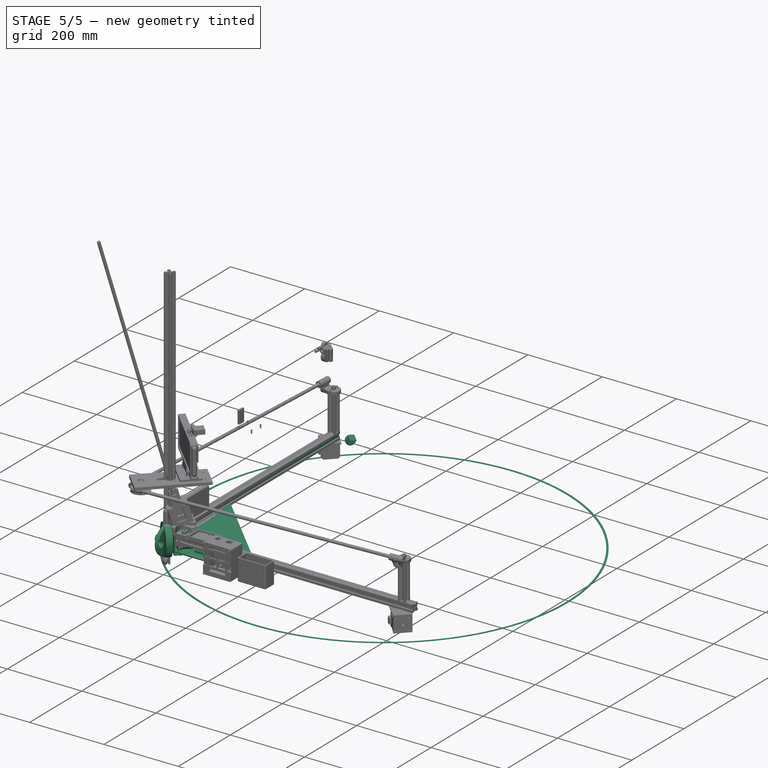
[diagram: stage 5 of 5 — iso view after this stage's code; geometry added in this stage tinted green]
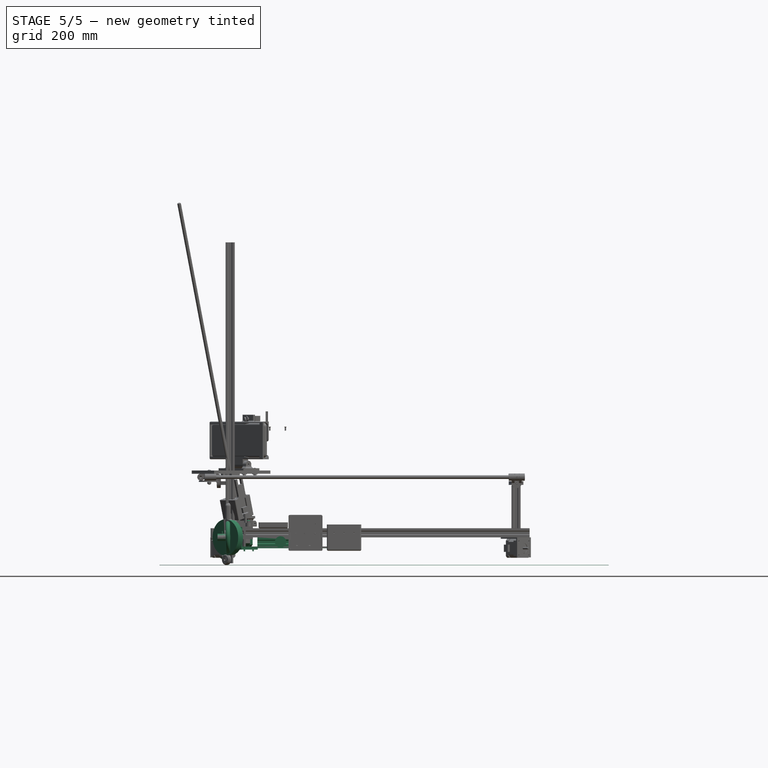
[diagram: stage 5 of 5 — front view after this stage's code; geometry added in this stage tinted green]
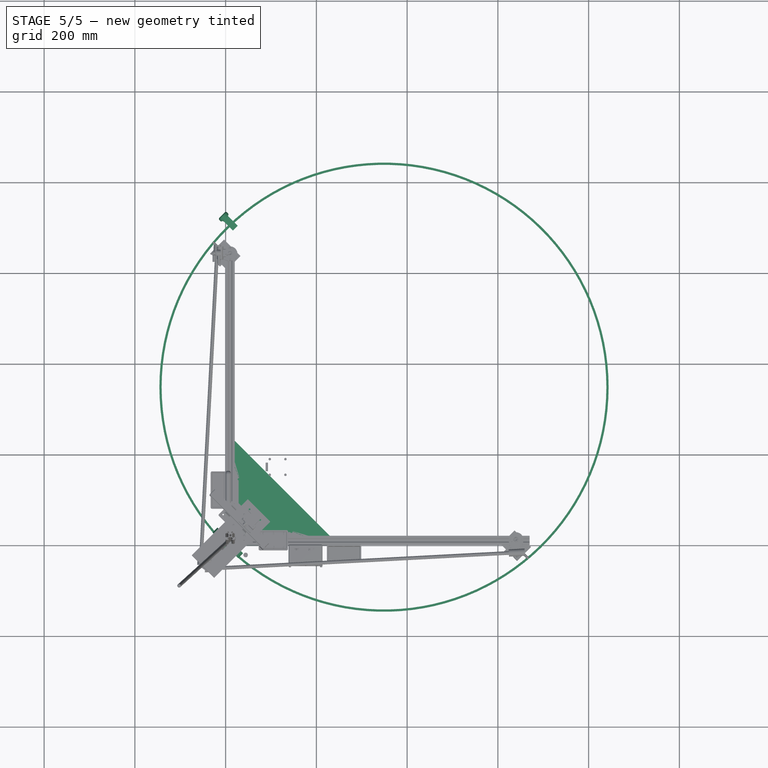
[diagram: stage 5 of 5 — top view after this stage's code; geometry added in this stage tinted green]
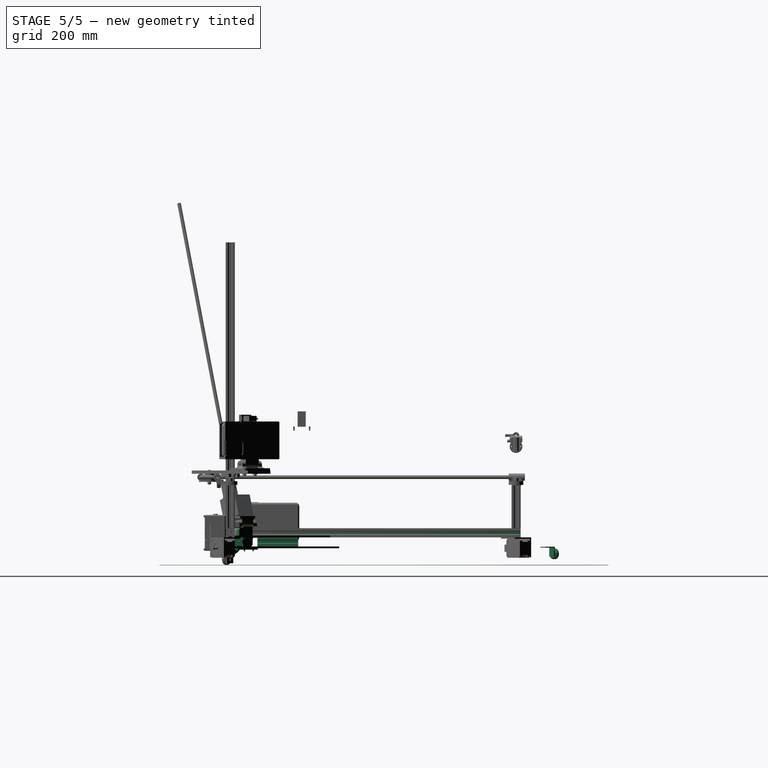
[diagram: stage 5 of 5 — right view after this stage's code; geometry added in this stage tinted green]
FEATURE [Sketcher::SketchObject] Sketch
  FullyConstrained = true
  sketch-geometry (37):
    g0: LineSegment StartX=0 StartY=0 StartZ=0 EndX=10 EndY=10 EndZ=0
    g1: LineSegment StartX=10 StartY=10 StartZ=0 EndX=20 EndY=20 EndZ=0
    g2: LineSegment StartX=0 StartY=20 StartZ=0 EndX=10 EndY=10 EndZ=0
    g3: LineSegment StartX=10 StartY=10 StartZ=0 EndX=20 EndY=0 EndZ=0
    g4: Circle CenterX=10 CenterY=10 CenterZ=0 NormalX=0 NormalY=0 NormalZ=1 AngleXU=0 Radius=2.5
    g5: LineSegment StartX=0 StartY=20 StartZ=0 EndX=5.5 EndY=20 EndZ=0
    g6: LineSegment StartX=5.5 StartY=20 StartZ=0 EndX=7 EndY=18 EndZ=0
    g7: LineSegment StartX=7 StartY=18 StartZ=0 EndX=13 EndY=18 EndZ=0
    g8: LineSegment StartX=13 StartY=18 StartZ=0 EndX=14.5 EndY=20 EndZ=0
    g9: LineSegment StartX=14.5 StartY=20 StartZ=0 EndX=20 EndY=20 EndZ=0
    g10: LineSegment StartX=20 StartY=20 StartZ=0 EndX=20 EndY=14.5 EndZ=0
    g11: LineSegment StartX=20 StartY=14.5 StartZ=0 EndX=18 EndY=13 EndZ=0
    g12: LineSegment StartX=18 StartY=13 StartZ=0 EndX=18 EndY=7 EndZ=0
    g13: LineSegment StartX=18 StartY=7 StartZ=0 EndX=20 EndY=5.5 EndZ=0
    g14: LineSegment StartX=20 StartY=5.5 StartZ=0 EndX=20 EndY=0 EndZ=0
    g15: LineSegment StartX=20 StartY=0 StartZ=0 EndX=14.5 EndY=0 EndZ=0
    g16: LineSegment StartX=14.5 StartY=0 StartZ=0 EndX=13 EndY=2 EndZ=0
    g17: LineSegment StartX=13 StartY=2 StartZ=0 EndX=7 EndY=2 EndZ=0
    g18: LineSegment StartX=7 StartY=2 StartZ=0 EndX=5.5 EndY=0 EndZ=0
    g19: LineSegment StartX=5.5 StartY=0 StartZ=0 EndX=0 EndY=0 EndZ=0
    g20: LineSegment StartX=0 StartY=0 StartZ=0 EndX=0 EndY=5.5 EndZ=0
    g21: LineSegment StartX=0 StartY=5.5 StartZ=0 EndX=2 EndY=7 EndZ=0
    g22: LineSegment StartX=2 StartY=7 StartZ=0 EndX=2 EndY=13 EndZ=0
    g23: LineSegment StartX=2 StartY=13 StartZ=0 EndX=0 EndY=14.5 EndZ=0
    g24: LineSegment StartX=0 StartY=14.5 StartZ=0 EndX=0 EndY=20 EndZ=0
    g25: LineSegment StartX=5.5 StartY=20 StartZ=0 EndX=14.5 EndY=20 EndZ=0
    g26: LineSegment StartX=20 StartY=14.5 StartZ=0 EndX=20 EndY=5.5 EndZ=0
    g27: LineSegment StartX=14.5 StartY=0 StartZ=0 EndX=5.5 EndY=0 EndZ=0
    g28: LineSegment StartX=0 StartY=5.5 StartZ=0 EndX=0 EndY=14.5 EndZ=0
    g29: LineSegment StartX=2 StartY=13 StartZ=0 EndX=2 EndY=18 EndZ=0
    g30: LineSegment StartX=2 StartY=18 StartZ=0 EndX=7 EndY=18 EndZ=0
    g31: LineSegment StartX=13 StartY=18 StartZ=0 EndX=18 EndY=18 EndZ=0
    g32: LineSegment StartX=18 StartY=18 StartZ=0 EndX=18 EndY=13 EndZ=0
    g33: LineSegment StartX=18 StartY=7 StartZ=0 EndX=18 EndY=2 EndZ=0
    g34: LineSegment StartX=18 StartY=2 StartZ=0 EndX=13 EndY=2 EndZ=0
    g35: LineSegment StartX=7 StartY=2 StartZ=0 EndX=2 EndY=2 EndZ=0
    g36: LineSegment StartX=2 StartY=2 StartZ=0 EndX=2 EndY=7 EndZ=0
  constraints (98):
    c: Coincident(g-1,g0)
    c: Coincident(g0,g1)
    c: Coincident(g2,g0)
    c: Coincident(g2,g3)
    c: Parallel(g3,g2)
    c: Parallel(g0,g1)
    c: Coincident(g4,g0)
    c: Radius(g4) = 2.5
    c: Horizontal(g5)
    c: Coincident(g5,g6)
    c: Coincident(g6,g7)
    c: Horizontal(g7)
    c: Coincident(g7,g8)
    c: Coincident(g8,g9)
    c: Horizontal(g9)
    c: Coincident(g9,g10)
    c: Vertical(g10)
    c: Coincident(g10,g11)
    c: Coincident(g11,g12)
    c: Vertical(g12)
    c: Coincident(g12,g13)
    c: Coincident(g13,g14)
    c: Vertical(g14)
    c: Coincident(g14,g15)
    c: Horizontal(g15)
    c: Coincident(g15,g16)
    c: Coincident(g16,g17)
    c: Horizontal(g17)
    c: Coincident(g17,g18)
    c: Coincident(g18,g19)
    c: Coincident(g19,g-1)
    c: Horizontal(g19)
    c: Coincident(g19,g20)
    c: Vertical(g20)
    c: Coincident(g20,g21)
    c: Coincident(g21,g22)
    c: Vertical(g22)
    c: Coincident(g22,g23)
    c: Coincident(g23,g24)
    c: Coincident(g24,g5)
    c: Vertical(g24)
    c: Equal(g15,g14)
    c: Equal(g14,g19)
    c: Equal(g19,g20)
    c: Equal(g20,g24)
    c: Equal(g24,g5)
    c: Equal(g5,g9)
    c: Equal(g9,g10)
    c: Equal(g22,g17)
    c: Equal(g17,g12)
    c: Equal(g12,g7)
    c: Equal(g8,g6)
    c: Equal(g6,g23)
    c: Equal(g23,g21)
    c: Equal(g21,g18)
    c: Equal(g18,g16)
    c: Equal(g16,g13)
    c: Equal(g13,g11)
    c: DistanceX(g5,g5) = 5.5
    c: DistanceX(g7,g7) = 6
    c: Coincident(g25,g5)
    c: Coincident(g25,g8)
    c: Coincident(g26,g10)
    c: Coincident(g26,g13)
    c: Coincident(g27,g15)
    c: Coincident(g27,g18)
    c: Coincident(g28,g20)
    c: Coincident(g28,g23)
    c: Horizontal(g25)
    c: Horizontal(g27)
    c: Vertical(g28)
    c: Vertical(g26)
    c: Coincident(g29,g22)
    c: Vertical(g29)
    c: Coincident(g30,g29)
    c: Coincident(g30,g6)
    c: Horizontal(g30)
    c: Coincident(g31,g7)
    c: Horizontal(g31)
    c: Coincident(g32,g31)
    c: Coincident(g32,g11)
    c: Coincident(g33,g12)
    c: PointOnObject(g33,g3)
    c: Vertical(g33)
    c: Coincident(g34,g33)
    c: Coincident(g34,g16)
    c: Coincident(g35,g17)
    c: PointOnObject(g35,g0)
    c: Coincident(g36,g35)
    c: Coincident(g36,g21)
    c: Vertical(g36)
    c: PointOnObject(g29,g2)
    c: Coincident(g1,g9)
    c: Coincident(g2,g5)
    c: Coincident(g3,g14)
    c: PointOnObject(g31,g1)
    c: DistanceY(g14,g9) = 20
    c: DistanceY(g33,g31) = 16
FEATURE [Part::Extrusion] Extrude  label="leg2-x"
  Base = -> Sketch
  Dir = (0,0,1)
  DirMode = 2
  FaceMakerClass = Part::FaceMakerBullseye
  LengthFwd = 650
  LengthRev = 0
  Placement = pos=(0,650,0) rot=(1,0,0;1.5708rad)
  Solid = true
  Symmetric = false
FEATURE [Sketcher::SketchObject] Sketch001
  FullyConstrained = true
  sketch-geometry (37):
    g0: LineSegment StartX=0 StartY=0 StartZ=0 EndX=10 EndY=10 EndZ=0
    g1: LineSegment StartX=10 StartY=10 StartZ=0 EndX=20 EndY=20 EndZ=0
    g2: LineSegment StartX=0 StartY=20 StartZ=0 EndX=10 EndY=10 EndZ=0
    g3: LineSegment StartX=10 StartY=10 StartZ=0 EndX=20 EndY=0 EndZ=0
    g4: Circle CenterX=10 CenterY=10 CenterZ=0 NormalX=0 NormalY=0 NormalZ=1 AngleXU=0 Radius=2.5
    g5: LineSegment StartX=0 StartY=20 StartZ=0 EndX=5.5 EndY=20 EndZ=0
    g6: LineSegment StartX=5.5 StartY=20 StartZ=0 EndX=7 EndY=18 EndZ=0
    g7: LineSegment StartX=7 StartY=18 StartZ=0 EndX=13 EndY=18 EndZ=0
    g8: LineSegment StartX=13 StartY=18 StartZ=0 EndX=14.5 EndY=20 EndZ=0
    g9: LineSegment StartX=14.5 StartY=20 StartZ=0 EndX=20 EndY=20 EndZ=0
    g10: LineSegment StartX=20 StartY=20 StartZ=0 EndX=20 EndY=14.5 EndZ=0
    g11: LineSegment StartX=20 StartY=14.5 StartZ=0 EndX=18 EndY=13 EndZ=0
    g12: LineSegment StartX=18 StartY=13 StartZ=0 EndX=18 EndY=7 EndZ=0
    g13: LineSegment StartX=18 StartY=7 StartZ=0 EndX=20 EndY=5.5 EndZ=0
    g14: LineSegment StartX=20 StartY=5.5 StartZ=0 EndX=20 EndY=0 EndZ=0
    g15: LineSegment StartX=20 StartY=0 StartZ=0 EndX=14.5 EndY=0 EndZ=0
    g16: LineSegment StartX=14.5 StartY=0 StartZ=0 EndX=13 EndY=2 EndZ=0
    g17: LineSegment StartX=13 StartY=2 StartZ=0 EndX=7 EndY=2 EndZ=0
    g18: LineSegment StartX=7 StartY=2 StartZ=0 EndX=5.5 EndY=0 EndZ=0
    g19: LineSegment StartX=5.5 StartY=0 StartZ=0 EndX=0 EndY=0 EndZ=0
    g20: LineSegment StartX=0 StartY=0 StartZ=0 EndX=0 EndY=5.5 EndZ=0
    g21: LineSegment StartX=0 StartY=5.5 StartZ=0 EndX=2 EndY=7 EndZ=0
    g22: LineSegment StartX=2 StartY=7 StartZ=0 EndX=2 EndY=13 EndZ=0
    g23: LineSegment StartX=2 StartY=13 StartZ=0 EndX=0 EndY=14.5 EndZ=0
    g24: LineSegment StartX=0 StartY=14.5 StartZ=0 EndX=0 EndY=20 EndZ=0
    g25: LineSegment StartX=5.5 StartY=20 StartZ=0 EndX=14.5 EndY=20 EndZ=0
    g26: LineSegment StartX=20 StartY=14.5 StartZ=0 EndX=20 EndY=5.5 EndZ=0
    g27: LineSegment StartX=14.5 StartY=0 StartZ=0 EndX=5.5 EndY=0 EndZ=0
    g28: LineSegment StartX=0 StartY=5.5 StartZ=0 EndX=0 EndY=14.5 EndZ=0
    g29: LineSegment StartX=2 StartY=13 StartZ=0 EndX=2 EndY=18 EndZ=0
    g30: LineSegment StartX=2 StartY=18 StartZ=0 EndX=7 EndY=18 EndZ=0
    g31: LineSegment StartX=13 StartY=18 StartZ=0 EndX=18 EndY=18 EndZ=0
    g32: LineSegment StartX=18 StartY=18 StartZ=0 EndX=18 EndY=13 EndZ=0
    g33: LineSegment StartX=18 StartY=7 StartZ=0 EndX=18 EndY=2 EndZ=0
    g34: LineSegment StartX=18 StartY=2 StartZ=0 EndX=13 EndY=2 EndZ=0
    g35: LineSegment StartX=7 StartY=2 StartZ=0 EndX=2 EndY=2 EndZ=0
    g36: LineSegment StartX=2 StartY=2 StartZ=0 EndX=2 EndY=7 EndZ=0
  constraints (98):
    c: Coincident(g-1,g0)
    c: Coincident(g0,g1)
    c: Coincident(g2,g0)
    c: Coincident(g2,g3)
    c: Parallel(g3,g2)
    c: Parallel(g0,g1)
    c: Coincident(g4,g0)
    c: Radius(g4) = 2.5
    c: Horizontal(g5)
    c: Coincident(g5,g6)
    c: Coincident(g6,g7)
    c: Horizontal(g7)
    c: Coincident(g7,g8)
    c: Coincident(g8,g9)
    c: Horizontal(g9)
    c: Coincident(g9,g10)
    c: Vertical(g10)
    c: Coincident(g10,g11)
    c: Coincident(g11,g12)
    c: Vertical(g12)
    c: Coincident(g12,g13)
    c: Coincident(g13,g14)
    c: Vertical(g14)
    c: Coincident(g14,g15)
    c: Horizontal(g15)
    c: Coincident(g15,g16)
    c: Coincident(g16,g17)
    c: Horizontal(g17)
    c: Coincident(g17,g18)
    c: Coincident(g18,g19)
    c: Coincident(g19,g-1)
    c: Horizontal(g19)
    c: Coincident(g19,g20)
    c: Vertical(g20)
    c: Coincident(g20,g21)
    c: Coincident(g21,g22)
    c: Vertical(g22)
    c: Coincident(g22,g23)
    c: Coincident(g23,g24)
    c: Coincident(g24,g5)
    c: Vertical(g24)
    c: Equal(g15,g14)
    c: Equal(g14,g19)
    c: Equal(g19,g20)
    c: Equal(g20,g24)
    c: Equal(g24,g5)
    c: Equal(g5,g9)
    c: Equal(g9,g10)
    c: Equal(g22,g17)
    c: Equal(g17,g12)
    c: Equal(g12,g7)
    c: Equal(g8,g6)
    c: Equal(g6,g23)
    c: Equal(g23,g21)
    c: Equal(g21,g18)
    c: Equal(g18,g16)
    c: Equal(g16,g13)
    c: Equal(g13,g11)
    c: DistanceX(g5,g5) = 5.5
    c: DistanceX(g7,g7) = 6
    c: Coincident(g25,g5)
    c: Coincident(g25,g8)
    c: Coincident(g26,g10)
    c: Coincident(g26,g13)
    c: Coincident(g27,g15)
    c: Coincident(g27,g18)
    c: Coincident(g28,g20)
    c: Coincident(g28,g23)
    c: Horizontal(g25)
    c: Horizontal(g27)
    c: Vertical(g28)
    c: Vertical(g26)
    c: Coincident(g29,g22)
    c: Vertical(g29)
    c: Coincident(g30,g29)
    c: Coincident(g30,g6)
    c: Horizontal(g30)
    c: Coincident(g31,g7)
    c: Horizontal(g31)
    c: Coincident(g32,g31)
    c: Coincident(g32,g11)
    c: Coincident(g33,g12)
    c: PointOnObject(g33,g3)
    c: Vertical(g33)
    c: Coincident(g34,g33)
    c: Coincident(g34,g16)
    c: Coincident(g35,g17)
    c: PointOnObject(g35,g0)
    c: Coincident(g36,g35)
    c: Coincident(g36,g21)
    c: Vertical(g36)
    c: PointOnObject(g29,g2)
    c: Coincident(g1,g9)
    c: Coincident(g2,g5)
    c: Coincident(g3,g14)
    c: PointOnObject(g31,g1)
    c: DistanceY(g14,g9) = 20
    c: DistanceY(g33,g31) = 16
FEATURE [Part::Extrusion] Extrude001  label="leg1"
  Base = -> Sketch001
  Dir = (0,0,1)
  DirMode = 2
  FaceMakerClass = Part::FaceMakerBullseye
  LengthFwd = 650
  LengthRev = 0
  Placement = pos=(20,0,20) rot=(0,1,0;1.5708rad)
  Solid = true
  Symmetric = false
FEATURE [Sketcher::SketchObject] Sketch002
  FullyConstrained = true
  sketch-geometry (37):
    g0: LineSegment StartX=0 StartY=0 StartZ=0 EndX=10 EndY=10 EndZ=0
    g1: LineSegment StartX=10 StartY=10 StartZ=0 EndX=20 EndY=20 EndZ=0
    g2: LineSegment StartX=0 StartY=20 StartZ=0 EndX=10 EndY=10 EndZ=0
    g3: LineSegment StartX=10 StartY=10 StartZ=0 EndX=20 EndY=0 EndZ=0
    g4: Circle CenterX=10 CenterY=10 CenterZ=0 NormalX=0 NormalY=0 NormalZ=1 AngleXU=0 Radius=2.5
    g5: LineSegment StartX=0 StartY=20 StartZ=0 EndX=5.5 EndY=20 EndZ=0
    g6: LineSegment StartX=5.5 StartY=20 StartZ=0 EndX=7 EndY=18 EndZ=0
    g7: LineSegment StartX=7 StartY=18 StartZ=0 EndX=13 EndY=18 EndZ=0
    g8: LineSegment StartX=13 StartY=18 StartZ=0 EndX=14.5 EndY=20 EndZ=0
    g9: LineSegment StartX=14.5 StartY=20 StartZ=0 EndX=20 EndY=20 EndZ=0
    g10: LineSegment StartX=20 StartY=20 StartZ=0 EndX=20 EndY=14.5 EndZ=0
    g11: LineSegment StartX=20 StartY=14.5 StartZ=0 EndX=18 EndY=13 EndZ=0
    g12: LineSegment StartX=18 StartY=13 StartZ=0 EndX=18 EndY=7 EndZ=0
    g13: LineSegment StartX=18 StartY=7 StartZ=0 EndX=20 EndY=5.5 EndZ=0
    g14: LineSegment StartX=20 StartY=5.5 StartZ=0 EndX=20 EndY=0 EndZ=0
    g15: LineSegment StartX=20 StartY=0 StartZ=0 EndX=14.5 EndY=0 EndZ=0
    g16: LineSegment StartX=14.5 StartY=0 StartZ=0 EndX=13 EndY=2 EndZ=0
    g17: LineSegment StartX=13 StartY=2 StartZ=0 EndX=7 EndY=2 EndZ=0
    g18: LineSegment StartX=7 StartY=2 StartZ=0 EndX=5.5 EndY=0 EndZ=0
    g19: LineSegment StartX=5.5 StartY=0 StartZ=0 EndX=0 EndY=0 EndZ=0
    g20: LineSegment StartX=0 StartY=0 StartZ=0 EndX=0 EndY=5.5 EndZ=0
    g21: LineSegment StartX=0 StartY=5.5 StartZ=0 EndX=2 EndY=7 EndZ=0
    g22: LineSegment StartX=2 StartY=7 StartZ=0 EndX=2 EndY=13 EndZ=0
    g23: LineSegment StartX=2 StartY=13 StartZ=0 EndX=0 EndY=14.5 EndZ=0
    g24: LineSegment StartX=0 StartY=14.5 StartZ=0 EndX=0 EndY=20 EndZ=0
    g25: LineSegment StartX=5.5 StartY=20 StartZ=0 EndX=14.5 EndY=20 EndZ=0
    g26: LineSegment StartX=20 StartY=14.5 StartZ=0 EndX=20 EndY=5.5 EndZ=0
    g27: LineSegment StartX=14.5 StartY=0 StartZ=0 EndX=5.5 EndY=0 EndZ=0
    g28: LineSegment StartX=0 StartY=5.5 StartZ=0 EndX=0 EndY=14.5 EndZ=0
    g29: LineSegment StartX=2 StartY=13 StartZ=0 EndX=2 EndY=18 EndZ=0
    g30: LineSegment StartX=2 StartY=18 StartZ=0 EndX=7 EndY=18 EndZ=0
    g31: LineSegment StartX=13 StartY=18 StartZ=0 EndX=18 EndY=18 EndZ=0
    g32: LineSegment StartX=18 StartY=18 StartZ=0 EndX=18 EndY=13 EndZ=0
    g33: LineSegment StartX=18 StartY=7 StartZ=0 EndX=18 EndY=2 EndZ=0
    g34: LineSegment StartX=18 StartY=2 StartZ=0 EndX=13 EndY=2 EndZ=0
    g35: LineSegment StartX=7 StartY=2 StartZ=0 EndX=2 EndY=2 EndZ=0
    g36: LineSegment StartX=2 StartY=2 StartZ=0 EndX=2 EndY=7 EndZ=0
  constraints (98):
    c: Coincident(g-1,g0)
    c: Coincident(g0,g1)
    c: Coincident(g2,g0)
    c: Coincident(g2,g3)
    c: Parallel(g3,g2)
    c: Parallel(g0,g1)
    c: Coincident(g4,g0)
    c: Radius(g4) = 2.5
    c: Horizontal(g5)
    c: Coincident(g5,g6)
    c: Coincident(g6,g7)
    c: Horizontal(g7)
    c: Coincident(g7,g8)
    c: Coincident(g8,g9)
    c: Horizontal(g9)
    c: Coincident(g9,g10)
    c: Vertical(g10)
    c: Coincident(g10,g11)
    c: Coincident(g11,g12)
    c: Vertical(g12)
    c: Coincident(g12,g13)
    c: Coincident(g13,g14)
    c: Vertical(g14)
    c: Coincident(g14,g15)
    c: Horizontal(g15)
    c: Coincident(g15,g16)
    c: Coincident(g16,g17)
    c: Horizontal(g17)
    c: Coincident(g17,g18)
    c: Coincident(g18,g19)
    c: Coincident(g19,g-1)
    c: Horizontal(g19)
    c: Coincident(g19,g20)
    c: Vertical(g20)
    c: Coincident(g20,g21)
    c: Coincident(g21,g22)
    c: Vertical(g22)
    c: Coincident(g22,g23)
    c: Coincident(g23,g24)
    c: Coincident(g24,g5)
    c: Vertical(g24)
    c: Equal(g15,g14)
    c: Equal(g14,g19)
    c: Equal(g19,g20)
    c: Equal(g20,g24)
    c: Equal(g24,g5)
    c: Equal(g5,g9)
    c: Equal(g9,g10)
    c: Equal(g22,g17)
    c: Equal(g17,g12)
    c: Equal(g12,g7)
    c: Equal(g8,g6)
    c: Equal(g6,g23)
    c: Equal(g23,g21)
    c: Equal(g21,g18)
    c: Equal(g18,g16)
    c: Equal(g16,g13)
    c: Equal(g13,g11)
    c: DistanceX(g5,g5) = 5.5
    c: DistanceX(g7,g7) = 6
    c: Coincident(g25,g5)
    c: Coincident(g25,g8)
    c: Coincident(g26,g10)
    c: Coincident(g26,g13)
    c: Coincident(g27,g15)
    c: Coincident(g27,g18)
    c: Coincident(g28,g20)
    c: Coincident(g28,g23)
    c: Horizontal(g25)
    c: Horizontal(g27)
    c: Vertical(g28)
    c: Vertical(g26)
    c: Coincident(g29,g22)
    c: Vertical(g29)
    c: Coincident(g30,g29)
    c: Coincident(g30,g6)
    c: Horizontal(g30)
    c: Coincident(g31,g7)
    c: Horizontal(g31)
    c: Coincident(g32,g31)
    c: Coincident(g32,g11)
    c: Coincident(g33,g12)
    c: PointOnObject(g33,g3)
    c: Vertical(g33)
    c: Coincident(g34,g33)
    c: Coincident(g34,g16)
    c: Coincident(g35,g17)
    c: PointOnObject(g35,g0)
    c: Coincident(g36,g35)
    c: Coincident(g36,g21)
    c: Vertical(g36)
    c: PointOnObject(g29,g2)
    c: Coincident(g1,g9)
    c: Coincident(g2,g5)
    c: Coincident(g3,g14)
    c: PointOnObject(g31,g1)
    c: DistanceY(g14,g9) = 20
    c: DistanceY(g33,g31) = 16
FEATURE [Part::Extrusion] Extrude002  label="leg1-end-stop"
  Base = -> Sketch002
  Dir = (0,0,1)
  DirMode = 2
  FaceMakerClass = Part::FaceMakerBullseye
  LengthFwd = 90
  LengthRev = 0
  Placement = pos=(70,19,0) rot=(0,1,0;1.5708rad)
  Solid = true
  Symmetric = false
FEATURE [Sketcher::SketchObject] Sketch003
  FullyConstrained = true
  sketch-geometry (37):
    g0: LineSegment StartX=0 StartY=0 StartZ=0 EndX=10 EndY=10 EndZ=0
    g1: LineSegment StartX=10 StartY=10 StartZ=0 EndX=20 EndY=20 EndZ=0
    g2: LineSegment StartX=0 StartY=20 StartZ=0 EndX=10 EndY=10 EndZ=0
    g3: LineSegment StartX=10 StartY=10 StartZ=0 EndX=20 EndY=0 EndZ=0
    g4: Circle CenterX=10 CenterY=10 CenterZ=0 NormalX=0 NormalY=0 NormalZ=1 AngleXU=0 Radius=2.5
    g5: LineSegment StartX=0 StartY=20 StartZ=0 EndX=5.5 EndY=20 EndZ=0
    g6: LineSegment StartX=5.5 StartY=20 StartZ=0 EndX=7 EndY=18 EndZ=0
    g7: LineSegment StartX=7 StartY=18 StartZ=0 EndX=13 EndY=18 EndZ=0
    g8: LineSegment StartX=13 StartY=18 StartZ=0 EndX=14.5 EndY=20 EndZ=0
    g9: LineSegment StartX=14.5 StartY=20 StartZ=0 EndX=20 EndY=20 EndZ=0
    g10: LineSegment StartX=20 StartY=20 StartZ=0 EndX=20 EndY=14.5 EndZ=0
    g11: LineSegment StartX=20 StartY=14.5 StartZ=0 EndX=18 EndY=13 EndZ=0
    g12: LineSegment StartX=18 StartY=13 StartZ=0 EndX=18 EndY=7 EndZ=0
    g13: LineSegment StartX=18 StartY=7 StartZ=0 EndX=20 EndY=5.5 EndZ=0
    g14: LineSegment StartX=20 StartY=5.5 StartZ=0 EndX=20 EndY=0 EndZ=0
    g15: LineSegment StartX=20 StartY=0 StartZ=0 EndX=14.5 EndY=0 EndZ=0
    g16: LineSegment StartX=14.5 StartY=0 StartZ=0 EndX=13 EndY=2 EndZ=0
    g17: LineSegment StartX=13 StartY=2 StartZ=0 EndX=7 EndY=2 EndZ=0
    g18: LineSegment StartX=7 StartY=2 StartZ=0 EndX=5.5 EndY=0 EndZ=0
    g19: LineSegment StartX=5.5 StartY=0 StartZ=0 EndX=0 EndY=0 EndZ=0
    g20: LineSegment StartX=0 StartY=0 StartZ=0 EndX=0 EndY=5.5 EndZ=0
    g21: LineSegment StartX=0 StartY=5.5 StartZ=0 EndX=2 EndY=7 EndZ=0
    g22: LineSegment StartX=2 StartY=7 StartZ=0 EndX=2 EndY=13 EndZ=0
    g23: LineSegment StartX=2 StartY=13 StartZ=0 EndX=0 EndY=14.5 EndZ=0
    g24: LineSegment StartX=0 StartY=14.5 StartZ=0 EndX=0 EndY=20 EndZ=0
    g25: LineSegment StartX=5.5 StartY=20 StartZ=0 EndX=14.5 EndY=20 EndZ=0
    g26: LineSegment StartX=20 StartY=14.5 StartZ=0 EndX=20 EndY=5.5 EndZ=0
    g27: LineSegment StartX=14.5 StartY=0 StartZ=0 EndX=5.5 EndY=0 EndZ=0
    g28: LineSegment StartX=0 StartY=5.5 StartZ=0 EndX=0 EndY=14.5 EndZ=0
    g29: LineSegment StartX=2 StartY=13 StartZ=0 EndX=2 EndY=18 EndZ=0
    g30: LineSegment StartX=2 StartY=18 StartZ=0 EndX=7 EndY=18 EndZ=0
    g31: LineSegment StartX=13 StartY=18 StartZ=0 EndX=18 EndY=18 EndZ=0
    g32: LineSegment StartX=18 StartY=18 StartZ=0 EndX=18 EndY=13 EndZ=0
    g33: LineSegment StartX=18 StartY=7 StartZ=0 EndX=18 EndY=2 EndZ=0
    g34: LineSegment StartX=18 StartY=2 StartZ=0 EndX=13 EndY=2 EndZ=0
    g35: LineSegment StartX=7 StartY=2 StartZ=0 EndX=2 EndY=2 EndZ=0
    g36: LineSegment StartX=2 StartY=2 StartZ=0 EndX=2 EndY=7 EndZ=0
  constraints (98):
    c: Coincident(g-1,g0)
    c: Coincident(g0,g1)
    c: Coincident(g2,g0)
    c: Coincident(g2,g3)
    c: Parallel(g3,g2)
    c: Parallel(g0,g1)
    c: Coincident(g4,g0)
    c: Radius(g4) = 2.5
    c: Horizontal(g5)
    c: Coincident(g5,g6)
    c: Coincident(g6,g7)
    c: Horizontal(g7)
    c: Coincident(g7,g8)
    c: Coincident(g8,g9)
    c: Horizontal(g9)
    c: Coincident(g9,g10)
    c: Vertical(g10)
    c: Coincident(g10,g11)
    c: Coincident(g11,g12)
    c: Vertical(g12)
    c: Coincident(g12,g13)
    c: Coincident(g13,g14)
    c: Vertical(g14)
    c: Coincident(g14,g15)
    c: Horizontal(g15)
    c: Coincident(g15,g16)
    c: Coincident(g16,g17)
    c: Horizontal(g17)
    c: Coincident(g17,g18)
    c: Coincident(g18,g19)
    c: Coincident(g19,g-1)
    c: Horizontal(g19)
    c: Coincident(g19,g20)
    c: Vertical(g20)
    c: Coincident(g20,g21)
    c: Coincident(g21,g22)
    c: Vertical(g22)
    c: Coincident(g22,g23)
    c: Coincident(g23,g24)
    c: Coincident(g24,g5)
    c: Vertical(g24)
    c: Equal(g15,g14)
    c: Equal(g14,g19)
    c: Equal(g19,g20)
    c: Equal(g20,g24)
    c: Equal(g24,g5)
    c: Equal(g5,g9)
    c: Equal(g9,g10)
    c: Equal(g22,g17)
    c: Equal(g17,g12)
    c: Equal(g12,g7)
    c: Equal(g8,g6)
    c: Equal(g6,g23)
    c: Equal(g23,g21)
    c: Equal(g21,g18)
    c: Equal(g18,g16)
    c: Equal(g16,g13)
    c: Equal(g13,g11)
    c: DistanceX(g5,g5) = 5.5
    c: DistanceX(g7,g7) = 6
    c: Coincident(g25,g5)
    c: Coincident(g25,g8)
    c: Coincident(g26,g10)
    c: Coincident(g26,g13)
    c: Coincident(g27,g15)
    c: Coincident(g27,g18)
    c: Coincident(g28,g20)
    c: Coincident(g28,g23)
    c: Horizontal(g25)
    c: Horizontal(g27)
    c: Vertical(g28)
    c: Vertical(g26)
    c: Coincident(g29,g22)
    c: Vertical(g29)
    c: Coincident(g30,g29)
    c: Coincident(g30,g6)
    c: Horizontal(g30)
    c: Coincident(g31,g7)
    c: Horizontal(g31)
    c: Coincident(g32,g31)
    c: Coincident(g32,g11)
    c: Coincident(g33,g12)
    c: PointOnObject(g33,g3)
    c: Vertical(g33)
    c: Coincident(g34,g33)
    c: Coincident(g34,g16)
    c: Coincident(g35,g17)
    c: PointOnObject(g35,g0)
    c: Coincident(g36,g35)
    c: Coincident(g36,g21)
    c: Vertical(g36)
    c: PointOnObject(g29,g2)
    c: Coincident(g1,g9)
    c: Coincident(g2,g5)
    c: Coincident(g3,g14)
    c: PointOnObject(g31,g1)
    c: DistanceY(g14,g9) = 20
    c: DistanceY(g33,g31) = 16
FEATURE [Part::Extrusion] Extrude003  label="leg2-end-stop"
  Base = -> Sketch003
  Dir = (0,0,1)
  DirMode = 2
  FaceMakerClass = Part::FaceMakerBullseye
  LengthFwd = 90
  LengthRev = 0
  Placement = pos=(19,160,-20) rot=(1,0,0;1.5708rad)
  Solid = true
  Symmetric = false
FEATURE [Sketcher::SketchObject] Sketch004
  FullyConstrained = false
  sketch-geometry (7):
    g0: LineSegment StartX=250 StartY=0 StartZ=0 EndX=250 EndY=250 EndZ=0
    g1: LineSegment StartX=250 StartY=250 StartZ=0 EndX=0 EndY=250 EndZ=0
    g2: LineSegment StartX=0 StartY=250 StartZ=0 EndX=0 EndY=100 EndZ=0
    g3: LineSegment StartX=100 StartY=0 StartZ=0 EndX=250 EndY=0 EndZ=0
    g4: LineSegment StartX=0 StartY=100 StartZ=0 EndX=100 EndY=0 EndZ=0
    g5: LineSegment StartX=0 StartY=250 StartZ=0 EndX=250 EndY=0 EndZ=0
    g6: LineSegment StartX=52.6379 StartY=44.2663 StartZ=0 EndX=129.186 EndY=120.814 EndZ=0
  constraints (21):
    c: Coincident(g0,g1)
    c: Horizontal(g1)
    c: Vertical(g0)
    c: PointOnObject(g2,g-2)
    c: Vertical(g2)
    c: PointOnObject(g3,g-1)
    c: Horizontal(g3)
    c: Equal(g3,g2)
    c: Coincident(g4,g2)
    c: Coincident(g4,g3)
    c: Coincident(g2,g1)
    c: Coincident(g0,g3)
    c: DistanceX(g-1,g3) = 250
    c: DistanceX(g3,g3) = 150
    c: Coincident(g5,g2)
    c: Coincident(g5,g3)
    c: Equal(g1,g0)
    c: PointOnObject(g6,g5)
    c: Perpendicular(g6,g5)
    c: Distance(g6) = 108.255
    c: Distance(g5) = 353.553
FEATURE [Part::Extrusion] Extrude004  label="top-plate"
  Base = -> Sketch004
  Dir = (0,0,1)
  DirMode = 2
  FaceMakerClass = Part::FaceMakerBullseye
  LengthFwd = 4
  LengthRev = 0
  Solid = true
  Symmetric = false
FEATURE [Sketcher::SketchObject] Sketch005
  FullyConstrained = false
  sketch-geometry (8):
    g0: LineSegment StartX=250 StartY=0 StartZ=0 EndX=250 EndY=250 EndZ=0
    g1: LineSegment StartX=250 StartY=250 StartZ=0 EndX=0 EndY=250 EndZ=0
    g2: LineSegment StartX=0 StartY=250 StartZ=0 EndX=0 EndY=30 EndZ=0
    g3: LineSegment StartX=0 StartY=30 StartZ=0 EndX=30 EndY=3.6e-15 EndZ=0
    g4: LineSegment StartX=30 StartY=0 StartZ=0 EndX=250 EndY=0 EndZ=0
    g5: LineSegment StartX=0 StartY=250 StartZ=0 EndX=250 EndY=0 EndZ=0
    g6: LineSegment StartX=16.394 StartY=13.606 StartZ=0 EndX=126.394 EndY=123.606 EndZ=0
    g7: LineSegment StartX=0 StartY=0 StartZ=0 EndX=15 EndY=15 EndZ=0
  constraints (28):
    c: Coincident(g0,g1)
    c: Horizontal(g1)
    c: Vertical(g0)
    c: PointOnObject(g2,g-2)
    c: PointOnObject(g2,g-2)
    c: Coincident(g2,g3)
    c: PointOnObject(g3,g-1)
    c: Coincident(g3,g4)
    c: Horizontal(g4)
    c: DistanceX(g-1,g4) = 250
    c: DistanceX(g4,g4) = 220
    c: Coincident(g2,g1)
    c: Equal(g1,g0)
    c: Coincident(g4,g0)
    c: Coincident(g5,g2)
    c: Coincident(g5,g4)
    c: Equal(g4,g2)
    c: Distance(g3) = 42.4264
    c: Distance(g2) = 220
    c: Distance(g5) = 353.553
    c: PointOnObject(g6,g3)
    c: PointOnObject(g6,g5)
    c: Perpendicular(g5,g6)
    c: Distance(g6) = 155.563
    c: Coincident(g7,g-1)
    c: PointOnObject(g7,g3)
    c: Perpendicular(g7,g3)
    c: Distance(g7) = 21.2132
FEATURE [Part::Extrusion] Extrude005  label="bottom-plate"
  Base = -> Sketch005
  Dir = (0,0,1)
  DirMode = 2
  FaceMakerClass = Part::FaceMakerBullseye
  LengthFwd = 4
  LengthRev = 0
  Placement = pos=(0,0,-24) rot=(0,0,1;0rad)
  Solid = true
  Symmetric = false
FEATURE [Part::Box] Box  label="Cube"
  AttacherType = Attacher::AttachEngine3D
  Height = 42
  Length = 8
  Width = 42
FEATURE [Part::Box] Box001  label="Cube001"
  AttacherType = Attacher::AttachEngine3D
  Height = 42
  Length = 16
  Placement = pos=(8,0,0) rot=(0,0,1;0rad)
  Width = 42
FEATURE [Part::Box] Box002  label="Cube002"
  AttacherType = Attacher::AttachEngine3D
  Height = 42
  Length = 8
  Placement = pos=(24,0,0) rot=(0,0,1;0rad)
  Width = 42
FEATURE [Part::Cylinder] Cylinder
  Angle = 360
  AttacherType = Attacher::AttachEngine3D
  FirstAngle = 0
  Height = 2
  Placement = pos=(0,21,21) rot=(0,-1,0;1.5708rad)
  Radius = 11
  SecondAngle = 0
FEATURE [Part::Cylinder] Cylinder001
  Angle = 360
  AttacherType = Attacher::AttachEngine3D
  FirstAngle = 0
  Height = 17
  Placement = pos=(0,21,21) rot=(0,-1,0;1.5708rad)
  Radius = 2.5
  SecondAngle = 0
FEATURE [Part::Chamfer] Chamfer
  Base = -> Cylinder001
  Edges = 1 edges r=0.5: [Edge3]
FEATURE [Part::Chamfer] Chamfer001
  Base = -> Box
  Edges = 4 edges r=4: [Edge9,Edge10,Edge11,Edge12]
FEATURE [Part::Chamfer] Chamfer002
  Base = -> Box002
  Edges = 4 edges r=4: [Edge9,Edge10,Edge11,Edge12]
FEATURE [Part::Chamfer] Chamfer003
  Base = -> Box001
  Edges = 4 edges r=7: [Edge9,Edge10,Edge11,Edge12]
FEATURE [Part::Cylinder] Cylinder002
  Angle = 360
  AttacherType = Attacher::AttachEngine3D
  FirstAngle = 0
  Height = 8
  Placement = pos=(8,36.5,5.5) rot=(0,-1,0;1.5708rad)
  Radius = 1.5
  SecondAngle = 0
FEATURE [Part::Cylinder] Cylinder003
  Angle = 360
  AttacherType = Attacher::AttachEngine3D
  FirstAngle = 0
  Height = 8
  Placement = pos=(8,5.5,5.5) rot=(0,-1,0;1.5708rad)
  Radius = 1.5
  SecondAngle = 0
FEATURE [Part::Cylinder] Cylinder004
  Angle = 360
  AttacherType = Attacher::AttachEngine3D
  FirstAngle = 0
  Height = 8
  Placement = pos=(8,36.5,36.5) rot=(0,-1,0;1.5708rad)
  Radius = 1.5
  SecondAngle = 0
FEATURE [Part::Cylinder] Cylinder005
  Angle = 360
  AttacherType = Attacher::AttachEngine3D
  FirstAngle = 0
  Height = 8
  Placement = pos=(8,5.5,36.5) rot=(0,-1,0;1.5708rad)
  Radius = 1.5
  SecondAngle = 0
FEATURE [Part::MultiFuse] Fusion
  Refine = true
  Shapes = -> [Cylinder002,Cylinder004,Cylinder005,Cylinder003]
FEATURE [Part::Cut] Cut
  Base = -> Chamfer001
  Refine = true
  Tool = -> Fusion
FEATURE [Part::Chamfer] Chamfer004
  Base = -> Cylinder
  Edges = 1 edges r=0.2: [Edge3]
FEATURE [Part::Box] Box003  label="Cube003"
  AttacherType = Attacher::AttachEngine3D
  Height = 42
  Length = 8
  Width = 42
FEATURE [Part::Box] Box004  label="Cube004"
  AttacherType = Attacher::AttachEngine3D
  Height = 42
  Length = 16
  Placement = pos=(8,0,0) rot=(0,0,1;0rad)
  Width = 42
FEATURE [Part::Box] Box005  label="Cube005"
  AttacherType = Attacher::AttachEngine3D
  Height = 42
  Length = 8
  Placement = pos=(24,0,0) rot=(0,0,1;0rad)
  Width = 42
FEATURE [Part::Chamfer] Chamfer006
  Base = -> Box003
  Edges = 4 edges r=4: [Edge9,Edge10,Edge11,Edge12]
FEATURE [Part::Chamfer] Chamfer007
  Base = -> Box005
  Edges = 4 edges r=4: [Edge9,Edge10,Edge11,Edge12]
FEATURE [Part::Chamfer] Chamfer008
  Base = -> Box004
  Edges = 4 edges r=7: [Edge9,Edge10,Edge11,Edge12]
FEATURE [Part::Cylinder] Cylinder006
  Angle = 360
  AttacherType = Attacher::AttachEngine3D
  FirstAngle = 0
  Height = 2
  Placement = pos=(0,21,21) rot=(0,-1,0;1.5708rad)
  Radius = 11
  SecondAngle = 0
FEATURE [Part::Chamfer] Chamfer009
  Base = -> Cylinder006
  Edges = 1 edges r=0.2: [Edge3]
FEATURE [Part::Cylinder] Cylinder007
  Angle = 360
  AttacherType = Attacher::AttachEngine3D
  FirstAngle = 0
  Height = 20
  Placement = pos=(0,21,21) rot=(0,-1,0;1.5708rad)
  Radius = 2.5
  SecondAngle = 0
FEATURE [Part::Chamfer] Chamfer005
  Base = -> Cylinder007
  Edges = 1 edges: [Edge3 r1=1 r2=0.2]
FEATURE [Part::Cylinder] Cylinder008
  Angle = 360
  AttacherType = Attacher::AttachEngine3D
  FirstAngle = 0
  Height = 8
  Placement = pos=(8,36.5,5.5) rot=(0,-1,0;1.5708rad)
  Radius = 1.5
  SecondAngle = 0
FEATURE [Part::Cylinder] Cylinder009
  Angle = 360
  AttacherType = Attacher::AttachEngine3D
  FirstAngle = 0
  Height = 8
  Placement = pos=(8,5.5,5.5) rot=(0,-1,0;1.5708rad)
  Radius = 1.5
  SecondAngle = 0
FEATURE [Part::Cylinder] Cylinder010
  Angle = 360
  AttacherType = Attacher::AttachEngine3D
  FirstAngle = 0
  Height = 8
  Placement = pos=(8,36.5,36.5) rot=(0,-1,0;1.5708rad)
  Radius = 1.5
  SecondAngle = 0
FEATURE [Part::Cylinder] Cylinder011
  Angle = 360
  AttacherType = Attacher::AttachEngine3D
  FirstAngle = 0
  Height = 8
  Placement = pos=(8,5.5,36.5) rot=(0,-1,0;1.5708rad)
  Radius = 1.5
  SecondAngle = 0
FEATURE [Part::MultiFuse] Fusion002
  Refine = true
  Shapes = -> [Cylinder008,Cylinder010,Cylinder011,Cylinder009]
FEATURE [Part::Cut] Cut001
  Base = -> Chamfer006
  Refine = true
  Tool = -> Fusion002
FEATURE [Part::Box] Box006  label="Cube006"
  AttacherType = Attacher::AttachEngine3D
  Height = 6
  Length = 12
  Placement = pos=(20,13,42) rot=(0,0,1;0rad)
  Width = 16
FEATURE [Part::MultiFuse] Fusion001  label="stepper"
  Shapes = -> [Chamfer,Chamfer002,Chamfer003,Cut,Chamfer004,Box006]
FEATURE [Part::Box] Box007  label="Cube007"
  AttacherType = Attacher::AttachEngine3D
  Height = 6
  Length = 12
  Placement = pos=(20,13,42) rot=(0,0,1;0rad)
  Width = 16
FEATURE [Part::MultiFuse] Fusion003  label="stepper001"
  Placement = pos=(36.9706,7.27208,-20) rot=(0,0,1;0.785398rad)
  Shapes = -> [Chamfer005,Chamfer007,Chamfer008,Cut001,Chamfer009,Box007]
FEATURE [Part::Box] Box008  label="Cube008"
  AttacherType = Attacher::AttachEngine3D
  Height = 50
  Length = 51
  Placement = pos=(2,-10,-3) rot=(0,0,1;0rad)
  Width = 62
FEATURE [Part::Thickness] Thickness
  Faces = -> Box008 [Face6,Face3,Face2,Face4]
  Intersection = false
  Join = 0
  Mode = 0
  Placement = pos=(0,0,-6) rot=(0,0,1;0rad)
  SelfIntersection = false
  Value = -3
FEATURE [Part::Cylinder] Cylinder012
  Angle = 360
  AttacherType = Attacher::AttachEngine3D
  FirstAngle = 0
  Height = 8
  Placement = pos=(8,36.5,5.5) rot=(0,-1,0;1.5708rad)
  Radius = 1.5
  SecondAngle = 0
FEATURE [Part::Cylinder] Cylinder013
  Angle = 360
  AttacherType = Attacher::AttachEngine3D
  FirstAngle = 0
  Height = 8
  Placement = pos=(8,5.5,5.5) rot=(0,-1,0;1.5708rad)
  Radius = 1.5
  SecondAngle = 0
FEATURE [Part::Cylinder] Cylinder014
  Angle = 360
  AttacherType = Attacher::AttachEngine3D
  FirstAngle = 0
  Height = 8
  Placement = pos=(8,36.5,36.5) rot=(0,-1,0;1.5708rad)
  Radius = 1.5
  SecondAngle = 0
FEATURE [Part::Cylinder] Cylinder015
  Angle = 360
  AttacherType = Attacher::AttachEngine3D
  FirstAngle = 0
  Height = 8
  Placement = pos=(8,5.5,36.5) rot=(0,-1,0;1.5708rad)
  Radius = 1.5
  SecondAngle = 0
FEATURE [Part::Cylinder] Cylinder016
  Angle = 360
  AttacherType = Attacher::AttachEngine3D
  FirstAngle = 0
  Height = 4
  Placement = pos=(5,21,21) rot=(0,-1,0;1.5708rad)
  Radius = 11
  SecondAngle = 0
FEATURE [Part::MultiFuse] Fusion004
  Placement = pos=(0,0,-2) rot=(0,0,1;0rad)
  Refine = true
  Shapes = -> [Cylinder012,Cylinder014,Cylinder015,Cylinder013,Cylinder016]
FEATURE [Part::Cut] Cut002  label="stepper-bracket001"
  Base = -> Thickness
  Placement = pos=(26.2635,-3.43503,-18) rot=(0,0,1;0.785398rad)
  Refine = true
  Tool = -> Fusion004
FEATURE [Part::Box] Box009  label="Cube009"
  AttacherType = Attacher::AttachEngine3D
  Height = 44
  Length = 51
  Placement = pos=(-3,0,-3) rot=(0,0,1;0rad)
  Width = 43
FEATURE [Part::Cylinder] Cylinder017
  Angle = 360
  AttacherType = Attacher::AttachEngine3D
  FirstAngle = 0
  Height = 8
  Placement = pos=(5,36.5,5.5) rot=(0,-1,0;1.5708rad)
  Radius = 1.5
  SecondAngle = 0
FEATURE [Part::Cylinder] Cylinder018
  Angle = 360
  AttacherType = Attacher::AttachEngine3D
  FirstAngle = 0
  Height = 8
  Placement = pos=(5,5.5,5.5) rot=(0,-1,0;1.5708rad)
  Radius = 1.5
  SecondAngle = 0
FEATURE [Part::Cylinder] Cylinder019
  Angle = 360
  AttacherType = Attacher::AttachEngine3D
  FirstAngle = 0
  Height = 8
  Placement = pos=(5,36.5,36.5) rot=(0,-1,0;1.5708rad)
  Radius = 1.5
  SecondAngle = 0
FEATURE [Part::Cylinder] Cylinder020
  Angle = 360
  AttacherType = Attacher::AttachEngine3D
  FirstAngle = 0
  Height = 8
  Placement = pos=(5,5.5,36.5) rot=(0,-1,0;1.5708rad)
  Radius = 1.5
  SecondAngle = 0
FEATURE [Part::Cylinder] Cylinder021
  Angle = 360
  AttacherType = Attacher::AttachEngine3D
  FirstAngle = 0
  Height = 3
  Placement = pos=(0,21,21) rot=(0,-1,0;1.5708rad)
  Radius = 11
  SecondAngle = 0
FEATURE [Part::MultiFuse] Fusion005
  Refine = true
  Shapes = -> [Cylinder017,Cylinder019,Cylinder020,Cylinder018,Cylinder021]
FEATURE [Part::Thickness] Thickness001
  Faces = -> Box009 [Face6,Face3,Face2,Face4]
  Intersection = false
  Join = 0
  Mode = 0
  SelfIntersection = false
  Value = -3
FEATURE [Part::Cut] Cut003  label="stepper-bracket"
  Base = -> Thickness001
  Refine = true
  Tool = -> Fusion005
FEATURE [Part::Cylinder] Cylinder023
  Angle = 360
  AttacherType = Attacher::AttachEngine3D
  FirstAngle = 0
  Height = 15
  Placement = pos=(10,10,0) rot=(0.707107,-0.707107,0;1.5708rad)
  Radius = 40
  SecondAngle = 0
FEATURE [Sketcher::SketchObject] Sketch006
  FullyConstrained = true
  MapMode = 4
  Placement = pos=(10,10,1e-16) rot=(0.377964,-0.156558,0.912487;2.41886rad)
  Support = -> [Cylinder023]
  sketch-geometry (2):
    g0: LineSegment StartX=-1.5 StartY=2 StartZ=0 EndX=1.5 EndY=2 EndZ=0
    g1: ArcOfCircle CenterX=0 CenterY=0 CenterZ=0 NormalX=0 NormalY=0 NormalZ=1 AngleXU=0 Radius=2.5 StartAngle=2.2143 EndAngle=7.21048
  constraints (6):
    c: Horizontal(g0)
    c: Coincident(g1,g-1)
    c: Coincident(g1,g0)
    c: Coincident(g1,g0)
    c: DistanceY(g1,g0) = 2
    c: Radius(g1) = 2.5
FEATURE [Part::Extrusion] Extrude006
  Base = -> Sketch006
  Dir = (0.5,-0.5,0.707107)
  DirMode = 2
  FaceMakerClass = Part::FaceMakerBullseye
  LengthFwd = 15
  LengthRev = 0
  Placement = pos=(2.92893,17.0711,-9) rot=(0.5,-0.5,-0.707107;1.5708rad)
  Solid = true
  Symmetric = false
FEATURE [Part::Cut] Cut004  label="wheel"
  Base = -> Cylinder023
  Refine = true
  Tool = -> Extrude006
FEATURE [Part::FeaturePython] Tube  label="path"  # WARN: FeaturePython — macro-defined, semantics opaque (R4)
  AttacherType = Attacher::AttachEngine3D
  Height = 1
  InnerRadius = 490
  OuterRadius = 495
  Placement = pos=(349,349,-61.5) rot=(0,0,1;0rad)
FEATURE [Part::FeaturePython] Tube001  # WARN: FeaturePython — macro-defined, semantics opaque (R4)
  AttacherType = Attacher::AttachEngine3D
  Height = 11
  InnerRadius = 2.5
  OuterRadius = 4.5
  Placement = pos=(0,0,0) rot=(0,1,0;1.5708rad)
FEATURE [Part::FeaturePython] Tube002  # WARN: FeaturePython — macro-defined, semantics opaque (R4)
  AttacherType = Attacher::AttachEngine3D
  Height = 11
  InnerRadius = 6.5
  OuterRadius = 8
  Placement = pos=(0,0,0) rot=(0,1,0;1.5708rad)
FEATURE [Part::FeaturePython] Tube003  # WARN: FeaturePython — macro-defined, semantics opaque (R4)
  AttacherType = Attacher::AttachEngine3D
  Height = 10
  InnerRadius = 8
  OuterRadius = 12
  Placement = pos=(0,0,0) rot=(0,1,0;1.5708rad)
FEATURE [Part::FeaturePython] Tube004  # WARN: FeaturePython — macro-defined, semantics opaque (R4)
  AttacherType = Attacher::AttachEngine3D
  Height = 11
  InnerRadius = 4.5
  OuterRadius = 6.5
  Placement = pos=(0,0,0) rot=(0,1,0;1.5708rad)
FEATURE [Part::Chamfer] Chamfer010
  Base = -> Tube003
  Edges = 2 edges r=2.5: [Edge1,Edge3]
  Placement = pos=(0,0,0.5) rot=(0,0,1;0rad)
FEATURE [Part::MultiFuse] Fusion006  label="pu-wheel"
  Shapes = -> [Tube001,Tube002,Tube004,Chamfer010]
FEATURE [Part::FeaturePython] Tube005  # WARN: FeaturePython — macro-defined, semantics opaque (R4)
  AttacherType = Attacher::AttachEngine3D
  Height = 11
  InnerRadius = 2.5
  OuterRadius = 4.5
  Placement = pos=(0,0,0) rot=(0,1,0;1.5708rad)
FEATURE [Part::FeaturePython] Tube006  # WARN: FeaturePython — macro-defined, semantics opaque (R4)
  AttacherType = Attacher::AttachEngine3D
  Height = 11
  InnerRadius = 6.5
  OuterRadius = 8
  Placement = pos=(0,0,0) rot=(0,1,0;1.5708rad)
FEATURE [Part::FeaturePython] Tube007  # WARN: FeaturePython — macro-defined, semantics opaque (R4)
  AttacherType = Attacher::AttachEngine3D
  Height = 10
  InnerRadius = 8
  OuterRadius = 12
  Placement = pos=(0,0,0) rot=(0,1,0;1.5708rad)
FEATURE [Part::Chamfer] Chamfer011
  Base = -> Tube007
  Edges = 2 edges r=2.5: [Edge1,Edge3]
  Placement = pos=(0,0,0.5) rot=(0,0,1;0rad)
FEATURE [Part::FeaturePython] Tube008  # WARN: FeaturePython — macro-defined, semantics opaque (R4)
  AttacherType = Attacher::AttachEngine3D
  Height = 11
  InnerRadius = 4.5
  OuterRadius = 6.5
  Placement = pos=(0,0,0) rot=(0,1,0;1.5708rad)
FEATURE [Part::MultiFuse] Fusion007  label="wpeel2"
  Placement = pos=(-7.78,727.78,-36.5) rot=(0,0,-1;0.785398rad)
  Shapes = -> [Tube005,Tube006,Tube008,Chamfer011]
FEATURE [Part::Box] Box010  label="Cube010"
  AttacherType = Attacher::AttachEngine3D
  Height = 22
  Length = 15
  Placement = pos=(3.54,709.39,-34.5) rot=(0,0,1;0.785398rad)
  Width = 30
FEATURE [Part::Thickness] Thickness002  label="wheel2-corner"
  Faces = -> Box010 [Face2,Face3,Face1,Face5]
  Intersection = false
  Join = 0
  Mode = 0
  Placement = pos=(12.37,-15.91,-8) rot=(0,0,1;0rad)
  SelfIntersection = false
  Value = -2
FEATURE [Part::Prism] Prism
  AttacherType = Attacher::AttachEngine3D
  Circumradius = 3
  FirstAngle = 0
  Height = 3
  Polygon = 6
  SecondAngle = 0
FEATURE [Part::Cylinder] Cylinder024
  Angle = 360
  AttacherType = Attacher::AttachEngine3D
  FirstAngle = 0
  Height = 3
  Radius = 1.5
  SecondAngle = 0
FEATURE [Part::Cut] Cut005  label="3mm-nut"
  Base = -> Prism
  Refine = true
  Tool = -> Cylinder024
FEATURE [Part::Cylinder] Cylinder025
  Angle = 360
  AttacherType = Attacher::AttachEngine3D
  FirstAngle = 0
  Height = 35
  Placement = pos=(195,9,-27.5) rot=(0,0,1;0rad)
  Radius = 1.5
  SecondAngle = 0
FEATURE [Part::Cylinder] Cylinder026
  Angle = 360
  AttacherType = Attacher::AttachEngine3D
  FirstAngle = 0
  Height = 35
  Placement = pos=(9,195,-27.5) rot=(0,0,1;0rad)
  Radius = 1.5
  SecondAngle = 0
FEATURE [Part::Cylinder] Cylinder027
  Angle = 360
  AttacherType = Attacher::AttachEngine3D
  FirstAngle = 0
  Height = 5
  Placement = pos=(91,-8,-10) rot=(-1,0,0;1.5708rad)
  Radius = 4
  SecondAngle = 0
FEATURE [Part::Cylinder] Cylinder028
  Angle = 360
  AttacherType = Attacher::AttachEngine3D
  FirstAngle = 0
  Height = 35
  Placement = pos=(32,90,-10) rot=(0,-1,0;1.5708rad)
  Radius = 2.5
  SecondAngle = 0
FEATURE [Part::FeaturePython] Tube009  label="leg1-washer"  # WARN: FeaturePython — macro-defined, semantics opaque (R4)
  AttacherType = Attacher::AttachEngine3D
  Height = 2
  InnerRadius = 2
  OuterRadius = 12.5
  Placement = pos=(121,-3,-10) rot=(0.57735,-0.57735,-0.57735;4.18879rad)
FEATURE [Part::FeaturePython] Tube010  label="leg2-washer"  # WARN: FeaturePython — macro-defined, semantics opaque (R4)
  AttacherType = Attacher::AttachEngine3D
  Height = 2
  InnerRadius = 2
  OuterRadius = 12.5
  Placement = pos=(-3,120,-10) rot=(0,1,0;1.5708rad)
FEATURE [Part::Cylinder] Cylinder029
  Angle = 360
  AttacherType = Attacher::AttachEngine3D
  FirstAngle = 0
  Height = 35
  Placement = pos=(91,32,-10) rot=(1,0,0;1.5708rad)
  Radius = 2.5
  SecondAngle = 0
FEATURE [Part::Cylinder] Cylinder031
  Angle = 360
  AttacherType = Attacher::AttachEngine3D
  FirstAngle = 0
  Height = 5
  Placement = pos=(-8,90,-10) rot=(0.57735,0.57735,0.57735;2.0944rad)
  Radius = 4
  SecondAngle = 0
FEATURE [Part::Cylinder] Cylinder032
  Angle = 360
  AttacherType = Attacher::AttachEngine3D
  FirstAngle = 0
  Height = 10
  Placement = pos=(85,29,-28) rot=(0,0,1;0rad)
  Radius = 2.5
  SecondAngle = 0
FEATURE [Part::Cylinder] Cylinder033
  Angle = 360
  AttacherType = Attacher::AttachEngine3D
  FirstAngle = 0
  Height = 10
  Placement = pos=(29,145,-28) rot=(0,0,1;0rad)
  Radius = 2.5
  SecondAngle = 0
FEATURE [Part::Cylinder] Cylinder034
  Angle = 360
  AttacherType = Attacher::AttachEngine3D
  FirstAngle = 0
  Height = 10
  Placement = pos=(145,29,-28) rot=(0,0,1;0rad)
  Radius = 2.5
  SecondAngle = 0
FEATURE [Part::Cylinder] Cylinder035
  Angle = 360
  AttacherType = Attacher::AttachEngine3D
  FirstAngle = 0
  Height = 10
  Placement = pos=(29,85,-28) rot=(0,0,1;0rad)
  Radius = 2.5
  SecondAngle = 0
FEATURE [Part::Cylinder] Cylinder036
  Angle = 360
  AttacherType = Attacher::AttachEngine3D
  FirstAngle = 0
  Height = 10
  Placement = pos=(145,29,-2) rot=(0,0,1;0rad)
  Radius = 2.5
  SecondAngle = 0
FEATURE [Part::Cylinder] Cylinder037
  Angle = 360
  AttacherType = Attacher::AttachEngine3D
  FirstAngle = 0
  Height = 10
  Placement = pos=(85,29,-2) rot=(0,0,1;0rad)
  Radius = 2.5
  SecondAngle = 0
FEATURE [Part::Cylinder] Cylinder038
  Angle = 360
  AttacherType = Attacher::AttachEngine3D
  FirstAngle = 0
  Height = 10
  Placement = pos=(29,85,-2) rot=(0,0,1;0rad)
  Radius = 2.5
  SecondAngle = 0
FEATURE [Part::Cylinder] Cylinder039
  Angle = 360
  AttacherType = Attacher::AttachEngine3D
  FirstAngle = 0
  Height = 10
  Placement = pos=(29,145,-2) rot=(0,0,1;0rad)
  Radius = 2.5
  SecondAngle = 0
FEATURE [Part::MultiFuse] Fusion008  label="leg1-screw"
  Placement = pos=(30,0,0) rot=(0,0,1;0rad)
  Refine = true
  Shapes = -> [Cylinder029,Cylinder027]
FEATURE [Part::MultiFuse] Fusion009  label="leg2-screw"
  Placement = pos=(0,30,0) rot=(0,0,1;0rad)
  Refine = true
  Shapes = -> [Cylinder031,Cylinder028]
FEATURE [Part::Cylinder] Cylinder040
  Angle = 360
  AttacherType = Attacher::AttachEngine3D
  FirstAngle = 0
  Height = 40
  Placement = pos=(52,120,-10) rot=(0,-1,0;1.5708rad)
  Radius = 2
  SecondAngle = 0
FEATURE [Part::Cylinder] Cylinder041
  Angle = 360
  AttacherType = Attacher::AttachEngine3D
  FirstAngle = 0
  Height = 40
  Placement = pos=(121,52,-10) rot=(1,0,0;1.5708rad)
  Radius = 2
  SecondAngle = 0
FEATURE [Part::Cut] Cut006  label="leg2-end-stop001"
  Base = -> Extrude003
  Refine = true
  Tool = -> Cylinder040
FEATURE [Part::Cut] Cut007  label="leg1-end-stop001"
  Base = -> Extrude002
  Refine = true
  Tool = -> Cylinder041
FEATURE [Part::MultiFuse] Fusion010
  Refine = true
  Shapes = -> [Cylinder025,Cylinder036,Cylinder037,Cylinder038,Cylinder039,Cylinder026]
FEATURE [Part::Cut] Cut008  label="top-plate001"
  Base = -> Extrude004
  Refine = true
  Tool = -> Fusion010
FEATURE [Part::Cylinder] Cylinder042
  Angle = 360
  AttacherType = Attacher::AttachEngine3D
  FirstAngle = 0
  Height = 35
  Placement = pos=(9,195,-27.5) rot=(0,0,1;0rad)
  Radius = 1.5
  SecondAngle = 0
FEATURE [Part::Cylinder] Cylinder043
  Angle = 360
  AttacherType = Attacher::AttachEngine3D
  FirstAngle = 0
  Height = 35
  Placement = pos=(195,9,-27.5) rot=(0,0,1;0rad)
  Radius = 1.5
  SecondAngle = 0
FEATURE [Part::MultiFuse] Fusion011
  Refine = true
  Shapes = -> [Cylinder043,Cylinder034,Cylinder032,Cylinder035,Cylinder033,Cylinder042]
FEATURE [Part::Cut] Cut009  label="bottom-plate001"
  Base = -> Extrude005
  Refine = true
  Tool = -> Fusion011
FEATURE [Part::Cylinder] Cylinder048
  Angle = 360
  AttacherType = Attacher::AttachEngine3D
  FirstAngle = 0
  Height = 10
  Placement = pos=(6.49,41.33,-30.5) rot=(0,0,1;0rad)
  Radius = 1.6
  SecondAngle = 0
FEATURE [Part::Cylinder] Cylinder049
  Angle = 360
  AttacherType = Attacher::AttachEngine3D
  FirstAngle = 0
  Height = 10
  Placement = pos=(60.4,25.56,-30.5) rot=(0,0,1;0rad)
  Radius = 1.6
  SecondAngle = 0
FEATURE [Part::Cylinder] Cylinder050
  Angle = 360
  AttacherType = Attacher::AttachEngine3D
  FirstAngle = 0
  Height = 10
  Placement = pos=(25.56,60.4,-30.5) rot=(0,0,1;0rad)
  Radius = 1.6
  SecondAngle = 0
FEATURE [Part::Cylinder] Cylinder051
  Angle = 360
  AttacherType = Attacher::AttachEngine3D
  FirstAngle = 0
  Height = 10
  Placement = pos=(41.33,6.49,-30.5) rot=(0,0,1;0rad)
  Radius = 1.6
  SecondAngle = 0
FEATURE [Sketcher::SketchObject] Sketch007
  FullyConstrained = false
  sketch-geometry (8):
    g0: LineSegment StartX=250 StartY=0 StartZ=0 EndX=250 EndY=250 EndZ=0
    g1: LineSegment StartX=250 StartY=250 StartZ=0 EndX=0 EndY=250 EndZ=0
    g2: LineSegment StartX=0 StartY=250 StartZ=0 EndX=0 EndY=40 EndZ=0
    g3: LineSegment StartX=0 StartY=40 StartZ=0 EndX=40 EndY=0 EndZ=0
    g4: LineSegment StartX=40 StartY=0 StartZ=0 EndX=250 EndY=0 EndZ=0
    g5: LineSegment StartX=0 StartY=250 StartZ=0 EndX=250 EndY=0 EndZ=0
    g6: LineSegment StartX=16.5443 StartY=23.4557 StartZ=0 EndX=121.544 EndY=128.456 EndZ=0
    g7: LineSegment StartX=0 StartY=0 StartZ=0 EndX=20 EndY=20 EndZ=0
  constraints (28):
    c: Coincident(g0,g1)
    c: Horizontal(g1)
    c: Vertical(g0)
    c: PointOnObject(g2,g-2)
    c: PointOnObject(g2,g-2)
    c: Coincident(g2,g3)
    c: PointOnObject(g3,g-1)
    c: Coincident(g3,g4)
    c: Horizontal(g4)
    c: DistanceX(g-1,g4) = 250
    c: DistanceX(g4,g4) = 210
    c: Coincident(g2,g1)
    c: Equal(g1,g0)
    c: Coincident(g4,g0)
    c: Coincident(g5,g2)
    c: Coincident(g5,g4)
    c: Equal(g4,g2)
    c: Distance(g3) = 56.5685
    c: Distance(g2) = 210
    c: Distance(g5) = 353.553
    c: PointOnObject(g6,g3)
    c: PointOnObject(g6,g5)
    c: Perpendicular(g5,g6)
    c: Distance(g6) = 148.492
    c: Coincident(g7,g-1)
    c: PointOnObject(g7,g3)
    c: Perpendicular(g7,g3)
    c: Distance(g7) = 28.2843
FEATURE [Part::Extrusion] Extrude007
  Base = -> Sketch007
  Dir = (0,0,1)
  DirMode = 2
  FaceMakerClass = Part::FaceMakerBullseye
  LengthFwd = 48
  LengthRev = 0
  Placement = pos=(0,0,-24) rot=(0,0,1;0rad)
  Solid = true
  Symmetric = false
FEATURE [Part::Thickness] Thickness003
  Faces = -> Extrude007 [Face4,Face6,Face1,Face3]
  Intersection = false
  Join = 0
  Mode = 0
  SelfIntersection = false
  Value = -3
FEATURE [Part::Cylinder] Cylinder052
  Angle = 360
  AttacherType = Attacher::AttachEngine3D
  FirstAngle = 0
  Height = 3
  Placement = pos=(22.1213,22.1213,1) rot=(0.707107,-0.707107,0;1.5708rad)
  Radius = 11
  SecondAngle = 0
FEATURE [Part::Cylinder] Cylinder053
  Angle = 360
  AttacherType = Attacher::AttachEngine3D
  FirstAngle = 0
  Height = 8
  Placement = pos=(11.1612,33.0815,16.5) rot=(0.357407,-0.862856,0.357407;1.71777rad)
  Radius = 1.5
  SecondAngle = 0
FEATURE [Part::Cylinder] Cylinder054
  Angle = 360
  AttacherType = Attacher::AttachEngine3D
  FirstAngle = 0
  Height = 8
  Placement = pos=(11.1612,33.0815,-14.5) rot=(0.357407,-0.862856,0.357407;1.71777rad)
  Radius = 1.5
  SecondAngle = 0
FEATURE [Part::Cylinder] Cylinder055
  Angle = 360
  AttacherType = Attacher::AttachEngine3D
  FirstAngle = 0
  Height = 8
  Placement = pos=(33.0815,11.1612,-14.5) rot=(0.357407,-0.862856,0.357407;1.71777rad)
  Radius = 1.5
  SecondAngle = 0
FEATURE [Part::Cylinder] Cylinder056
  Angle = 360
  AttacherType = Attacher::AttachEngine3D
  FirstAngle = 0
  Height = 8
  Placement = pos=(33.0815,11.1612,16.5) rot=(0.357407,-0.862856,0.357407;1.71777rad)
  Radius = 1.5
  SecondAngle = 0
FEATURE [Part::MultiFuse] Fusion014
  Refine = true
  Shapes = -> [Cylinder056,Cylinder055,Cylinder054,Cylinder053,Cylinder052]
FEATURE [Part::Cut] Cut012
  Base = -> Thickness003
  Refine = true
  Tool = -> Fusion014
FEATURE [Part::Cylinder] Cylinder057
  Angle = 360
  AttacherType = Attacher::AttachEngine3D
  FirstAngle = 0
  Height = 35
  Placement = pos=(195,9,-27.5) rot=(0,0,1;0rad)
  Radius = 1.5
  SecondAngle = 0
FEATURE [Part::Cylinder] Cylinder058
  Angle = 360
  AttacherType = Attacher::AttachEngine3D
  FirstAngle = 0
  Height = 10
  Placement = pos=(145,29,-28) rot=(0,0,1;0rad)
  Radius = 2.5
  SecondAngle = 0
FEATURE [Part::Cylinder] Cylinder059
  Angle = 360
  AttacherType = Attacher::AttachEngine3D
  FirstAngle = 0
  Height = 10
  Placement = pos=(85,29,-28) rot=(0,0,1;0rad)
  Radius = 2.5
  SecondAngle = 0
FEATURE [Part::Cylinder] Cylinder060
  Angle = 360
  AttacherType = Attacher::AttachEngine3D
  FirstAngle = 0
  Height = 10
  Placement = pos=(29,85,-28) rot=(0,0,1;0rad)
  Radius = 2.5
  SecondAngle = 0
FEATURE [Part::Cylinder] Cylinder061
  Angle = 360
  AttacherType = Attacher::AttachEngine3D
  FirstAngle = 0
  Height = 10
  Placement = pos=(29,145,-28) rot=(0,0,1;0rad)
  Radius = 2.5
  SecondAngle = 0
FEATURE [Part::Cylinder] Cylinder062
  Angle = 360
  AttacherType = Attacher::AttachEngine3D
  FirstAngle = 0
  Height = 35
  Placement = pos=(9,195,-27.5) rot=(0,0,1;0rad)
  Radius = 1.5
  SecondAngle = 0
FEATURE [Part::MultiFuse] Fusion015
  Refine = true
  Shapes = -> [Cylinder057,Cylinder058,Cylinder059,Cylinder060,Cylinder061,Cylinder062]
FEATURE [Part::Cut] Cut013  label="bottom-plate-2"
  Base = -> Cut012
  Refine = true
  Tool = -> Fusion015
FEATURE [App::DocumentObjectGroup] Group002  label="visual-helper"
  Group = -> [Tube]
FEATURE [Part::Cylinder] Cylinder063
  Angle = 360
  AttacherType = Attacher::AttachEngine3D
  FirstAngle = 0
  Height = 35
  Placement = pos=(33,10,-10) rot=(0,-1,0;1.5708rad)
  Radius = 3
  SecondAngle = 0
FEATURE [Part::FeaturePython] Tube011  label="washer-m6-large"  # WARN: FeaturePython — macro-defined, semantics opaque (R4)
  AttacherType = Attacher::AttachEngine3D
  Height = 2
  InnerRadius = 3
  OuterRadius = 12
  Placement = pos=(0,10,10) rot=(0,-1,0;1.5708rad)
FEATURE [Part::Cylinder] Cylinder064
  Angle = 360
  AttacherType = Attacher::AttachEngine3D
  FirstAngle = 0
  Height = 6
  Placement = pos=(-2,10,-10) rot=(0,-1,0;1.5708rad)
  Radius = 5
  SecondAngle = 0
FEATURE [Part::MultiFuse] Fusion016  label="m6x35"
  Placement = pos=(0,0,20) rot=(0,0,1;0rad)
  Refine = true
  Shapes = -> [Cylinder063,Cylinder064]
FEATURE [Part::Feature] Fusion016001  label="m6x036"
  Placement = pos=(-13,1.08e-13,20) rot=(0,0,1;0rad)
  shape: bbox 41 x 10 x 10 mm, 5 faces (baked)
FEATURE [Part::Cut] Cut014  label="leg2"
  Base = -> Extrude
  Refine = true
  Tool = -> Fusion016001
FEATURE [Part::Cylinder] Cylinder065
  Angle = 360
  AttacherType = Attacher::AttachEngine3D
  FirstAngle = 0
  Height = 6
  Placement = pos=(0,0,9) rot=(0,0,1;0rad)
  Radius = 5
  SecondAngle = 0
FEATURE [Part::Cylinder] Cylinder066
  Angle = 360
  AttacherType = Attacher::AttachEngine3D
  FirstAngle = 0
  Height = 9
  Radius = 3
  SecondAngle = 0
FEATURE [Part::MultiFuse] Fusion016002  label="m6x9-"
  Placement = pos=(50,10,15) rot=(0,0,1;0rad)
  Refine = true
  Shapes = -> [Cylinder066,Cylinder065]
FEATURE [Part::Cylinder] Cylinder067
  Angle = 360
  AttacherType = Attacher::AttachEngine3D
  FirstAngle = 0
  Height = 5
  Placement = pos=(0,0,9) rot=(0,0,1;0rad)
  Radius = 4.25
  SecondAngle = 0
FEATURE [Part::Cylinder] Cylinder068
  Angle = 360
  AttacherType = Attacher::AttachEngine3D
  FirstAngle = 0
  Height = 8
  Placement = pos=(0,0,1) rot=(0,0,1;0rad)
  Radius = 2.5
  SecondAngle = 0
FEATURE [Part::MultiFuse] Fusion016002006  label="m5x8-"
  Placement = pos=(50,10,15) rot=(0,0,1;0rad)
  Refine = true
  Shapes = -> [Cylinder068,Cylinder067]
FEATURE [Part::Cylinder] Cylinder069
  Angle = 360
  AttacherType = Attacher::AttachEngine3D
  FirstAngle = 0
  Height = 2
  Placement = pos=(0,0,9) rot=(0,0,1;0rad)
  Radius = 4.25
  SecondAngle = 0
FEATURE [Part::Cylinder] Cylinder070
  Angle = 360
  AttacherType = Attacher::AttachEngine3D
  FirstAngle = 0
  Height = 20
  Placement = pos=(0,0,1) rot=(0,0,1;0rad)
  Radius = 2.5
  SecondAngle = 0
FEATURE [Part::Fillet] Fillet
  Base = -> Cylinder069
  Edges = 1 edges r=1.9: [Edge3]
  Placement = pos=(0,0,12) rot=(0,0,1;0rad)
FEATURE [Part::MultiFuse] Fusion016002006011  label="m5x20-lense-"
  Placement = pos=(50,10,15) rot=(0,0,1;0rad)
  Refine = true
  Shapes = -> [Cylinder070,Fillet]
FEATURE [Part::FeaturePython] Tube016  label="spacer"  # WARN: FeaturePython — macro-defined, semantics opaque (R4)
  AttacherType = Attacher::AttachEngine3D
  Height = 1
  InnerRadius = 2.5
  OuterRadius = 4.5
  Placement = pos=(6.26598,6.26598,-49) rot=(-0.357407,0.862856,0.357407;1.71777rad)
FEATURE [Part::FeaturePython] Tube017  label="spacer001"  # WARN: FeaturePython — macro-defined, semantics opaque (R4)
  AttacherType = Attacher::AttachEngine3D
  Height = 1
  InnerRadius = 2.5
  OuterRadius = 4.5
  Placement = pos=(-2.2193,-2.2193,-49) rot=(-0.357407,0.862856,0.357407;1.71777rad)
FEATURE [Sketcher::SketchObject] Sketch010
  FullyConstrained = true
  MapMode = 4
  Placement = pos=(0,0,0) rot=(0.57735,0.57735,0.57735;2.0944rad)
  Support = -> [Cut014]
  sketch-geometry (2):
    g0: LineSegment StartX=-1.5 StartY=2 StartZ=0 EndX=1.5 EndY=2 EndZ=0
    g1: ArcOfCircle CenterX=0 CenterY=0 CenterZ=0 NormalX=0 NormalY=0 NormalZ=1 AngleXU=0 Radius=2.5 StartAngle=2.2143 EndAngle=7.21048
  constraints (6):
    c: Horizontal(g0)
    c: Coincident(g1,g-1)
    c: Coincident(g1,g0)
    c: Coincident(g1,g0)
    c: Radius(g1) = 2.5
    c: DistanceY(g1,g0) = 2
FEATURE [Part::Extrusion] Extrude010  label="stepper-axis"
  Base = -> Sketch010
  Dir = (1,0,0)
  DirMode = 2
  FaceMakerClass = Part::FaceMakerBullseye
  LengthFwd = 17
  LengthRev = 0
  Solid = true
  Symmetric = false
FEATURE [Part::Cylinder] Cylinder083
  Angle = 360
  AttacherType = Attacher::AttachEngine3D
  FirstAngle = 0
  Height = 10
  Placement = pos=(10,0,0) rot=(0,-1,0;1.5708rad)
  Radius = 36.5
  SecondAngle = 0
FEATURE [Part::Cylinder] Cylinder084
  Angle = 360
  AttacherType = Attacher::AttachEngine3D
  FirstAngle = 0
  Height = 7
  Placement = pos=(17,0,0) rot=(0,-1,0;1.5708rad)
  Radius = 9
  SecondAngle = 0
FEATURE [Part::Fillet] Fillet001
  Base = -> Cylinder083
  Edges = 2 edges r=4.9: [Edge2,Edge3]
FEATURE [Part::Cylinder] Cylinder085
  Angle = 360
  AttacherType = Attacher::AttachEngine3D
  FirstAngle = 0
  Height = 10
  Placement = pos=(0,-22,0) rot=(0,1,0;1.5708rad)
  Radius = 9
  SecondAngle = 0
FEATURE [Part::Cylinder] Cylinder086
  Angle = 360
  AttacherType = Attacher::AttachEngine3D
  FirstAngle = 0
  Height = 10
  Placement = pos=(0,22,0) rot=(0,1,0;1.5708rad)
  Radius = 9
  SecondAngle = 0
FEATURE [Part::Cylinder] Cylinder087
  Angle = 360
  AttacherType = Attacher::AttachEngine3D
  FirstAngle = 0
  Height = 10
  Placement = pos=(0,0,22) rot=(0,1,0;1.5708rad)
  Radius = 9
  SecondAngle = 0
FEATURE [Part::Cylinder] Cylinder088
  Angle = 360
  AttacherType = Attacher::AttachEngine3D
  FirstAngle = 0
  Height = 10
  Placement = pos=(0,0,-22) rot=(0,1,0;1.5708rad)
  Radius = 9
  SecondAngle = 0
FEATURE [Part::MultiFuse] Fusion016002006011013
  Refine = true
  Shapes = -> [Cylinder084,Fillet001]
FEATURE [Part::Fillet] Fillet002
  Base = -> Fusion016002006011013
  Edges = 1 edges r=5: [Edge8]
FEATURE [Part::Cylinder] Cylinder089
  Angle = 360
  AttacherType = Attacher::AttachEngine3D
  FirstAngle = 0
  Height = 2
  Placement = pos=(12,0,10) rot=(0,0,1;0rad)
  Radius = 2
  SecondAngle = 0
FEATURE [Part::Cylinder] Cylinder090
  Angle = 360
  AttacherType = Attacher::AttachEngine3D
  FirstAngle = 0
  Height = 8
  Placement = pos=(12,0,2) rot=(0,0,1;0rad)
  Radius = 1
  SecondAngle = 0
FEATURE [Part::MultiFuse] Fusion016002006011014  label="m2x8-"
  Refine = true
  Shapes = -> [Cylinder090,Cylinder089]
FEATURE [Part::Cylinder] Cylinder091
  Angle = 360
  AttacherType = Attacher::AttachEngine3D
  FirstAngle = 0
  Height = 7
  Placement = pos=(12,0,10) rot=(0,0,1;0rad)
  Radius = 2
  SecondAngle = 0
FEATURE [Part::Cylinder] Cylinder092
  Angle = 360
  AttacherType = Attacher::AttachEngine3D
  FirstAngle = 0
  Height = 8
  Placement = pos=(12,0,2) rot=(0,0,1;0rad)
  Radius = 0.8
  SecondAngle = 0
FEATURE [Part::MultiFuse] Fusion016002006011015  label="m2x8-001"
  Placement = pos=(0.1,0,0) rot=(0,0,1;0rad)
  Refine = true
  Shapes = -> [Cylinder092,Cylinder091]
FEATURE [Part::MultiFuse] Fusion016002006011012
  Refine = true
  Shapes = -> [Cylinder088,Cylinder087,Cylinder086,Cylinder085,Extrude010,Fusion016002006011015]
FEATURE [Part::Cut] Cut003009  label="wheel001"
  Base = -> Fillet002
  Refine = true
  Tool = -> Fusion016002006011012
FEATURE [Part::Cylinder] Cylinder100
  Angle = 360
  AttacherType = Attacher::AttachEngine3D
  FirstAngle = 0
  Height = 7
  Placement = pos=(12,0,10) rot=(0,0,1;0rad)
  Radius = 2
  SecondAngle = 0
FEATURE [Part::Cylinder] Cylinder101
  Angle = 360
  AttacherType = Attacher::AttachEngine3D
  FirstAngle = 0
  Height = 5
  Placement = pos=(12,0,5) rot=(0,0,1;0rad)
  Radius = 0.8
  SecondAngle = 0
FEATURE [Part::Cylinder] Cylinder102
  Angle = 360
  AttacherType = Attacher::AttachEngine3D
  FirstAngle = 0
  Height = 3
  Placement = pos=(0,0,3.8e-15) rot=(0,-1,0;1.5708rad)
  Radius = 8
  SecondAngle = 0
FEATURE [Part::Cylinder] Cylinder103
  Angle = 360
  AttacherType = Attacher::AttachEngine3D
  FirstAngle = 0
  Height = 17
  Placement = pos=(17,0,0) rot=(0,-1,0;1.5708rad)
  Radius = 8
  SecondAngle = 0
FEATURE [Part::Cylinder] Cylinder104
  Angle = 360
  AttacherType = Attacher::AttachEngine3D
  FirstAngle = 0
  Height = 7
  Placement = pos=(12,0,10) rot=(0,0,1;0rad)
  Radius = 2
  SecondAngle = 0
FEATURE [Part::Cylinder] Cylinder105
  Angle = 360
  AttacherType = Attacher::AttachEngine3D
  FirstAngle = 0
  Height = 5
  Placement = pos=(12,0,5) rot=(0,0,1;0rad)
  Radius = 0.8
  SecondAngle = 0
FEATURE [Part::Feature] Fusion016002006011016008  label="m6x038"
  Placement = pos=(-13,1.08e-13,20) rot=(0,0,1;0rad)
  shape: bbox 41 x 10 x 10 mm, 5 faces (baked)
FEATURE [Part::MultiFuse] Fusion016002006011016009  label="m2x8-007"
  Placement = pos=(-22,0,-3) rot=(0,0,1;0rad)
  Refine = true
  Shapes = -> [Cylinder101,Cylinder100]
FEATURE [Part::MultiFuse] Fusion016002006011016010  label="m2x8-008"
  Placement = pos=(-4,0,-3) rot=(0,0,1;0rad)
  Refine = true
  Shapes = -> [Cylinder105,Cylinder104]
FEATURE [Sketcher::SketchObject] Sketch013
  FullyConstrained = true
  sketch-geometry (37):
    g0: LineSegment StartX=0 StartY=0 StartZ=0 EndX=10 EndY=10 EndZ=0
    g1: LineSegment StartX=10 StartY=10 StartZ=0 EndX=20 EndY=20 EndZ=0
    g2: LineSegment StartX=0 StartY=20 StartZ=0 EndX=10 EndY=10 EndZ=0
    g3: LineSegment StartX=10 StartY=10 StartZ=0 EndX=20 EndY=0 EndZ=0
    g4: Circle CenterX=10 CenterY=10 CenterZ=0 NormalX=0 NormalY=0 NormalZ=1 AngleXU=0 Radius=2.5
    g5: LineSegment StartX=0 StartY=20 StartZ=0 EndX=5.5 EndY=20 EndZ=0
    g6: LineSegment StartX=5.5 StartY=20 StartZ=0 EndX=7 EndY=18 EndZ=0
    g7: LineSegment StartX=7 StartY=18 StartZ=0 EndX=13 EndY=18 EndZ=0
    g8: LineSegment StartX=13 StartY=18 StartZ=0 EndX=14.5 EndY=20 EndZ=0
    g9: LineSegment StartX=14.5 StartY=20 StartZ=0 EndX=20 EndY=20 EndZ=0
    g10: LineSegment StartX=20 StartY=20 StartZ=0 EndX=20 EndY=14.5 EndZ=0
    g11: LineSegment StartX=20 StartY=14.5 StartZ=0 EndX=18 EndY=13 EndZ=0
    g12: LineSegment StartX=18 StartY=13 StartZ=0 EndX=18 EndY=7 EndZ=0
    g13: LineSegment StartX=18 StartY=7 StartZ=0 EndX=20 EndY=5.5 EndZ=0
    g14: LineSegment StartX=20 StartY=5.5 StartZ=0 EndX=20 EndY=0 EndZ=0
    g15: LineSegment StartX=20 StartY=0 StartZ=0 EndX=14.5 EndY=0 EndZ=0
    g16: LineSegment StartX=14.5 StartY=0 StartZ=0 EndX=13 EndY=2 EndZ=0
    g17: LineSegment StartX=13 StartY=2 StartZ=0 EndX=7 EndY=2 EndZ=0
    g18: LineSegment StartX=7 StartY=2 StartZ=0 EndX=5.5 EndY=0 EndZ=0
    g19: LineSegment StartX=5.5 StartY=0 StartZ=0 EndX=0 EndY=0 EndZ=0
    g20: LineSegment StartX=0 StartY=0 StartZ=0 EndX=0 EndY=5.5 EndZ=0
    g21: LineSegment StartX=0 StartY=5.5 StartZ=0 EndX=2 EndY=7 EndZ=0
    g22: LineSegment StartX=2 StartY=7 StartZ=0 EndX=2 EndY=13 EndZ=0
    g23: LineSegment StartX=2 StartY=13 StartZ=0 EndX=0 EndY=14.5 EndZ=0
    g24: LineSegment StartX=0 StartY=14.5 StartZ=0 EndX=0 EndY=20 EndZ=0
    g25: LineSegment StartX=5.5 StartY=20 StartZ=0 EndX=14.5 EndY=20 EndZ=0
    g26: LineSegment StartX=20 StartY=14.5 StartZ=0 EndX=20 EndY=5.5 EndZ=0
    g27: LineSegment StartX=14.5 StartY=0 StartZ=0 EndX=5.5 EndY=0 EndZ=0
    g28: LineSegment StartX=0 StartY=5.5 StartZ=0 EndX=0 EndY=14.5 EndZ=0
    g29: LineSegment StartX=2 StartY=13 StartZ=0 EndX=2 EndY=18 EndZ=0
    g30: LineSegment StartX=2 StartY=18 StartZ=0 EndX=7 EndY=18 EndZ=0
    g31: LineSegment StartX=13 StartY=18 StartZ=0 EndX=18 EndY=18 EndZ=0
    g32: LineSegment StartX=18 StartY=18 StartZ=0 EndX=18 EndY=13 EndZ=0
    g33: LineSegment StartX=18 StartY=7 StartZ=0 EndX=18 EndY=2 EndZ=0
    g34: LineSegment StartX=18 StartY=2 StartZ=0 EndX=13 EndY=2 EndZ=0
    g35: LineSegment StartX=7 StartY=2 StartZ=0 EndX=2 EndY=2 EndZ=0
    g36: LineSegment StartX=2 StartY=2 StartZ=0 EndX=2 EndY=7 EndZ=0
  constraints (98):
    c: Coincident(g-1,g0)
    c: Coincident(g0,g1)
    c: Coincident(g2,g0)
    c: Coincident(g2,g3)
    c: Parallel(g3,g2)
    c: Parallel(g0,g1)
    c: Coincident(g4,g0)
    c: Radius(g4) = 2.5
    c: Horizontal(g5)
    c: Coincident(g5,g6)
    c: Coincident(g6,g7)
    c: Horizontal(g7)
    c: Coincident(g7,g8)
    c: Coincident(g8,g9)
    c: Horizontal(g9)
    c: Coincident(g9,g10)
    c: Vertical(g10)
    c: Coincident(g10,g11)
    c: Coincident(g11,g12)
    c: Vertical(g12)
    c: Coincident(g12,g13)
    c: Coincident(g13,g14)
    c: Vertical(g14)
    c: Coincident(g14,g15)
    c: Horizontal(g15)
    c: Coincident(g15,g16)
    c: Coincident(g16,g17)
    c: Horizontal(g17)
    c: Coincident(g17,g18)
    c: Coincident(g18,g19)
    c: Coincident(g19,g-1)
    c: Horizontal(g19)
    c: Coincident(g19,g20)
    c: Vertical(g20)
    c: Coincident(g20,g21)
    c: Coincident(g21,g22)
    c: Vertical(g22)
    c: Coincident(g22,g23)
    c: Coincident(g23,g24)
    c: Coincident(g24,g5)
    c: Vertical(g24)
    c: Equal(g15,g14)
    c: Equal(g14,g19)
    c: Equal(g19,g20)
    c: Equal(g20,g24)
    c: Equal(g24,g5)
    c: Equal(g5,g9)
    c: Equal(g9,g10)
    c: Equal(g22,g17)
    c: Equal(g17,g12)
    c: Equal(g12,g7)
    c: Equal(g8,g6)
    c: Equal(g6,g23)
    c: Equal(g23,g21)
    c: Equal(g21,g18)
    c: Equal(g18,g16)
    c: Equal(g16,g13)
    c: Equal(g13,g11)
    c: DistanceX(g5,g5) = 5.5
    c: DistanceX(g7,g7) = 6
    c: Coincident(g25,g5)
    c: Coincident(g25,g8)
    c: Coincident(g26,g10)
    c: Coincident(g26,g13)
    c: Coincident(g27,g15)
    c: Coincident(g27,g18)
    c: Coincident(g28,g20)
    c: Coincident(g28,g23)
    c: Horizontal(g25)
    c: Horizontal(g27)
    c: Vertical(g28)
    c: Vertical(g26)
    c: Coincident(g29,g22)
    c: Vertical(g29)
    c: Coincident(g30,g29)
    c: Coincident(g30,g6)
    c: Horizontal(g30)
    c: Coincident(g31,g7)
    c: Horizontal(g31)
    c: Coincident(g32,g31)
    c: Coincident(g32,g11)
    c: Coincident(g33,g12)
    c: PointOnObject(g33,g3)
    c: Vertical(g33)
    c: Coincident(g34,g33)
    c: Coincident(g34,g16)
    c: Coincident(g35,g17)
    c: PointOnObject(g35,g0)
    c: Coincident(g36,g35)
    c: Coincident(g36,g21)
    c: Vertical(g36)
    c: PointOnObject(g29,g2)
    c: Coincident(g1,g9)
    c: Coincident(g2,g5)
    c: Coincident(g3,g14)
    c: PointOnObject(g31,g1)
    c: DistanceY(g14,g9) = 20
    c: DistanceY(g33,g31) = 16
FEATURE [Part::Extrusion] Extrude013  label="leg2-x002"
  Base = -> Sketch013
  Dir = (0,0,1)
  DirMode = 2
  FaceMakerClass = Part::FaceMakerBullseye
  LengthFwd = 650
  LengthRev = 0
  Placement = pos=(0,650,0) rot=(1,0,0;1.5708rad)
  Solid = true
  Symmetric = false
FEATURE [Part::Cut] Cut003009007  label="leg004"
  Base = -> Extrude013
  Refine = true
  Tool = -> Fusion016002006011016008
FEATURE [Part::FeaturePython] Tube019  # WARN: FeaturePython — macro-defined, semantics opaque (R4)
  AttacherType = Attacher::AttachEngine3D
  Height = 15
  InnerRadius = 3.2
  OuterRadius = 8
  Placement = pos=(-18,0,4e-15) rot=(0,1,0;1.5708rad)
FEATURE [Part::Cylinder] Cylinder106
  Angle = 360
  AttacherType = Attacher::AttachEngine3D
  FirstAngle = 0
  Height = 17
  Placement = pos=(0,0,0) rot=(0,1,0;1.5708rad)
  Radius = 2.5
  SecondAngle = 0
FEATURE [Part::MultiFuse] Fusion016002006011016011
  Refine = true
  Shapes = -> [Cylinder106,Fusion016002006011016010,Fusion016002006011016009]
FEATURE [Part::MultiFuse] Fusion016002006011016012
  Refine = true
  Shapes = -> [Cylinder103,Cylinder102,Tube019]
FEATURE [Part::Cut] Cut003009008
  Base = -> Fusion016002006011016012
  Refine = true
  Tool = -> Fusion016002006011016011
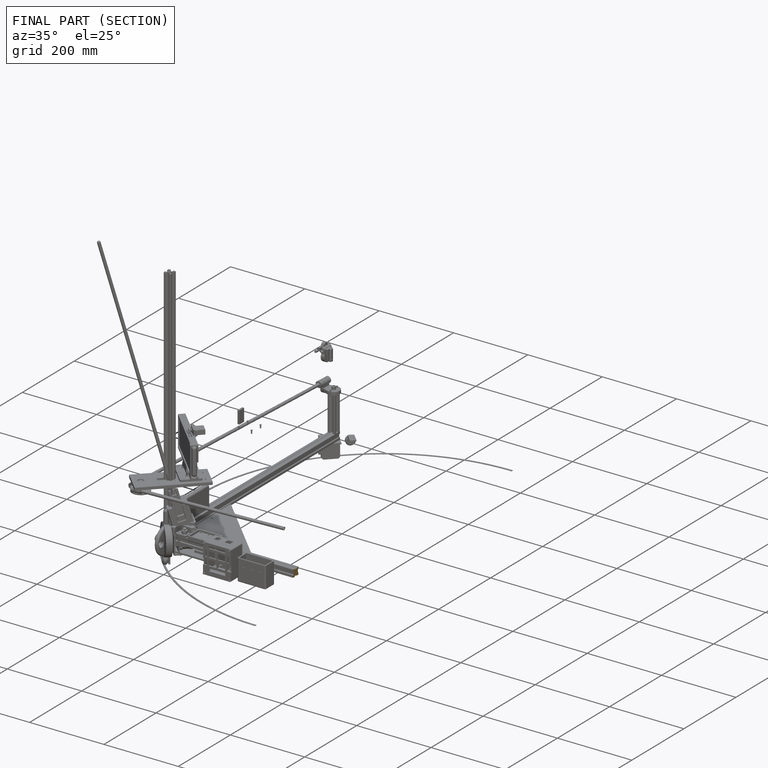
[diagram: finished part — half-section view (interior)]
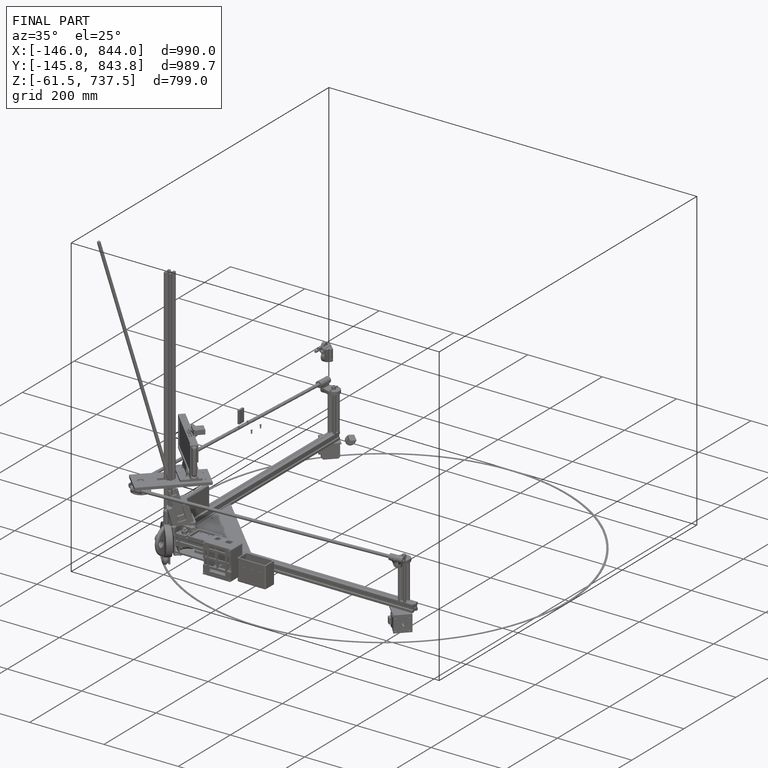
[diagram: finished part — iso view with bounding-box wireframe]
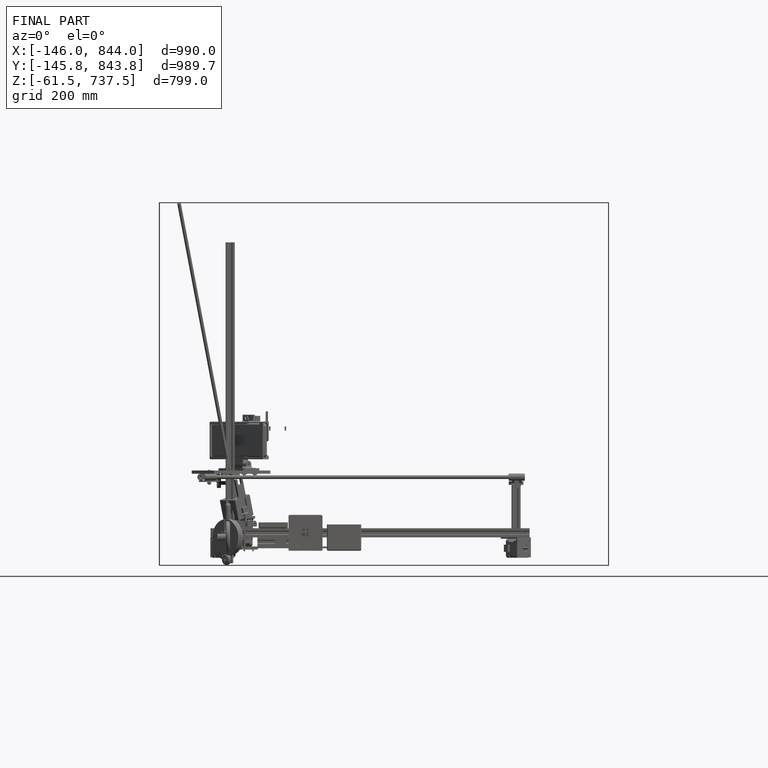
[diagram: finished part — front view with bounding-box wireframe]
